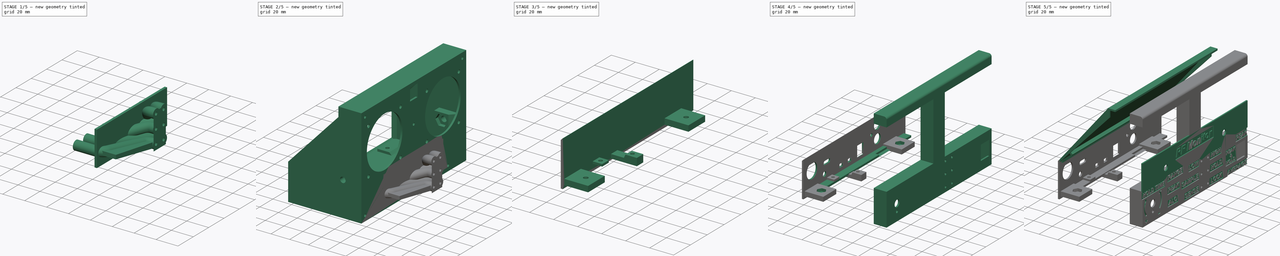
[diagram: build sequence overview — one tinted view per stage of 5, left to right]
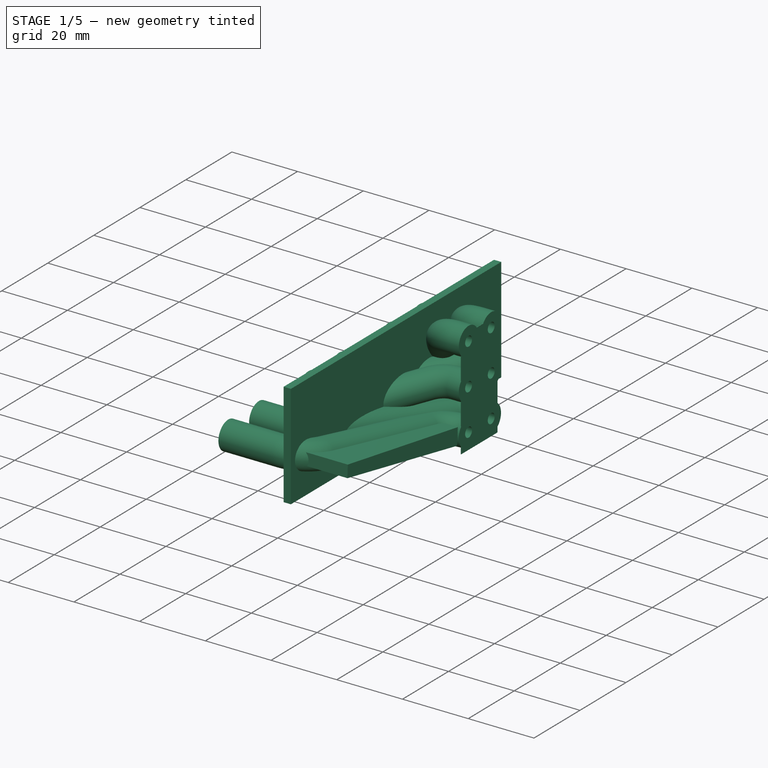
[diagram: stage 1 of 5 — iso view after this stage's code; geometry added in this stage tinted green]
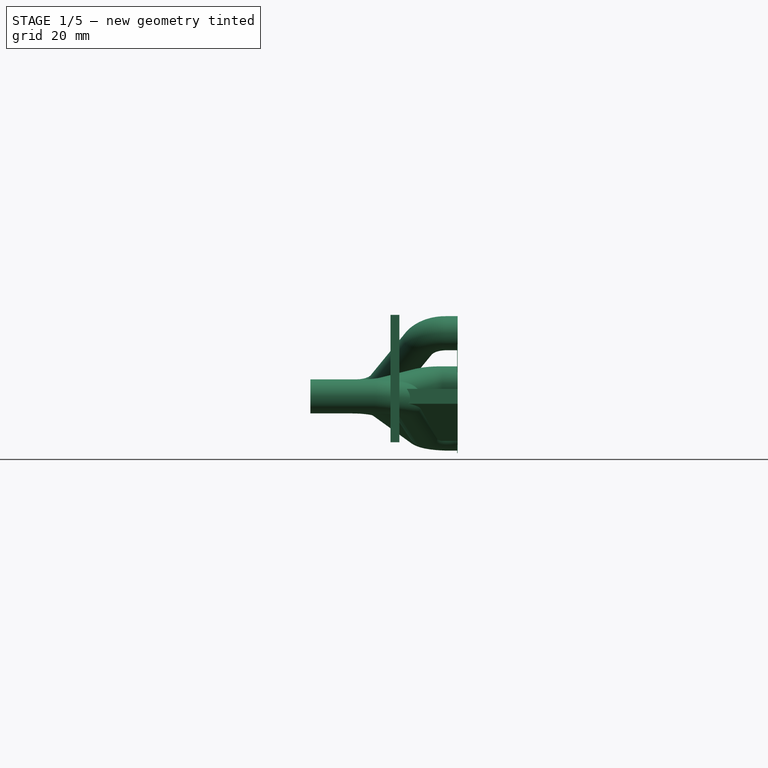
[diagram: stage 1 of 5 — front view after this stage's code; geometry added in this stage tinted green]
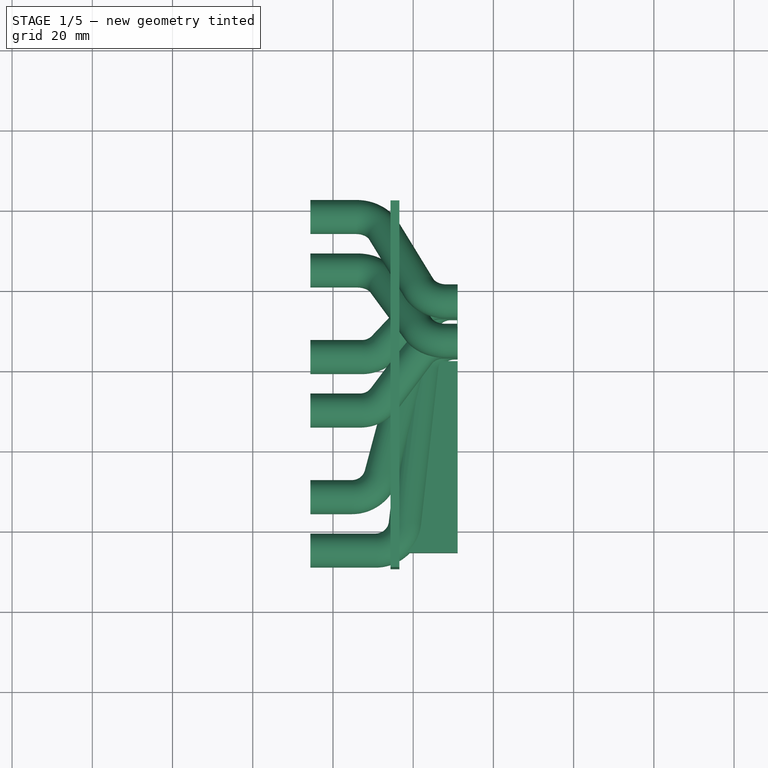
[diagram: stage 1 of 5 — top view after this stage's code; geometry added in this stage tinted green]
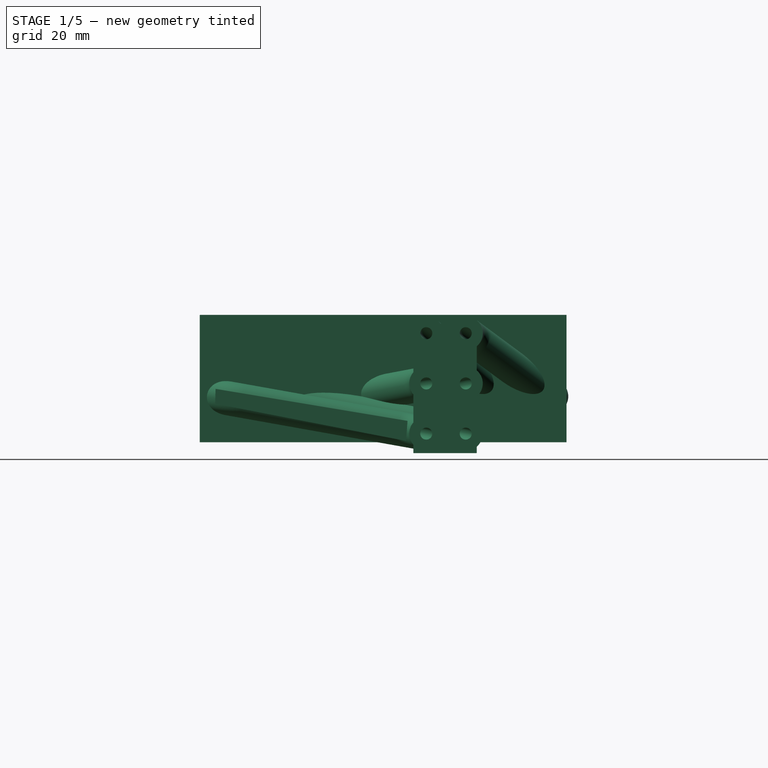
[diagram: stage 1 of 5 — right view after this stage's code; geometry added in this stage tinted green]
FCSTD DOCUMENT  (FreeCAD 1.0R39109 (Git))
Label: console
License: All rights reserved
LicenseURL: https://en.wikipedia.org/wiki/All_rights_reserved
objects: Sketcher::SketchObject×93, PartDesign::Plane×51, PartDesign::Pad×36, PartDesign::Pocket×32, Part::Part2DObjectPython×25, PartDesign::SubShapeBinder×21, PartDesign::Body×9, App::Part×6, PartDesign::AdditivePipe×6, PartDesign::SubtractivePipe×6, App::Link×3, Spreadsheet::Sheet×2, PartDesign::FeatureBase×2, Part::MultiFuse×2, PartDesign::Fillet×1, Part::Feature×1, PartDesign::ShapeBinder×1, Part::Cut×1, Part::MultiCommon×1, Measure::MeasureAngle×1, +1 more types
note: 545 computed .brp shape members not serialized (recipe doc carries the construction recipe); baked Part::Feature solids carry a one-line shape summary decoded from their .brp
EXTERNAL_REF file=console-placement.FCStd obj=Assembly
EXTERNAL_REF file=console-placement.FCStd obj=Part

FEATURE [PartDesign::Body] Body003
  AllowCompound = false
  Group = -> [Binder010,Binder011,DatumPlane018,DatumPlane019,Sketch048,Pad018,DatumPlane020,Sketch049,Sketch106,Pad032,Sketch107,Pad033,Sketch110,Pad019,Binder015,Sketch101,Pocket038,Pad036]
  Origin = -> Origin007
  Tip = -> Pad036
FEATURE [App::Part] Part003  label="lid"
  Group = -> [Body003]
  Origin = -> Origin006
FEATURE [App::Link] Link003  label="Assembly001"
  LinkedObject = -> <external console-placement.FCStd>#Assembly
FEATURE [PartDesign::SubShapeBinder] Binder016
  BindCopyOnChange = 0
  BindMode = 0
  ClaimChildren = false
  Context = -> Part004 [Body004.Binder016.]
  Fuse = false
  MakeFace = true
  OffsetFill = false
  OffsetIntersection = false
  OffsetJoinType = 0
  OffsetOpenResult = false
  PartialLoad = false
  Refine = true
  Relative = true
  Support = -> [Link003[PCB_Assembly.WP154A4SUREQBFZGC.,PCB_Assembly.WP154A4SUREQBFZGC001.,PCB_Assembly.WP154A4SUREQBFZGC002.,PCB_Assembly.WP154A4SUREQBFZGC003.,PCB_Assembly.WP154A4SUREQBFZGC004.,PCB_Assembly.WP154A4SUREQBFZGC005.]]
  _Version = 2
FEATURE [PartDesign::Plane] DatumPlane044  label="LED tips"
  AttachmentSupport = -> [Binder016]
  Length = 143.545
  MapMode = 5
  Placement = pos=(62.956,0,0) rot=(0.57735,0.57735,0.57735;2.0944rad)
  ResizeMode = 0
  Width = 66.0169
FEATURE [Sketcher::SketchObject] Sketch111  label="LED tip sketch"
  ArcFitTolerance = 1e-06
  AttachmentSupport = -> [DatumPlane044]
  ExternalGeometry = -> [Binder016]
  FullyConstrained = true
  MakeInternals = false
  MapMode = 5
  Placement = pos=(62.956,0,0) rot=(0.57735,0.57735,0.57735;2.0944rad)
  sketch-geometry (12):
    g0: Circle CenterX=15.113 CenterY=4.572 CenterZ=0 NormalX=0 NormalY=0 NormalZ=1 AngleXU=0 Radius=0.8
    g1: Circle CenterX=28.448 CenterY=4.572 CenterZ=0 NormalX=0 NormalY=0 NormalZ=1 AngleXU=0 Radius=0.8
    g2: Circle CenterX=50.038 CenterY=4.572 CenterZ=0 NormalX=0 NormalY=0 NormalZ=1 AngleXU=0 Radius=0.8
    g3: Circle CenterX=63.373 CenterY=4.572 CenterZ=0 NormalX=0 NormalY=0 NormalZ=1 AngleXU=0 Radius=0.8
    g4: Circle CenterX=84.963 CenterY=4.572 CenterZ=0 NormalX=0 NormalY=0 NormalZ=1 AngleXU=0 Radius=0.8
    g5: LineSegment StartX=84.963 StartY=4.572 StartZ=0 EndX=84.963 EndY=5.372 EndZ=0
    g6: LineSegment StartX=63.373 StartY=4.572 StartZ=0 EndX=63.373 EndY=5.372 EndZ=0
    g7: LineSegment StartX=50.038 StartY=4.572 StartZ=0 EndX=50.038 EndY=5.372 EndZ=0
    g8: LineSegment StartX=28.448 StartY=4.572 StartZ=0 EndX=28.448 EndY=5.372 EndZ=0
    g9: LineSegment StartX=15.113 StartY=4.572 StartZ=0 EndX=15.113 EndY=5.372 EndZ=0
    g10: Circle CenterX=98.298 CenterY=4.572 CenterZ=0 NormalX=0 NormalY=0 NormalZ=1 AngleXU=0 Radius=0.8
    g11: LineSegment StartX=98.298 StartY=4.572 StartZ=0 EndX=98.298 EndY=5.372 EndZ=0
  constraints (24):
    c: Coincident(g0,g-7)
    c: PointOnObject(g-7,g0)
    c: Coincident(g1,g-6)
    c: PointOnObject(g-6,g1)
    c: Coincident(g2,g-5)
    c: PointOnObject(g-5,g2)
    c: Coincident(g3,g-4)
    c: PointOnObject(g-4,g3)
    c: Coincident(g4,g-3)
    c: PointOnObject(g-3,g4)
    c: Coincident(g5,g4)
    c: Coincident(g5,g-3)
    c: Coincident(g6,g3)
    c: Coincident(g6,g-4)
    c: Coincident(g7,g2)
    c: Coincident(g7,g-5)
    c: Coincident(g8,g1)
    c: Coincident(g8,g-6)
    c: Coincident(g9,g0)
    c: Coincident(g9,g-7)
    c: Coincident(g10,g-8)
    c: PointOnObject(g-8,g10)
    c: Coincident(g11,g10)
    c: Coincident(g11,g-8)
FEATURE [PartDesign::Plane] DatumPlane045  label="inside sub break plane"
  AttachmentOffset = pos=(0,0,7.62) rot=(0,0,1;0rad)
  AttachmentSupport = -> [DatumPlane044]
  Length = 143.545
  MapMode = 2
  Placement = pos=(70.576,0,0) rot=(0.57735,0.57735,0.57735;2.0944rad)
  ResizeMode = 0
  Width = 66.0169
FEATURE [Sketcher::SketchObject] Sketch112
  ArcFitTolerance = 1e-06
  AttachmentSupport = -> [DatumPlane045]
  ExternalGeometry = -> [Sketch111]
  FullyConstrained = true
  MakeInternals = false
  MapMode = 5
  Placement = pos=(70.576,0,0) rot=(0.57735,0.57735,0.57735;2.0944rad)
  sketch-geometry (6):
    g0: LineSegment StartX=15.113 StartY=4.572 StartZ=0 EndX=15.113 EndY=5.372 EndZ=0
    g1: LineSegment StartX=28.448 StartY=4.572 StartZ=0 EndX=28.448 EndY=5.372 EndZ=0
    g2: LineSegment StartX=50.038 StartY=4.572 StartZ=0 EndX=50.038 EndY=5.372 EndZ=0
    g3: LineSegment StartX=63.373 StartY=4.572 StartZ=0 EndX=63.373 EndY=5.372 EndZ=0
    g4: LineSegment StartX=84.963 StartY=4.572 StartZ=0 EndX=84.963 EndY=5.372 EndZ=0
    g5: LineSegment StartX=98.298 StartY=4.572 StartZ=0 EndX=98.298 EndY=5.372 EndZ=0
  constraints (12):
    c: Coincident(g0,g-7)
    c: Coincident(g0,g-7)
    c: Coincident(g1,g-6)
    c: Coincident(g1,g-6)
    c: Coincident(g2,g-5)
    c: Coincident(g2,g-5)
    c: Coincident(g3,g-4)
    c: Coincident(g3,g-4)
    c: Coincident(g4,g-3)
    c: Coincident(g4,g-3)
    c: Coincident(g-8,g5)
    c: Coincident(g-8,g5)
FEATURE [PartDesign::Plane] DatumPlane046  label="LED initial pipe path"
  AttachmentSupport = -> [Sketch112,Sketch111]
  Length = 140.449
  MapMode = 13
  Placement = pos=(68.036,93.853,4.572) rot=(0,0,1;0rad)
  ResizeMode = 0
  Width = 151.907
FEATURE [Sketcher::SketchObject] Sketch003
  ArcFitTolerance = 1e-06
  AttachmentSupport = -> [DatumPlane046]
  ExternalGeometry = -> [Binder016,Sketch112]
  FullyConstrained = true
  MakeInternals = false
  MapMode = 5
  Placement = pos=(68.036,93.853,4.572) rot=(0,0,1;0rad)
  sketch-geometry (6):
    g0: LineSegment StartX=-5.08 StartY=4.445 StartZ=0 EndX=2.54 EndY=4.445 EndZ=0
    g1: LineSegment StartX=2.54 StartY=-8.89 StartZ=0 EndX=-5.08 EndY=-8.89 EndZ=0
    g2: LineSegment StartX=-5.08 StartY=-78.74 StartZ=0 EndX=2.54 EndY=-78.74 EndZ=0
    g3: LineSegment StartX=2.54 StartY=-65.405 StartZ=0 EndX=-5.08 EndY=-65.405 EndZ=0
    g4: LineSegment StartX=-5.08 StartY=-43.815 StartZ=0 EndX=2.54 EndY=-43.815 EndZ=0
    g5: LineSegment StartX=2.54 StartY=-30.48 StartZ=0 EndX=-5.08 EndY=-30.48 EndZ=0
  constraints (12):
    c: Coincident(g0,g-3)
    c: Coincident(g1,g-5)
    c: Coincident(g1,g-6)
    c: Coincident(g2,g-13)
    c: Coincident(g2,g-14)
    c: Coincident(g3,g-12)
    c: Coincident(g3,g-11)
    c: Coincident(g4,g-9)
    c: Coincident(g4,g-10)
    c: Coincident(g5,g-7)
    c: Coincident(g5,g-8)
    c: Coincident(g0,g-15)
FEATURE [PartDesign::SubShapeBinder] Binder002
  BindCopyOnChange = 0
  BindMode = 0
  ClaimChildren = false
  Context = -> Part004 [Body004.Binder002.]
  Fuse = false
  MakeFace = true
  OffsetFill = false
  OffsetIntersection = false
  OffsetJoinType = 0
  OffsetOpenResult = false
  PartialLoad = false
  Refine = true
  Relative = true
  Support = -> [Link003[PCB_Assembly.pcb_imported.]]
  _Version = 2
FEATURE [PartDesign::SubShapeBinder] Binder017
  BindCopyOnChange = 0
  BindMode = 0
  ClaimChildren = false
  Context = -> Part004 [Body004.Binder017.]
  Fuse = false
  MakeFace = true
  OffsetFill = false
  OffsetIntersection = false
  OffsetJoinType = 0
  OffsetOpenResult = false
  PartialLoad = false
  Refine = true
  Relative = true
  Support = -> [Link003[meter.,meter001.]]
  _Version = 2
FEATURE [PartDesign::SubShapeBinder] Binder018
  BindCopyOnChange = 0
  BindMode = 0
  ClaimChildren = false
  Context = -> Part004 [Body004.Binder018.]
  Fuse = false
  MakeFace = true
  OffsetFill = false
  OffsetIntersection = false
  OffsetJoinType = 0
  OffsetOpenResult = false
  PartialLoad = false
  Refine = true
  Relative = true
  Support = -> [Link003[_M_pot.]]
  _Version = 2
FEATURE [PartDesign::Plane] DatumPlane047  label="forward of front panel"
  AttachmentOffset = pos=(0,0,2.54) rot=(0,0,1;4.71239rad)
  AttachmentSupport = -> [Binder018]
  Length = 143.545
  MapMode = 11
  Placement = pos=(91.0899,-6.858,7.62) rot=(-0.57735,-0.57735,-0.57735;4.18879rad)
  ResizeMode = 0
  Width = 66.0169
FEATURE [Sketcher::SketchObject] Sketch113  label="FP LED positions"
  ArcFitTolerance = 1e-06
  AttachmentSupport = -> [DatumPlane047]
  ExternalGeometry = -> [Binder016,Binder002,Binder017]
  FullyConstrained = true
  MakeInternals = false
  MapMode = 5
  Placement = pos=(91.0899,-6.858,7.62) rot=(0.57735,0.57735,0.57735;2.0944rad)
  sketch-geometry (15):
    g0: Circle CenterX=74.008 CenterY=12.7 CenterZ=0 NormalX=0 NormalY=0 NormalZ=1 AngleXU=0 Radius=1
    g1: Circle CenterX=83.8403 CenterY=12.7 CenterZ=0 NormalX=0 NormalY=0 NormalZ=1 AngleXU=0 Radius=1
    g2: Circle CenterX=74.008 CenterY=0.18542 CenterZ=0 NormalX=0 NormalY=0 NormalZ=1 AngleXU=0 Radius=1
    g3: Circle CenterX=83.8403 CenterY=0.18542 CenterZ=0 NormalX=0 NormalY=0 NormalZ=1 AngleXU=0 Radius=1
    g4: Circle CenterX=74.008 CenterY=-12.3292 CenterZ=0 NormalX=0 NormalY=0 NormalZ=1 AngleXU=0 Radius=1
    g5: Circle CenterX=83.8403 CenterY=-12.3292 CenterZ=0 NormalX=0 NormalY=0 NormalZ=1 AngleXU=0 Radius=1
    g6: LineSegment [constr] StartX=74.008 StartY=12.7 StartZ=0 EndX=74.008 EndY=0.18542 EndZ=0
    g7: LineSegment [constr] StartX=74.008 StartY=0.18542 StartZ=0 EndX=74.008 EndY=-12.3292 EndZ=0
    g8: LineSegment StartX=83.8403 StartY=13.7 StartZ=0 EndX=83.8403 EndY=11.7 EndZ=0
    g9: LineSegment StartX=84.8403 StartY=12.7 StartZ=0 EndX=83.8403 EndY=12.7 EndZ=0
    g10: LineSegment StartX=74.008 StartY=12.7 StartZ=0 EndX=75.008 EndY=12.7 EndZ=0
    g11: LineSegment StartX=74.008 StartY=0.18542 StartZ=0 EndX=75.008 EndY=0.18542 EndZ=0
    g12: LineSegment StartX=83.8403 StartY=0.18542 StartZ=0 EndX=84.8403 EndY=0.18542 EndZ=0
    g13: LineSegment StartX=83.8403 StartY=-12.3292 StartZ=0 EndX=84.8403 EndY=-12.3292 EndZ=0
    g14: LineSegment StartX=74.008 StartY=-12.3292 StartZ=0 EndX=75.008 EndY=-12.3292 EndZ=0
  constraints (44):
    c: Equal(g0,g1)
    c: Equal(g0,g3)
    c: Equal(g0,g2)
    c: Equal(g0,g4)
    c: Equal(g0,g5)
    c: Diameter(g0) = 2
    c: Horizontal(g0,g1)
    c: Horizontal(g2,g3)
    c: Horizontal(g4,g5)
    c: Vertical(g1,g3)
    c: Vertical(g3,g5)
    c: DistanceX(g0,g1) = 9.83234
    c: Coincident(g6,g0)
    c: Coincident(g6,g2)
    c: Coincident(g7,g2)
    c: Coincident(g7,g4)
    c: Vertical(g6)
    c: Vertical(g7)
    c: Equal(g6,g7)
    c: DistanceY(g2,g0) = 12.5146
    c: DistanceX(g0,g-9) = 34.45
    c: DistanceY(g-9,g0) = 20.32
    c: PointOnObject(g8,g1)
    c: PointOnObject(g8,g1)
    c: PointOnObject(g9,g1)
    c: Horizontal(g9)
    c: Perpendicular(g1,g9)
    c: Perpendicular(g1,g8)
    c: Perpendicular(g9,g8) = 1.5708
    c: Coincident(g10,g0)
    c: PointOnObject(g10,g0)
    c: Horizontal(g10)
    c: Coincident(g11,g2)
    c: PointOnObject(g11,g2)
    c: Horizontal(g11)
    c: Coincident(g12,g3)
    c: PointOnObject(g12,g3)
    c: Coincident(g13,g5)
    c: PointOnObject(g13,g5)
    c: Horizontal(g13)
    c: Coincident(g14,g4)
    c: PointOnObject(g14,g4)
    c: Horizontal(g14)
    c: Horizontal(g12)
FEATURE [PartDesign::Plane] DatumPlane048  label="inside FP break plane"
  AttachmentOffset = pos=(0,0,-7.62) rot=(0,0,1;0rad)
  AttachmentSupport = -> [DatumPlane047]
  Length = 143.545
  MapMode = 2
  Placement = pos=(83.4699,-6.858,7.62) rot=(0.57735,0.57735,0.57735;2.0944rad)
  ResizeMode = 0
  Width = 66.0169
FEATURE [Sketcher::SketchObject] Sketch114
  ArcFitTolerance = 1e-06
  AttachmentSupport = -> [DatumPlane048]
  ExternalGeometry = -> [Sketch113]
  FullyConstrained = true
  MakeInternals = false
  MapMode = 5
  Placement = pos=(83.4699,-6.858,7.62) rot=(0.57735,0.57735,0.57735;2.0944rad)
  sketch-geometry (6):
    g0: LineSegment StartX=84.8403 StartY=-12.3292 StartZ=0 EndX=83.8403 EndY=-12.3292 EndZ=0
    g1: LineSegment StartX=75.008 StartY=-12.3292 StartZ=0 EndX=74.008 EndY=-12.3292 EndZ=0
    g2: LineSegment StartX=84.8403 StartY=0.18542 StartZ=0 EndX=83.8403 EndY=0.18542 EndZ=0
    g3: LineSegment StartX=75.008 StartY=0.18542 StartZ=0 EndX=74.008 EndY=0.18542 EndZ=0
    g4: LineSegment StartX=75.008 StartY=12.7 StartZ=0 EndX=74.008 EndY=12.7 EndZ=0
    g5: LineSegment StartX=83.8403 StartY=12.7 StartZ=0 EndX=84.8403 EndY=12.7 EndZ=0
  constraints (12):
    c: Coincident(g0,g-9)
    c: Coincident(g0,g-9)
    c: Coincident(g1,g-8)
    c: Coincident(g1,g-8)
    c: Coincident(g2,g-7)
    c: Coincident(g2,g-7)
    c: Coincident(g3,g-6)
    c: Coincident(g3,g-6)
    c: Coincident(g4,g-5)
    c: Coincident(g4,g-5)
    c: Symmetric(g-4,g-4,g5)
    c: Coincident(g5,g-3)
FEATURE [Spreadsheet::Sheet] Spreadsheet001
  Base_PipID = 3
  Base_PipeOD = 8.49884
  Base_PipeTurnRadius = 7.62
FEATURE [PartDesign::Plane] DatumPlane049  label="pipe 1 plane"
  AttachmentSupport = -> [Sketch003,Sketch113]
  Length = 140.9
  MapMode = 13
  Placement = pos=(74.874,91.1928,9.82133) rot=(1,0,0;2.5053rad)
  ResizeMode = 0
  Width = 157.127
FEATURE [Sketcher::SketchObject] Sketch115
  ArcFitTolerance = 1e-06
  AttachmentSupport = -> [DatumPlane049]
  ExternalGeometry = -> [Sketch113,Sketch003,Sketch114]
  FullyConstrained = true
  MakeInternals = false
  MapMode = 5
  Placement = pos=(74.874,91.1928,9.82133) rot=(1,0,0;2.5053rad)
  expr: Constraints[15] = <<Spreadsheet001>>.Base_PipeTurnRadius
  sketch-geometry (8):
    g0: LineSegment [constr] StartX=8.59592 StartY=17.668 StartZ=0 EndX=16.2159 EndY=17.668 EndZ=0
    g1: LineSegment StartX=-11.918 StartY=-8.83401 StartZ=0 EndX=-9.06464 EndY=-8.83401 EndZ=0
    g2: LineSegment StartX=-2.21257 StartY=-4.54771 StartZ=0 EndX=6.51053 EndY=13.3817 EndZ=0
    g3: LineSegment StartX=13.3626 StartY=17.668 StartZ=0 EndX=16.2159 EndY=17.668 EndZ=0
    g4: ArcOfCircle CenterX=13.3626 CenterY=10.048 CenterZ=0 NormalX=0 NormalY=0 NormalZ=1 AngleXU=0 Radius=7.62 StartAngle=1.5708 EndAngle=2.68878
    g5: GeomPoint [constr] X=8.59592 Y=17.668 Z=0
    g6: ArcOfCircle CenterX=-9.06464 CenterY=-1.21401 CenterZ=0 NormalX=0 NormalY=0 NormalZ=1 AngleXU=0 Radius=7.62 StartAngle=4.71239 EndAngle=5.83038
    g7: GeomPoint [constr] X=-4.29796 Y=-8.83401 Z=0
  constraints (16):
    c: Coincident(g0,g-7)
    c: Coincident(g0,g-5) = -1.5708
    c: Coincident(g1,g-6)
    c: Coincident(g7,g-6)
    c: Coincident(g5,g0)
    c: Coincident(g3,g0)
    c: PointOnObject(g5,g3)
    c: PointOnObject(g5,g2)
    c: Tangent(g3,g4) = 1.5708
    c: Tangent(g2,g4) = 1.5708
    c: PointOnObject(g7,g2)
    c: PointOnObject(g7,g1)
    c: Tangent(g2,g6) = -1.5708
    c: Tangent(g1,g6) = -1.5708
    c: Equal(g6,g4)
    c: Radius(g4) = 7.62
FEATURE [Sketcher::SketchObject] Sketch011
  ArcFitTolerance = 1e-06
  AttachmentSupport = -> [DatumPlane047]
  ExternalGeometry = -> [Sketch113]
  FullyConstrained = true
  MakeInternals = false
  MapMode = 5
  Placement = pos=(91.0899,-6.858,7.62) rot=(0.57735,0.57735,0.57735;2.0944rad)
  expr: Constraints[1] = <<Spreadsheet001>>.Base_PipID
  sketch-geometry (1):
    g0: Circle CenterX=83.8403 CenterY=12.7 CenterZ=0 NormalX=0 NormalY=0 NormalZ=1 AngleXU=0 Radius=1.5
  constraints (2):
    c: Coincident(g0,g-3)
    c: Diameter(g0) = 3
FEATURE [Sketcher::SketchObject] Sketch010
  ArcFitTolerance = 1e-06
  AttachmentSupport = -> [DatumPlane047]
  FullyConstrained = false
  MakeInternals = false
  MapMode = 5
  Placement = pos=(91.0899,-6.858,7.62) rot=(0.57735,0.57735,0.57735;2.0944rad)
  sketch-geometry (4):
    g0: LineSegment StartX=86.577 StartY=15.1029 StartZ=0 EndX=70.7785 EndY=15.1029 EndZ=0
    g1: LineSegment StartX=70.7785 StartY=15.1029 StartZ=0 EndX=70.7785 EndY=-17.1878 EndZ=0
    g2: LineSegment StartX=70.7785 StartY=-17.1878 StartZ=0 EndX=86.577 EndY=-17.1878 EndZ=0
    g3: LineSegment StartX=86.577 StartY=-17.1878 StartZ=0 EndX=86.577 EndY=15.1029 EndZ=0
  constraints (8):
    c: Coincident(g0,g1)
    c: Coincident(g1,g2)
    c: Coincident(g2,g3)
    c: Coincident(g3,g0)
    c: Horizontal(g0)
    c: Horizontal(g2)
    c: Vertical(g1)
    c: Vertical(g3)
FEATURE [Sketcher::SketchObject] Sketch006
  ArcFitTolerance = 1e-06
  AttachmentSupport = -> [DatumPlane047]
  ExternalGeometry = -> [Sketch113]
  FullyConstrained = true
  MakeInternals = false
  MapMode = 5
  Placement = pos=(91.0899,-6.858,7.62) rot=(0.57735,0.57735,0.57735;2.0944rad)
  expr: Constraints[1] = <<Spreadsheet001>>.Base_PipeOD
  sketch-geometry (1):
    g0: Circle CenterX=83.8403 CenterY=12.7 CenterZ=0 NormalX=0 NormalY=0 NormalZ=1 AngleXU=0 Radius=4.24942
  constraints (2):
    c: Coincident(g0,g-3)
    c: Diameter(g0) = 8.49884
FEATURE [PartDesign::Pad] Pad037
  Direction = (1,0,0)
  Length = 0.127
  Length2 = 10
  Placement = pos=(91.0899,-6.858,7.62) rot=(-0.57735,-0.57735,-0.57735;4.18879rad)
  Profile = -> Sketch010
  ReferenceAxis = -> Sketch010 [N_Axis]
  Refine = true
  Reversed = true
  Suppressed = false
  Type = 0
FEATURE [PartDesign::AdditivePipe] AdditivePipe
  AuxilleryCurvelinear = true
  AuxillerySpineTangent = false
  BaseFeature = -> Pad037
  Binormal = (0,0,0)
  Mode = 0
  Placement = pos=(91.0899,-6.858,7.62) rot=(-0.57735,-0.57735,-0.57735;4.18879rad)
  Profile = -> Sketch006
  Refine = true
  Spine = -> Sketch115
  SpineTangent = false
  Suppressed = false
  Transformation = 0
  Transition = 0
FEATURE [PartDesign::Plane] DatumPlane050  label="pipe 2 plane"
  AttachmentSupport = -> [Sketch003,Sketch113]
  Length = 140.559
  MapMode = 13
  Placement = pos=(74.874,79.0253,9.82133) rot=(0,0.35412,0.9352;3.14159rad)
  ResizeMode = 0
  Width = 153.165
FEATURE [Sketcher::SketchObject] Sketch008
  ArcFitTolerance = 1e-06
  AttachmentSupport = -> [DatumPlane050]
  ExternalGeometry = -> [Sketch003,Sketch114,Sketch113]
  FullyConstrained = true
  MakeInternals = false
  MapMode = 5
  Placement = pos=(74.874,79.0253,9.82133) rot=(0,0.35412,0.9352;3.14159rad)
  expr: Constraints[13] = <<Spreadsheet001>>.Base_PipeTurnRadius
  sketch-geometry (7):
    g0: LineSegment StartX=-16.2159 StartY=15.8507 StartZ=0 EndX=-13.1319 EndY=15.8507 EndZ=0
    g1: LineSegment StartX=-6.43352 StartY=11.8633 StartZ=0 EndX=2.13556 EndY=-3.93795 EndZ=0
    g2: LineSegment StartX=8.83398 StartY=-7.92537 StartZ=0 EndX=11.918 EndY=-7.92537 EndZ=0
    g3: ArcOfCircle CenterX=-13.1319 CenterY=8.23074 CenterZ=0 NormalX=0 NormalY=0 NormalZ=1 AngleXU=0 Radius=7.62 StartAngle=0.496915 EndAngle=1.5708
    g4: GeomPoint [constr] X=-8.59592 Y=15.8507 Z=0
    g5: ArcOfCircle CenterX=8.83398 CenterY=-0.305368 CenterZ=0 NormalX=0 NormalY=0 NormalZ=1 AngleXU=0 Radius=7.62 StartAngle=3.63851 EndAngle=4.71239
    g6: GeomPoint [constr] X=4.29796 Y=-7.92537 Z=0
  constraints (14):
    c: Coincident(g0,g-5)
    c: Coincident(g4,g-4)
    c: Coincident(g6,g-3)
    c: Coincident(g2,g-3)
    c: PointOnObject(g4,g0)
    c: PointOnObject(g4,g1)
    c: Tangent(g0,g3) = 1.5708
    c: Tangent(g1,g3) = 1.5708
    c: PointOnObject(g6,g1)
    c: PointOnObject(g6,g2)
    c: Tangent(g1,g5) = -1.5708
    c: Tangent(g2,g5) = -1.5708
    c: Equal(g5,g3)
    c: Radius(g3) = 7.62
FEATURE [Sketcher::SketchObject] Sketch116
  ArcFitTolerance = 1e-06
  AttachmentSupport = -> [DatumPlane047]
  ExternalGeometry = -> [Sketch113,Sketch006]
  FullyConstrained = true
  MakeInternals = false
  MapMode = 5
  Placement = pos=(91.0899,-6.858,7.62) rot=(0.57735,0.57735,0.57735;2.0944rad)
  sketch-geometry (1):
    g0: Circle CenterX=74.008 CenterY=12.7 CenterZ=0 NormalX=0 NormalY=0 NormalZ=1 AngleXU=0 Radius=4.24942
  constraints (2):
    c: Coincident(g0,g-3)
    c: Equal(g0,g-4)
FEATURE [PartDesign::AdditivePipe] AdditivePipe001  label="AdditivePipe2"
  AuxilleryCurvelinear = true
  AuxillerySpineTangent = false
  BaseFeature = -> AdditivePipe
  Binormal = (0,0,0)
  Mode = 0
  Placement = pos=(91.0899,-6.858,7.62) rot=(-0.57735,-0.57735,-0.57735;4.18879rad)
  Profile = -> Sketch116
  Refine = true
  Spine = -> Sketch008
  SpineTangent = false
  Suppressed = false
  Transformation = 0
  Transition = 0
FEATURE [PartDesign::ShapeBinder] ReferencePocket019
  Support = -> [Pocket019]
  TraceSupport = false
FEATURE [PartDesign::Plane] DatumPlane051
  AttachmentSupport = -> [ReferencePocket019]
  Length = 143.545
  MapMode = 5
  Placement = pos=(76.55,0,0) rot=(0.57735,0.57735,0.57735;2.0944rad)
  ResizeMode = 0
  Width = 66.0169
FEATURE [Sketcher::SketchObject] Sketch117
  ArcFitTolerance = 1e-06
  AttachmentSupport = -> [DatumPlane051]
  FullyConstrained = false
  MakeInternals = false
  MapMode = 5
  Placement = pos=(76.55,0,0) rot=(0.57735,0.57735,0.57735;2.0944rad)
  sketch-geometry (4):
    g0: LineSegment StartX=-92.3243 StartY=148.614 StartZ=0 EndX=-92.3243 EndY=-55.6635 EndZ=0
    g1: LineSegment StartX=-92.3243 StartY=-55.6635 StartZ=0 EndX=191.258 EndY=-55.6635 EndZ=0
    g2: LineSegment StartX=191.258 StartY=-55.6635 StartZ=0 EndX=191.258 EndY=148.614 EndZ=0
    g3: LineSegment StartX=191.258 StartY=148.614 StartZ=0 EndX=-92.3243 EndY=148.614 EndZ=0
  constraints (8):
    c: Coincident(g0,g1)
    c: Coincident(g1,g2)
    c: Coincident(g2,g3)
    c: Coincident(g3,g0)
    c: Vertical(g0)
    c: Vertical(g2)
    c: Horizontal(g1)
    c: Horizontal(g3)
FEATURE [Sketcher::SketchObject] Sketch120
  ArcFitTolerance = 1e-06
  AttachmentSupport = -> [DatumPlane047]
  ExternalGeometry = -> [Sketch113,AdditivePipe001]
  FullyConstrained = true
  MakeInternals = false
  MapMode = 5
  Placement = pos=(91.0899,-6.858,7.62) rot=(0.57735,0.57735,0.57735;2.0944rad)
  expr: Constraints[1] = <<Spreadsheet001>>.Base_PipID
  sketch-geometry (1):
    g0: Circle CenterX=74.008 CenterY=12.7 CenterZ=0 NormalX=0 NormalY=0 NormalZ=1 AngleXU=0 Radius=1.5
  constraints (2):
    c: Coincident(g0,g-5)
    c: Diameter(g0) = 3
FEATURE [PartDesign::Plane] DatumPlane054  label="pipe 3 plane"
  AttachmentSupport = -> [Sketch003,Sketch113]
  Length = 141.211
  MapMode = 13
  Placement = pos=(74.874,67.9094,5.64981) rot=(0,0.993206,0.116368;3.14159rad)
  ResizeMode = 0
  Width = 160.781
FEATURE [PartDesign::Plane] DatumPlane055  label="pipe 4 plane"
  AttachmentSupport = -> [Sketch003,Sketch113]
  Length = 141.115
  MapMode = 13
  Placement = pos=(74.874,55.742,5.64981) rot=(1,0,0;0.186755rad)
  ResizeMode = 0
  Width = 159.645
FEATURE [PartDesign::Plane] DatumPlane056  label="pipe 5 plane"
  AttachmentSupport = -> [Sketch003,Sketch113]
  Length = 141.12
  MapMode = 13
  Placement = pos=(74.874,44.6261,1.47828) rot=(1,0,0;2.95264rad)
  ResizeMode = 0
  Width = 159.706
FEATURE [PartDesign::Plane] DatumPlane057  label="pipe 6 plane"
  AttachmentSupport = -> [Sketch003,Sketch113]
  Length = 141.09
  MapMode = 13
  Placement = pos=(74.874,32.4587,1.47828) rot=(0,0.088136,0.996108;3.14159rad)
  ResizeMode = 0
  Width = 159.352
FEATURE [Sketcher::SketchObject] Sketch121  label="pipe 3 path"
  ArcFitTolerance = 1e-06
  AttachmentSupport = -> [DatumPlane054]
  ExternalGeometry = -> [Sketch003,Sketch113,Sketch114]
  FullyConstrained = true
  MakeInternals = false
  MapMode = 5
  Placement = pos=(74.874,67.9094,5.64981) rot=(0,0.993206,0.116368;3.14159rad)
  expr: Constraints[13] = <<Spreadsheet001>>.Base_PipeTurnRadius
  sketch-geometry (7):
    g0: LineSegment StartX=2.03459 StartY=-2.20726 StartZ=0 EndX=-6.33255 EndY=6.86998 EndZ=0
    g1: LineSegment StartX=-16.2159 StartY=9.32544 StartZ=0 EndX=-11.9354 EndY=9.32544 EndZ=0
    g2: LineSegment StartX=11.918 StartY=-4.66272 StartZ=0 EndX=7.63744 EndY=-4.66272 EndZ=0
    g3: ArcOfCircle CenterX=-11.9354 CenterY=1.70544 CenterZ=0 NormalX=0 NormalY=0 NormalZ=1 AngleXU=0 Radius=7.62 StartAngle=0.744714 EndAngle=1.5708
    g4: GeomPoint [constr] X=-8.59592 Y=9.32544 Z=0
    g5: ArcOfCircle CenterX=7.63744 CenterY=2.95728 CenterZ=0 NormalX=0 NormalY=0 NormalZ=1 AngleXU=0 Radius=7.62 StartAngle=3.88631 EndAngle=4.71239
    g6: GeomPoint [constr] X=4.29796 Y=-4.66272 Z=0
  constraints (14):
    c: Coincident(g1,g-4)
    c: Coincident(g4,g-5)
    c: Coincident(g6,g-3)
    c: Coincident(g2,g-3)
    c: PointOnObject(g4,g1)
    c: PointOnObject(g4,g0)
    c: Tangent(g1,g3) = 1.5708
    c: Tangent(g0,g3) = -1.5708
    c: PointOnObject(g6,g2)
    c: PointOnObject(g6,g0)
    c: Tangent(g2,g5) = 1.5708
    c: Tangent(g0,g5) = 1.5708
    c: Equal(g3,g5)
    c: Radius(g5) = 7.62
FEATURE [Sketcher::SketchObject] Sketch122  label="pipe 4 path"
  ArcFitTolerance = 1e-06
  AttachmentSupport = -> [DatumPlane055]
  ExternalGeometry = -> [Sketch003,Sketch113,Sketch114]
  FullyConstrained = true
  MakeInternals = false
  MapMode = 5
  Placement = pos=(74.874,55.742,5.64981) rot=(1,0,0;0.186755rad)
  expr: Constraints[15] = <<Spreadsheet001>>.Base_PipeTurnRadius
  sketch-geometry (9):
    g0: LineSegment StartX=-11.918 StartY=-5.80493 StartZ=0 EndX=-8.13741 EndY=-5.80493 EndZ=0
    g1: LineSegment StartX=16.2159 StartY=11.6099 StartZ=0 EndX=12.4354 EndY=11.6099 EndZ=0
    g2: LineSegment StartX=6.31126 StartY=8.52414 StartZ=0 EndX=-2.0133 EndY=-2.71921 EndZ=0
    g3: GeomPoint [constr] X=8.59592 Y=11.6099 Z=0
    g4: GeomPoint [constr] X=-4.29796 Y=-5.80493 Z=0
    g5: ArcOfCircle CenterX=12.4354 CenterY=3.98986 CenterZ=0 NormalX=0 NormalY=0 NormalZ=1 AngleXU=0 Radius=7.62 StartAngle=1.5708 EndAngle=2.50427
    g6: GeomPoint [constr] X=8.59592 Y=11.6099 Z=0
    g7: ArcOfCircle CenterX=-8.13741 CenterY=1.81507 CenterZ=0 NormalX=0 NormalY=0 NormalZ=1 AngleXU=0 Radius=7.62 StartAngle=4.71239 EndAngle=5.64586
    g8: GeomPoint [constr] X=-4.29796 Y=-5.80493 Z=0
  constraints (16):
    c: Coincident(g6,g3)
    c: Coincident(g6,g-5)
    c: Coincident(g8,g4)
    c: Coincident(g8,g-3)
    c: Coincident(g-3,g0)
    c: Coincident(g-4,g1)
    c: PointOnObject(g6,g1)
    c: PointOnObject(g6,g2)
    c: Tangent(g1,g5) = -1.5708
    c: Tangent(g2,g5) = -1.5708
    c: PointOnObject(g8,g0)
    c: PointOnObject(g8,g2)
    c: Tangent(g0,g7) = -1.5708
    c: Tangent(g2,g7) = 1.5708
    c: Equal(g7,g5)
    c: Radius(g5) = 7.62
FEATURE [Sketcher::SketchObject] Sketch123  label="pipe 5 path"
  ArcFitTolerance = 1e-06
  AttachmentSupport = -> [DatumPlane056]
  ExternalGeometry = -> [Sketch003,Sketch114,Sketch113]
  FullyConstrained = true
  MakeInternals = false
  MapMode = 5
  Placement = pos=(74.874,44.6261,1.47828) rot=(1,0,0;2.95264rad)
  expr: Constraints[13] = <<Spreadsheet001>>.Base_PipeTurnRadius
  sketch-geometry (7):
    g0: LineSegment StartX=-11.918 StartY=16.4713 StartZ=0 EndX=-10.1848 EndY=16.4713 EndZ=0
    g1: LineSegment StartX=-2.81164 StartY=10.7752 StartZ=0 EndX=7.1096 EndY=-27.2464 EndZ=0
    g2: LineSegment StartX=16.2159 StartY=-32.9425 StartZ=0 EndX=14.4827 EndY=-32.9425 EndZ=0
    g3: ArcOfCircle CenterX=-10.1848 CenterY=8.85125 CenterZ=0 NormalX=0 NormalY=0 NormalZ=1 AngleXU=0 Radius=7.62 StartAngle=0.255246 EndAngle=1.5708
    g4: GeomPoint [constr] X=-4.29796 Y=16.4713 Z=0
    g5: ArcOfCircle CenterX=14.4827 CenterY=-25.3225 CenterZ=0 NormalX=0 NormalY=0 NormalZ=1 AngleXU=0 Radius=7.62 StartAngle=3.39684 EndAngle=4.71239
    g6: GeomPoint [constr] X=8.59592 Y=-32.9425 Z=0
  constraints (14):
    c: Coincident(g0,g-3)
    c: Coincident(g4,g-3)
    c: Coincident(g2,g-5)
    c: Coincident(g6,g-4)
    c: PointOnObject(g4,g0)
    c: PointOnObject(g4,g1)
    c: Tangent(g0,g3) = 1.5708
    c: Tangent(g1,g3) = 1.5708
    c: PointOnObject(g6,g2)
    c: PointOnObject(g6,g1)
    c: Tangent(g2,g5) = 1.5708
    c: Tangent(g1,g5) = -1.5708
    c: Equal(g3,g5)
    c: Radius(g3) = 7.62
FEATURE [Sketcher::SketchObject] Sketch124  label="pipe 6 path"
  ArcFitTolerance = 1e-06
  AttachmentSupport = -> [DatumPlane057]
  ExternalGeometry = -> [Sketch003,Sketch113,Sketch114]
  FullyConstrained = true
  MakeInternals = false
  MapMode = 5
  Placement = pos=(74.874,32.4587,1.47828) rot=(0,0.088136,0.996108;3.14159rad)
  expr: Constraints[9] = <<Spreadsheet001>>.Base_PipeTurnRadius
  sketch-geometry (6):
    g0: LineSegment StartX=-15.3867 StartY=-35.2388 StartZ=0 EndX=-16.2159 EndY=-35.2388 EndZ=0
    g1: LineSegment StartX=-7.81702 StartY=-28.4928 StartZ=0 EndX=-3.27175 EndY=10.8734 EndZ=0
    g2: LineSegment StartX=11.918 StartY=17.6194 StartZ=0 EndX=4.29796 EndY=17.6194 EndZ=0
    g3: ArcOfCircle CenterX=4.29796 CenterY=9.99939 CenterZ=0 NormalX=0 NormalY=0 NormalZ=1 AngleXU=0 Radius=7.62 StartAngle=1.5708 EndAngle=3.02664
    g4: ArcOfCircle CenterX=-15.3867 CenterY=-27.6188 CenterZ=0 NormalX=0 NormalY=0 NormalZ=1 AngleXU=0 Radius=7.62 StartAngle=4.71239 EndAngle=6.16823
    g5: GeomPoint [constr] X=-8.59592 Y=-35.2388 Z=0
  constraints (12):
    c: Coincident(g5,g-5)
    c: Coincident(g0,g-4)
    c: Tangent(g2,g3) = -1.5708
    c: Tangent(g1,g3) = 1.5708
    c: PointOnObject(g5,g0)
    c: PointOnObject(g5,g1)
    c: Tangent(g0,g4) = 1.5708
    c: Tangent(g1,g4) = -1.5708
    c: Equal(g3,g4)
    c: Radius(g4) = 7.62
    c: Coincident(g-3,g2)
    c: Coincident(g2,g-3)
FEATURE [Sketcher::SketchObject] Sketch125  label="pipe 5 profile"
  ArcFitTolerance = 1e-06
  AttachmentSupport = -> [DatumPlane047]
  ExternalGeometry = -> [Sketch113]
  FullyConstrained = true
  MakeInternals = false
  MapMode = 5
  Placement = pos=(91.0899,-6.858,7.62) rot=(0.57735,0.57735,0.57735;2.0944rad)
  expr: Constraints[1] = <<Spreadsheet001>>.Base_PipeOD
  sketch-geometry (1):
    g0: Circle CenterX=83.8403 CenterY=-12.3292 CenterZ=0 NormalX=0 NormalY=0 NormalZ=1 AngleXU=0 Radius=4.24942
  constraints (2):
    c: Coincident(g0,g-3)
    c: Diameter(g0) = 8.49884
FEATURE [Sketcher::SketchObject] Sketch126  label="pipe 6 profile"
  ArcFitTolerance = 1e-06
  AttachmentSupport = -> [DatumPlane047]
  ExternalGeometry = -> [Sketch125,Sketch113]
  FullyConstrained = true
  MakeInternals = false
  MapMode = 5
  Placement = pos=(91.0899,-6.858,7.62) rot=(0.57735,0.57735,0.57735;2.0944rad)
  sketch-geometry (1):
    g0: Circle CenterX=74.008 CenterY=-12.3292 CenterZ=0 NormalX=0 NormalY=0 NormalZ=1 AngleXU=0 Radius=4.24942
  constraints (2):
    c: Equal(g0,g-3)
    c: Coincident(g-4,g0)
FEATURE [Sketcher::SketchObject] Sketch127  label="pipe 3 profile"
  ArcFitTolerance = 1e-06
  AttachmentSupport = -> [DatumPlane047]
  ExternalGeometry = -> [Sketch113,AdditivePipe001]
  FullyConstrained = true
  MakeInternals = false
  MapMode = 5
  Placement = pos=(91.0899,-6.858,7.62) rot=(0.57735,0.57735,0.57735;2.0944rad)
  expr: Constraints[1] = <<Spreadsheet001>>.Base_PipeOD
  sketch-geometry (1):
    g0: Circle CenterX=83.8403 CenterY=0.18542 CenterZ=0 NormalX=0 NormalY=0 NormalZ=1 AngleXU=0 Radius=4.24942
  constraints (2):
    c: Coincident(g-3,g0)
    c: Diameter(g0) = 8.49884
FEATURE [Sketcher::SketchObject] Sketch128  label="pipe 4 profile"
  ArcFitTolerance = 1e-06
  AttachmentSupport = -> [DatumPlane047]
  ExternalGeometry = -> [Sketch113,AdditivePipe001]
  FullyConstrained = true
  MakeInternals = false
  MapMode = 5
  Placement = pos=(91.0899,-6.858,7.62) rot=(0.57735,0.57735,0.57735;2.0944rad)
  expr: Constraints[1] = <<Spreadsheet001>>.Base_PipeOD
  sketch-geometry (1):
    g0: Circle CenterX=74.008 CenterY=0.18542 CenterZ=0 NormalX=0 NormalY=0 NormalZ=1 AngleXU=0 Radius=4.24942
  constraints (2):
    c: Coincident(g-3,g0)
    c: Diameter(g0) = 8.49884
FEATURE [Sketcher::SketchObject] Sketch129  label="pipe 5 nprofile"
  ArcFitTolerance = 1e-06
  AttachmentSupport = -> [DatumPlane047]
  ExternalGeometry = -> [Sketch113]
  FullyConstrained = true
  MakeInternals = false
  MapMode = 5
  Placement = pos=(91.0899,-6.858,7.62) rot=(0.57735,0.57735,0.57735;2.0944rad)
  expr: Constraints[1] = <<Spreadsheet001>>.Base_PipID
  sketch-geometry (1):
    g0: Circle CenterX=83.8403 CenterY=-12.3292 CenterZ=0 NormalX=0 NormalY=0 NormalZ=1 AngleXU=0 Radius=1.5
  constraints (2):
    c: Coincident(g0,g-3)
    c: Diameter(g0) = 3
FEATURE [Sketcher::SketchObject] Sketch130  label="pipe 6 nprofile"
  ArcFitTolerance = 1e-06
  AttachmentSupport = -> [DatumPlane047]
  ExternalGeometry = -> [Sketch126]
  FullyConstrained = true
  MakeInternals = false
  MapMode = 5
  Placement = pos=(91.0899,-6.858,7.62) rot=(0.57735,0.57735,0.57735;2.0944rad)
  expr: Constraints[0] = <<Spreadsheet001>>.Base_PipID
  sketch-geometry (1):
    g0: Circle CenterX=74.008 CenterY=-12.3292 CenterZ=0 NormalX=0 NormalY=0 NormalZ=1 AngleXU=0 Radius=1.5
  constraints (2):
    c: Diameter(g0) = 3
    c: Coincident(g-3,g0)
FEATURE [Sketcher::SketchObject] Sketch131  label="pipe 3 nprofile"
  ArcFitTolerance = 1e-06
  AttachmentSupport = -> [DatumPlane047]
  ExternalGeometry = -> [Sketch127]
  FullyConstrained = true
  MakeInternals = false
  MapMode = 5
  Placement = pos=(91.0899,-6.858,7.62) rot=(0.57735,0.57735,0.57735;2.0944rad)
  expr: Constraints[1] = <<Spreadsheet001>>.Base_PipID
  sketch-geometry (1):
    g0: Circle CenterX=83.8403 CenterY=0.18542 CenterZ=0 NormalX=0 NormalY=0 NormalZ=1 AngleXU=0 Radius=1.5
  constraints (2):
    c: Coincident(g-3,g0)
    c: Diameter(g0) = 3
FEATURE [Sketcher::SketchObject] Sketch132  label="pipe 4 nprofile"
  ArcFitTolerance = 1e-06
  AttachmentSupport = -> [DatumPlane047]
  ExternalGeometry = -> [Sketch128]
  FullyConstrained = true
  MakeInternals = false
  MapMode = 5
  Placement = pos=(91.0899,-6.858,7.62) rot=(0.57735,0.57735,0.57735;2.0944rad)
  expr: Constraints[1] = <<Spreadsheet001>>.Base_PipID
  sketch-geometry (1):
    g0: Circle CenterX=74.008 CenterY=0.18542 CenterZ=0 NormalX=0 NormalY=0 NormalZ=1 AngleXU=0 Radius=1.5
  constraints (2):
    c: Coincident(g-3,g0)
    c: Diameter(g0) = 3
FEATURE [PartDesign::AdditivePipe] AdditivePipe002  label="AdditivePipe3"
  AuxilleryCurvelinear = true
  AuxillerySpineTangent = false
  BaseFeature = -> AdditivePipe001
  Binormal = (0,0,0)
  Mode = 0
  Placement = pos=(91.0899,-6.858,7.62) rot=(-0.57735,-0.57735,-0.57735;4.18879rad)
  Profile = -> Sketch127
  Refine = true
  Spine = -> Sketch121
  SpineTangent = false
  Suppressed = false
  Transformation = 0
  Transition = 0
FEATURE [PartDesign::AdditivePipe] AdditivePipe003  label="AdditivePipe4"
  AuxilleryCurvelinear = true
  AuxillerySpineTangent = false
  BaseFeature = -> AdditivePipe002
  Binormal = (0,0,0)
  Mode = 0
  Placement = pos=(91.0899,-6.858,7.62) rot=(-0.57735,-0.57735,-0.57735;4.18879rad)
  Profile = -> Sketch128
  Refine = true
  Spine = -> Sketch122
  SpineTangent = false
  Suppressed = false
  Transformation = 0
  Transition = 0
FEATURE [PartDesign::AdditivePipe] AdditivePipe004  label="AdditivePipe5"
  AuxilleryCurvelinear = true
  AuxillerySpineTangent = false
  BaseFeature = -> AdditivePipe003
  Binormal = (0,0,0)
  Mode = 0
  Placement = pos=(91.0899,-6.858,7.62) rot=(-0.57735,-0.57735,-0.57735;4.18879rad)
  Profile = -> Sketch125
  Refine = true
  Spine = -> Sketch123
  SpineTangent = false
  Suppressed = false
  Transformation = 0
  Transition = 0
FEATURE [PartDesign::AdditivePipe] AdditivePipe005  label="AdditivePipe6"
  AuxilleryCurvelinear = true
  AuxillerySpineTangent = false
  BaseFeature = -> AdditivePipe004
  Binormal = (0,0,0)
  Mode = 0
  Placement = pos=(91.0899,-6.858,7.62) rot=(-0.57735,-0.57735,-0.57735;4.18879rad)
  Profile = -> Sketch126
  Refine = true
  Spine = -> Sketch124
  SpineTangent = false
  Suppressed = false
  Transformation = 0
  Transition = 0
FEATURE [PartDesign::Body] Body007  label="front clipper"
  AllowCompound = false
  Group = -> [Binder019,DatumPlane058,Sketch133,Pad038]
  Origin = -> Origin013
  Tip = -> Pad038
FEATURE [PartDesign::Plane] DatumPlane059  label="sub panel front001"
  AttachmentSupport = -> [Binder017]
  Length = 143.545
  MapMode = 5
  Placement = pos=(76.55,0,0) rot=(0.57735,-0.57735,-0.57735;2.0944rad)
  ResizeMode = 0
  Width = 66.0169
FEATURE [Sketcher::SketchObject] Sketch135
  ArcFitTolerance = 1e-06
  AttachmentSupport = -> [DatumPlane059]
  ExternalGeometry = -> [Sketch111]
  FullyConstrained = true
  MakeInternals = false
  MapMode = 5
  Placement = pos=(76.55,0,0) rot=(0.57735,-0.57735,-0.57735;2.0944rad)
  sketch-geometry (4):
    g0: LineSegment StartX=-10.668 StartY=-6.858 StartZ=0 EndX=-10.668 EndY=24.892 EndZ=0
    g1: LineSegment StartX=-10.668 StartY=24.892 StartZ=0 EndX=-102.108 EndY=24.892 EndZ=0
    g2: LineSegment StartX=-102.108 StartY=24.892 StartZ=0 EndX=-102.108 EndY=-6.858 EndZ=0
    g3: LineSegment StartX=-102.108 StartY=-6.858 StartZ=0 EndX=-10.668 EndY=-6.858 EndZ=0
  constraints (12):
    c: Coincident(g0,g1)
    c: Coincident(g1,g2)
    c: Coincident(g2,g3)
    c: Coincident(g3,g0)
    c: Vertical(g0)
    c: Vertical(g2)
    c: Horizontal(g1)
    c: Horizontal(g3)
    c: DistanceX(g1,g1) = 91.44
    c: DistanceY(g0,g0) = 31.75
    c: DistanceX(g-3,g1) = -3.81
    c: DistanceY(g-3,g1) = 20.32
FEATURE [PartDesign::Pad] Pad039  label="sub panel front hole cover"
  BaseFeature = -> AdditivePipe005
  Direction = (-1,0,0)
  Length = 2.2
  Length2 = 10
  Placement = pos=(91.0899,-6.858,7.62) rot=(-0.57735,-0.57735,-0.57735;4.18879rad)
  Profile = -> Sketch135
  ReferenceAxis = -> Sketch135 [N_Axis]
  Refine = true
  Suppressed = false
  Type = 0
FEATURE [PartDesign::Body] Body001  label="front panel body"
  AllowCompound = false
  Group = -> [Binder021,Binder004,Binder005,DatumPlane002,Binder006,Sketch004,Pad002,Sketch005,DatumPlane040,Pad003,Binder007,Sketch026,DatumPlane043,Pad005,Fillet,Sketch023,Pocket007,Sketch024,Pocket008,Sketch066,Pocket025,Sketch009,Pocket004,DatumPlane003,Sketch064,Sketch136,Pocket023,Pocket043,Sketch065,Pocket024,Sketch022,DatumPlane024,Sketch067,Pocket026,Sketch070,Pad022,Pocket006,Sketch095,Pocket034,+20 more]
  Origin = -> Origin003
  Tip = -> Pad042
FEATURE [Sketcher::SketchObject] Sketch140
  ArcFitTolerance = 1e-06
  AttachmentSupport = -> [DatumPlane047]
  FullyConstrained = false
  MakeInternals = false
  MapMode = 5
  Placement = pos=(91.0899,-6.858,7.62) rot=(0.57735,0.57735,0.57735;2.0944rad)
  sketch-geometry (4):
    g0: LineSegment StartX=21.4807 StartY=-1.17858 StartZ=0 EndX=21.3616 EndY=-4.86818 EndZ=0
    g1: LineSegment StartX=21.3616 StartY=-4.86818 StartZ=0 EndX=68.9694 EndY=-14.1517 EndZ=0
    g2: LineSegment StartX=68.9694 StartY=-14.1517 StartZ=0 EndX=69.3264 EndY=-9.15287 EndZ=0
    g3: LineSegment StartX=69.3264 StartY=-9.15287 StartZ=0 EndX=21.4807 EndY=-1.17858 EndZ=0
  constraints (4):
    c: Coincident(g0,g1)
    c: Coincident(g1,g2)
    c: Coincident(g2,g3)
    c: Coincident(g3,g0)
FEATURE [PartDesign::Pad] Pad043
  BaseFeature = -> Pad039
  Direction = (1,0,0)
  Length = 9.99998
  Length2 = 10
  Placement = pos=(91.0899,-6.858,7.62) rot=(-0.57735,-0.57735,-0.57735;4.18879rad)
  Profile = -> Sketch140
  ReferenceAxis = -> Sketch140 [N_Axis]
  Refine = true
  Reversed = true
  Suppressed = false
  Type = 2
FEATURE [PartDesign::SubtractivePipe] SubtractivePipe
  AuxilleryCurvelinear = true
  AuxillerySpineTangent = false
  BaseFeature = -> Pad043
  Binormal = (0,0,0)
  Mode = 0
  Placement = pos=(91.0899,-6.858,7.62) rot=(-0.57735,-0.57735,-0.57735;4.18879rad)
  Profile = -> Sketch011
  Refine = true
  Spine = -> Sketch115
  SpineTangent = false
  Suppressed = false
  Transformation = 0
  Transition = 0
FEATURE [PartDesign::SubtractivePipe] SubtractivePipe001  label="SubtractivePipe2"
  AuxilleryCurvelinear = true
  AuxillerySpineTangent = false
  BaseFeature = -> SubtractivePipe
  Binormal = (0,0,0)
  Mode = 0
  Placement = pos=(91.0899,-6.858,7.62) rot=(-0.57735,-0.57735,-0.57735;4.18879rad)
  Profile = -> Sketch120
  Refine = true
  Spine = -> Sketch008
  SpineTangent = false
  Suppressed = false
  Transformation = 0
  Transition = 0
FEATURE [PartDesign::SubtractivePipe] SubtractivePipe002  label="SubtractivePipe3"
  AuxilleryCurvelinear = true
  AuxillerySpineTangent = false
  BaseFeature = -> SubtractivePipe001
  Binormal = (0,0,0)
  Mode = 0
  Placement = pos=(91.0899,-6.858,7.62) rot=(-0.57735,-0.57735,-0.57735;4.18879rad)
  Profile = -> Sketch131
  Refine = true
  Spine = -> Sketch121
  SpineTangent = false
  Suppressed = false
  Transformation = 0
  Transition = 0
FEATURE [PartDesign::SubtractivePipe] SubtractivePipe003  label="SubtractivePipe4"
  AuxilleryCurvelinear = true
  AuxillerySpineTangent = false
  BaseFeature = -> SubtractivePipe002
  Binormal = (0,0,0)
  Mode = 0
  Placement = pos=(91.0899,-6.858,7.62) rot=(-0.57735,-0.57735,-0.57735;4.18879rad)
  Profile = -> Sketch132
  Refine = true
  Spine = -> Sketch122
  SpineTangent = false
  Suppressed = false
  Transformation = 0
  Transition = 0
FEATURE [PartDesign::SubtractivePipe] SubtractivePipe004  label="SubtractivePipe5"
  AuxilleryCurvelinear = true
  AuxillerySpineTangent = false
  BaseFeature = -> SubtractivePipe003
  Binormal = (0,0,0)
  Mode = 0
  Placement = pos=(91.0899,-6.858,7.62) rot=(-0.57735,-0.57735,-0.57735;4.18879rad)
  Profile = -> Sketch129
  Refine = true
  Spine = -> Sketch123
  SpineTangent = false
  Suppressed = false
  Transformation = 0
  Transition = 0
FEATURE [PartDesign::SubtractivePipe] SubtractivePipe005  label="SubtractivePipe6"
  AuxilleryCurvelinear = true
  AuxillerySpineTangent = false
  BaseFeature = -> SubtractivePipe004
  Binormal = (0,0,0)
  Mode = 0
  Placement = pos=(91.0899,-6.858,7.62) rot=(-0.57735,-0.57735,-0.57735;4.18879rad)
  Profile = -> Sketch130
  Refine = true
  Spine = -> Sketch124
  SpineTangent = false
  Suppressed = false
  Transformation = 0
  Transition = 0
FEATURE [Sketcher::SketchObject] Sketch141
  ArcFitTolerance = 1e-06
  AttachmentSupport = -> [DatumPlane044]
  ExternalGeometry = -> [SubtractivePipe005]
  FullyConstrained = true
  MakeInternals = false
  MapMode = 5
  Placement = pos=(62.956,0,0) rot=(0.57735,0.57735,0.57735;2.0944rad)
  sketch-geometry (12):
    g0: Circle CenterX=50.038 CenterY=4.572 CenterZ=0 NormalX=0 NormalY=0 NormalZ=1 AngleXU=0 Radius=1.3
    g1: Circle CenterX=50.038 CenterY=4.572 CenterZ=0 NormalX=0 NormalY=0 NormalZ=1 AngleXU=0 Radius=2
    g2: Circle CenterX=84.963 CenterY=4.572 CenterZ=0 NormalX=0 NormalY=0 NormalZ=1 AngleXU=0 Radius=1.3
    g3: Circle CenterX=84.963 CenterY=4.572 CenterZ=0 NormalX=0 NormalY=0 NormalZ=1 AngleXU=0 Radius=2
    g4: Circle CenterX=98.298 CenterY=4.572 CenterZ=0 NormalX=0 NormalY=0 NormalZ=1 AngleXU=0 Radius=1.3
    g5: Circle CenterX=98.298 CenterY=4.572 CenterZ=0 NormalX=0 NormalY=0 NormalZ=1 AngleXU=0 Radius=2
    g6: Circle CenterX=28.448 CenterY=4.572 CenterZ=0 NormalX=0 NormalY=0 NormalZ=1 AngleXU=0 Radius=1.3
    g7: Circle CenterX=28.448 CenterY=4.572 CenterZ=0 NormalX=0 NormalY=0 NormalZ=1 AngleXU=0 Radius=2
    g8: Circle CenterX=63.373 CenterY=4.572 CenterZ=0 NormalX=0 NormalY=0 NormalZ=1 AngleXU=0 Radius=1.3
    g9: Circle CenterX=63.373 CenterY=4.572 CenterZ=0 NormalX=0 NormalY=0 NormalZ=1 AngleXU=0 Radius=2
    g10: Circle CenterX=15.113 CenterY=4.572 CenterZ=0 NormalX=0 NormalY=0 NormalZ=1 AngleXU=0 Radius=1.3
    g11: Circle CenterX=15.113 CenterY=4.572 CenterZ=0 NormalX=0 NormalY=0 NormalZ=1 AngleXU=0 Radius=2
  constraints (24):
    c: Coincident(g1,g0)
    c: Coincident(g3,g2)
    c: Coincident(g5,g4)
    c: Coincident(g7,g6)
    c: Coincident(g9,g8)
    c: Coincident(g11,g10)
    c: Equal(g11,g9)
    c: Equal(g9,g7)
    c: Equal(g7,g5)
    c: Equal(g5,g3)
    c: Equal(g3,g1)
    c: Equal(g0,g2)
    c: Equal(g2,g4)
    c: Equal(g4,g6)
    c: Equal(g6,g8)
    c: Equal(g8,g10)
    c: Diameter(g10) = 2.6
    c: Diameter(g11) = 4
    c: Coincident(g10,g-3)
    c: Coincident(g4,g-8)
    c: Coincident(g2,g-7)
    c: Coincident(g8,g-6)
    c: Coincident(g0,g-5)
    c: Coincident(g6,g-4)
FEATURE [PartDesign::Pad] Pad044
  BaseFeature = -> SubtractivePipe005
  Direction = (1,0,0)
  Length = 4.064
  Length2 = 10
  Placement = pos=(91.0899,-6.858,7.62) rot=(-0.57735,-0.57735,-0.57735;4.18879rad)
  Profile = -> Sketch141
  ReferenceAxis = -> Sketch141 [N_Axis]
  Refine = true
  Suppressed = false
  TaperAngle = 25
  Type = 0
FEATURE [Sketcher::SketchObject] Sketch142
  ArcFitTolerance = 1e-06
  AttachmentSupport = -> [DatumPlane044]
  ExternalGeometry = -> [Pad044]
  FullyConstrained = true
  MakeInternals = false
  MapMode = 5
  Placement = pos=(62.956,0,0) rot=(0.57735,0.57735,0.57735;2.0944rad)
  sketch-geometry (12):
    g0: Circle CenterX=15.113 CenterY=4.572 CenterZ=0 NormalX=0 NormalY=0 NormalZ=1 AngleXU=0 Radius=4.24942
    g1: Circle CenterX=63.373 CenterY=4.572 CenterZ=0 NormalX=0 NormalY=0 NormalZ=1 AngleXU=0 Radius=4.24942
    g2: Circle CenterX=50.038 CenterY=4.572 CenterZ=0 NormalX=0 NormalY=0 NormalZ=1 AngleXU=0 Radius=4.24942
    g3: Circle CenterX=28.448 CenterY=4.572 CenterZ=0 NormalX=0 NormalY=0 NormalZ=1 AngleXU=0 Radius=4.24942
    g4: Circle CenterX=98.298 CenterY=4.572 CenterZ=0 NormalX=0 NormalY=0 NormalZ=1 AngleXU=0 Radius=4.24942
    g5: Circle CenterX=15.113 CenterY=4.572 CenterZ=0 NormalX=0 NormalY=0 NormalZ=1 AngleXU=0 Radius=3.5
    g6: Circle CenterX=63.373 CenterY=4.572 CenterZ=0 NormalX=0 NormalY=0 NormalZ=1 AngleXU=0 Radius=3.5
    g7: Circle CenterX=50.038 CenterY=4.572 CenterZ=0 NormalX=0 NormalY=0 NormalZ=1 AngleXU=0 Radius=3.5
    g8: Circle CenterX=28.448 CenterY=4.572 CenterZ=0 NormalX=0 NormalY=0 NormalZ=1 AngleXU=0 Radius=3.5
    g9: Circle CenterX=98.298 CenterY=4.572 CenterZ=0 NormalX=0 NormalY=0 NormalZ=1 AngleXU=0 Radius=3.5
    g10: Circle CenterX=84.963 CenterY=4.572 CenterZ=0 NormalX=0 NormalY=0 NormalZ=1 AngleXU=0 Radius=3.5
    g11: Circle CenterX=84.963 CenterY=4.572 CenterZ=0 NormalX=0 NormalY=0 NormalZ=1 AngleXU=0 Radius=4.24942
  constraints (24):
    c: Coincident(g5,g0)
    c: Coincident(g6,g1)
    c: Coincident(g7,g2)
    c: Coincident(g8,g3)
    c: Coincident(g9,g4)
    c: Equal(g5,g6)
    c: Equal(g6,g7)
    c: Equal(g7,g8)
    c: Diameter(g9) = 7
    c: Coincident(g0,g-4)
    c: Coincident(g3,g-3)
    c: Coincident(g2,g-8)
    c: Coincident(g1,g-7)
    c: Coincident(g4,g-5)
    c: Coincident(g10,g-6)
    c: Coincident(g11,g10)
    c: Equal(g10,g9)
    c: Equal(g0,g3)
    c: Equal(g3,g2)
    c: Equal(g2,g1)
    c: Equal(g1,g11)
    c: Equal(g11,g4)
    c: Equal(g-5,g4)
    c: Equal(g9,g6)
FEATURE [PartDesign::Pad] Pad045
  BaseFeature = -> Pad044
  Direction = (1,0,0)
  Length = 10
  Length2 = 10
  Placement = pos=(91.0899,-6.858,7.62) rot=(-0.57735,-0.57735,-0.57735;4.18879rad)
  Profile = -> Sketch142
  ReferenceAxis = -> Sketch142 [N_Axis]
  Refine = true
  Suppressed = false
  Type = 3
  UpToFace = -> Binder016 [Face443]
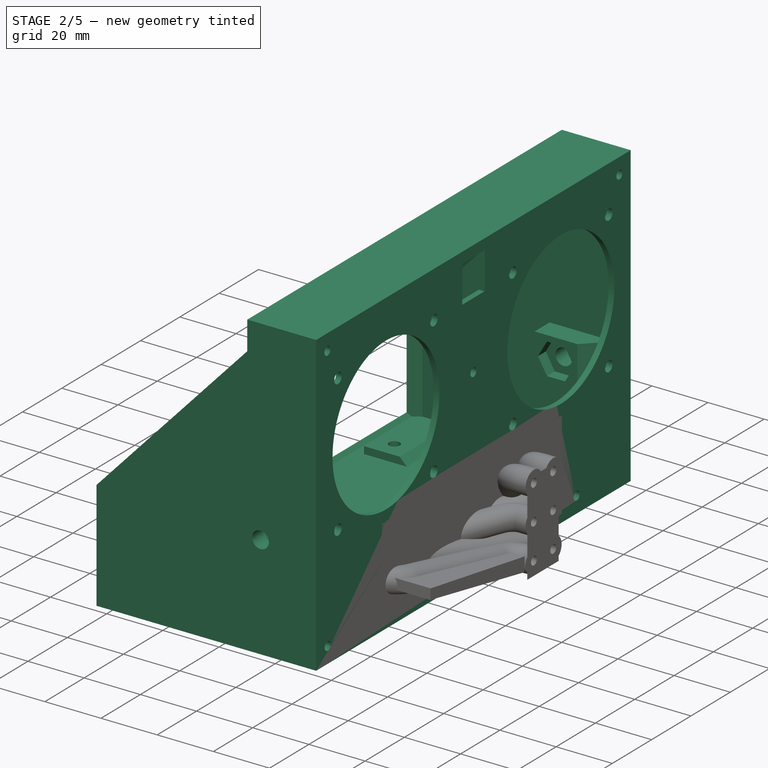
[diagram: stage 2 of 5 — iso view after this stage's code; geometry added in this stage tinted green]
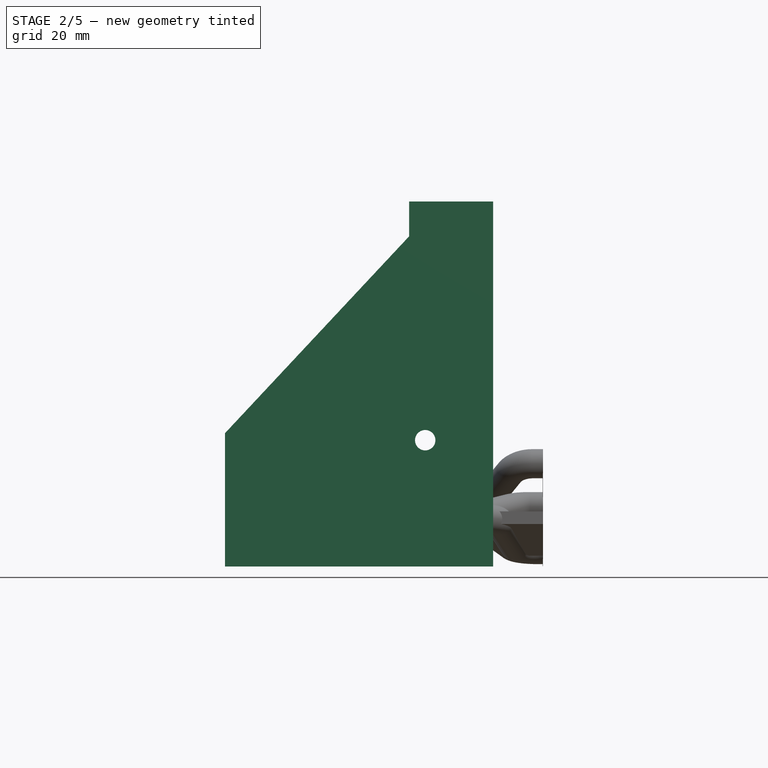
[diagram: stage 2 of 5 — front view after this stage's code; geometry added in this stage tinted green]
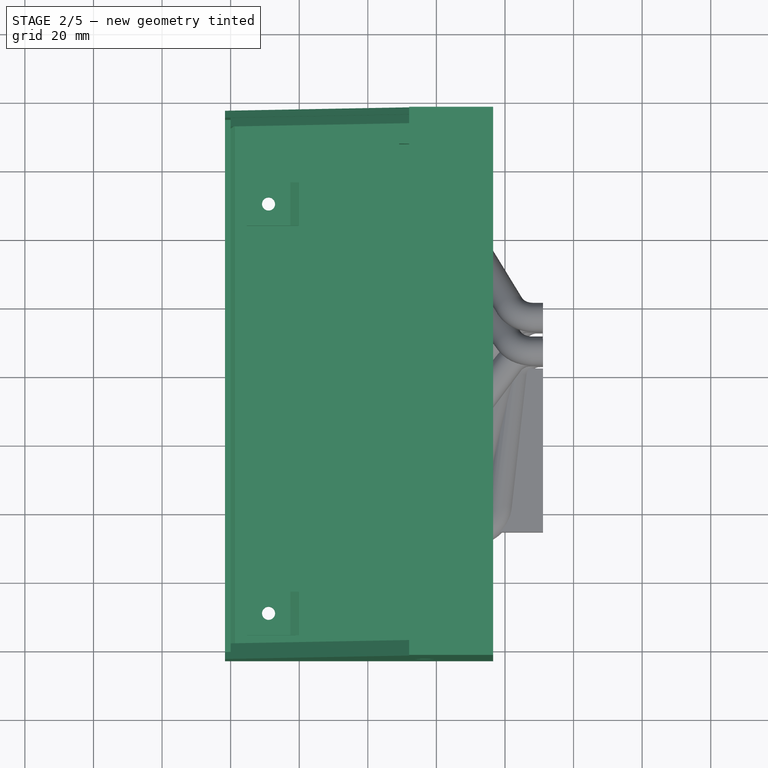
[diagram: stage 2 of 5 — top view after this stage's code; geometry added in this stage tinted green]
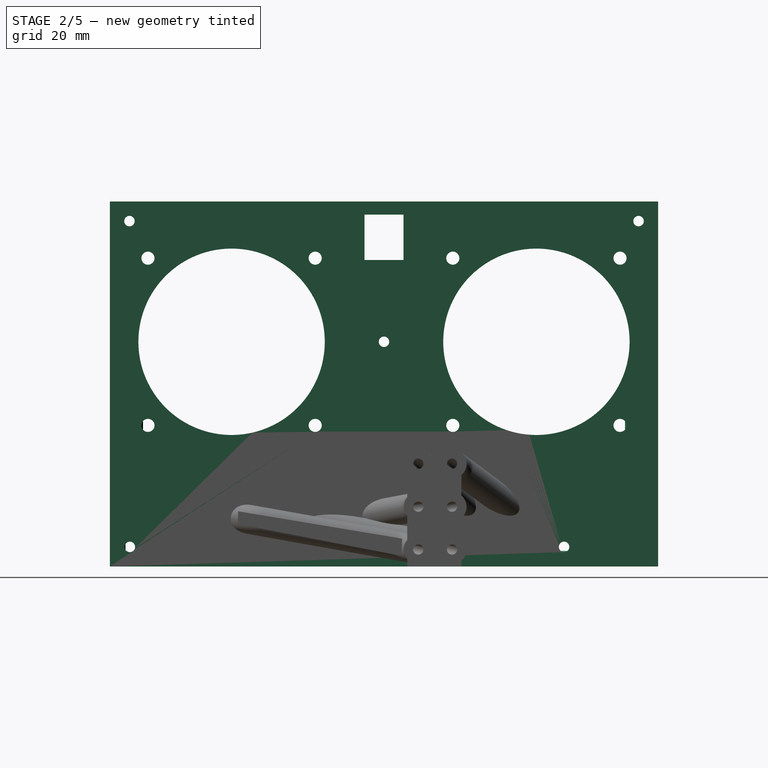
[diagram: stage 2 of 5 — right view after this stage's code; geometry added in this stage tinted green]
FEATURE [App::Link] Link  label="Assembly"
  LinkedObject = -> <external console-placement.FCStd>#Assembly
FEATURE [PartDesign::SubShapeBinder] Binder
  BindCopyOnChange = 0
  BindMode = 0
  ClaimChildren = false
  Context = -> Part [Body.Binder.]
  Fuse = false
  MakeFace = true
  OffsetFill = false
  OffsetIntersection = false
  OffsetJoinType = 0
  OffsetOpenResult = false
  PartialLoad = false
  Refine = true
  Relative = true
  Support = -> [<external console-placement.FCStd>#Assembly[meter.,meter001.,_M_pot.,_00DP6R7BLKM3QEBLK003.]]
  _Version = 2
FEATURE [PartDesign::SubShapeBinder] Binder001
  BindCopyOnChange = 0
  BindMode = 0
  ClaimChildren = false
  Context = -> Part [Body.Binder001.]
  Fuse = false
  MakeFace = true
  OffsetFill = false
  OffsetIntersection = false
  OffsetJoinType = 0
  OffsetOpenResult = false
  PartialLoad = false
  Refine = true
  Relative = true
  Support = -> [<external console-placement.FCStd>#Assembly[PCB_Assembly.pcb_imported.]]
  _Version = 2
FEATURE [PartDesign::Plane] DatumPlane  label="meter back"
  AttachmentSupport = -> [Binder]
  Length = 190.224
  MapMode = 5
  Placement = pos=(76.55,0,0) rot=(0.57735,-0.57735,-0.57735;2.0944rad)
  ResizeMode = 0
  Width = 149.914
FEATURE [Sketcher::SketchObject] Sketch
  ArcFitTolerance = 1e-06
  AttachmentSupport = -> [Binder]
  ExternalGeometry = -> [Binder,Binder001]
  FullyConstrained = true
  MakeInternals = false
  MapMode = 5
  Placement = pos=(76.55,0,0) rot=(0.57735,-0.57735,-0.57735;2.0944rad)
  sketch-geometry (17):
    g0: LineSegment StartX=-137.1 StartY=86.63 StartZ=0 EndX=-137.1 EndY=-7.62 EndZ=0
    g1: LineSegment StartX=-137.1 StartY=-7.62 StartZ=0 EndX=22.8 EndY=-7.62 EndZ=0
    g2: LineSegment StartX=22.8 StartY=-7.62 StartZ=0 EndX=22.8 EndY=86.63 EndZ=0
    g3: LineSegment [constr] StartX=22.8 StartY=86.63 StartZ=0 EndX=-137.1 EndY=86.63 EndZ=0
    g4: Circle CenterX=-125.984 CenterY=80.264 CenterZ=0 NormalX=0 NormalY=0 NormalZ=1 AngleXU=0 Radius=1.905
    g5: Circle CenterX=-77.216 CenterY=80.264 CenterZ=0 NormalX=0 NormalY=0 NormalZ=1 AngleXU=0 Radius=1.905
    g6: Circle CenterX=-125.984 CenterY=31.496 CenterZ=0 NormalX=0 NormalY=0 NormalZ=1 AngleXU=0 Radius=1.905
    g7: Circle CenterX=-77.216 CenterY=31.496 CenterZ=0 NormalX=0 NormalY=0 NormalZ=1 AngleXU=0 Radius=1.905
    g8: Circle CenterX=-101.6 CenterY=55.88 CenterZ=0 NormalX=0 NormalY=0 NormalZ=1 AngleXU=0 Radius=27.178
    g9: Circle CenterX=-12.7 CenterY=55.88 CenterZ=0 NormalX=0 NormalY=0 NormalZ=1 AngleXU=0 Radius=27.178
    g10: Circle CenterX=-37.084 CenterY=31.496 CenterZ=0 NormalX=0 NormalY=0 NormalZ=1 AngleXU=0 Radius=1.905
    g11: Circle CenterX=11.684 CenterY=31.496 CenterZ=0 NormalX=0 NormalY=0 NormalZ=1 AngleXU=0 Radius=1.905
    g12: Circle CenterX=11.684 CenterY=80.264 CenterZ=0 NormalX=0 NormalY=0 NormalZ=1 AngleXU=0 Radius=1.905
    g13: Circle CenterX=-37.084 CenterY=80.264 CenterZ=0 NormalX=0 NormalY=0 NormalZ=1 AngleXU=0 Radius=1.905
    g14: LineSegment StartX=-137.1 StartY=86.63 StartZ=0 EndX=-137.1 EndY=96.79 EndZ=0
    g15: LineSegment StartX=-137.1 StartY=96.79 StartZ=0 EndX=22.8 EndY=96.79 EndZ=0
    g16: LineSegment StartX=22.8 StartY=96.79 StartZ=0 EndX=22.8 EndY=86.63 EndZ=0
  constraints (38):
    c: Coincident(g0,g1)
    c: Coincident(g1,g2)
    c: Coincident(g2,g3)
    c: Coincident(g3,g0)
    c: Vertical(g0)
    c: Vertical(g2)
    c: Horizontal(g1)
    c: Coincident(g0,g-4)
    c: Coincident(g-3,g2)
    c: PointOnObject(g-18,g1)
    c: Coincident(g4,g-11)
    c: Coincident(g5,g-9)
    c: Coincident(g6,g-12)
    c: Coincident(g7,g-10)
    c: Coincident(g8,g-8)
    c: Coincident(g9,g-7)
    c: Coincident(g10,g-13)
    c: Coincident(g11,g-16)
    c: Coincident(g12,g-15)
    c: Coincident(g13,g-14)
    c: Equal(g4,g5)
    c: Equal(g4,g6)
    c: Equal(g4,g7)
    c: Equal(g4,g13)
    c: Equal(g4,g12)
    c: Equal(g4,g10)
    c: Equal(g4,g11)
    c: Equal(g8,g9)
    c: Diameter(g8) = 54.356
    c: Diameter(g4) = 3.81
    c: Coincident(g14,g0)
    c: Vertical(g14)
    c: Coincident(g15,g14)
    c: Horizontal(g15)
    c: Coincident(g16,g15)
    c: Coincident(g16,g2)
    c: Vertical(g16)
    c: DistanceY(g2,g15) = 10.16
FEATURE [PartDesign::Pad] Pad
  Direction = (-1,0,0)
  Length = 2.032
  Length2 = 10
  Profile = -> Sketch
  ReferenceAxis = -> Sketch [N_Axis]
  Refine = true
  Suppressed = false
  Type = 0
FEATURE [Sketcher::SketchObject] Sketch001
  ArcFitTolerance = 1e-06
  AttachmentSupport = -> [DatumPlane]
  ExternalGeometry = -> [Pad]
  FullyConstrained = false
  MakeInternals = false
  MapMode = 5
  Placement = pos=(76.55,0,0) rot=(0.57735,-0.57735,-0.57735;2.0944rad)
  sketch-geometry (11):
    g0: LineSegment StartX=-137.1 StartY=96.79 StartZ=0 EndX=-137.1 EndY=-9.652 EndZ=0
    g1: LineSegment StartX=-137.1 StartY=-9.652 StartZ=0 EndX=22.8 EndY=-9.652 EndZ=0
    g2: LineSegment StartX=22.8 StartY=-9.652 StartZ=0 EndX=22.8 EndY=96.79 EndZ=0
    g3: LineSegment StartX=-135.068 StartY=94.758 StartZ=0 EndX=-135.068 EndY=-7.62 EndZ=0
    g4: LineSegment StartX=-135.068 StartY=-7.62 StartZ=0 EndX=20.768 EndY=-7.62 EndZ=0
    g5: LineSegment StartX=20.768 StartY=-7.62 StartZ=0 EndX=20.768 EndY=94.758 EndZ=0
    g6: LineSegment StartX=-137.1 StartY=96.79 StartZ=0 EndX=22.8 EndY=96.79 EndZ=0
    g7: LineSegment StartX=20.768 StartY=94.758 StartZ=0 EndX=-135.068 EndY=94.758 EndZ=0
    g8: LineSegment [constr] StartX=-57.15 StartY=94.758 StartZ=0 EndX=-57.15 EndY=96.79 EndZ=0
    g9: LineSegment [constr] StartX=-57.15 StartY=-7.62 StartZ=0 EndX=-57.15 EndY=-9.652 EndZ=0
    g10: LineSegment [constr] StartX=-135.068 StartY=46.1442 StartZ=0 EndX=-137.1 EndY=46.1442 EndZ=0
  constraints (29):
    c: Coincident(g0,g1)
    c: Coincident(g1,g2)
    c: Vertical(g0)
    c: Vertical(g2)
    c: Horizontal(g1)
    c: DistanceY(g1,g-3) = 2.032
    c: Coincident(g3,g4)
    c: Coincident(g4,g5)
    c: Vertical(g3)
    c: Vertical(g5)
    c: Horizontal(g4)
    c: PointOnObject(g-3,g4)
    c: Coincident(g2,g-4)
    c: Coincident(g0,g-4)
    c: Coincident(g6,g0)
    c: Coincident(g6,g2)
    c: Coincident(g7,g5)
    c: Coincident(g7,g3)
    c: Horizontal(g7)
    c: Symmetric(g7,g7,g8)
    c: Symmetric(g6,g6,g8)
    c: Vertical(g8)
    c: Symmetric(g4,g4,g9)
    c: Symmetric(g1,g1,g9)
    c: Equal(g9,g8)
    c: PointOnObject(g10,g3)
    c: PointOnObject(g10,g0)
    c: Horizontal(g10)
    c: Equal(g10,g8)
FEATURE [PartDesign::Pad] Pad001
  BaseFeature = -> Pad
  Direction = (-1,0,0)
  Length = 10
  Length2 = 10
  Profile = -> Sketch001
  ReferenceAxis = -> Sketch001 [N_Axis]
  Refine = true
  Suppressed = false
  Type = 3
  UpToFace = -> Binder001 [Face2]
FEATURE [PartDesign::Plane] DatumPlane001  label="console left"
  AttachmentSupport = -> [Binder]
  Length = 123.815
  MapMode = 5
  Placement = pos=(0,137.1,1.51e-14) rot=(0,0.707107,0.707107;3.14159rad)
  ResizeMode = 0
  Width = 144.055
FEATURE [Sketcher::SketchObject] Sketch002  label="angled back sketch"
  ArcFitTolerance = 1e-06
  AttachmentSupport = -> [DatumPlane001]
  ExternalGeometry = -> [Binder,Pad001]
  FullyConstrained = false
  MakeInternals = false
  MapMode = 5
  Placement = pos=(0,137.1,1.51e-14) rot=(0,0.707107,0.707107;3.14159rad)
  sketch-geometry (5):
    g0: LineSegment StartX=-52.039 StartY=86.63 StartZ=0 EndX=0 EndY=30.988 EndZ=0
    g1: LineSegment StartX=-52.039 StartY=86.63 StartZ=0 EndX=-52.039 EndY=104.011 EndZ=0
    g2: LineSegment StartX=-52.039 StartY=104.011 StartZ=0 EndX=12.4998 EndY=104.011 EndZ=0
    g3: LineSegment StartX=12.4998 StartY=104.011 StartZ=0 EndX=12.4998 EndY=30.988 EndZ=0
    g4: LineSegment StartX=12.4998 StartY=30.988 StartZ=0 EndX=0 EndY=30.988 EndZ=0
  constraints (13):
    c: PointOnObject(g0,g-3)
    c: Vertical(g0,g-5)
    c: DistanceY(g-5,g0) = 40.64
    c: PointOnObject(g0,g-4)
    c: Coincident(g1,g0)
    c: Vertical(g1)
    c: Coincident(g2,g1)
    c: Horizontal(g2)
    c: Coincident(g3,g2)
    c: Vertical(g3)
    c: Coincident(g4,g3)
    c: Coincident(g4,g0)
    c: Horizontal(g4)
FEATURE [PartDesign::Pocket] Pocket
  BaseFeature = -> Pad001
  Direction = (0,-1,2e-16)
  Length = 5
  Length2 = 5
  Profile = -> Sketch002
  ReferenceAxis = -> Sketch002 [N_Axis]
  Refine = true
  Suppressed = false
  Type = 1
FEATURE [PartDesign::SubShapeBinder] Binder003
  BindCopyOnChange = 0
  BindMode = 0
  ClaimChildren = false
  Context = -> Part [Body.Binder003.]
  Fuse = false
  MakeFace = true
  OffsetFill = false
  OffsetIntersection = false
  OffsetJoinType = 0
  OffsetOpenResult = false
  PartialLoad = false
  Refine = true
  Relative = true
  Support = -> [Link[PCB_Assembly.WP154A4SUREQBFZGC.,PCB_Assembly.WP154A4SUREQBFZGC001.,PCB_Assembly.WP154A4SUREQBFZGC002.,PCB_Assembly.WP154A4SUREQBFZGC003.,PCB_Assembly.WP154A4SUREQBFZGC004.,PCB_Assembly.WP154A4SUREQBFZGC005.,_M_pot.,_00DP6R7BLKM3QEBLK003.]]
  _Version = 2
FEATURE [PartDesign::SubShapeBinder] Binder004
  BindCopyOnChange = 0
  BindMode = 0
  ClaimChildren = false
  Context = -> Part001 [Body001.Binder004.]
  Fuse = false
  MakeFace = true
  OffsetFill = false
  OffsetIntersection = false
  OffsetJoinType = 0
  OffsetOpenResult = false
  PartialLoad = false
  Refine = true
  Relative = true
  Support = -> [Part]
  _Version = 2
FEATURE [PartDesign::SubShapeBinder] Binder005
  BindCopyOnChange = 0
  BindMode = 0
  ClaimChildren = false
  Context = -> Part001 [Body001.Binder005.]
  Fuse = false
  MakeFace = true
  OffsetFill = false
  OffsetIntersection = false
  OffsetJoinType = 0
  OffsetOpenResult = false
  PartialLoad = false
  Refine = true
  Relative = true
  Support = -> [Link[_M_pot.,_00DP6R7BLKM3QEBLK003.]]
  _Version = 2
FEATURE [PartDesign::Plane] DatumPlane002  label="pot panel inside"
  AttachmentSupport = -> [Binder005]
  Length = 150.095
  MapMode = 11
  Placement = pos=(88.5499,-6.858,7.62) rot=(0.707107,0,0.707107;3.14159rad)
  ResizeMode = 0
  Width = 192.491
FEATURE [PartDesign::SubShapeBinder] Binder006
  BindCopyOnChange = 0
  BindMode = 0
  ClaimChildren = false
  Context = -> Part001 [Body001.Binder006.]
  Fuse = false
  MakeFace = true
  OffsetFill = false
  OffsetIntersection = false
  OffsetJoinType = 0
  OffsetOpenResult = false
  PartialLoad = false
  Refine = true
  Relative = true
  Support = -> [Link[meter.,meter001.]]
  _Version = 2
FEATURE [Sketcher::SketchObject] Sketch004
  ArcFitTolerance = 1e-06
  AttachmentSupport = -> [DatumPlane002]
  ExternalGeometry = -> [Binder005,Binder006]
  FullyConstrained = true
  MakeInternals = false
  MapMode = 5
  Placement = pos=(88.5499,-6.858,7.62) rot=(0.707107,0,0.707107;3.14159rad)
  sketch-geometry (16):
    g0: LineSegment StartX=-17.272 StartY=15.942 StartZ=0 EndX=-17.272 EndY=-143.958 EndZ=0
    g1: LineSegment StartX=-17.272 StartY=-143.958 StartZ=0 EndX=17.256 EndY=-143.958 EndZ=0
    g2: LineSegment StartX=17.256 StartY=-143.958 StartZ=0 EndX=17.256 EndY=-72.704 EndZ=0
    g3: LineSegment StartX=17.256 StartY=-72.704 StartZ=0 EndX=79.01 EndY=-72.704 EndZ=0
    g4: LineSegment [constr] StartX=79.01 StartY=-72.704 StartZ=0 EndX=79.01 EndY=-55.312 EndZ=0
    g5: LineSegment StartX=79.01 StartY=-55.312 StartZ=0 EndX=17.256 EndY=-55.312 EndZ=0
    g6: LineSegment StartX=17.256 StartY=-55.312 StartZ=0 EndX=17.256 EndY=15.942 EndZ=0
    g7: LineSegment StartX=17.256 StartY=15.942 StartZ=0 EndX=-17.272 EndY=15.942 EndZ=0
    g8: LineSegment StartX=89.17 StartY=15.942 StartZ=0 EndX=89.17 EndY=-143.958 EndZ=0
    g9: LineSegment StartX=89.17 StartY=15.942 StartZ=0 EndX=79.264 EndY=15.942 EndZ=0
    g10: LineSegment StartX=79.264 StartY=15.942 StartZ=0 EndX=79.264 EndY=-55.312 EndZ=0
    g11: LineSegment StartX=79.264 StartY=-72.704 StartZ=0 EndX=79.264 EndY=-143.958 EndZ=0
    g12: LineSegment StartX=79.264 StartY=-143.958 StartZ=0 EndX=89.17 EndY=-143.958 EndZ=0
    g13: LineSegment [constr] StartX=79.01 StartY=-72.958 StartZ=0 EndX=79.264 EndY=-72.958 EndZ=0
    g14: LineSegment StartX=79.264 StartY=-55.312 StartZ=0 EndX=79.01 EndY=-55.312 EndZ=0
    g15: LineSegment StartX=79.264 StartY=-72.704 StartZ=0 EndX=79.01 EndY=-72.704 EndZ=0
  constraints (41):
    c: Coincident(g0,g-6)
    c: Coincident(g0,g-6)
    c: Coincident(g1,g0)
    c: Coincident(g2,g1)
    c: Coincident(g3,g2)
    c: Horizontal(g3)
    c: Coincident(g4,g3)
    c: Coincident(g5,g4)
    c: Horizontal(g5)
    c: Coincident(g6,g5)
    c: Vertical(g6)
    c: Coincident(g7,g6)
    c: Coincident(g7,g0)
    c: Horizontal(g7)
    c: PointOnObject(g-8,g1)
    c: Tangent(g2,g6)
    c: DistanceX(g6,g-7) = 0.254
    c: PointOnObject(g-9,g4)
    c: PointOnObject(g-10,g4)
    c: DistanceY(g4,g-9) = 0.254
    c: DistanceY(g-10,g3) = 0.254
    c: Coincident(g8,g-11)
    c: Coincident(g8,g-11)
    c: Coincident(g9,g8)
    c: Horizontal(g9)
    c: Coincident(g10,g9)
    c: Vertical(g10)
    c: Coincident(g12,g11)
    c: Coincident(g12,g8)
    c: Horizontal(g12)
    c: Tangent(g10,g11)
    c: Coincident(g13,g-10)
    c: PointOnObject(g13,g11)
    c: Horizontal(g13)
    c: DistanceX(g13,g13) = 0.254
    c: Coincident(g14,g10)
    c: Coincident(g14,g4)
    c: Horizontal(g14)
    c: Horizontal(g11,g3)
    c: Coincident(g15,g11)
    c: Coincident(g15,g3)
FEATURE [PartDesign::Pad] Pad002
  Direction = (1,0,-2e-16)
  Length = 1.651
  Length2 = 10
  Placement = pos=(88.5499,-6.858,7.62) rot=(0.707107,0,0.707107;3.14159rad)
  Profile = -> Sketch004
  ReferenceAxis = -> Sketch004 [N_Axis]
  Refine = true
  Suppressed = false
  Type = 0
FEATURE [Sketcher::SketchObject] Sketch005
  ArcFitTolerance = 1e-06
  AttachmentSupport = -> [DatumPlane002]
  ExternalGeometry = -> [Pad002]
  FullyConstrained = false
  MakeInternals = false
  MapMode = 5
  Placement = pos=(88.5499,-6.858,7.62) rot=(0.707107,0,0.707107;3.14159rad)
  sketch-geometry (24):
    g0: LineSegment StartX=-17.272 StartY=15.942 StartZ=0 EndX=17.256 EndY=15.942 EndZ=0
    g1: LineSegment StartX=17.256 StartY=15.942 StartZ=0 EndX=17.256 EndY=-55.312 EndZ=0
    g2: LineSegment StartX=17.256 StartY=-55.312 StartZ=0 EndX=79.264 EndY=-55.312 EndZ=0
    g3: LineSegment StartX=79.264 StartY=15.942 StartZ=0 EndX=89.17 EndY=15.942 EndZ=0
    g4: LineSegment StartX=89.17 StartY=15.942 StartZ=0 EndX=89.17 EndY=-143.958 EndZ=0
    g5: LineSegment StartX=89.17 StartY=-143.958 StartZ=0 EndX=79.264 EndY=-143.958 EndZ=0
    g6: LineSegment StartX=17.256 StartY=-72.704 StartZ=0 EndX=17.256 EndY=-143.958 EndZ=0
    g7: LineSegment StartX=17.256 StartY=-143.958 StartZ=0 EndX=-17.272 EndY=-143.958 EndZ=0
    g8: LineSegment StartX=-17.272 StartY=15.942 StartZ=0 EndX=-17.272 EndY=-143.958 EndZ=0
    g9: LineSegment StartX=-15.621 StartY=14.291 StartZ=0 EndX=-15.621 EndY=-142.307 EndZ=0
    g10: LineSegment StartX=-15.621 StartY=-142.307 StartZ=0 EndX=15.605 EndY=-142.307 EndZ=0
    g11: LineSegment StartX=15.605 StartY=-142.307 StartZ=0 EndX=15.605 EndY=-71.053 EndZ=0
    g12: LineSegment StartX=15.605 StartY=-71.053 StartZ=0 EndX=79.264 EndY=-71.053 EndZ=0
    g13: LineSegment StartX=-15.621 StartY=14.291 StartZ=0 EndX=15.605 EndY=14.291 EndZ=0
    g14: LineSegment StartX=15.605 StartY=14.291 StartZ=0 EndX=15.605 EndY=-56.963 EndZ=0
    g15: LineSegment StartX=15.605 StartY=-56.963 StartZ=0 EndX=79.264 EndY=-56.963 EndZ=0
    g16: LineSegment StartX=17.256 StartY=-72.704 StartZ=0 EndX=79.264 EndY=-72.704 EndZ=0
    g17: LineSegment [constr] StartX=79.264 StartY=-55.312 StartZ=0 EndX=79.264 EndY=-56.963 EndZ=0
    g18: LineSegment [constr] StartX=79.264 StartY=-71.053 StartZ=0 EndX=79.264 EndY=-72.704 EndZ=0
    g19: LineSegment [constr] StartX=-17.272 StartY=-64.008 StartZ=0 EndX=-15.621 EndY=-64.008 EndZ=0
    g20: LineSegment [constr] StartX=-0.008 StartY=15.942 StartZ=0 EndX=-0.008 EndY=14.291 EndZ=0
    g21: LineSegment StartX=79.264 StartY=-72.704 StartZ=0 EndX=79.264 EndY=-143.958 EndZ=0
    g22: LineSegment StartX=79.264 StartY=-71.053 StartZ=0 EndX=79.264 EndY=-56.963 EndZ=0
    g23: LineSegment StartX=79.264 StartY=15.942 StartZ=0 EndX=79.264 EndY=-55.312 EndZ=0
  constraints (57):
    c: Coincident(g0,g-9)
    c: Coincident(g0,g-9)
    c: Coincident(g1,g0)
    c: Coincident(g1,g-5)
    c: Coincident(g2,g1)
    c: Coincident(g2,g-5)
    c: Coincident(g3,g-4)
    c: Coincident(g4,g3)
    c: Coincident(g4,g-4)
    c: Coincident(g5,g4)
    c: Coincident(g6,g-10)
    c: Coincident(g7,g6)
    c: Coincident(g7,g-10)
    c: Coincident(g8,g0)
    c: Coincident(g8,g7)
    c: Vertical(g9)
    c: Coincident(g10,g9)
    c: Horizontal(g10)
    c: Coincident(g11,g10)
    c: Vertical(g11)
    c: Coincident(g12,g11)
    c: Coincident(g13,g9)
    c: Horizontal(g13)
    c: Coincident(g14,g13)
    c: Vertical(g14)
    c: Coincident(g15,g14)
    c: Horizontal(g15)
    c: Coincident(g16,g6)
    c: Coincident(g16,g-7)
    c: Coincident(g17,g2)
    c: Coincident(g17,g15)
    c: Coincident(g18,g12)
    c: Coincident(g18,g16)
    c: Coincident(g3,g-8)
    c: Vertical(g17)
    c: Vertical(g18)
    c: Equal(g17,g18)
    c: DistanceY(g15,g2) = 1.651
    c: Symmetric(g8,g8,g19)
    c: Symmetric(g9,g9,g19)
    c: Horizontal(g19)
    c: DistanceX(g19,g19) = 1.651
    c: Symmetric(g0,g0,g20)
    c: PointOnObject(g20,g13)
    c: Vertical(g20)
    c: DistanceY(g20,g20) = 1.651
    c: DistanceX(g13,g0) = 1.651
    c: Coincident(g-6,g6)
    c: DistanceX(g11,g6) = 1.651
    c: Horizontal(g12)
    c: Coincident(g21,g16)
    c: Coincident(g21,g5)
    c: Vertical(g21)
    c: Coincident(g22,g12)
    c: Coincident(g22,g15)
    c: Coincident(g23,g3)
    c: Coincident(g23,g2)
FEATURE [PartDesign::SubShapeBinder] Binder007
  BindCopyOnChange = 0
  BindMode = 0
  ClaimChildren = false
  Context = -> Part001 [Body001.Binder007.]
  Fuse = false
  MakeFace = true
  OffsetFill = false
  OffsetIntersection = false
  OffsetJoinType = 0
  OffsetOpenResult = false
  PartialLoad = false
  Refine = true
  Relative = true
  Support = -> [Link[PCB_Assembly.WP154A4SUREQBFZGC.,PCB_Assembly.WP154A4SUREQBFZGC001.,PCB_Assembly.WP154A4SUREQBFZGC002.,PCB_Assembly.WP154A4SUREQBFZGC003.,PCB_Assembly.WP154A4SUREQBFZGC004.,PCB_Assembly.WP154A4SUREQBFZGC005.]]
  _Version = 2
FEATURE [Sketcher::SketchObject] Sketch009
  ArcFitTolerance = 1e-06
  AttachmentSupport = -> [DatumPlane002]
  ExternalGeometry = -> [Binder005]
  FullyConstrained = true
  MakeInternals = false
  MapMode = 5
  Placement = pos=(88.5499,-6.858,7.62) rot=(0.707107,0,0.707107;3.14159rad)
  sketch-geometry (15):
    g0: LineSegment StartX=7.8613 StartY=-127.508 StartZ=0 EndX=-7.8613 EndY=-127.508 EndZ=0
    g1: LineSegment StartX=-7.8613 StartY=-127.508 StartZ=0 EndX=-7.8613 EndY=-140.208 EndZ=0
    g2: LineSegment StartX=-7.8613 StartY=-140.208 StartZ=0 EndX=7.8613 EndY=-140.208 EndZ=0
    g3: LineSegment StartX=7.8613 StartY=-140.208 StartZ=0 EndX=7.8613 EndY=-127.508 EndZ=0
    g4: LineSegment [constr] StartX=5.74571 StartY=-137.858 StartZ=0 EndX=5.74571 EndY=-129.858 EndZ=0
    g5: LineSegment [constr] StartX=5.74571 StartY=-133.858 StartZ=0 EndX=7.8613 EndY=-133.858 EndZ=0
    g6: LineSegment [constr] StartX=5.74571 StartY=-129.858 StartZ=0 EndX=-5.74571 EndY=-129.858 EndZ=0
    g7: LineSegment [constr] StartX=5.74571 StartY=-129.858 StartZ=0 EndX=-5.74571 EndY=-129.858 EndZ=0
    g8: LineSegment [constr] StartX=-9e-16 StartY=-129.858 StartZ=0 EndX=-2.2e-15 EndY=-127.508 EndZ=0
    g9: LineSegment [constr] StartX=-5.74571 StartY=-137.858 StartZ=0 EndX=-5.74571 EndY=-129.858 EndZ=0
    g10: LineSegment [constr] StartX=-5.74571 StartY=-133.858 StartZ=0 EndX=-7.8613 EndY=-133.858 EndZ=0
    g11: LineSegment [constr] StartX=5.74571 StartY=-137.858 StartZ=0 EndX=-5.74571 EndY=-137.858 EndZ=0
    g12: LineSegment [constr] StartX=-9e-16 StartY=-137.858 StartZ=0 EndX=-2.2e-15 EndY=-140.208 EndZ=0
    g13: Circle CenterX=0 CenterY=0 CenterZ=0 NormalX=0 NormalY=0 NormalZ=1 AngleXU=0 Radius=3.683
    g14: Circle CenterX=-7.7978 CenterY=0 CenterZ=0 NormalX=0 NormalY=0 NormalZ=1 AngleXU=0 Radius=1.4986
  constraints (35):
    c: Coincident(g0,g1)
    c: Coincident(g1,g2)
    c: Coincident(g2,g3)
    c: Coincident(g3,g0)
    c: Horizontal(g2)
    c: Vertical(g1)
    c: Vertical(g3)
    c: DistanceY(g3,g3) = 12.7
    c: DistanceX(g0,g0) = 15.7226
    c: Coincident(g4,g-5)
    c: Coincident(g4,g-4)
    c: Symmetric(g4,g4,g5)
    c: Symmetric(g3,g3,g5)
    c: Coincident(g6,g4)
    c: Coincident(g6,g-4)
    c: Coincident(g7,g4)
    c: Coincident(g7,g6)
    c: Symmetric(g6,g6,g8)
    c: Symmetric(g0,g0,g8)
    c: Parallel(g2,g0)
    c: Coincident(g9,g-5)
    c: Coincident(g9,g6)
    c: Symmetric(g9,g9,g10)
    c: Symmetric(g1,g1,g10)
    c: Equal(g5,g10)
    c: Coincident(g11,g4)
    c: Coincident(g11,g9)
    c: Symmetric(g11,g11,g12)
    c: Symmetric(g2,g2,g12)
    c: Equal(g12,g8)
    c: Coincident(g13,g-1)
    c: Diameter(g13) = 7.366
    c: Diameter(g14) = 2.9972
    c: Horizontal(g13,g14)
    c: DistanceX(g14,g13) = 7.7978
FEATURE [Sketcher::SketchObject] Sketch025
  ArcFitTolerance = 1e-06
  AttachmentSupport = -> [DatumPlane]
  ExternalGeometry = -> [Binder]
  FullyConstrained = true
  MakeInternals = false
  MapMode = 5
  Placement = pos=(76.55,0,0) rot=(0.57735,-0.57735,-0.57735;2.0944rad)
  sketch-geometry (15):
    g0: Circle [constr] CenterX=-131.385 CenterY=91.075 CenterZ=0 NormalX=0 NormalY=0 NormalZ=1 AngleXU=0 Radius=3.683
    g1: Circle CenterX=-131.385 CenterY=91.075 CenterZ=0 NormalX=0 NormalY=0 NormalZ=1 AngleXU=0 Radius=1.524
    g2: Circle [constr] CenterX=17.085 CenterY=91.075 CenterZ=0 NormalX=0 NormalY=0 NormalZ=1 AngleXU=0 Radius=3.683
    g3: Circle CenterX=17.085 CenterY=91.075 CenterZ=0 NormalX=0 NormalY=0 NormalZ=1 AngleXU=0 Radius=1.524
    g4: Circle [constr] CenterX=-109.668 CenterY=-3.937 CenterZ=0 NormalX=0 NormalY=0 NormalZ=1 AngleXU=0 Radius=3.683
    g5: Circle [constr] CenterX=16.958 CenterY=-3.937 CenterZ=0 NormalX=0 NormalY=0 NormalZ=1 AngleXU=0 Radius=3.683
    g6: Circle CenterX=-109.668 CenterY=-3.937 CenterZ=0 NormalX=0 NormalY=0 NormalZ=1 AngleXU=0 Radius=1.524
    g7: Circle CenterX=16.958 CenterY=-3.937 CenterZ=0 NormalX=0 NormalY=0 NormalZ=1 AngleXU=0 Radius=1.524
    g8: LineSegment [constr] StartX=-66.1 StartY=86.63 StartZ=0 EndX=-48.2 EndY=25.13 EndZ=0
    g9: Circle CenterX=-57.15 CenterY=55.88 CenterZ=0 NormalX=0 NormalY=0 NormalZ=1 AngleXU=0 Radius=1.524
    g10: LineSegment StartX=-62.8269 StartY=92.98 StartZ=0 EndX=-62.8269 EndY=79.7415 EndZ=0
    g11: LineSegment StartX=-62.8269 StartY=79.7415 StartZ=0 EndX=-51.4731 EndY=79.7415 EndZ=0
    g12: LineSegment StartX=-51.4731 StartY=79.7415 StartZ=0 EndX=-51.4731 EndY=92.98 EndZ=0
    g13: LineSegment StartX=-51.4731 StartY=92.98 StartZ=0 EndX=-62.8269 EndY=92.98 EndZ=0
    g14: GeomPoint X=-57.15 Y=79.7415 Z=0
  constraints (37):
    c: Diameter(g0) = 7.366
    c: Tangent(g0,g-4)
    c: Tangent(g0,g-3)
    c: Coincident(g1,g0)
    c: Diameter(g1) = 3.048
    c: Equal(g2,g0)
    c: Tangent(g2,g-5)
    c: Tangent(g2,g-3)
    c: Coincident(g3,g2)
    c: Equal(g3,g1)
    c: Equal(g4,g5)
    c: Equal(g4,g0)
    c: Tangent(g4,g-6)
    c: Tangent(g5,g-6)
    c: DistanceX(g-6,g4) = 25.4
    c: DistanceX(g5,g-6) = 3.81
    c: Coincident(g6,g4)
    c: Coincident(g7,g5)
    c: Equal(g7,g6)
    c: Equal(g6,g1)
    c: Coincident(g8,g-7)
    c: Coincident(g8,g-8)
    c: Symmetric(g8,g8,g9)
    c: Equal(g9,g7)
    c: Coincident(g10,g11)
    c: Coincident(g11,g12)
    c: Coincident(g12,g13)
    c: Coincident(g13,g10)
    c: Vertical(g10)
    c: Vertical(g12)
    c: Horizontal(g11)
    c: Horizontal(g13)
    c: Symmetric(g11,g10,g14)
    c: Vertical(g9,g14)
    c: DistanceX(g10,g12) = 11.3538
    c: DistanceY(g11,g12) = 13.2385
    c: DistanceY(g12,g-5) = 1.778
FEATURE [PartDesign::Pocket] Pocket009  label="screw holes to front panel"
  BaseFeature = -> Pocket
  Direction = (1,0,0)
  Length = 5.00126
  Length2 = 5
  Profile = -> Sketch025
  ReferenceAxis = -> Sketch025 [N_Axis]
  Refine = true
  Reversed = true
  Suppressed = false
  Type = 1
FEATURE [Sketcher::SketchObject] Sketch026
  ArcFitTolerance = 1e-06
  AttachmentSupport = -> [DatumPlane002]
  FullyConstrained = false
  MakeInternals = false
  MapMode = 5
  Placement = pos=(88.5499,-6.858,7.62) rot=(0.707107,0,0.707107;3.14159rad)
  sketch-geometry (23):
    g0: LineSegment [constr] StartX=-5.969 StartY=4.512 StartZ=0 EndX=-5.969 EndY=15.688 EndZ=0
    g1: LineSegment StartX=-5.969 StartY=15.688 StartZ=0 EndX=-17.145 EndY=15.688 EndZ=0
    g2: LineSegment StartX=-17.145 StartY=15.688 StartZ=0 EndX=-17.145 EndY=4.512 EndZ=0
    g3: LineSegment [constr] StartX=-17.145 StartY=4.512 StartZ=0 EndX=-5.969 EndY=4.512 EndZ=0
    g4: GeomPoint [constr] X=-11.557 Y=10.1 Z=0
    g5: LineSegment StartX=-5.969 StartY=15.688 StartZ=0 EndX=-5.969 EndY=6.93092 EndZ=0
    g6: LineSegment StartX=-5.969 StartY=6.93092 StartZ=0 EndX=-7.95666 EndY=4.512 EndZ=0
    g7: LineSegment StartX=-7.95666 StartY=4.512 StartZ=0 EndX=-17.145 EndY=4.512 EndZ=0
    g8: LineSegment [constr] StartX=0 StartY=0 StartZ=0 EndX=-6.96283 EndY=5.72146 EndZ=0
    g9: GeomPoint [constr] X=-6.76659 Y=5.5602 Z=0
    g10: LineSegment StartX=-5.969 StartY=-110.938 StartZ=0 EndX=-17.145 EndY=-110.938 EndZ=0
    g11: LineSegment StartX=-17.145 StartY=-110.938 StartZ=0 EndX=-17.145 EndY=-122.114 EndZ=0
    g12: LineSegment StartX=-17.145 StartY=-122.114 StartZ=0 EndX=-5.969 EndY=-122.114 EndZ=0
    g13: LineSegment StartX=-5.969 StartY=-122.114 StartZ=0 EndX=-5.969 EndY=-110.938 EndZ=0
    g14: GeomPoint [constr] X=-11.557 Y=-116.526 Z=0
    g15: Circle CenterX=-11.557 CenterY=10.1 CenterZ=0 NormalX=0 NormalY=0 NormalZ=1 AngleXU=0 Radius=1.524
    g16: Circle CenterX=-11.557 CenterY=-116.526 CenterZ=0 NormalX=0 NormalY=0 NormalZ=1 AngleXU=0 Radius=1.524
    g17: LineSegment StartX=53.848 StartY=-69.596 StartZ=0 EndX=53.848 EndY=-58.42 EndZ=0
    g18: LineSegment StartX=53.848 StartY=-58.42 StartZ=0 EndX=42.672 EndY=-58.42 EndZ=0
    g19: LineSegment StartX=42.672 StartY=-58.42 StartZ=0 EndX=42.672 EndY=-69.596 EndZ=0
    g20: LineSegment StartX=42.672 StartY=-69.596 StartZ=0 EndX=53.848 EndY=-69.596 EndZ=0
    g21: GeomPoint [constr] X=48.26 Y=-64.008 Z=0
    g22: Circle CenterX=48.26 CenterY=-64.008 CenterZ=0 NormalX=0 NormalY=0 NormalZ=1 AngleXU=0 Radius=1.524
  constraints (52):
    c: Coincident(g0,g1)
    c: Coincident(g1,g2)
    c: Coincident(g2,g3)
    c: Coincident(g3,g0)
    c: Vertical(g0)
    c: Vertical(g2)
    c: Horizontal(g1)
    c: Horizontal(g3)
    c: Symmetric(g2,g0,g4)
    c: Coincident(g4,g-3)
    c: Equal(g1,g0)
    c: DistanceX(g1,g1) = 11.176
    c: Coincident(g5,g0)
    c: PointOnObject(g5,g0)
    c: Coincident(g6,g5)
    c: PointOnObject(g6,g3)
    c: Coincident(g7,g6)
    c: Coincident(g7,g2)
    c: Coincident(g8,g-1)
    c: Symmetric(g6,g6,g8)
    c: Perpendicular(g6,g8)
    c: PointOnObject(g9,g8)
    c: PointOnObject(g9,g-5)
    c: Distance(g9,g8) = 0.254
    c: Coincident(g10,g11)
    c: Coincident(g11,g12)
    c: Coincident(g12,g13)
    c: Coincident(g13,g10)
    c: Horizontal(g10)
    c: Horizontal(g12)
    c: Vertical(g11)
    c: Vertical(g13)
    c: Symmetric(g12,g10,g14)
    c: Coincident(g14,g-4)
    c: Equal(g13,g10)
    c: Equal(g10,g2)
    c: Coincident(g15,g4)
    c: Coincident(g16,g14)
    c: Coincident(g17,g18)
    c: Coincident(g18,g19)
    c: Coincident(g19,g20)
    c: Coincident(g20,g17)
    c: Vertical(g17)
    c: Vertical(g19)
    c: Horizontal(g18)
    c: Horizontal(g20)
    c: Symmetric(g19,g17,g21)
    c: Coincident(g21,g-6)
    c: Equal(g18,g19)
    c: Equal(g19,g1)
    c: Coincident(g22,g21)
    c: Equal(g-6,g22)
FEATURE [PartDesign::Plane] DatumPlane004  label="normal to sloped lid"
  AttachmentSupport = -> [Pocket009]
  Length = 194.066
  MapMode = 7
  Placement = pos=(52.039,-20.768,86.63) rot=(0.344679,0.344679,0.873151;1.70603rad)
  ResizeMode = 0
  Width = 189.332
FEATURE [Sketcher::SketchObject] Sketch027
  ArcFitTolerance = 1e-06
  AttachmentSupport = -> [DatumPlane004]
  ExternalGeometry = -> [Pocket009]
  FullyConstrained = true
  MakeInternals = false
  MapMode = 5
  Placement = pos=(52.039,-20.768,86.63) rot=(0.344679,0.344679,0.873151;1.70603rad)
  sketch-geometry (6):
    g0: LineSegment StartX=0 StartY=-4.318 StartZ=0 EndX=2.54 EndY=-1.778 EndZ=0
    g1: LineSegment StartX=2.54 StartY=-1.778 StartZ=0 EndX=0 EndY=-1.778 EndZ=0
    g2: LineSegment StartX=0 StartY=-1.778 StartZ=0 EndX=0 EndY=-4.318 EndZ=0
    g3: LineSegment StartX=153.296 StartY=-1.778 StartZ=0 EndX=155.836 EndY=-1.778 EndZ=0
    g4: LineSegment StartX=155.836 StartY=-1.778 StartZ=0 EndX=155.836 EndY=-4.318 EndZ=0
    g5: LineSegment StartX=155.836 StartY=-4.318 StartZ=0 EndX=153.296 EndY=-1.778 EndZ=0
  constraints (18):
    c: Coincident(g1,g0)
    c: PointOnObject(g1,g-2)
    c: Horizontal(g1)
    c: Coincident(g2,g1)
    c: Vertical(g2)
    c: Coincident(g0,g2)
    c: DistanceY(g1,g-1) = 1.778
    c: Distance(g1,g1) = 2.54
    c: Angle(g0,g2) = 0.785398
    c: Horizontal(g3)
    c: Coincident(g4,g3)
    c: Vertical(g4)
    c: Coincident(g5,g4)
    c: Coincident(g5,g3)
    c: Vertical(g3,g-3)
    c: Horizontal(g3,g0)
    c: Equal(g1,g3)
    c: Equal(g5,g0)
FEATURE [PartDesign::Pad] Pad006  label="lid shelf"
  BaseFeature = -> Pocket009
  Direction = (0.683065,0,0.730358)
  Length = 10
  Length2 = 10
  Profile = -> Sketch027
  ReferenceAxis = -> Sketch027 [N_Axis]
  Refine = true
  Reversed = true
  Suppressed = false
  Type = 3
  UpToFace = -> Pocket009 [Face32]
FEATURE [PartDesign::Plane] DatumPlane005  label="PCB back"
  AttachmentSupport = -> [Binder001]
  Length = 190.224
  MapMode = 5
  Placement = pos=(0,0,0) rot=(0.57735,-0.57735,-0.57735;2.0944rad)
  ResizeMode = 0
  Width = 149.914
FEATURE [Sketcher::SketchObject] Sketch028
  ArcFitTolerance = 1e-06
  AttachmentSupport = -> [DatumPlane005]
  ExternalGeometry = -> [Pad006,DatumPlane001]
  FullyConstrained = false
  MakeInternals = false
  MapMode = 5
  Placement = pos=(0,0,0) rot=(0.57735,-0.57735,-0.57735;2.0944rad)
  sketch-geometry (8):
    g0: LineSegment StartX=-137.1 StartY=-9.652 StartZ=0 EndX=22.8 EndY=-9.652 EndZ=0
    g1: LineSegment StartX=22.8 StartY=-9.652 StartZ=0 EndX=22.8 EndY=30.988 EndZ=0
    g2: LineSegment StartX=22.8 StartY=30.988 StartZ=0 EndX=20.768 EndY=30.988 EndZ=0
    g3: LineSegment StartX=20.768 StartY=30.988 StartZ=0 EndX=20.768 EndY=-7.62 EndZ=0
    g4: LineSegment StartX=20.768 StartY=-7.62 StartZ=0 EndX=-135.068 EndY=-7.62 EndZ=0
    g5: LineSegment StartX=-135.068 StartY=-7.62 StartZ=0 EndX=-135.068 EndY=30.988 EndZ=0
    g6: LineSegment StartX=-137.1 StartY=30.988 StartZ=0 EndX=-137.1 EndY=-9.652 EndZ=0
    g7: LineSegment StartX=-135.068 StartY=30.988 StartZ=0 EndX=-137.1 EndY=30.988 EndZ=0
  constraints (14):
    c: Coincident(g0,g-4)
    c: Coincident(g1,g0)
    c: Coincident(g1,g-3)
    c: Coincident(g2,g1)
    c: Coincident(g2,g-6)
    c: Coincident(g3,g2)
    c: Coincident(g3,g-5)
    c: Coincident(g4,g3)
    c: Coincident(g4,g-5)
    c: Coincident(g5,g4)
    c: Coincident(g5,g-8)
    c: Coincident(g7,g5)
    c: Coincident(g7,g6)
    c: Horizontal(g7)
FEATURE [PartDesign::Pad] Pad007  label="extend back"
  BaseFeature = -> Pad006
  Direction = (-1,0,0)
  Length = 1.651
  Length2 = 10
  Profile = -> Sketch028
  ReferenceAxis = -> Sketch028 [N_Axis]
  Refine = true
  Suppressed = false
  Type = 0
FEATURE [PartDesign::Plane] DatumPlane006  label="sub panel bottom"
  AttachmentSupport = -> [Pad006]
  Length = 127.233
  MapMode = 5
  Placement = pos=(0,0,-9.652) rot=(1,0,0;3.14159rad)
  ResizeMode = 0
  Width = 187.783
FEATURE [Sketcher::SketchObject] Sketch029
  ArcFitTolerance = 1e-06
  AttachmentSupport = -> [DatumPlane006]
  ExternalGeometry = -> [Pad006]
  FullyConstrained = true
  MakeInternals = false
  MapMode = 5
  Placement = pos=(0,0,-9.652) rot=(1,0,0;3.14159rad)
  sketch-geometry (6):
    g0: LineSegment StartX=0 StartY=20.768 StartZ=0 EndX=0 EndY=18.228 EndZ=0
    g1: LineSegment StartX=0 StartY=18.228 StartZ=0 EndX=3.81 EndY=20.768 EndZ=0
    g2: LineSegment StartX=3.81 StartY=20.768 StartZ=0 EndX=0 EndY=20.768 EndZ=0
    g3: LineSegment StartX=0 StartY=-135.068 StartZ=0 EndX=0 EndY=-132.528 EndZ=0
    g4: LineSegment StartX=0 StartY=-135.068 StartZ=0 EndX=3.81 EndY=-135.068 EndZ=0
    g5: LineSegment StartX=3.81 StartY=-135.068 StartZ=0 EndX=0 EndY=-132.528 EndZ=0
  constraints (15):
    c: Coincident(g0,g-4)
    c: Coincident(g0,g-7)
    c: Coincident(g1,g0)
    c: Coincident(g2,g1)
    c: Coincident(g2,g0)
    c: Coincident(g3,g-5)
    c: Vertical(g3)
    c: Equal(g3,g0)
    c: Horizontal(g2)
    c: DistanceX(g0,g1) = 3.81
    c: Coincident(g4,g3)
    c: Coincident(g5,g4)
    c: Coincident(g5,g3)
    c: Horizontal(g4)
    c: Equal(g5,g1)
FEATURE [PartDesign::Pad] Pad008
  BaseFeature = -> Pad007
  Direction = (0,0,-1)
  Length = 27.94
  Length2 = 10
  Profile = -> Sketch029
  ReferenceAxis = -> Sketch029 [N_Axis]
  Refine = true
  Reversed = true
  Suppressed = false
  Type = 3
  UpToFace = -> Pad007 [Face37]
FEATURE [Sketcher::SketchObject] Sketch030
  ArcFitTolerance = 1e-06
  AttachmentSupport = -> [DatumPlane001]
  ExternalGeometry = -> [Pad008]
  FullyConstrained = true
  MakeInternals = false
  MapMode = 5
  Placement = pos=(0,137.1,1.51e-14) rot=(0,0.707107,0.707107;3.14159rad)
  sketch-geometry (3):
    g0: LineSegment StartX=-3.04e-14 StartY=-7.62 StartZ=0 EndX=-3.04e-14 EndY=-6.35 EndZ=0
    g1: LineSegment StartX=-3.04e-14 StartY=-6.35 StartZ=0 EndX=-1.27 EndY=-7.62 EndZ=0
    g2: LineSegment StartX=-1.27 StartY=-7.62 StartZ=0 EndX=-3.04e-14 EndY=-7.62 EndZ=0
  constraints (8):
    c: Coincident(g0,g-3)
    c: Coincident(g1,g0)
    c: Coincident(g2,g1)
    c: Coincident(g2,g0)
    c: Horizontal(g2)
    c: Vertical(g0)
    c: Angle(g2,g1) = 0.785398
    c: DistanceY(g0,g0) = 1.27
FEATURE [PartDesign::Pad] Pad009  label="back panel block"
  BaseFeature = -> Pad008
  Direction = (0,1,-2e-16)
  Length = 10
  Length2 = 10
  Profile = -> Sketch030
  ReferenceAxis = -> Sketch030 [N_Axis]
  Refine = true
  Suppressed = false
  Type = 3
  UpToFace = -> Pad008 [Face27]
FEATURE [PartDesign::Plane] DatumPlane011  label="PCB left (gapped)"
  AttachmentOffset = pos=(0,0,2.54) rot=(0,0,1;0rad)
  AttachmentSupport = -> [Binder001]
  Length = 123.815
  MapMode = 5
  Placement = pos=(0,104.14,-6e-16) rot=(0,0.707107,0.707107;3.14159rad)
  ResizeMode = 0
  Width = 144.055
FEATURE [PartDesign::Plane] DatumPlane012  label="PCB right (gapped)"
  AttachmentOffset = pos=(0,0,2.54) rot=(0,0,1;0rad)
  AttachmentSupport = -> [Binder001]
  Length = 123.815
  MapMode = 5
  Placement = pos=(0,-2.54,6e-16) rot=(1,0,0;1.5708rad)
  ResizeMode = 0
  Width = 144.055
FEATURE [Sketcher::SketchObject] Sketch038
  ArcFitTolerance = 1e-06
  AttachmentSupport = -> [DatumPlane011]
  ExternalGeometry = -> [Pad009]
  FullyConstrained = true
  MakeInternals = false
  MapMode = 5
  Placement = pos=(0,104.14,-6e-16) rot=(0,0.707107,0.707107;3.14159rad)
  sketch-geometry (4):
    g0: LineSegment StartX=-21.971 StartY=-9.652 StartZ=0 EndX=-17.399 EndY=-5.08 EndZ=0
    g1: LineSegment StartX=-17.399 StartY=-5.08 StartZ=0 EndX=-4.699 EndY=-5.08 EndZ=0
    g2: LineSegment StartX=-4.699 StartY=-5.08 StartZ=0 EndX=-4.699 EndY=-9.652 EndZ=0
    g3: LineSegment StartX=-4.699 StartY=-9.652 StartZ=0 EndX=-21.971 EndY=-9.652 EndZ=0
  constraints (12):
    c: PointOnObject(g0,g-3)
    c: Coincident(g1,g0)
    c: Horizontal(g1)
    c: Coincident(g2,g1)
    c: PointOnObject(g2,g-3)
    c: Vertical(g2)
    c: Coincident(g3,g2)
    c: Coincident(g3,g0)
    c: Angle(g3,g0) = 0.785398
    c: Distance(g2,g1) = 4.572
    c: DistanceX(g2,g-3) = 6.35
    c: DistanceX(g0,g1) = 12.7
FEATURE [PartDesign::Pad] Pad014  label="bottom boss"
  BaseFeature = -> Pad009
  Direction = (0,1,-2e-16)
  Length = 12.7
  Length2 = 10
  Profile = -> Sketch038
  ReferenceAxis = -> Sketch038 [N_Axis]
  Refine = true
  Suppressed = false
  Type = 0
FEATURE [Sketcher::SketchObject] Sketch039
  ArcFitTolerance = 1e-06
  AttachmentSupport = -> [DatumPlane012]
  ExternalGeometry = -> [Pad014]
  FullyConstrained = true
  MakeInternals = false
  MapMode = 5
  Placement = pos=(0,-2.54,6e-16) rot=(1,0,0;1.5708rad)
  sketch-geometry (4):
    g0: LineSegment StartX=4.699 StartY=-5.08 StartZ=0 EndX=17.399 EndY=-5.08 EndZ=0
    g1: LineSegment StartX=17.399 StartY=-5.08 StartZ=0 EndX=21.971 EndY=-9.652 EndZ=0
    g2: LineSegment StartX=21.971 StartY=-9.652 StartZ=0 EndX=4.699 EndY=-9.652 EndZ=0
    g3: LineSegment StartX=4.699 StartY=-9.652 StartZ=0 EndX=4.699 EndY=-5.08 EndZ=0
  constraints (10):
    c: Coincident(g0,g-4)
    c: Coincident(g0,g-5)
    c: Coincident(g1,g0)
    c: PointOnObject(g1,g-3)
    c: Coincident(g2,g1)
    c: PointOnObject(g2,g-3)
    c: Coincident(g3,g2)
    c: Coincident(g3,g0)
    c: Vertical(g3)
    c: PointOnObject(g-5,g1)
FEATURE [PartDesign::Pad] Pad015  label="bottom boss 2"
  BaseFeature = -> Pad014
  Direction = (0,-1,2e-16)
  Length = 12.7
  Length2 = 10
  Profile = -> Sketch039
  ReferenceAxis = -> Sketch039 [N_Axis]
  Refine = true
  Suppressed = false
  Type = 0
FEATURE [PartDesign::Plane] DatumPlane013  label="interface to back panel"
  AttachmentSupport = -> [Pad015]
  Length = 127.233
  MapMode = 5
  Placement = pos=(0,-1.1e-15,-5.08) rot=(0,0,1;0rad)
  ResizeMode = 0
  Width = 187.783
FEATURE [Sketcher::SketchObject] Sketch040
  ArcFitTolerance = 1e-06
  AttachmentSupport = -> [DatumPlane013]
  ExternalGeometry = -> [Pad015]
  FullyConstrained = true
  MakeInternals = false
  MapMode = 5
  Placement = pos=(0,-1.1e-15,-5.08) rot=(0,0,1;0rad)
  sketch-geometry (4):
    g0: LineSegment [constr] StartX=17.399 StartY=-15.24 StartZ=0 EndX=4.699 EndY=-2.54 EndZ=0
    g1: LineSegment [constr] StartX=17.399 StartY=104.14 StartZ=0 EndX=4.699 EndY=116.84 EndZ=0
    g2: Circle CenterX=11.049 CenterY=110.49 CenterZ=0 NormalX=0 NormalY=0 NormalZ=1 AngleXU=0 Radius=1.905
    g3: Circle CenterX=11.049 CenterY=-8.89 CenterZ=0 NormalX=0 NormalY=0 NormalZ=1 AngleXU=0 Radius=1.905
  constraints (8):
    c: Coincident(g0,g-5)
    c: Coincident(g0,g-6)
    c: Coincident(g1,g-3)
    c: Coincident(g1,g-4)
    c: Symmetric(g1,g1,g2)
    c: Symmetric(g0,g0,g3)
    c: Equal(g3,g2)
    c: Diameter(g2) = 3.81
FEATURE [PartDesign::Pocket] Pocket012  label="screw holes in bosses"
  BaseFeature = -> Pad015
  Direction = (0,0,-1)
  Length = 5
  Length2 = 5
  Profile = -> Sketch040
  ReferenceAxis = -> Sketch040 [N_Axis]
  Refine = true
  Suppressed = false
  Type = 1
FEATURE [Sketcher::SketchObject] Sketch041
  ArcFitTolerance = 1e-06
  AttachmentSupport = -> [Pocket012]
  ExternalGeometry = -> [Pocket012]
  FullyConstrained = true
  MakeInternals = false
  MapMode = 5
  Placement = pos=(0,0,-9.652) rot=(1,0,0;3.14159rad)
  sketch-geometry (2):
    g0: Circle CenterX=11.049 CenterY=-110.49 CenterZ=0 NormalX=0 NormalY=0 NormalZ=1 AngleXU=0 Radius=3.556
    g1: Circle CenterX=11.049 CenterY=8.89 CenterZ=0 NormalX=0 NormalY=0 NormalZ=1 AngleXU=0 Radius=3.556
  constraints (4):
    c: Coincident(g0,g-4)
    c: Diameter(g0) = 7.112
    c: Coincident(g1,g-3)
    c: Equal(g1,g0)
FEATURE [PartDesign::Pocket] Pocket013  label="countersink at bottom"
  BaseFeature = -> Pocket012
  Direction = (0,0,1)
  Length = 2.54
  Length2 = 5
  Profile = -> Sketch041
  ReferenceAxis = -> Sketch041 [N_Axis]
  Refine = true
  Suppressed = false
  Type = 0
FEATURE [PartDesign::Plane] DatumPlane015  label="Boss to subpanel top"
  AttachmentSupport = -> [Pad016]
  Length = 177.719
  MapMode = 5
  Placement = pos=(8e-16,0,-0.254) rot=(0,0,1;1.5708rad)
  ResizeMode = 0
  Width = 67.924
FEATURE [Sketcher::SketchObject] Sketch043
  ArcFitTolerance = 1e-06
  AttachmentSupport = -> [DatumPlane015]
  ExternalGeometry = -> [Pad016]
  FullyConstrained = true
  MakeInternals = false
  MapMode = 5
  Placement = pos=(8e-16,0,-0.254) rot=(0,0,1;1.5708rad)
  sketch-geometry (14):
    g0: LineSegment StartX=-4.9149 StartY=-8.75397 StartZ=0 EndX=-8.89 EndY=-6.45895 EndZ=0
    g1: LineSegment StartX=-8.89 StartY=-6.45895 StartZ=0 EndX=-12.8651 EndY=-8.75397 EndZ=0
    g2: LineSegment StartX=-12.8651 StartY=-8.75397 StartZ=0 EndX=-12.8651 EndY=-13.344 EndZ=0
    g3: LineSegment StartX=-12.8651 StartY=-13.344 StartZ=0 EndX=-8.89 EndY=-15.6391 EndZ=0
    g4: LineSegment StartX=-8.89 StartY=-15.6391 StartZ=0 EndX=-4.9149 EndY=-13.344 EndZ=0
    g5: LineSegment StartX=-4.9149 StartY=-13.344 StartZ=0 EndX=-4.9149 EndY=-8.75397 EndZ=0
    g6: Circle [constr] CenterX=-8.89 CenterY=-11.049 CenterZ=0 NormalX=0 NormalY=0 NormalZ=1 AngleXU=0 Radius=4.59005
    g7: LineSegment StartX=110.49 StartY=-6.45895 StartZ=0 EndX=106.515 EndY=-8.75397 EndZ=0
    g8: LineSegment StartX=106.515 StartY=-8.75397 StartZ=0 EndX=106.515 EndY=-13.344 EndZ=0
    g9: LineSegment StartX=106.515 StartY=-13.344 StartZ=0 EndX=110.49 EndY=-15.6391 EndZ=0
    g10: LineSegment StartX=110.49 StartY=-15.6391 StartZ=0 EndX=114.465 EndY=-13.344 EndZ=0
    g11: LineSegment StartX=114.465 StartY=-13.344 StartZ=0 EndX=114.465 EndY=-8.75397 EndZ=0
    g12: LineSegment StartX=114.465 StartY=-8.75397 StartZ=0 EndX=110.49 EndY=-6.45895 EndZ=0
    g13: Circle [constr] CenterX=110.49 CenterY=-11.049 CenterZ=0 NormalX=0 NormalY=0 NormalZ=1 AngleXU=0 Radius=4.59005
  constraints (32):
    c: Coincident(g0,g1)
    c: Coincident(g1,g2)
    c: Coincident(g2,g3)
    c: Coincident(g3,g4)
    c: Coincident(g4,g5)
    c: Coincident(g5,g0)
    c: Equal(g0, g1-g5) x5
    c: PointOnObject(g0,g6)
    c: PointOnObject(g1,g6)
    c: PointOnObject(g2,g6)
    c: PointOnObject(g3,g6)
    c: PointOnObject(g4,g6)
    c: PointOnObject(g5,g6)
    c: Coincident(g6,g-4)
    c: Distance(g0,g2) = 7.9502
    c: Coincident(g7,g8)
    c: Coincident(g8,g9)
    c: Coincident(g9,g10)
    c: Coincident(g10,g11)
    c: Coincident(g11,g12)
    c: Coincident(g12,g7)
    c: Equal(g7, g8-g12) x5
    c: PointOnObject(g7,g13)
    c: PointOnObject(g8,g13)
    c: PointOnObject(g9,g13)
    c: PointOnObject(g10,g13)
    c: PointOnObject(g11,g13)
    c: PointOnObject(g12,g13)
    c: Coincident(g13,g-3)
    c: Equal(g12,g1)
    c: Vertical(g5)
    c: Vertical(g11)
FEATURE [PartDesign::Plane] DatumPlane016  label="console pivot boss"
  AttachmentOffset = pos=(0,0,-36.83) rot=(0,0,1;0rad)
  AttachmentSupport = -> [DatumPlane006]
  Length = 127.233
  MapMode = 5
  Placement = pos=(0,0,27.178) rot=(1,0,0;3.14159rad)
  ResizeMode = 0
  Width = 187.783
FEATURE [Sketcher::SketchObject] Sketch045
  ArcFitTolerance = 1e-06
  AttachmentSupport = -> [DatumPlane016]
  ExternalGeometry = -> [Pocket013]
  FullyConstrained = true
  MakeInternals = false
  MapMode = 5
  Placement = pos=(0,0,27.178) rot=(1,0,0;3.14159rad)
  sketch-geometry (8):
    g0: LineSegment StartX=49.118 StartY=20.768 StartZ=0 EndX=71.978 EndY=20.768 EndZ=0
    g1: LineSegment StartX=71.978 StartY=20.768 StartZ=0 EndX=64.358 EndY=13.148 EndZ=0
    g2: LineSegment StartX=64.358 StartY=13.148 StartZ=0 EndX=49.118 EndY=13.148 EndZ=0
    g3: LineSegment StartX=49.118 StartY=13.148 StartZ=0 EndX=49.118 EndY=20.768 EndZ=0
    g4: LineSegment StartX=49.118 StartY=-127.448 StartZ=0 EndX=64.358 EndY=-127.448 EndZ=0
    g5: LineSegment StartX=64.358 StartY=-127.448 StartZ=0 EndX=71.978 EndY=-135.068 EndZ=0
    g6: LineSegment StartX=71.978 StartY=-135.068 StartZ=0 EndX=49.118 EndY=-135.068 EndZ=0
    g7: LineSegment StartX=49.118 StartY=-135.068 StartZ=0 EndX=49.118 EndY=-127.448 EndZ=0
  constraints (22):
    c: Coincident(g3,g0)
    c: Coincident(g3,g2)
    c: Coincident(g2,g1)
    c: Coincident(g1,g0)
    c: Tangent(g0,g-3)
    c: Angle(g0,g1) = 0.785398
    c: Perpendicular(g2,g3)
    c: Parallel(g0,g2)
    c: DistanceY(g2,g0) = 7.62
    c: DistanceX(g2,g1) = 15.24
    c: DistanceX(g0,g-3) = 2.54
    c: Coincident(g4,g5)
    c: Coincident(g7,g4)
    c: Coincident(g6,g7)
    c: Coincident(g6,g5)
    c: Tangent(g-4,g6)
    c: Perpendicular(g7,g4)
    c: Perpendicular(g6,g7)
    c: Vertical(g0,g5)
    c: Equal(g4,g2)
    c: Equal(g3,g7)
    c: Equal(g5,g1)
FEATURE [PartDesign::Pad] Pad017  label="pivot mounting bosses"
  BaseFeature = -> Pocket013
  Direction = (0,0,-1)
  Length = 15.24
  Length2 = 10
  Midplane = true
  Profile = -> Sketch045
  ReferenceAxis = -> Sketch045 [N_Axis]
  Refine = true
  Suppressed = false
  Type = 0
FEATURE [PartDesign::Plane] DatumPlane017  label="boss face"
  AttachmentSupport = -> [Pad017]
  Length = 123.815
  MapMode = 5
  Placement = pos=(0,127.448,0) rot=(1,0,0;1.5708rad)
  ResizeMode = 0
  Width = 144.055
FEATURE [Sketcher::SketchObject] Sketch046
  ArcFitTolerance = 1e-06
  AttachmentSupport = -> [DatumPlane017]
  ExternalGeometry = -> [Pad017]
  FullyConstrained = true
  MakeInternals = false
  MapMode = 5
  Placement = pos=(0,127.448,0) rot=(1,0,0;1.5708rad)
  sketch-geometry (2):
    g0: LineSegment [constr] StartX=64.358 StartY=19.558 StartZ=0 EndX=49.118 EndY=34.798 EndZ=0
    g1: Circle CenterX=56.738 CenterY=27.178 CenterZ=0 NormalX=0 NormalY=0 NormalZ=1 AngleXU=0 Radius=2.9718
  constraints (4):
    c: Coincident(g0,g-4)
    c: Coincident(g-3,g0)
    c: Symmetric(g0,g0,g1)
    c: Diameter(g1) = 5.9436
FEATURE [PartDesign::Pocket] Pocket016  label="pivot bosses"
  BaseFeature = -> Pad017
  Direction = (0,1,-2e-16)
  Length = 5
  Length2 = 5
  Midplane = true
  Profile = -> Sketch046
  ReferenceAxis = -> Sketch046 [N_Axis]
  Refine = true
  Suppressed = false
  Type = 1
FEATURE [Sketcher::SketchObject] Sketch047
  ArcFitTolerance = 1e-06
  AttachmentSupport = -> [DatumPlane017]
  ExternalGeometry = -> [Pocket016]
  FullyConstrained = true
  MakeInternals = false
  MapMode = 5
  Placement = pos=(0,127.448,0) rot=(1,0,0;1.5708rad)
  sketch-geometry (7):
    g0: LineSegment StartX=53.5264 StartY=32.7406 StartZ=0 EndX=50.3149 EndY=27.178 EndZ=0
    g1: LineSegment StartX=50.3149 StartY=27.178 StartZ=0 EndX=53.5264 EndY=21.6154 EndZ=0
    g2: LineSegment StartX=53.5264 StartY=21.6154 StartZ=0 EndX=59.9496 EndY=21.6154 EndZ=0
    g3: LineSegment StartX=59.9496 StartY=21.6154 StartZ=0 EndX=63.1611 EndY=27.178 EndZ=0
    g4: LineSegment StartX=63.1611 StartY=27.178 StartZ=0 EndX=59.9496 EndY=32.7406 EndZ=0
    g5: LineSegment StartX=59.9496 StartY=32.7406 StartZ=0 EndX=53.5264 EndY=32.7406 EndZ=0
    g6: Circle [constr] CenterX=56.738 CenterY=27.178 CenterZ=0 NormalX=0 NormalY=0 NormalZ=1 AngleXU=0 Radius=6.42314
  constraints (16):
    c: Coincident(g0,g1)
    c: Coincident(g1,g2)
    c: Coincident(g2,g3)
    c: Coincident(g3,g4)
    c: Coincident(g4,g5)
    c: Coincident(g5,g0)
    c: Equal(g0, g1-g5) x5
    c: PointOnObject(g0,g6)
    c: PointOnObject(g1,g6)
    c: PointOnObject(g2,g6)
    c: PointOnObject(g3,g6)
    c: PointOnObject(g4,g6)
    c: PointOnObject(g5,g6)
    c: Coincident(g6,g-3)
    c: Horizontal(g5)
    c: Distance(g4,g2) = 11.1252
FEATURE [PartDesign::Pocket] Pocket017  label="pivot nut 1"
  BaseFeature = -> Pocket016
  Direction = (0,1,-2e-16)
  Length = 3.9624
  Length2 = 5
  Profile = -> Sketch047
  ReferenceAxis = -> Sketch047 [N_Axis]
  Refine = true
  Suppressed = false
  Type = 0
FEATURE [PartDesign::Pocket] Pocket018  label="pivot nut 2"
  BaseFeature = -> Pocket017
  Direction = (0,1,-2e-16)
  Length = 0
  Length2 = 5
  Offset = 3.9624
  Profile = -> Sketch047
  ReferenceAxis = -> Sketch047 [N_Axis]
  Refine = true
  Suppressed = false
  Type = 3
  UpToFace = -> Pocket017 [Face68]
FEATURE [PartDesign::Plane] DatumPlane020  label="back panel interfce"
  AttachmentSupport = -> [Pad018]
  Length = 147.179
  MapMode = 5
  Placement = pos=(0.254,-20.6664,0) rot=(0,-1,0;1.5708rad)
  ResizeMode = 0
  Width = 187.642
FEATURE [Sketcher::SketchObject] Sketch049
  ArcFitTolerance = 1e-06
  AttachmentSupport = -> [DatumPlane020]
  ExternalGeometry = -> [Pad018]
  FullyConstrained = true
  MakeInternals = false
  MapMode = 5
  Placement = pos=(0.254,-20.6664,0) rot=(0,-1,0;1.5708rad)
  sketch-geometry (4):
    g0: LineSegment StartX=31.2596 StartY=2.54 StartZ=0 EndX=31.2596 EndY=152.788 EndZ=0
    g1: LineSegment StartX=31.2596 StartY=152.788 StartZ=0 EndX=27.4496 EndY=152.788 EndZ=0
    g2: LineSegment StartX=27.4496 StartY=152.788 StartZ=0 EndX=27.4496 EndY=2.54 EndZ=0
    g3: LineSegment StartX=27.4496 StartY=2.54 StartZ=0 EndX=31.2596 EndY=2.54 EndZ=0
  constraints (11):
    c: Coincident(g0,g1)
    c: Coincident(g1,g2)
    c: Coincident(g2,g3)
    c: Coincident(g3,g0)
    c: Vertical(g2)
    c: Horizontal(g1)
    c: Horizontal(g3)
    c: DistanceY(g0,g-3) = 0.254
    c: Tangent(g-6,g0)
    c: DistanceY(g-4,g0) = 0.254
    c: DistanceX(g2,g0) = 3.81
FEATURE [PartDesign::Plane] DatumPlane021  label="lid top"
  AttachmentSupport = -> [Pocket018]
  Length = 194.163
  MapMode = 5
  Placement = pos=(-15.4593,3.2e-15,14.4583) rot=(0.369852,-0.369852,-0.852302;1.72994rad)
  ResizeMode = 0
  Width = 190.386
FEATURE [Sketcher::SketchObject] Sketch050
  ArcFitTolerance = 1e-06
  AttachmentSupport = -> [DatumPlane021]
  FullyConstrained = false
  MakeInternals = false
  MapMode = 5
  Placement = pos=(-15.4593,3.2e-15,14.4583) rot=(0.369852,-0.369852,-0.852302;1.72994rad)
  sketch-geometry (4):
    g0: LineSegment StartX=-145.529 StartY=29.9123 StartZ=0 EndX=-145.529 EndY=14.696 EndZ=0
    g1: LineSegment StartX=-145.529 StartY=14.696 StartZ=0 EndX=37.0659 EndY=14.696 EndZ=0
    g2: LineSegment StartX=37.0659 StartY=14.696 StartZ=0 EndX=37.0659 EndY=29.9123 EndZ=0
    g3: LineSegment StartX=37.0659 StartY=29.9123 StartZ=0 EndX=-145.529 EndY=29.9123 EndZ=0
  constraints (8):
    c: Coincident(g0,g1)
    c: Coincident(g1,g2)
    c: Coincident(g2,g3)
    c: Coincident(g3,g0)
    c: Vertical(g0)
    c: Vertical(g2)
    c: Horizontal(g1)
    c: Horizontal(g3)
FEATURE [PartDesign::Pocket] Pocket019  label="trim"
  BaseFeature = -> Pocket018
  Direction = (0.730358,0,-0.683065)
  Length = 5
  Length2 = 5
  Profile = -> Sketch050
  ReferenceAxis = -> Sketch050 [N_Axis]
  Refine = true
  Reversed = true
  Suppressed = false
  Type = 1
FEATURE [PartDesign::Plane] DatumPlane023  label="text extrude plane"
  AttachmentOffset = pos=(0,0,-1) rot=(0,0,1;0rad)
  AttachmentSupport = -> [Pocket021]
  Length = 178.713
  MapMode = 5
  Placement = pos=(-0.651,0,1e-16) rot=(0.57735,-0.57735,-0.57735;2.0944rad)
  ResizeMode = 0
  Width = 74.6328
FEATURE [Sketcher::SketchObject] Sketch063
  ArcFitTolerance = 1e-06
  AttachmentSupport = -> [DatumPlane023]
  FullyConstrained = true
  MakeInternals = false
  MapMode = 5
  Placement = pos=(-0.651,0,1e-16) rot=(0.57735,-0.57735,-0.57735;2.0944rad)
FEATURE [PartDesign::Plane] DatumPlane024  label="bottom nut slot"
  Length = 191.716
  MapMode = 5
  Placement = pos=(88.5499,-6.858,1.651) rot=(0,0,-1;1.5708rad)
  ResizeMode = 0
  Width = 142.73
FEATURE [Sketcher::SketchObject] Sketch067
  ArcFitTolerance = 1e-06
  AttachmentSupport = -> [DatumPlane024]
  FullyConstrained = true
  MakeInternals = false
  MapMode = 5
  Placement = pos=(88.5499,-6.858,1.651) rot=(0,0,-1;1.5708rad)
  sketch-geometry (15):
    g0: LineSegment StartX=-119.701 StartY=-4.66644 StartZ=0 EndX=-119.701 EndY=-7.33344 EndZ=0
    g1: LineSegment StartX=-119.701 StartY=-7.33344 StartZ=0 EndX=-113.351 EndY=-7.33344 EndZ=0
    g2: LineSegment StartX=-113.351 StartY=-7.33344 StartZ=0 EndX=-113.351 EndY=-4.66644 EndZ=0
    g3: LineSegment StartX=-113.351 StartY=-4.66644 StartZ=0 EndX=-119.701 EndY=-4.66644 EndZ=0
    g4: LineSegment StartX=6.925 StartY=-4.66644 StartZ=0 EndX=6.925 EndY=-7.33344 EndZ=0
    g5: LineSegment StartX=6.925 StartY=-7.33344 StartZ=0 EndX=13.275 EndY=-7.33344 EndZ=0
    g6: LineSegment StartX=13.275 StartY=-7.33344 StartZ=0 EndX=13.275 EndY=-4.66644 EndZ=0
    g7: LineSegment StartX=13.275 StartY=-4.66644 StartZ=0 EndX=6.925 EndY=-4.66644 EndZ=0
    g8: GeomPoint X=10.1 Y=-11.9999 Z=0
    g9: GeomPoint X=10.1 Y=-7.33344 Z=0
    g10: GeomPoint X=-116.526 Y=-11.9999 Z=0
    g11: GeomPoint X=-116.526 Y=-7.33344 Z=0
    g12: LineSegment [constr] StartX=-122.114 StartY=1.563e-13 StartZ=0 EndX=-118.05 EndY=-11.9999 EndZ=0
    g13: GeomPoint [constr] X=-120.082 Y=-5.99994 Z=0
    g14: GeomPoint [constr] X=-119.701 Y=-5.99994 Z=0
  constraints (31):
    c: Coincident(g0,g1)
    c: Coincident(g1,g2)
    c: Coincident(g2,g3)
    c: Coincident(g3,g0)
    c: Vertical(g0)
    c: Vertical(g2)
    c: Horizontal(g1)
    c: Horizontal(g3)
    c: Coincident(g4,g5)
    c: Coincident(g5,g6)
    c: Coincident(g6,g7)
    c: Coincident(g7,g4)
    c: Vertical(g4)
    c: Vertical(g6)
    c: PointOnObject(g2,g7)
    c: Tangent(g3,g7,g2) = -1.5708
    c: Tangent(g5,g1)
    c: Equal(g1,g5)
    c: Symmetric(g5,g5,g9)
    c: Symmetric(g-4,g-4,g8)
    c: Vertical(g9,g8)
    c: Symmetric(g0,g1,g11)
    c: Symmetric(g-3,g-3,g10)
    c: Vertical(g11,g10)
    c: Coincident(g12,g-5)
    c: Coincident(g12,g-3)
    c: Symmetric(g0,g0,g14)
    c: Symmetric(g12,g12,g13)
    c: Horizontal(g14,g13)
    c: DistanceX(g0,g1) = 6.35
    c: DistanceY(g1,g2) = 2.667
FEATURE [PartDesign::Plane] DatumPlane025  label="sub panel LED side"
  AttachmentSupport = -> [Pocket019]
  Length = 190.224
  MapMode = 5
  Placement = pos=(74.518,0,0) rot=(0.57735,-0.57735,-0.57735;2.0944rad)
  ResizeMode = 0
  Width = 149.914
FEATURE [PartDesign::Plane] DatumPlane032  label="LED back"
  AttachmentSupport = -> [Binder003]
  Length = 190.224
  MapMode = 5
  Placement = pos=(54.356,0,0) rot=(0.57735,-0.57735,-0.57735;2.0944rad)
  ResizeMode = 0
  Width = 149.914
FEATURE [Spreadsheet::Sheet] Spreadsheet
  Base_LED_Clearance_OD = 6.5
  Base_LightPipeDiameter = 8.5
  Base_LightPipeID = 2.4892
  Base_TextX = 89.1997
FEATURE [Sketcher::SketchObject] Sketch078
  ArcFitTolerance = 1e-06
  FullyConstrained = false
  MakeInternals = false
  MapMode = 5
  Placement = pos=(76.55,0,0) rot=(0.57735,0.57735,0.57735;2.0944rad)
  sketch-geometry (4):
    g0: LineSegment StartX=-38.6055 StartY=109.003 StartZ=0 EndX=-38.6055 EndY=-23.9083 EndZ=0
    g1: LineSegment StartX=-38.6055 StartY=-23.9083 StartZ=0 EndX=162.168 EndY=-23.9083 EndZ=0
    g2: LineSegment StartX=162.168 StartY=-23.9083 StartZ=0 EndX=162.168 EndY=109.003 EndZ=0
    g3: LineSegment StartX=162.168 StartY=109.003 StartZ=0 EndX=-38.6055 EndY=109.003 EndZ=0
  constraints (8):
    c: Coincident(g0,g1)
    c: Coincident(g1,g2)
    c: Coincident(g2,g3)
    c: Coincident(g3,g0)
    c: Vertical(g0)
    c: Vertical(g2)
    c: Horizontal(g1)
    c: Horizontal(g3)
FEATURE [PartDesign::Pocket] Pocket027  label="trim front"
  BaseFeature = -> Pocket019
  Direction = (-1,-1e-16,1e-16)
  Length = 5
  Length2 = 5
  Profile = -> Sketch078
  ReferenceAxis = -> Sketch078 [N_Axis]
  Refine = true
  Reversed = true
  Suppressed = false
  Type = 1
FEATURE [PartDesign::Body] Body002
  AllowCompound = false
  Group = -> [Binder008,Binder009,DatumPlane007,Sketch031,Pad010,DatumPlane008,Sketch032,Pad011,Sketch033,Pad012,Sketch035,Pocket010,DatumPlane009,DatumPlane010,Sketch036,Pad013,Sketch037,Pocket011,DatumPlane014,Sketch042,Pad016,DatumPlane015,Sketch043,DatumPlane022,Sketch051,Pocket020,Sketch052,Binder012,Pocket021,DatumPlane023,Sketch063,ShapeString016,ShapeString017,ShapeString018,ShapeString019,+19 more]
  Origin = -> Origin005
  Tip = -> Pad035
FEATURE [App::Part] Part002  label="back panel"
  Group = -> [Body002]
  Origin = -> Origin004
note: 25 file-system paths scrubbed to <path> (originals preserved in the JSON sidecar)

RESOLVED EXTERNAL PARTS (link-assembly join: the EXTERNAL_REF files above that resolve inside this repo's crawl, each included once):
---- part console-placement.FCStd = doc fcstd_145206170000 ----
FCSTD DOCUMENT  (FreeCAD 1.0R39109 (Git))
Label: console-placement
License: All rights reserved
LicenseURL: https://en.wikipedia.org/wiki/All_rights_reserved
objects: App::Link×22, Part::Feature×7, App::FeaturePython×6, App::Part×3, Sketcher::SketchObject×3, PartDesign::Pad×3, Assembly::AssemblyLink×1, PartDesign::Plane×1, PartDesign::Body×1, Assembly::JointGroup×1, Assembly::AssemblyObject×1
note: 24 computed .brp shape members not serialized (recipe doc carries the construction recipe); baked Part::Feature solids carry a one-line shape summary decoded from their .brp
EXTERNAL_REF file=PCB.FCStd obj=Assembly
EXTERNAL_REF file=PCB.FCStd obj=pcb_imported
EXTERNAL_REF file=PCB.FCStd obj=WP154A4SUREQBFZGC
EXTERNAL_REF file=PCB.FCStd obj=WP154A4SUREQBFZGC001
EXTERNAL_REF file=PCB.FCStd obj=WP154A4SUREQBFZGC002
EXTERNAL_REF file=PCB.FCStd obj=WP154A4SUREQBFZGC003
EXTERNAL_REF file=PCB.FCStd obj=WP154A4SUREQBFZGC004
EXTERNAL_REF file=PCB.FCStd obj=WP154A4SUREQBFZGC005
EXTERNAL_REF file=PCB.FCStd obj=Dual_RCA
EXTERNAL_REF file=PCB.FCStd obj=Pro_Mini
EXTERNAL_REF file=PCB.FCStd obj=SPST_momentary001
EXTERNAL_REF file=PCB.FCStd obj=_pinconnector_640441_3
EXTERNAL_REF file=PCB.FCStd obj=_pinconnector_640441_004
EXTERNAL_REF file=PCB.FCStd obj=_pinconnector_640441_005
EXTERNAL_REF file=PCB.FCStd obj=CUI_PJ_202A
EXTERNAL_REF file=PCB.FCStd obj=SLW_864547_5A_RA_D
EXTERNAL_REF file=PCB.FCStd obj=SLW_864547_5A_RA_D001
EXTERNAL_REF file=PCB.FCStd obj=Ft232H_2_assembly001

FEATURE [App::Link] pcb_imported  label="pcb imported001"
  LinkedObject = -> <external PCB.FCStd>#pcb_imported
FEATURE [App::Link] WP154A4SUREQBFZGC  label="WP154A4SUREQBFZGC001"
  LinkPlacement = pos=(54.356,15.113,4.572) rot=(0,1,0;1.5708rad)
  LinkedObject = -> <external PCB.FCStd>#WP154A4SUREQBFZGC
  Placement = pos=(54.356,15.113,4.572) rot=(0,1,0;1.5708rad)
FEATURE [App::Link] WP154A4SUREQBFZGC001  label="WP154A4SUREQBFZGC002"
  LinkPlacement = pos=(54.356,28.448,4.572) rot=(0,1,0;1.5708rad)
  LinkedObject = -> <external PCB.FCStd>#WP154A4SUREQBFZGC001
  Placement = pos=(54.356,28.448,4.572) rot=(0,1,0;1.5708rad)
FEATURE [App::Link] WP154A4SUREQBFZGC002  label="WP154A4SUREQBFZGC003"
  LinkPlacement = pos=(54.356,50.038,4.572) rot=(0,1,0;1.5708rad)
  LinkedObject = -> <external PCB.FCStd>#WP154A4SUREQBFZGC002
  Placement = pos=(54.356,50.038,4.572) rot=(0,1,0;1.5708rad)
FEATURE [App::Link] WP154A4SUREQBFZGC003  label="WP154A4SUREQBFZGC004"
  LinkPlacement = pos=(54.356,63.373,4.572) rot=(0,1,0;1.5708rad)
  LinkedObject = -> <external PCB.FCStd>#WP154A4SUREQBFZGC003
  Placement = pos=(54.356,63.373,4.572) rot=(0,1,0;1.5708rad)
FEATURE [App::Link] WP154A4SUREQBFZGC004  label="WP154A4SUREQBFZGC005"
  LinkPlacement = pos=(54.356,84.963,4.572) rot=(0,1,0;1.5708rad)
  LinkedObject = -> <external PCB.FCStd>#WP154A4SUREQBFZGC004
  Placement = pos=(54.356,84.963,4.572) rot=(0,1,0;1.5708rad)
FEATURE [App::Link] WP154A4SUREQBFZGC005  label="WP154A4SUREQBFZGC006"
  LinkPlacement = pos=(54.356,98.298,4.572) rot=(0,1,0;1.5708rad)
  LinkedObject = -> <external PCB.FCStd>#WP154A4SUREQBFZGC005
  Placement = pos=(54.356,98.298,4.572) rot=(0,1,0;1.5708rad)
FEATURE [App::Link] Dual_RCA  label="Dual RCA001"
  LinkPlacement = pos=(0.032625,91.9586,15.028) rot=(0,0,-1;1.5708rad)
  LinkedObject = -> <external PCB.FCStd>#Dual_RCA
  Placement = pos=(0.032625,91.9586,15.028) rot=(0,0,-1;1.5708rad)
FEATURE [App::Link] Pro_Mini  label="Pro Mini001"
  LinkPlacement = pos=(28.575,39.37,11.938) rot=(0,0,1;4.71239rad)
  LinkedObject = -> <external PCB.FCStd>#Pro_Mini
  Placement = pos=(28.575,39.37,11.938) rot=(0,0,1;4.71239rad)
FEATURE [App::Link] SPST_momentary001  label="SPST-momentary001"
  LinkPlacement = pos=(9.02102,11.6417,1.678) rot=(-0.57735,0.57735,0.57735;4.18879rad)
  LinkedObject = -> <external PCB.FCStd>#SPST_momentary001
  Placement = pos=(9.02102,11.6417,1.678) rot=(-0.57735,0.57735,0.57735;4.18879rad)
FEATURE [App::Link] _pinconnector_640441_3  label="3pinconnector-640441-004"
  LinkPlacement = pos=(45.7412,2.54,1.778) rot=(0,1,0;3.14159rad)
  LinkedObject = -> <external PCB.FCStd>#_pinconnector_640441_3
  Placement = pos=(45.7412,2.54,1.778) rot=(0,1,0;3.14159rad)
FEATURE [App::Link] _pinconnector_640441_004  label="3pinconnector-640441-005"
  LinkPlacement = pos=(4.445,29.845,1.778) rot=(0,1,0;3.14159rad)
  LinkedObject = -> <external PCB.FCStd>#_pinconnector_640441_004
  Placement = pos=(4.445,29.845,1.778) rot=(0,1,0;3.14159rad)
FEATURE [App::Link] _pinconnector_640441_005  label="3pinconnector-640441-006"
  LinkPlacement = pos=(33.0962,92.7862,1.778) rot=(0,1,0;3.14159rad)
  LinkedObject = -> <external PCB.FCStd>#_pinconnector_640441_005
  Placement = pos=(33.0962,92.7862,1.778) rot=(0,1,0;3.14159rad)
FEATURE [App::Link] CUI_PJ_202A  label="CUI_PJ-202A001"
  LinkPlacement = pos=(-2.69501,66.04,8.278) rot=(0,0.707107,0.707107;3.14159rad)
  LinkedObject = -> <external PCB.FCStd>#CUI_PJ_202A
  Placement = pos=(-2.69501,66.04,8.278) rot=(0,0.707107,0.707107;3.14159rad)
FEATURE [App::Link] SLW_864547_5A_RA_D  label="SLW-864547-5A-RA-D001"
  LinkPlacement = pos=(2.563,37.056,1.72323) rot=(0,0,1;4.71239rad)
  LinkedObject = -> <external PCB.FCStd>#SLW_864547_5A_RA_D
  Placement = pos=(2.563,37.056,1.72323) rot=(0,0,1;4.71239rad)
FEATURE [App::Link] SLW_864547_5A_RA_D001  label="SLW-864547-5A-RA-D002"
  LinkPlacement = pos=(2.563,49.756,1.72323) rot=(0,0,1;4.71239rad)
  LinkedObject = -> <external PCB.FCStd>#SLW_864547_5A_RA_D001
  Placement = pos=(2.563,49.756,1.72323) rot=(0,0,1;4.71239rad)
FEATURE [App::Link] Ft232H_2_assembly001  label="Ft232H-2-assembly001"
  LinkPlacement = pos=(37.8726,15.185,11.684) rot=(1,0,0;1.5708rad)
  LinkedObject = -> <external PCB.FCStd>#Ft232H_2_assembly001
  Placement = pos=(37.8726,15.185,11.684) rot=(1,0,0;1.5708rad)
FEATURE [Assembly::AssemblyLink] PCB_Assembly  label="PCB Assembly"
  Group = -> [pcb_imported,WP154A4SUREQBFZGC,WP154A4SUREQBFZGC001,WP154A4SUREQBFZGC002,WP154A4SUREQBFZGC003,WP154A4SUREQBFZGC004,WP154A4SUREQBFZGC005,Dual_RCA,Pro_Mini,SPST_momentary001,_pinconnector_640441_3,_pinconnector_640441_004,_pinconnector_640441_005,CUI_PJ_202A,SLW_864547_5A_RA_D,SLW_864547_5A_RA_D001,Ft232H_2_assembly001]
  LinkedObject = -> <external PCB.FCStd>#Assembly
  Origin = -> Origin001
  Rigid = true
FEATURE [App::FeaturePython] GroundedJoint  # Assembly grounded joint (typed FeaturePython)
  ObjectToGround = -> PCB_Assembly
FEATURE [Part::Feature] Part__Feature  label="meter"
  shape: bbox 71 x 47.12 x 61.5 mm, 22 faces (baked)
FEATURE [App::Link] meter  label="meter001"
  LinkPlacement = pos=(82.55,12.7,55.88) rot=(0,0,1;1.5708rad)
  LinkedObject = -> Part__Feature
  Placement = pos=(82.55,12.7,55.88) rot=(0,0,1;1.5708rad)
FEATURE [App::FeaturePython] Joint  label="meter 1"  # Assembly joint (typed FeaturePython)
  Activated = true
  AngleMax = 0
  AngleMin = 0
  Detach1 = false
  Detach2 = false
  Distance = 0
  Distance2 = 0
  EnableAngleMax = false
  EnableAngleMin = false
  EnableLengthMax = false
  EnableLengthMin = false
  JointType = 0 (Fixed)
  LengthMax = 0
  LengthMin = 0
  Offset1 = pos=(-12.7,82.55,-55.88) rot=(0,0,-1;1.5708rad)
  Placement1 = pos=(-12.7,82.55,-55.88) rot=(0,0,-1;1.5708rad)
  Reference1 = -> Assembly [meter.,meter.]
  Reference2 = -> Assembly [PCB_Assembly.,PCB_Assembly.]
FEATURE [App::Link] meter001  label="meter002"
  LinkPlacement = pos=(82.55,101.6,55.88) rot=(0,0,1;1.5708rad)
  LinkedObject = -> Part__Feature
  Placement = pos=(82.55,101.6,55.88) rot=(0,0,1;1.5708rad)
FEATURE [App::FeaturePython] Joint001  label="meter 2 wrt 1"  # Assembly joint (typed FeaturePython)
  Activated = true
  AngleMax = 0
  AngleMin = 0
  Detach1 = false
  Detach2 = false
  Distance = 0
  Distance2 = 0
  EnableAngleMax = false
  EnableAngleMin = false
  EnableLengthMax = false
  EnableLengthMin = false
  JointType = 0 (Fixed)
  LengthMax = 0
  LengthMin = 0
  Offset1 = pos=(-88.9,0,0) rot=(0,0,1;0rad)
  Placement1 = pos=(-88.9,0,0) rot=(0,0,1;0rad)
  Reference1 = -> Assembly [meter001.,meter001.]
  Reference2 = -> Assembly [meter.,meter.]
FEATURE [Part::Feature] Part__Feature001  label="1M-pot"
  shape: bbox 24.75 x 24.5 x 16.5 mm, 34 faces (baked)
FEATURE [App::Link] _M_pot  label="1M-pot001"
  LinkPlacement = pos=(79.0499,-6.858,7.62) rot=(0.707107,0.707107,0;3.14159rad)
  LinkedObject = -> Part__Feature001
  Placement = pos=(79.0499,-6.858,7.62) rot=(0.707107,0.707107,0;3.14159rad)
FEATURE [App::FeaturePython] Joint002  label="pot joint"  # Assembly joint (typed FeaturePython)
  Activated = true
  AngleMax = 0
  AngleMin = 0
  Detach1 = false
  Detach2 = false
  Distance = 0
  Distance2 = 0
  EnableAngleMax = false
  EnableAngleMin = false
  EnableLengthMax = false
  EnableLengthMin = false
  JointType = 0 (Fixed)
  LengthMax = 0
  LengthMin = 0
  Offset1 = pos=(6.858,-79.0499,7.62) rot=(0,0,1;1.5708rad)
  Placement1 = pos=(6.858,-79.0499,7.62) rot=(0,0,1;1.5708rad)
  Reference1 = -> Assembly [_M_pot.,_M_pot.]
  Reference2 = -> Assembly [PCB_Assembly.,PCB_Assembly.]
FEATURE [Part::Feature] Part__Feature002  label="300DP6R7BLKM3QEBLK"
  shape: bbox 17.98 x 22.36 x 12.23 mm, 297 faces (baked)
FEATURE [Part::Feature] Part__Feature003  label="300DP6R7BLKM3QEBLK001"
  shape: bbox 19.85 x 2.3 x 15.8 mm, 12 faces (baked)
FEATURE [Part::Feature] Part__Feature004  label="300DP6R7BLKM3QEBLK002"
  shape: bbox 15.43 x 20.8 x 13 mm, 50 faces (baked)
FEATURE [App::Part] _00DP6R7BLKM3QEBLK  label="300DP6R7BLKM3QEBLK003"
  Group = -> [Part__Feature002,Part__Feature003,Part__Feature004]
  Origin = -> Origin002
FEATURE [App::Link] _00DP6R7BLKM3QEBLK003  label="300DP6R7BLKM3QEBLK004"
  LinkPlacement = pos=(77.7748,127,7.62) rot=(0.57735,0.57735,-0.57735;2.0944rad)
  LinkedObject = -> _00DP6R7BLKM3QEBLK
  Placement = pos=(77.7748,127,7.62) rot=(0.57735,0.57735,-0.57735;2.0944rad)
FEATURE [App::FeaturePython] Joint003  label="SP3T joint"  # Assembly joint (typed FeaturePython)
  Activated = true
  AngleMax = 0
  AngleMin = 0
  Detach1 = false
  Detach2 = false
  Distance = 0
  Distance2 = 0
  EnableAngleMax = false
  EnableAngleMin = false
  EnableLengthMax = false
  EnableLengthMin = false
  JointType = 0 (Fixed)
  LengthMax = 0
  LengthMin = 0
  Offset1 = pos=(7.62,-77.7748,127) rot=(0.57735,0.57735,0.57735;2.0944rad)
  Placement1 = pos=(7.62,-77.7748,127) rot=(0.57735,0.57735,0.57735;2.0944rad)
  Reference1 = -> Assembly [_00DP6R7BLKM3QEBLK003.,_00DP6R7BLKM3QEBLK003.]
  Reference2 = -> Assembly [PCB_Assembly.,PCB_Assembly.]
FEATURE [Sketcher::SketchObject] Sketch
  ArcFitTolerance = 1e-06
  AttachmentSupport = -> [XY_Plane004]
  FullyConstrained = true
  MakeInternals = false
  MapMode = 5
  sketch-geometry (1):
    g0: Circle CenterX=0 CenterY=0 CenterZ=0 NormalX=0 NormalY=0 NormalZ=1 AngleXU=0 Radius=9.15
  constraints (2):
    c: Coincident(g0,g-1)
    c: Diameter(g0) = 18.3
FEATURE [PartDesign::Pad] Pad
  Direction = (0,0,1)
  Length = 2
  Length2 = 10
  Profile = -> Sketch
  ReferenceAxis = -> Sketch [N_Axis]
  Refine = true
  Suppressed = false
  Type = 0
FEATURE [Sketcher::SketchObject] Sketch001
  ArcFitTolerance = 1e-06
  AttachmentSupport = -> [XY_Plane004]
  FullyConstrained = true
  MakeInternals = false
  MapMode = 5
  sketch-geometry (1):
    g0: Circle CenterX=0 CenterY=0 CenterZ=0 NormalX=0 NormalY=0 NormalZ=1 AngleXU=0 Radius=7.75
  constraints (2):
    c: Diameter(g0) = 15.5
    c: Coincident(g0,g-1)
FEATURE [PartDesign::Pad] Pad001
  BaseFeature = -> Pad
  Direction = (0,0,1)
  Length = 17
  Length2 = 10
  Midplane = true
  Profile = -> Sketch001
  ReferenceAxis = -> Sketch001 [N_Axis]
  Refine = true
  Suppressed = false
  Type = 0
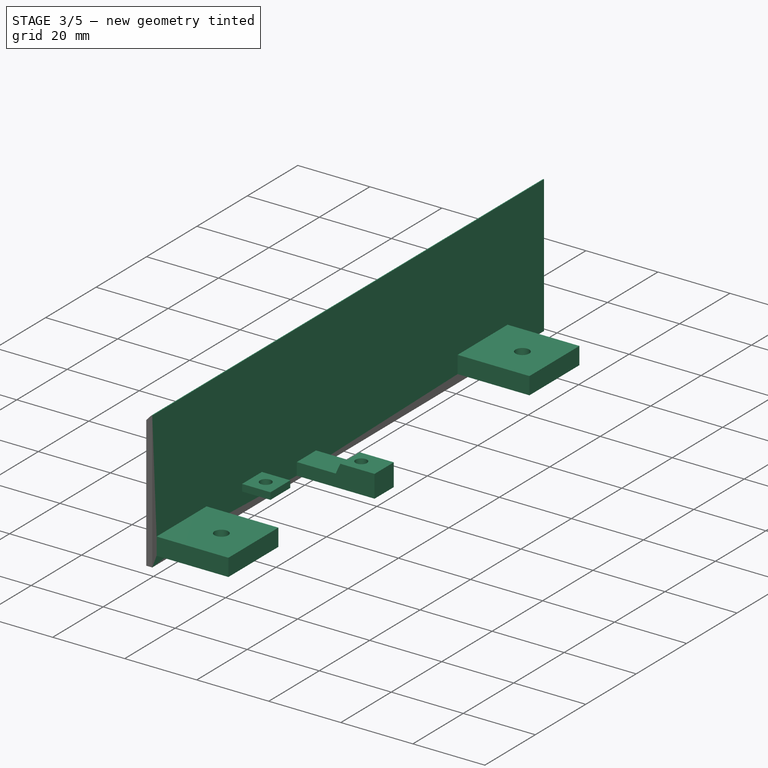
[diagram: stage 3 of 5 — iso view after this stage's code; geometry added in this stage tinted green]
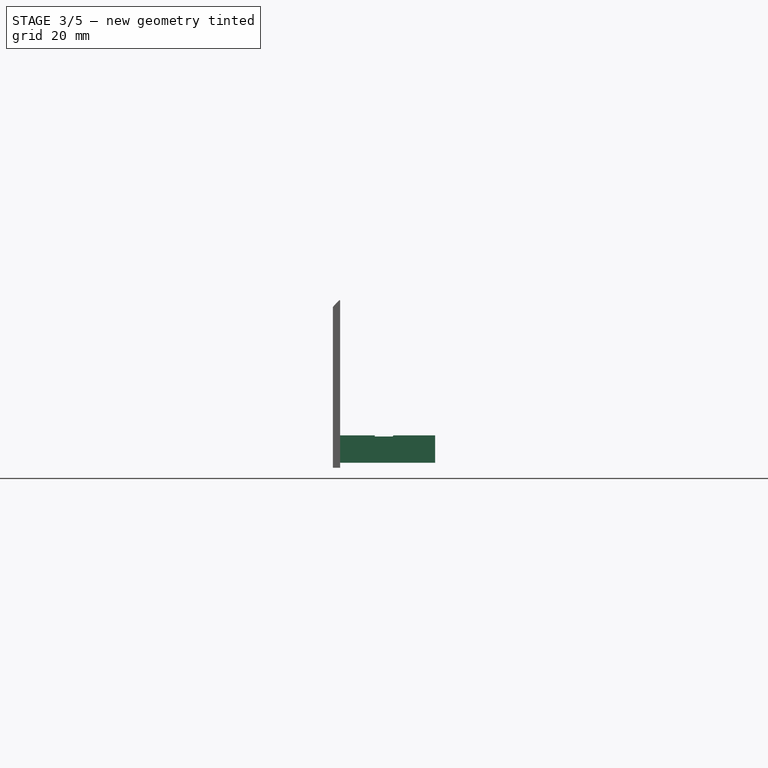
[diagram: stage 3 of 5 — front view after this stage's code; geometry added in this stage tinted green]
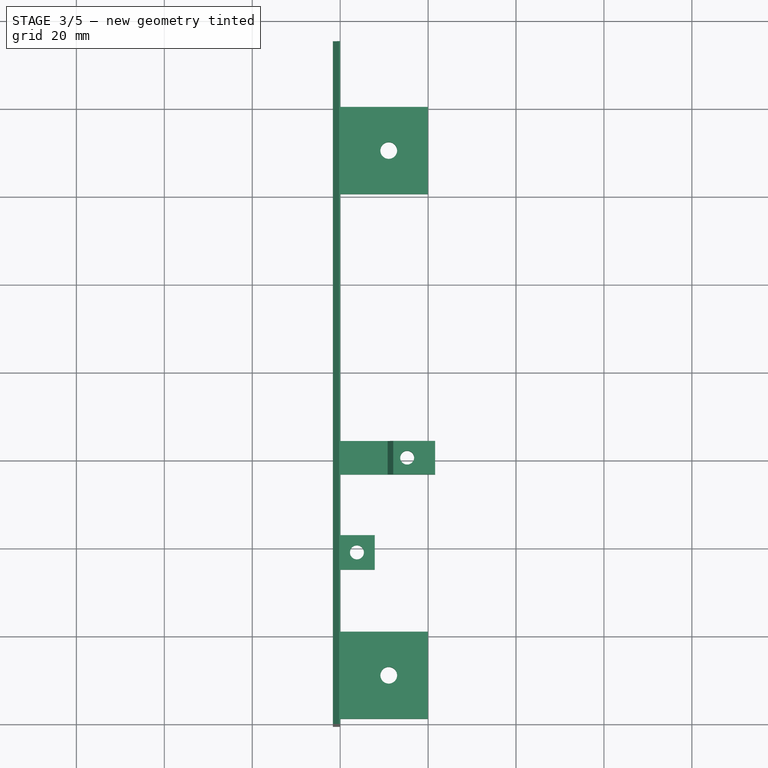
[diagram: stage 3 of 5 — top view after this stage's code; geometry added in this stage tinted green]
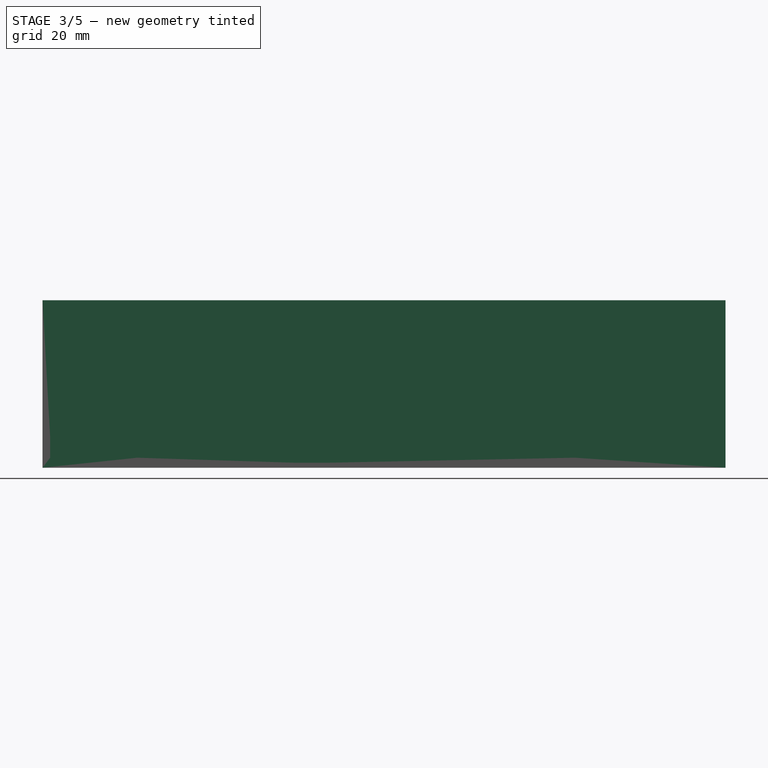
[diagram: stage 3 of 5 — right view after this stage's code; geometry added in this stage tinted green]
FEATURE [PartDesign::SubShapeBinder] Binder008
  BindCopyOnChange = 0
  BindMode = 0
  ClaimChildren = false
  Context = -> Part002 [Body002.Binder008.]
  Fuse = false
  MakeFace = true
  OffsetFill = false
  OffsetIntersection = false
  OffsetJoinType = 0
  OffsetOpenResult = false
  PartialLoad = false
  Refine = true
  Relative = true
  Support = -> [Part[Body.]]
  _Version = 2
FEATURE [PartDesign::SubShapeBinder] Binder009
  BindCopyOnChange = 0
  BindMode = 0
  ClaimChildren = false
  Context = -> Part002 [Body002.Binder009.]
  Fuse = false
  MakeFace = true
  OffsetFill = false
  OffsetIntersection = false
  OffsetJoinType = 0
  OffsetOpenResult = false
  PartialLoad = false
  Refine = true
  Relative = true
  Support = -> [Link[PCB_Assembly.]]
  _Version = 2
FEATURE [PartDesign::Plane] DatumPlane007  label="PCB back plane"
  AttachmentSupport = -> [Binder009]
  Length = 178.713
  MapMode = 5
  Placement = pos=(0,0,0) rot=(0.57735,-0.57735,-0.57735;2.0944rad)
  ResizeMode = 0
  Width = 74.6328
FEATURE [Sketcher::SketchObject] Sketch031
  ArcFitTolerance = 1e-06
  AttachmentSupport = -> [DatumPlane007]
  FullyConstrained = true
  MakeInternals = false
  MapMode = 5
  Placement = pos=(0,0,0) rot=(0.57735,-0.57735,-0.57735;2.0944rad)
  sketch-geometry (4):
    g0: LineSegment StartX=-134.814 StartY=30.734 StartZ=0 EndX=-134.814 EndY=-7.366 EndZ=0
    g1: LineSegment StartX=-134.814 StartY=-7.366 StartZ=0 EndX=20.514 EndY=-7.366 EndZ=0
    g2: LineSegment StartX=20.514 StartY=-7.366 StartZ=0 EndX=20.514 EndY=30.734 EndZ=0
    g3: LineSegment StartX=20.514 StartY=30.734 StartZ=0 EndX=-134.814 EndY=30.734 EndZ=0
  constraints (12):
    c: Coincident(g0,g1)
    c: Coincident(g1,g2)
    c: Coincident(g2,g3)
    c: Coincident(g3,g0)
    c: Vertical(g0)
    c: Vertical(g2)
    c: Horizontal(g1)
    c: Horizontal(g3)
    c: DistanceX(g2,g-3) = 0.254
    c: DistanceX(g-4,g0) = 0.254
    c: DistanceY(g0,g-4) = 0.254
    c: DistanceY(g-4,g0) = 0.254
FEATURE [PartDesign::Pad] Pad010
  Direction = (-1,0,0)
  Length = 10
  Length2 = 10
  Placement = pos=(0,0,0) rot=(0.57735,-0.57735,-0.57735;2.0944rad)
  Profile = -> Sketch031
  ReferenceAxis = -> Sketch031 [N_Axis]
  Refine = true
  Suppressed = false
  Type = 3
  UpToFace = -> Binder008 [Face6]
FEATURE [PartDesign::Plane] DatumPlane008  label="PCB bottom"
  AttachmentSupport = -> [Binder009]
  Length = 67.924
  MapMode = 5
  Placement = pos=(0,0,0) rot=(1,0,0;3.14159rad)
  ResizeMode = 0
  Width = 177.719
FEATURE [Sketcher::SketchObject] Sketch032
  ArcFitTolerance = 1e-06
  AttachmentSupport = -> [DatumPlane008]
  ExternalGeometry = -> [Binder009]
  FullyConstrained = true
  MakeInternals = false
  MapMode = 5
  Placement = pos=(0,0,0) rot=(1,0,0;3.14159rad)
  sketch-geometry (6):
    g0: LineSegment StartX=0 StartY=-15.113 StartZ=0 EndX=0 EndY=-22.987 EndZ=0
    g1: LineSegment StartX=0 StartY=-22.987 StartZ=0 EndX=7.874 EndY=-22.987 EndZ=0
    g2: LineSegment StartX=7.874 StartY=-22.987 StartZ=0 EndX=7.874 EndY=-15.113 EndZ=0
    g3: Circle CenterX=3.81 CenterY=-19.05 CenterZ=0 NormalX=0 NormalY=0 NormalZ=1 AngleXU=0 Radius=1.5875
    g4: GeomPoint X=7.874 Y=-19.05 Z=0
    g5: LineSegment StartX=7.874 StartY=-15.113 StartZ=0 EndX=0 EndY=-15.113 EndZ=0
  constraints (15):
    c: Coincident(g0,g1)
    c: Coincident(g1,g2)
    c: Vertical(g0)
    c: Vertical(g2)
    c: Horizontal(g1)
    c: Diameter(g3) = 3.175
    c: DistanceY(g2,g2) = 7.874
    c: Equal(g2,g1)
    c: Symmetric(g2,g2,g4)
    c: Horizontal(g3,g4)
    c: Coincident(g5,g2)
    c: Horizontal(g5)
    c: Coincident(g5,g0)
    c: PointOnObject(g0,g-2)
    c: Coincident(g-3,g3)
FEATURE [PartDesign::Pad] Pad011
  BaseFeature = -> Pad010
  Direction = (0,0,-1)
  Length = 1.905
  Length2 = 10
  Placement = pos=(0,0,0) rot=(0.57735,-0.57735,-0.57735;2.0944rad)
  Profile = -> Sketch032
  ReferenceAxis = -> Sketch032 [N_Axis]
  Refine = true
  Suppressed = false
  Type = 0
FEATURE [Sketcher::SketchObject] Sketch033
  ArcFitTolerance = 1e-06
  AttachmentSupport = -> [DatumPlane007]
  ExternalGeometry = -> [Binder009]
  FullyConstrained = true
  MakeInternals = false
  MapMode = 5
  Placement = pos=(0,0,0) rot=(0.57735,-0.57735,-0.57735;2.0944rad)
  sketch-geometry (6):
    g0: LineSegment StartX=-44.4288 StartY=-2.794 StartZ=0 EndX=-44.4288 EndY=-6.223 EndZ=0
    g1: LineSegment StartX=-44.4288 StartY=-6.223 StartZ=0 EndX=-36.8088 EndY=-6.223 EndZ=0
    g2: LineSegment StartX=-36.8088 StartY=-6.223 StartZ=0 EndX=-36.8088 EndY=-2.794 EndZ=0
    g3: LineSegment StartX=-36.8088 StartY=-2.794 StartZ=0 EndX=-44.4288 EndY=-2.794 EndZ=0
    g4: LineSegment [constr] StartX=-44.4288 StartY=-2.794 StartZ=0 EndX=-42.2063 EndY=1.778 EndZ=0
    g5: LineSegment [constr] StartX=-39.0313 StartY=1.778 StartZ=0 EndX=-36.8088 EndY=-2.794 EndZ=0
  constraints (16):
    c: Coincident(g0,g1)
    c: Coincident(g1,g2)
    c: Coincident(g2,g3)
    c: Coincident(g3,g0)
    c: Vertical(g0)
    c: Vertical(g2)
    c: Horizontal(g1)
    c: Horizontal(g3)
    c: DistanceX(g1,g1) = 7.62
    c: DistanceY(g2,g-1) = 2.794
    c: DistanceY(g1,g2) = 3.429
    c: Coincident(g4,g0)
    c: Coincident(g4,g-4)
    c: Coincident(g5,g-4)
    c: Coincident(g5,g2)
    c: Equal(g4,g5)
FEATURE [PartDesign::Pad] Pad012
  BaseFeature = -> Pad011
  Direction = (-1,0,0)
  Length = 21.59
  Length2 = 10
  Placement = pos=(0,0,0) rot=(0.57735,-0.57735,-0.57735;2.0944rad)
  Profile = -> Sketch033
  ReferenceAxis = -> Sketch033 [N_Axis]
  Refine = true
  Reversed = true
  Suppressed = false
  Type = 0
FEATURE [Sketcher::SketchObject] Sketch035
  ArcFitTolerance = 1e-06
  AttachmentSupport = -> [Pad012]
  ExternalGeometry = -> [Binder009]
  FullyConstrained = true
  MakeInternals = false
  MapMode = 5
  Placement = pos=(-2e-16,0,-2.794) rot=(0,0,1;1.5708rad)
  sketch-geometry (1):
    g0: Circle CenterX=40.6188 CenterY=-15.24 CenterZ=0 NormalX=0 NormalY=0 NormalZ=1 AngleXU=0 Radius=1.5875
  constraints (2):
    c: Coincident(g0,g-3)
    c: Equal(g0,g-3)
FEATURE [PartDesign::Pocket] Pocket010
  BaseFeature = -> Pad012
  Direction = (0,0,-1)
  Length = 5
  Length2 = 5
  Placement = pos=(0,0,0) rot=(0.57735,-0.57735,-0.57735;2.0944rad)
  Profile = -> Sketch035
  ReferenceAxis = -> Sketch035 [N_Axis]
  Refine = true
  Suppressed = false
  Type = 1
FEATURE [PartDesign::Plane] DatumPlane009  label="clear PCB bottom connections"
  AttachmentSupport = -> [Pocket010]
  Length = 177.719
  MapMode = 5
  Placement = pos=(-2e-16,0,-2.794) rot=(0,0,1;1.5708rad)
  ResizeMode = 0
  Width = 67.924
FEATURE [PartDesign::Plane] DatumPlane010  label="boss to PCB bottom mount"
  AttachmentSupport = -> [Pocket010]
  Length = 66.3167
  MapMode = 5
  Placement = pos=(0,44.4288,-2.7e-15) rot=(0.57735,-0.57735,-0.57735;4.18879rad)
  ResizeMode = 0
  Width = 60.6016
FEATURE [Sketcher::SketchObject] Sketch036
  ArcFitTolerance = 1e-06
  AttachmentSupport = -> [DatumPlane010]
  ExternalGeometry = -> [Binder009,Pocket010]
  FullyConstrained = false
  MakeInternals = false
  MapMode = 5
  Placement = pos=(0,44.4288,-2.7e-15) rot=(0.57735,-0.57735,-0.57735;4.18879rad)
  sketch-geometry (4):
    g0: LineSegment StartX=2.794 StartY=-21.59 StartZ=0 EndX=-2.7e-15 EndY=-21.59 EndZ=0
    g1: LineSegment StartX=-2.7e-15 StartY=-21.59 StartZ=0 EndX=0 EndY=-12.0856 EndZ=0
    g2: LineSegment StartX=0 StartY=-12.0856 StartZ=0 EndX=2.794 EndY=-10.795 EndZ=0
    g3: LineSegment StartX=2.794 StartY=-10.795 StartZ=0 EndX=2.794 EndY=-21.59 EndZ=0
  constraints (9):
    c: Coincident(g0,g-4)
    c: PointOnObject(g0,g-3)
    c: Horizontal(g0)
    c: Coincident(g1,g0)
    c: PointOnObject(g1,g-3)
    c: Coincident(g2,g1)
    c: Symmetric(g-4,g-4,g2)
    c: Coincident(g3,g2)
    c: Coincident(g3,g0)
FEATURE [PartDesign::Pad] Pad013
  BaseFeature = -> Pocket010
  Direction = (0,1,0)
  Length = 10
  Length2 = 10
  Placement = pos=(0,0,0) rot=(0.57735,-0.57735,-0.57735;2.0944rad)
  Profile = -> Sketch036
  ReferenceAxis = -> Sketch036 [N_Axis]
  Refine = true
  Suppressed = false
  Type = 3
  UpToFace = -> Pocket010 [Face8]
FEATURE [Sketcher::SketchObject] Sketch037
  ArcFitTolerance = 1e-06
  AttachmentSupport = -> [DatumPlane009]
  ExternalGeometry = -> [Pad013]
  FullyConstrained = true
  MakeInternals = false
  MapMode = 5
  Placement = pos=(-2e-16,0,-2.794) rot=(0,0,1;1.5708rad)
  sketch-geometry (1):
    g0: Circle CenterX=40.6188 CenterY=-15.24 CenterZ=0 NormalX=0 NormalY=0 NormalZ=1 AngleXU=0 Radius=1.5875
  constraints (2):
    c: Coincident(g0,g-3)
    c: Equal(g0,g-3)
FEATURE [PartDesign::Pocket] Pocket011
  BaseFeature = -> Pad013
  Direction = (0,0,-1)
  Length = 5
  Length2 = 5
  Midplane = true
  Placement = pos=(0,0,0) rot=(0.57735,-0.57735,-0.57735;2.0944rad)
  Profile = -> Sketch037
  ReferenceAxis = -> Sketch037 [N_Axis]
  Refine = true
  Suppressed = false
  Type = 1
FEATURE [PartDesign::Plane] DatumPlane014  label="sub panel boss interface"
  AttachmentSupport = -> [Binder008]
  Length = 67.924
  MapMode = 5
  Placement = pos=(1.71e-14,-1.1e-15,-5.08) rot=(0,0,1;0rad)
  ResizeMode = 0
  Width = 177.719
FEATURE [Sketcher::SketchObject] Sketch042
  ArcFitTolerance = 1e-06
  AttachmentSupport = -> [DatumPlane014]
  ExternalGeometry = -> [Pocket011]
  FullyConstrained = true
  MakeInternals = false
  MapMode = 5
  Placement = pos=(1.71e-14,-1.1e-15,-5.08) rot=(0,0,1;0rad)
  sketch-geometry (12):
    g0: Circle CenterX=11.049 CenterY=110.49 CenterZ=0 NormalX=0 NormalY=0 NormalZ=1 AngleXU=0 Radius=1.905
    g1: Circle CenterX=11.049 CenterY=-8.89 CenterZ=0 NormalX=0 NormalY=0 NormalZ=1 AngleXU=0 Radius=1.905
    g2: LineSegment StartX=-1.651 StartY=120.396 StartZ=0 EndX=-1.651 EndY=100.584 EndZ=0
    g3: LineSegment StartX=-1.651 StartY=100.584 StartZ=0 EndX=19.939 EndY=100.584 EndZ=0
    g4: LineSegment StartX=19.939 StartY=100.584 StartZ=0 EndX=19.939 EndY=120.396 EndZ=0
    g5: LineSegment StartX=19.939 StartY=120.396 StartZ=0 EndX=-1.651 EndY=120.396 EndZ=0
    g6: LineSegment StartX=19.939 StartY=-18.796 StartZ=0 EndX=19.939 EndY=1.016 EndZ=0
    g7: LineSegment StartX=19.939 StartY=1.016 StartZ=0 EndX=-1.651 EndY=1.016 EndZ=0
    g8: LineSegment StartX=-1.651 StartY=1.016 StartZ=0 EndX=-1.651 EndY=-18.796 EndZ=0
    g9: LineSegment StartX=-1.651 StartY=-18.796 StartZ=0 EndX=19.939 EndY=-18.796 EndZ=0
    g10: GeomPoint X=19.939 Y=110.49 Z=0
    g11: GeomPoint X=19.939 Y=-8.89 Z=0
  constraints (30):
    c: Coincident(g0,g-3)
    c: Equal(g0,g-3)
    c: Coincident(g1,g-8)
    c: Equal(g1,g-8)
    c: Coincident(g2,g3)
    c: Coincident(g3,g4)
    c: Coincident(g4,g5)
    c: Coincident(g5,g2)
    c: Vertical(g2)
    c: Vertical(g4)
    c: Horizontal(g3)
    c: Horizontal(g5)
    c: Coincident(g6,g7)
    c: Coincident(g7,g8)
    c: Coincident(g8,g9)
    c: Coincident(g9,g6)
    c: Vertical(g6)
    c: Vertical(g8)
    c: Horizontal(g7)
    c: Horizontal(g9)
    c: Symmetric(g4,g4,g10)
    c: Symmetric(g6,g6,g11)
    c: Horizontal(g1,g11)
    c: Horizontal(g10,g0)
    c: Equal(g4,g6)
    c: Vertical(g-9,g2)
    c: Vertical(g-9,g7)
    c: DistanceX(g-5,g4) = 2.54
    c: Equal(g3,g7)
    c: DistanceY(g6,g-6) = 3.556
FEATURE [PartDesign::Pad] Pad016
  BaseFeature = -> Pocket011
  Direction = (-3.4e-15,0,1)
  Length = 4.826
  Length2 = 10
  Placement = pos=(0,0,0) rot=(0.57735,-0.57735,-0.57735;2.0944rad)
  Profile = -> Sketch042
  ReferenceAxis = -> Sketch042 [N_Axis]
  Refine = true
  Suppressed = false
  Type = 0
FEATURE [PartDesign::Plane] DatumPlane022  label="lid top001"
  AttachmentSupport = -> [Binder008]
  Length = 181.716
  MapMode = 5
  Placement = pos=(-15.4593,8.3e-15,14.4583) rot=(0.369852,-0.369852,-0.852302;1.72994rad)
  ResizeMode = 0
  Width = 96.7815
FEATURE [Sketcher::SketchObject] Sketch051
  ArcFitTolerance = 1e-06
  AttachmentSupport = -> [DatumPlane022]
  FullyConstrained = false
  MakeInternals = false
  MapMode = 5
  Placement = pos=(-15.4593,8.3e-15,14.4583) rot=(0.369852,-0.369852,-0.852302;1.72994rad)
  sketch-geometry (4):
    g0: LineSegment StartX=-148.189 StartY=30.2491 StartZ=0 EndX=-148.189 EndY=11.5316 EndZ=0
    g1: LineSegment StartX=-148.189 StartY=11.5316 StartZ=0 EndX=46.1544 EndY=11.5316 EndZ=0
    g2: LineSegment StartX=46.1544 StartY=11.5316 StartZ=0 EndX=46.1544 EndY=30.2491 EndZ=0
    g3: LineSegment StartX=46.1544 StartY=30.2491 StartZ=0 EndX=-148.189 EndY=30.2491 EndZ=0
  constraints (8):
    c: Coincident(g0,g1)
    c: Coincident(g1,g2)
    c: Coincident(g2,g3)
    c: Coincident(g3,g0)
    c: Vertical(g0)
    c: Vertical(g2)
    c: Horizontal(g1)
    c: Horizontal(g3)
FEATURE [PartDesign::Pocket] Pocket020
  BaseFeature = -> Pad016
  Direction = (0.730358,0,-0.683065)
  Length = 5
  Length2 = 5
  Placement = pos=(0,0,0) rot=(0.57735,-0.57735,-0.57735;2.0944rad)
  Profile = -> Sketch051
  ReferenceAxis = -> Sketch051 [N_Axis]
  Refine = true
  Reversed = true
  Suppressed = false
  Type = 1
FEATURE [PartDesign::Plane] DatumPlane035  label="Front of sub panel"
  AttachmentSupport = -> [Pad001]
  Length = 190.224
  MapMode = 5
  Placement = pos=(76.55,0,0) rot=(0.57735,0.57735,0.57735;2.0944rad)
  ResizeMode = 0
  Width = 149.914
FEATURE [PartDesign::Plane] DatumPlane036  label="PCB Left"
  AttachmentSupport = -> [Binder001]
  Length = 123.815
  MapMode = 5
  Placement = pos=(0,101.6,0) rot=(0,0.707107,0.707107;3.14159rad)
  ResizeMode = 0
  Width = 144.055
FEATURE [PartDesign::Plane] DatumPlane037  label="PCB Top"
  AttachmentSupport = -> [Binder001]
  Length = 127.233
  MapMode = 5
  Placement = pos=(0,0,1.778) rot=(0,0,1;0rad)
  ResizeMode = 0
  Width = 187.783
FEATURE [Sketcher::SketchObject] Sketch082  label="PCB support sketch"
  ArcFitTolerance = 1e-06
  AttachmentSupport = -> [DatumPlane037]
  FullyConstrained = true
  MakeInternals = false
  MapMode = 5
  Placement = pos=(0,0,1.778) rot=(0,0,1;0rad)
  sketch-geometry (4):
    g0: LineSegment [constr] StartX=54.356 StartY=45.788 StartZ=0 EndX=54.356 EndY=32.698 EndZ=0
    g1: LineSegment [constr] StartX=54.356 StartY=67.623 StartZ=0 EndX=54.356 EndY=80.713 EndZ=0
    g2: LineSegment StartX=54.356 StartY=74.168 StartZ=0 EndX=60.706 EndY=74.168 EndZ=0
    g3: LineSegment StartX=54.356 StartY=39.243 StartZ=0 EndX=60.706 EndY=39.243 EndZ=0
  constraints (10):
    c: Coincident(g0,g-5)
    c: Coincident(g0,g-6)
    c: Coincident(g1,g-4)
    c: Coincident(g1,g-3)
    c: Symmetric(g1,g1,g2)
    c: Horizontal(g2)
    c: Symmetric(g0,g0,g3)
    c: Horizontal(g3)
    c: Equal(g2,g3)
    c: DistanceX(g3,g3) = 6.35
FEATURE [PartDesign::Plane] DatumPlane038  label="PCB support 1"
  AttachmentSupport = -> [Sketch082]
  Length = 123.815
  MapMode = 1
  Placement = pos=(54.356,74.168,1.778) rot=(0,0.707107,0.707107;3.14159rad)
  ResizeMode = 0
  Width = 144.055
FEATURE [PartDesign::Plane] DatumPlane039  label="PCB support 2"
  AttachmentSupport = -> [DatumPlane036,Sketch082]
  Length = 123.815
  MapMode = 53
  Placement = pos=(0,39.243,1.38e-14) rot=(0,0.707107,0.707107;3.14159rad)
  ResizeMode = 0
  Width = 144.055
FEATURE [Sketcher::SketchObject] Sketch083
  ArcFitTolerance = 1e-06
  AttachmentSupport = -> [DatumPlane038]
  ExternalGeometry = -> [Binder001]
  FullyConstrained = true
  MakeInternals = false
  MapMode = 5
  Placement = pos=(54.356,74.168,1.778) rot=(0,0.707107,0.707107;3.14159rad)
  sketch-geometry (11):
    g0: LineSegment StartX=4.826 StartY=0.508 StartZ=0 EndX=4.826 EndY=2.1082 EndZ=0
    g1: LineSegment StartX=4.826 StartY=2.1082 StartZ=0 EndX=-1.27 EndY=2.1082 EndZ=0
    g2: LineSegment StartX=-1.27 StartY=2.1082 StartZ=0 EndX=-14.8082 EndY=-11.43 EndZ=0
    g3: LineSegment StartX=-14.8082 StartY=-11.43 StartZ=0 EndX=4.826 EndY=-11.43 EndZ=0
    g4: LineSegment StartX=4.826 StartY=-11.43 StartZ=0 EndX=4.826 EndY=-3.556 EndZ=0
    g5: LineSegment StartX=3.556 StartY=-2.286 StartZ=0 EndX=2.032 EndY=-2.286 EndZ=0
    g6: LineSegment StartX=2.032 StartY=-2.286 StartZ=0 EndX=2.032 EndY=0.508 EndZ=0
    g7: LineSegment StartX=2.032 StartY=0.508 StartZ=0 EndX=4.826 EndY=0.508 EndZ=0
    g8: ArcOfCircle [constr] CenterX=3.556 CenterY=-3.556 CenterZ=0 NormalX=0 NormalY=0 NormalZ=1 AngleXU=0 Radius=1.27 StartAngle=9.9e-15 EndAngle=1.5708
    g9: GeomPoint [constr] X=4.826 Y=-2.286 Z=0
    g10: LineSegment StartX=4.826 StartY=-3.556 StartZ=0 EndX=3.556 EndY=-2.286 EndZ=0
  constraints (30):
    c: Vertical(g0)
    c: Coincident(g1,g0)
    c: Coincident(g2,g1)
    c: PointOnObject(g2,g-5)
    c: Coincident(g3,g2)
    c: Coincident(g4,g3)
    c: Vertical(g4)
    c: Horizontal(g5)
    c: Coincident(g6,g5)
    c: Vertical(g6)
    c: Coincident(g7,g6)
    c: Coincident(g7,g0)
    c: Horizontal(g7)
    c: Horizontal(g1)
    c: DistanceY(g9,g-3) = 0.508
    c: DistanceY(g-3,g0) = 0.508
    c: DistanceX(g5,g-3) = 1.524
    c: Vertical(g9,g0)
    c: DistanceY(g0,g0) = 1.6002
    c: Angle(g3,g2) = 0.785398
    c: PointOnObject(g3,g-5)
    c: DistanceX(g1,g6) = 3.302
    c: PointOnObject(g9,g4)
    c: PointOnObject(g9,g5)
    c: Tangent(g4,g8) = -1.5708
    c: Tangent(g5,g8) = -1.5708
    c: Coincident(g10,g4)
    c: Coincident(g10,g5)
    c: Radius(g8) = 1.27
    c: DistanceX(g-3,g0) = 1.27
FEATURE [PartDesign::Pad] Pad024  label="PCB slide bracket 1"
  BaseFeature = -> Pocket027
  Direction = (0,1,-2e-16)
  Length = 2.54
  Length2 = 10
  Midplane = true
  Profile = -> Sketch083
  ReferenceAxis = -> Sketch083 [N_Axis]
  Refine = true
  Suppressed = false
  Type = 0
FEATURE [Sketcher::SketchObject] Sketch084
  ArcFitTolerance = 1e-06
  AttachmentSupport = -> [DatumPlane039]
  ExternalGeometry = -> [Sketch083]
  FullyConstrained = true
  MakeInternals = false
  MapMode = 5
  Placement = pos=(0,39.243,1.38e-14) rot=(0,0.707107,0.707107;3.14159rad)
  sketch-geometry (9):
    g0: LineSegment StartX=-69.1642 StartY=-9.652 StartZ=0 EndX=-49.53 EndY=-9.652 EndZ=0
    g1: LineSegment StartX=-49.53 StartY=-9.652 StartZ=0 EndX=-49.53 EndY=-1.778 EndZ=0
    g2: LineSegment StartX=-49.53 StartY=-1.778 StartZ=0 EndX=-50.8 EndY=-0.508 EndZ=0
    g3: LineSegment StartX=-50.8 StartY=-0.508 StartZ=0 EndX=-52.324 EndY=-0.508 EndZ=0
    g4: LineSegment StartX=-52.324 StartY=-0.508 StartZ=0 EndX=-52.324 EndY=2.286 EndZ=0
    g5: LineSegment StartX=-52.324 StartY=2.286 StartZ=0 EndX=-49.53 EndY=2.286 EndZ=0
    g6: LineSegment StartX=-49.53 StartY=2.286 StartZ=0 EndX=-49.53 EndY=3.8862 EndZ=0
    g7: LineSegment StartX=-49.53 StartY=3.8862 StartZ=0 EndX=-55.626 EndY=3.8862 EndZ=0
    g8: LineSegment StartX=-55.626 StartY=3.8862 StartZ=0 EndX=-69.1642 EndY=-9.652 EndZ=0
  constraints (18):
    c: Coincident(g0,g-11)
    c: Coincident(g0,g-3)
    c: Coincident(g1,g0)
    c: Coincident(g1,g-4)
    c: Coincident(g2,g1)
    c: Coincident(g2,g-5)
    c: Coincident(g3,g2)
    c: Coincident(g3,g-6)
    c: Coincident(g4,g3)
    c: Coincident(g4,g-7)
    c: Coincident(g5,g4)
    c: Coincident(g5,g-8)
    c: Coincident(g6,g5)
    c: Coincident(g6,g-9)
    c: Coincident(g7,g6)
    c: Coincident(g7,g-10)
    c: Coincident(g8,g7)
    c: Coincident(g8,g0)
FEATURE [PartDesign::Pad] Pad025  label="PCB slide bracket 2"
  BaseFeature = -> Pad024
  Direction = (0,1,-2e-16)
  Length = 2.54
  Length2 = 10
  Midplane = true
  Profile = -> Sketch084
  ReferenceAxis = -> Sketch084 [N_Axis]
  Refine = true
  Suppressed = false
  Type = 0
FEATURE [PartDesign::SubShapeBinder] Binder015
  BindCopyOnChange = 0
  BindMode = 0
  ClaimChildren = false
  Context = -> Part003 [Body003.Binder015.]
  Fuse = false
  MakeFace = true
  OffsetFill = false
  OffsetIntersection = false
  OffsetJoinType = 0
  OffsetOpenResult = false
  PartialLoad = false
  Refine = true
  Relative = true
  Support = -> [Link[PCB_Assembly.]]
  _Version = 2
FEATURE [Sketcher::SketchObject] Sketch102
  ArcFitTolerance = 1e-06
  AttachmentSupport = -> [DatumPlane035]
  ExternalGeometry = -> [Binder003]
  FullyConstrained = true
  MakeInternals = false
  MapMode = 5
  Placement = pos=(76.55,0,0) rot=(0.57735,0.57735,0.57735;2.0944rad)
  sketch-geometry (6):
    g0: LineSegment StartX=134.9 StartY=17.545 StartZ=0 EndX=119.1 EndY=17.545 EndZ=0
    g1: LineSegment StartX=119.1 StartY=17.545 StartZ=0 EndX=119.1 EndY=-2.305 EndZ=0
    g2: LineSegment StartX=119.1 StartY=-2.305 StartZ=0 EndX=134.9 EndY=-2.305 EndZ=0
    g3: LineSegment StartX=134.9 StartY=-2.305 StartZ=0 EndX=134.9 EndY=17.545 EndZ=0
    g4: Circle CenterX=-6.858 CenterY=7.62 CenterZ=0 NormalX=0 NormalY=0 NormalZ=1 AngleXU=0 Radius=8.885
    g5: LineSegment [constr] StartX=-6.858 StartY=15.87 StartZ=0 EndX=-6.858 EndY=16.505 EndZ=0
  constraints (16):
    c: Coincident(g0,g1)
    c: Coincident(g1,g2)
    c: Coincident(g2,g3)
    c: Coincident(g3,g0)
    c: Horizontal(g0)
    c: Horizontal(g2)
    c: Vertical(g1)
    c: Vertical(g3)
    c: Coincident(g0,g-3)
    c: Coincident(g1,g-4)
    c: Coincident(g4,g-5)
    c: PointOnObject(g5,g-5)
    c: PointOnObject(g5,g4)
    c: Vertical(g5)
    c: Perpendicular(g4,g5)
    c: DistanceY(g5,g5) = 0.635
FEATURE [PartDesign::Pocket] Pocket039  label="SP3T and Pot hole"
  BaseFeature = -> Pad025
  Direction = (-1,0,0)
  Length = 5
  Length2 = 5
  Profile = -> Sketch102
  ReferenceAxis = -> Sketch102 [N_Axis]
  Refine = true
  Suppressed = false
  Type = 2
FEATURE [Sketcher::SketchObject] Sketch098
  ArcFitTolerance = 1e-06
  AttachmentOffset = pos=(0,0,0) rot=(0,0,1;-1.5708rad)
  AttachmentSupport = -> [DatumPlane003]
  FullyConstrained = false
  MakeInternals = false
  MapMode = 5
  Placement = pos=(89.2009,-6.858,7.62) rot=(-0.57735,-0.57735,-0.57735;4.18879rad)
  sketch-geometry (56):
    g0: LineSegment StartX=34.337 StartY=39.6769 StartZ=0 EndX=34.337 EndY=28.5312 EndZ=0
    g1: LineSegment StartX=34.337 StartY=28.5312 StartZ=0 EndX=92.6179 EndY=28.5312 EndZ=0
    g2: LineSegment StartX=92.6179 StartY=28.5312 StartZ=0 EndX=92.6179 EndY=39.6769 EndZ=0
    g3: LineSegment StartX=92.6179 StartY=39.6769 StartZ=0 EndX=34.337 EndY=39.6769 EndZ=0
    g4: LineSegment StartX=-16.5117 StartY=16.2989 StartZ=0 EndX=-16.5117 EndY=9.46719 EndZ=0
    g5: LineSegment StartX=-16.5117 StartY=9.46719 StartZ=0 EndX=18.6442 EndY=9.46719 EndZ=0
    g6: LineSegment StartX=18.6442 StartY=9.46719 StartZ=0 EndX=18.6442 EndY=16.2989 EndZ=0
    g7: LineSegment StartX=18.6442 StartY=16.2989 StartZ=0 EndX=-16.5117 EndY=16.2989 EndZ=0
    g8: LineSegment StartX=70.3945 StartY=9.10899 StartZ=0 EndX=70.3945 EndY=15.7636 EndZ=0
    g9: LineSegment StartX=70.3945 StartY=15.7636 StartZ=0 EndX=54.3315 EndY=15.7636 EndZ=0
    g10: LineSegment StartX=54.3315 StartY=15.7636 StartZ=0 EndX=54.3315 EndY=9.10899 EndZ=0
    g11: LineSegment StartX=54.3315 StartY=9.10899 StartZ=0 EndX=70.3945 EndY=9.10899 EndZ=0
    g12: LineSegment StartX=70.5306 StartY=-3.48206 StartZ=0 EndX=70.5306 EndY=3.24324 EndZ=0
    g13: LineSegment StartX=70.5306 StartY=3.24324 StartZ=0 EndX=43.588 EndY=3.24324 EndZ=0
    g14: LineSegment StartX=43.588 StartY=3.24324 StartZ=0 EndX=43.588 EndY=-3.41135 EndZ=0
    g15: LineSegment StartX=43.588 StartY=-3.41135 StartZ=0 EndX=70.5306 EndY=-3.48206 EndZ=0
    g16: LineSegment StartX=70.6158 StartY=-15.578 StartZ=0 EndX=70.6158 EndY=-8.92341 EndZ=0
    g17: LineSegment StartX=70.6158 StartY=-8.92341 StartZ=0 EndX=48.0731 EndY=-8.92341 EndZ=0
    g18: LineSegment StartX=48.0731 StartY=-8.92341 StartZ=0 EndX=48.0731 EndY=-15.578 EndZ=0
    g19: LineSegment StartX=48.0731 StartY=-15.578 StartZ=0 EndX=70.6158 EndY=-15.578 EndZ=0
    g20: LineSegment StartX=106.917 StartY=-16.0839 StartZ=0 EndX=106.917 EndY=-8.92341 EndZ=0
    g21: LineSegment StartX=106.917 StartY=-8.92341 StartZ=0 EndX=86.04 EndY=-8.92341 EndZ=0
    g22: LineSegment StartX=86.04 StartY=-8.92341 StartZ=0 EndX=86.04 EndY=-15.8972 EndZ=0
    g23: LineSegment StartX=86.04 StartY=-15.8972 StartZ=0 EndX=106.917 EndY=-16.0839 EndZ=0
    g24: LineSegment StartX=106.662 StartY=-3.57688 StartZ=0 EndX=106.662 EndY=3.8295 EndZ=0
    g25: LineSegment StartX=106.662 StartY=3.8295 StartZ=0 EndX=86.7704 EndY=3.8295 EndZ=0
    g26: LineSegment StartX=86.7704 StartY=3.8295 StartZ=0 EndX=86.7704 EndY=-3.52468 EndZ=0
    g27: LineSegment StartX=86.7704 StartY=-3.52468 StartZ=0 EndX=106.662 EndY=-3.57688 EndZ=0
    g28: LineSegment StartX=104.62 StartY=8.67487 StartZ=0 EndX=104.62 EndY=15.7636 EndZ=0
    g29: LineSegment StartX=104.62 StartY=15.7636 StartZ=0 EndX=86.5616 EndY=15.7636 EndZ=0
    g30: LineSegment StartX=86.5616 StartY=15.7636 StartZ=0 EndX=86.5616 EndY=8.61173 EndZ=0
    g31: LineSegment StartX=86.5616 StartY=8.61173 StartZ=0 EndX=104.62 EndY=8.67487 EndZ=0
    g32: LineSegment StartX=126.749 StartY=-6.95695 StartZ=0 EndX=126.749 EndY=8.37577 EndZ=0
    g33: LineSegment StartX=126.749 StartY=8.37577 StartZ=0 EndX=110.79 EndY=8.37577 EndZ=0
    g34: LineSegment StartX=110.79 StartY=8.37577 StartZ=0 EndX=110.79 EndY=-6.95695 EndZ=0
    g35: LineSegment StartX=110.79 StartY=-6.95695 StartZ=0 EndX=126.749 EndY=-6.95695 EndZ=0
    g36: LineSegment StartX=146.045 StartY=10.7748 StartZ=0 EndX=146.045 EndY=18.389 EndZ=0
    g37: LineSegment StartX=146.045 StartY=18.389 StartZ=0 EndX=126.018 EndY=18.389 EndZ=0
    g38: LineSegment StartX=126.018 StartY=18.389 StartZ=0 EndX=126.018 EndY=10.7748 EndZ=0
    g39: LineSegment StartX=126.018 StartY=10.7748 StartZ=0 EndX=146.045 EndY=10.7748 EndZ=0
    g40: LineSegment StartX=145.002 StartY=-18.3261 StartZ=0 EndX=145.002 EndY=-10.9205 EndZ=0
    g41: LineSegment StartX=145.002 StartY=-10.9205 StartZ=0 EndX=113.398 EndY=-10.9205 EndZ=0
    g42: LineSegment StartX=113.398 StartY=-10.9205 StartZ=0 EndX=113.398 EndY=-18.3261 EndZ=0
    g43: LineSegment StartX=113.398 StartY=-18.3261 StartZ=0 EndX=145.002 EndY=-18.3261 EndZ=0
    g44: LineSegment StartX=38.3957 StartY=-12.5921 StartZ=0 EndX=38.3957 EndY=-5.93753 EndZ=0
    g45: LineSegment StartX=38.3957 StartY=-5.93753 StartZ=0 EndX=22.5613 EndY=-5.93753 EndZ=0
    g46: LineSegment StartX=22.5613 StartY=-5.93753 StartZ=0 EndX=22.5613 EndY=-12.5921 EndZ=0
    g47: LineSegment StartX=22.5613 StartY=-12.5921 StartZ=0 EndX=38.3957 EndY=-12.5921 EndZ=0
    g48: LineSegment StartX=41.1884 StartY=-0.462203 StartZ=0 EndX=41.1884 EndY=6.19239 EndZ=0
    g49: LineSegment StartX=41.1884 StartY=6.19239 StartZ=0 EndX=22.1418 EndY=6.19239 EndZ=0
    g50: LineSegment StartX=22.1418 StartY=6.19239 StartZ=0 EndX=22.1418 EndY=-0.462203 EndZ=0
    g51: LineSegment StartX=22.1418 StartY=-0.462203 StartZ=0 EndX=41.1884 EndY=-0.462203 EndZ=0
    g52: LineSegment StartX=45.9864 StartY=11.7554 StartZ=0 EndX=45.9864 EndY=18.41 EndZ=0
    g53: LineSegment StartX=45.9864 StartY=18.41 StartZ=0 EndX=22.0718 EndY=18.41 EndZ=0
    g54: LineSegment StartX=22.0718 StartY=18.41 StartZ=0 EndX=22.0718 EndY=11.7554 EndZ=0
    g55: LineSegment StartX=22.0718 StartY=11.7554 StartZ=0 EndX=45.9864 EndY=11.7554 EndZ=0
  constraints (113):
    c: Coincident(g0,g1)
    c: Coincident(g1,g2)
    c: Coincident(g2,g3)
    c: Coincident(g3,g0)
    c: Vertical(g0)
    c: Vertical(g2)
    c: Horizontal(g1)
    c: Horizontal(g3)
    c: Coincident(g4,g5)
    c: Coincident(g5,g6)
    c: Coincident(g6,g7)
    c: Coincident(g7,g4)
    c: Vertical(g4)
    c: Vertical(g6)
    c: Horizontal(g5)
    c: Horizontal(g7)
    c: Coincident(g8,g9)
    c: Coincident(g9,g10)
    c: Coincident(g10,g11)
    c: Coincident(g11,g8)
    c: Vertical(g8)
    c: Vertical(g10)
    c: Coincident(g12,g13)
    c: Coincident(g13,g14)
    c: Coincident(g14,g15)
    c: Coincident(g15,g12)
    c: Vertical(g12)
    c: Vertical(g14)
    c: Coincident(g16,g17)
    c: Coincident(g17,g18)
    c: Coincident(g18,g19)
    c: Coincident(g19,g16)
    c: Vertical(g16)
    c: Vertical(g18)
    c: Coincident(g20,g21)
    c: Coincident(g21,g22)
    c: Coincident(g22,g23)
    c: Coincident(g23,g20)
    c: Vertical(g20)
    c: Vertical(g22)
    c: Coincident(g24,g25)
    c: Coincident(g25,g26)
    c: Coincident(g26,g27)
    c: Coincident(g27,g24)
    c: Vertical(g24)
    c: Vertical(g26)
    c: Coincident(g28,g29)
    c: Coincident(g29,g30)
    c: Coincident(g30,g31)
    c: Coincident(g31,g28)
    c: Vertical(g28)
    c: Vertical(g30)
    c: Coincident(g32,g33)
    c: Coincident(g33,g34)
    c: Coincident(g34,g35)
    c: Coincident(g35,g32)
    c: Vertical(g32)
    c: Vertical(g34)
    c: Horizontal(g33)
    c: Horizontal(g35)
    c: Coincident(g36,g37)
    c: Coincident(g37,g38)
    c: Coincident(g38,g39)
    c: Coincident(g39,g36)
    c: Vertical(g36)
    c: Vertical(g38)
    c: Horizontal(g37)
    c: Horizontal(g39)
    c: Coincident(g40,g41)
    c: Coincident(g41,g42)
    c: Coincident(g42,g43)
    c: Coincident(g43,g40)
    c: Vertical(g40)
    c: Vertical(g42)
    c: Horizontal(g41)
    c: Horizontal(g43)
    c: Tangent(g29,g9)
    c: Tangent(g27,g15)
    c: Tangent(g21,g17)
    c: Equal(g18,g14)
    c: Equal(g14,g10)
    c: Coincident(g44,g45)
    c: Coincident(g45,g46)
    c: Coincident(g46,g47)
    c: Coincident(g47,g44)
    c: Vertical(g44)
    c: Vertical(g46)
    c: Horizontal(g45)
    c: Horizontal(g47)
    c: Coincident(g48,g49)
    c: Coincident(g49,g50)
    c: Coincident(g50,g51)
    c: Coincident(g51,g48)
    c: Vertical(g48)
    c: Vertical(g50)
    c: Horizontal(g49)
    c: Horizontal(g51)
    c: Coincident(g52,g53)
    c: Coincident(g53,g54)
    c: Coincident(g54,g55)
    c: Coincident(g55,g52)
    c: Vertical(g52)
    c: Vertical(g54)
    c: Horizontal(g53)
    c: Horizontal(g55)
    c: Equal(g54,g50)
    c: Equal(g54,g46)
    c: Equal(g50,g14)
    c: Horizontal(g13)
    c: Horizontal(g17)
    c: Horizontal(g11)
    c: Horizontal(g9)
    c: Horizontal(g19)
FEATURE [Sketcher::SketchObject] Sketch104
  ArcFitTolerance = 1e-06
  AttachmentSupport = -> [DatumPlane025]
  ExternalGeometry = -> [Pocket039]
  FullyConstrained = true
  MakeInternals = false
  MapMode = 5
  Placement = pos=(74.518,0,0) rot=(0.57735,-0.57735,-0.57735;2.0944rad)
  sketch-geometry (6):
    g0: Circle CenterX=-57.15 CenterY=55.88 CenterZ=0 NormalX=0 NormalY=0 NormalZ=1 AngleXU=0 Radius=3.302
    g1: LineSegment StartX=-66.04 StartY=75.9315 StartZ=0 EndX=-66.04 EndY=18.7815 EndZ=0
    g2: LineSegment StartX=-66.04 StartY=18.7815 StartZ=0 EndX=-48.26 EndY=18.7815 EndZ=0
    g3: LineSegment StartX=-48.26 StartY=18.7815 StartZ=0 EndX=-48.26 EndY=75.9315 EndZ=0
    g4: LineSegment StartX=-48.26 StartY=75.9315 StartZ=0 EndX=-66.04 EndY=75.9315 EndZ=0
    g5: GeomPoint X=-57.15 Y=75.9315 Z=0
  constraints (15):
    c: Coincident(g0,g-3)
    c: Diameter(g0) = 6.604
    c: Coincident(g1,g2)
    c: Coincident(g2,g3)
    c: Coincident(g3,g4)
    c: Coincident(g4,g1)
    c: Vertical(g1)
    c: Vertical(g3)
    c: Horizontal(g2)
    c: Horizontal(g4)
    c: Symmetric(g4,g4,g5)
    c: Vertical(g0,g5)
    c: DistanceY(g3,g3) = 57.15
    c: DistanceX(g2,g2) = 17.78
    c: DistanceY(g3,g-4) = 3.81
FEATURE [PartDesign::Pad] Pad030  label="AA front cell boss"
  BaseFeature = -> Pocket039
  Direction = (-1,0,0)
  Length = 3.048
  Length2 = 10
  Profile = -> Sketch104
  ReferenceAxis = -> Sketch104 [N_Axis]
  Refine = true
  Suppressed = false
  Type = 0
FEATURE [PartDesign::SubShapeBinder] Binder019
  BindCopyOnChange = 0
  BindMode = 0
  ClaimChildren = false
  Context = -> Part [Body007.Binder019.]
  Fuse = false
  MakeFace = true
  OffsetFill = false
  OffsetIntersection = false
  OffsetJoinType = 0
  OffsetOpenResult = false
  PartialLoad = false
  Refine = true
  Relative = true
  Support = -> [Body]
  _Version = 2
FEATURE [PartDesign::Plane] DatumPlane058
  AttachmentSupport = -> [Pocket019]
  Length = 256.637
  MapMode = 5
  Placement = pos=(76.55,0,0) rot=(0.57735,0.57735,0.57735;2.0944rad)
  ResizeMode = 0
  Width = 207.153
FEATURE [Sketcher::SketchObject] Sketch133
  ArcFitTolerance = 1e-06
  AttachmentSupport = -> [DatumPlane058]
  FullyConstrained = false
  MakeInternals = false
  MapMode = 5
  Placement = pos=(76.55,0,0) rot=(0.57735,0.57735,0.57735;2.0944rad)
  sketch-geometry (4):
    g0: LineSegment StartX=-44.3306 StartY=119.029 StartZ=0 EndX=-44.3306 EndY=-49.7398 EndZ=0
    g1: LineSegment StartX=-44.3306 StartY=-49.7398 StartZ=0 EndX=173.922 EndY=-49.7398 EndZ=0
    g2: LineSegment StartX=173.922 StartY=-49.7398 StartZ=0 EndX=173.922 EndY=119.029 EndZ=0
    g3: LineSegment StartX=173.922 StartY=119.029 StartZ=0 EndX=-44.3306 EndY=119.029 EndZ=0
  constraints (8):
    c: Coincident(g0,g1)
    c: Coincident(g1,g2)
    c: Coincident(g2,g3)
    c: Coincident(g3,g0)
    c: Vertical(g0)
    c: Vertical(g2)
    c: Horizontal(g1)
    c: Horizontal(g3)
FEATURE [PartDesign::Pad] Pad038
  Direction = (1,0,0)
  Length = 50.8
  Length2 = 10
  Placement = pos=(76.55,0,0) rot=(0.57735,0.57735,0.57735;2.0944rad)
  Profile = -> Sketch133
  ReferenceAxis = -> Sketch133 [N_Axis]
  Refine = true
  Suppressed = false
  Type = 0
FEATURE [PartDesign::SubShapeBinder] Binder020
  BindCopyOnChange = 0
  BindMode = 0
  ClaimChildren = false
  Context = -> Part [Body.Binder020.]
  Fuse = false
  MakeFace = true
  OffsetFill = false
  OffsetIntersection = false
  OffsetJoinType = 0
  OffsetOpenResult = false
  PartialLoad = false
  Refine = true
  Relative = true
  Support = -> [Part004[Body004.Pad039.]]
  _Version = 2
FEATURE [Sketcher::SketchObject] Sketch134
  ArcFitTolerance = 1e-06
  AttachmentSupport = -> [DatumPlane025]
  ExternalGeometry = -> [Binder020]
  FullyConstrained = true
  MakeInternals = false
  MapMode = 5
  Placement = pos=(74.518,0,0) rot=(0.57735,-0.57735,-0.57735;2.0944rad)
  sketch-geometry (4):
    g0: LineSegment StartX=-101.854 StartY=24.638 StartZ=0 EndX=-101.854 EndY=-6.604 EndZ=0
    g1: LineSegment StartX=-101.854 StartY=-6.604 StartZ=0 EndX=-10.922 EndY=-6.604 EndZ=0
    g2: LineSegment StartX=-10.922 StartY=-6.604 StartZ=0 EndX=-10.922 EndY=24.638 EndZ=0
    g3: LineSegment StartX=-10.922 StartY=24.638 StartZ=0 EndX=-101.854 EndY=24.638 EndZ=0
  constraints (12):
    c: Coincident(g0,g1)
    c: Coincident(g1,g2)
    c: Coincident(g2,g3)
    c: Coincident(g3,g0)
    c: Vertical(g0)
    c: Vertical(g2)
    c: Horizontal(g1)
    c: Horizontal(g3)
    c: DistanceX(g-3,g0) = 0.254
    c: DistanceX(g2,g-3) = 0.254
    c: DistanceY(g-4,g0) = 0.254
    c: DistanceY(g0,g-3) = 0.254
FEATURE [PartDesign::Pocket] Pocket042  label="window for light pipes"
  BaseFeature = -> Pad030
  Direction = (1,0,0)
  Length = 5
  Length2 = 5
  Profile = -> Sketch134
  ReferenceAxis = -> Sketch134 [N_Axis]
  Refine = true
  Suppressed = false
  Type = 1
FEATURE [PartDesign::Body] Body004
  AllowCompound = false
  Group = -> [Binder018,Binder016,Binder002,Binder017,Sketch010,Pad037,DatumPlane047,DatumPlane059,Sketch113,DatumPlane044,Sketch111,DatumPlane048,DatumPlane045,Sketch112,DatumPlane046,Sketch003,Sketch114,DatumPlane049,Sketch115,Sketch006,AdditivePipe,DatumPlane050,Sketch008,Sketch116,Sketch011,AdditivePipe001,Sketch120,DatumPlane054,DatumPlane055,DatumPlane056,DatumPlane057,Sketch121,Sketch122,Sketch123,+27 more]
  Origin = -> Origin010
  Tip = -> Pad045
FEATURE [App::Part] Part004  label="light pipe design"
  Group = -> [Body004,Spreadsheet001,Link003]
  Origin = -> Origin009
FEATURE [PartDesign::FeatureBase] Clone
  BaseFeature = -> Body004
  Suppressed = false
FEATURE [PartDesign::Body] Body006  label="light pipes front panel"
  AllowCompound = false
  Group = -> [Clone001]
  Origin = -> Origin012
  Tip = -> Clone001
FEATURE [Part::Cut] Cut
  Base = -> Body005
  Refine = true
  Tool = -> Body007
FEATURE [Part::MultiFuse] Fusion
  Refine = true
  Shapes = -> [Body,Cut]
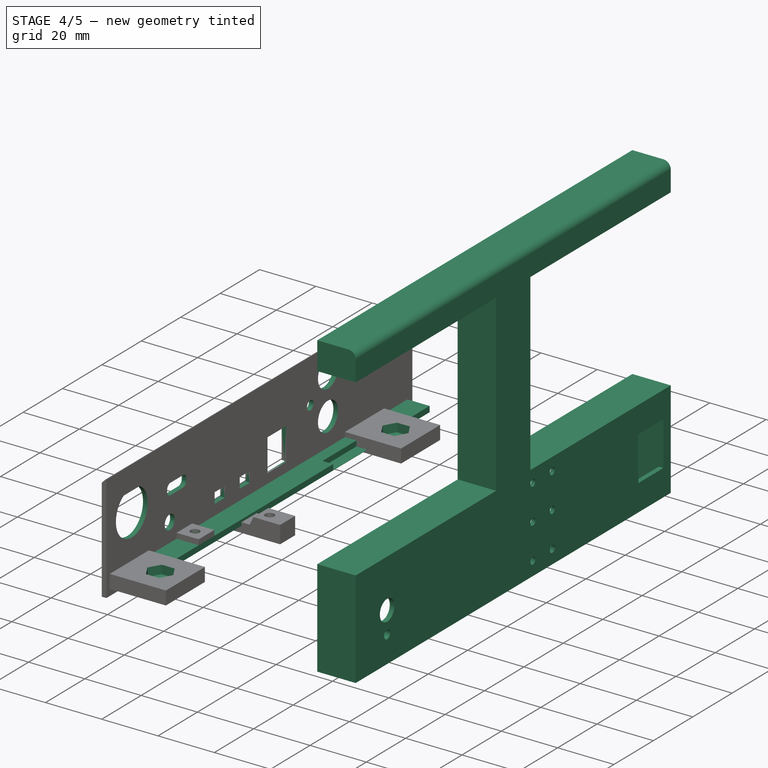
[diagram: stage 4 of 5 — iso view after this stage's code; geometry added in this stage tinted green]
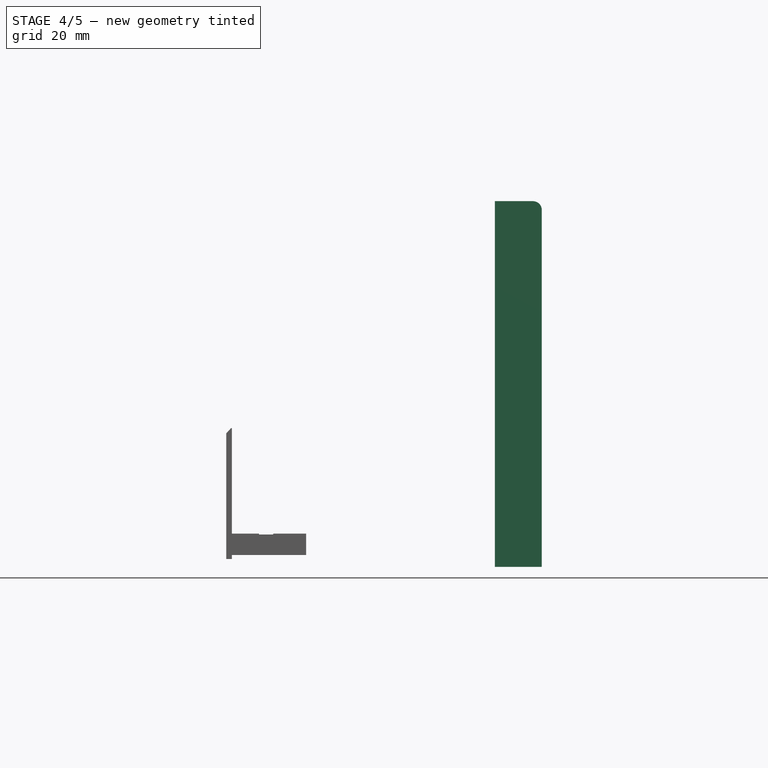
[diagram: stage 4 of 5 — front view after this stage's code; geometry added in this stage tinted green]
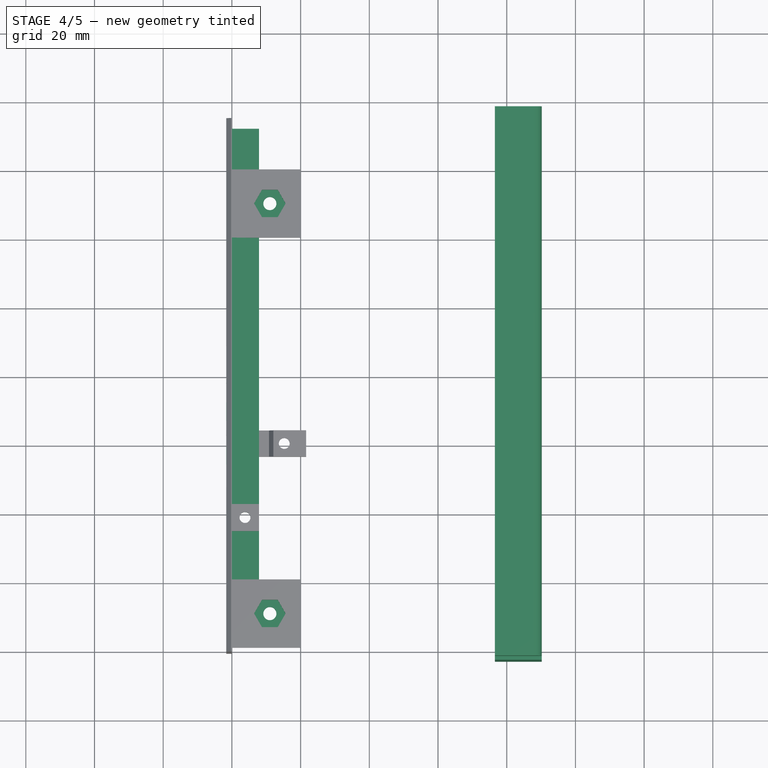
[diagram: stage 4 of 5 — top view after this stage's code; geometry added in this stage tinted green]
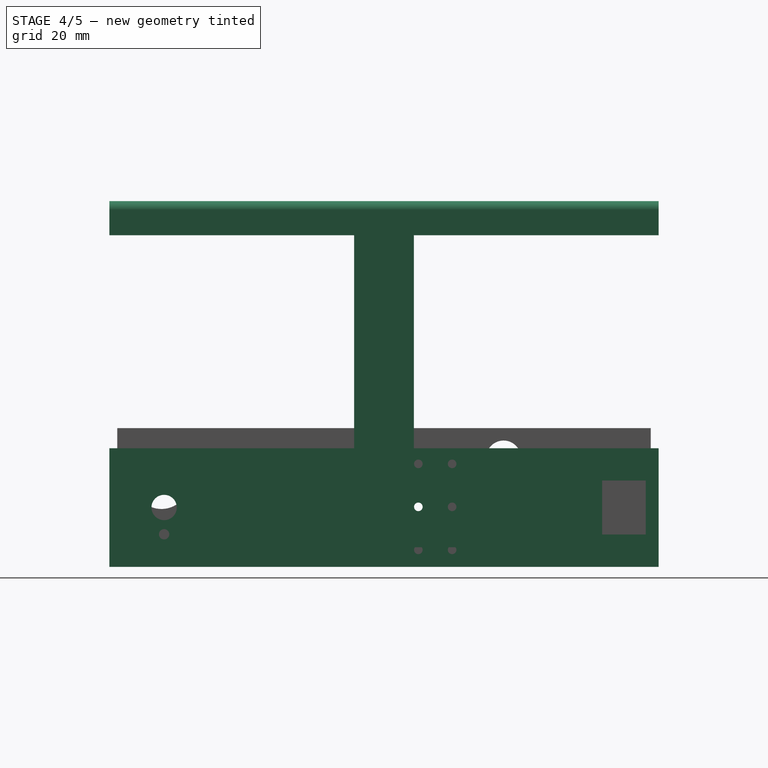
[diagram: stage 4 of 5 — right view after this stage's code; geometry added in this stage tinted green]
FEATURE [PartDesign::SubShapeBinder] Binder012  label="coupler"
  BindCopyOnChange = 0
  BindMode = 0
  ClaimChildren = false
  Context = -> Part002 [Body002.Binder012.]
  Fuse = false
  MakeFace = true
  OffsetFill = false
  OffsetIntersection = false
  OffsetJoinType = 0
  OffsetOpenResult = false
  PartialLoad = false
  Refine = true
  Relative = true
  Support = -> [Link002]
  _Version = 2
FEATURE [Sketcher::SketchObject] Sketch052
  ArcFitTolerance = 1e-06
  AttachmentSupport = -> [Pocket020]
  ExternalGeometry = -> [Binder009,Binder012]
  FullyConstrained = false
  MakeInternals = false
  MapMode = 5
  Placement = pos=(-1.651,0,1e-16) rot=(0.57735,-0.57735,-0.57735;2.0944rad)
  sketch-geometry (36):
    g0: LineSegment StartX=-39.664 StartY=5.65043 StartZ=0 EndX=-39.664 EndY=1.89949 EndZ=0
    g1: LineSegment StartX=-39.664 StartY=1.89949 StartZ=0 EndX=-34.448 EndY=1.89949 EndZ=0
    g2: LineSegment StartX=-34.448 StartY=1.89949 StartZ=0 EndX=-34.448 EndY=5.65043 EndZ=0
    g3: LineSegment StartX=-34.448 StartY=5.65043 StartZ=0 EndX=-39.664 EndY=5.65043 EndZ=0
    g4: LineSegment StartX=-47.148 StartY=5.65043 StartZ=0 EndX=-52.364 EndY=5.65043 EndZ=0
    g5: LineSegment StartX=-52.364 StartY=5.65043 StartZ=0 EndX=-52.364 EndY=1.89949 EndZ=0
    g6: LineSegment StartX=-52.364 StartY=1.89949 StartZ=0 EndX=-47.148 EndY=1.89949 EndZ=0
    g7: LineSegment StartX=-47.148 StartY=1.89949 StartZ=0 EndX=-47.148 EndY=5.65043 EndZ=0
    g8: LineSegment [constr] StartX=-47.656 StartY=3.77496 StartZ=0 EndX=-47.148 EndY=3.77496 EndZ=0
    g9: LineSegment [constr] StartX=-51.856 StartY=2.40749 StartZ=0 EndX=-47.656 EndY=2.40749 EndZ=0
    g10: LineSegment [constr] StartX=-49.756 StartY=2.40749 StartZ=0 EndX=-49.756 EndY=1.89949 EndZ=0
    g11: LineSegment [constr] StartX=-34.956 StartY=3.77496 StartZ=0 EndX=-34.448 EndY=3.77496 EndZ=0
    g12: LineSegment [constr] StartX=-39.156 StartY=2.40749 StartZ=0 EndX=-34.956 EndY=2.40749 EndZ=0
    g13: LineSegment [constr] StartX=-37.056 StartY=2.40749 StartZ=0 EndX=-37.056 EndY=1.89949 EndZ=0
    g14: Circle CenterX=-91.9586 CenterY=22.028 CenterZ=0 NormalX=0 NormalY=0 NormalZ=1 AngleXU=0 Radius=5.08
    g15: Circle CenterX=-91.9586 CenterY=8.028 CenterZ=0 NormalX=0 NormalY=0 NormalZ=1 AngleXU=0 Radius=5.08
    g16: Circle CenterX=-82.9586 CenterY=15.028 CenterZ=0 NormalX=0 NormalY=0 NormalZ=1 AngleXU=0 Radius=1.651
    g17: LineSegment StartX=-70.794 StartY=13.032 StartZ=0 EndX=-70.794 EndY=1.524 EndZ=0
    g18: LineSegment StartX=-70.794 StartY=1.524 StartZ=0 EndX=-61.286 EndY=1.524 EndZ=0
    g19: LineSegment StartX=-61.286 StartY=1.524 StartZ=0 EndX=-61.286 EndY=13.032 EndZ=0
    g20: LineSegment StartX=-61.286 StartY=13.032 StartZ=0 EndX=-70.794 EndY=13.032 EndZ=0
    g21: LineSegment [constr] StartX=-70.54 StartY=12.778 StartZ=0 EndX=-61.54 EndY=12.778 EndZ=0
    g22: LineSegment [constr] StartX=-66.04 StartY=13.032 StartZ=0 EndX=-66.04 EndY=12.778 EndZ=0
    g23: LineSegment [constr] StartX=-70.54 StartY=7.278 StartZ=0 EndX=-70.794 EndY=7.278 EndZ=0
    g24: ArcOfCircle CenterX=-18.355 CenterY=15.544 CenterZ=0 NormalX=0 NormalY=0 NormalZ=1 AngleXU=0 Radius=1.7145 StartAngle=1.5708 EndAngle=3.14159
    g25: ArcOfCircle CenterX=-18.355 CenterY=14.984 CenterZ=0 NormalX=0 NormalY=0 NormalZ=1 AngleXU=0 Radius=1.7145 StartAngle=3.14159 EndAngle=4.71239
    g26: ArcOfCircle CenterX=-12.015 CenterY=15.544 CenterZ=0 NormalX=0 NormalY=0 NormalZ=1 AngleXU=0 Radius=1.7145 StartAngle=6e-16 EndAngle=1.5708
    g27: ArcOfCircle CenterX=-12.015 CenterY=14.984 CenterZ=0 NormalX=0 NormalY=0 NormalZ=1 AngleXU=0 Radius=1.7145 StartAngle=4.71239 EndAngle=6.28319
    g28: LineSegment StartX=-18.355 StartY=17.2585 StartZ=0 EndX=-12.015 EndY=17.2585 EndZ=0
    g29: LineSegment StartX=-20.0695 StartY=15.544 StartZ=0 EndX=-20.0695 EndY=14.984 EndZ=0
    g30: LineSegment StartX=-18.355 StartY=13.2695 StartZ=0 EndX=-12.015 EndY=13.2695 EndZ=0
    g31: LineSegment StartX=-10.3005 StartY=15.544 StartZ=0 EndX=-10.3005 EndY=14.984 EndZ=0
    g32: ArcOfCircle CenterX=7.62 CenterY=15.24 CenterZ=0 NormalX=0 NormalY=0 NormalZ=1 AngleXU=0 Radius=8.05 StartAngle=2.10315 EndAngle=7.32163
    g33: ArcOfCircle CenterX=-11.6417 CenterY=4.728 CenterZ=0 NormalX=0 NormalY=0 NormalZ=1 AngleXU=0 Radius=2.54 StartAngle=0.872857 EndAngle=7.15604
    g34: LineSegment StartX=3.53412 StartY=22.176 StartZ=0 EndX=11.7059 EndY=22.176 EndZ=0
    g35: LineSegment [constr] StartX=7.62 StartY=22.176 StartZ=0 EndX=7.62 EndY=7.19 EndZ=0
  constraints (88):
    c: Coincident(g32,g-13)
    c: Coincident(g33,g-10)
    c: Coincident(g0,g1)
    c: Coincident(g1,g2)
    c: Coincident(g2,g3)
    c: Coincident(g3,g0)
    c: Vertical(g0)
    c: Vertical(g2)
    c: Horizontal(g1)
    c: Horizontal(g3)
    c: Coincident(g4,g5)
    c: Coincident(g5,g6)
    c: Coincident(g6,g7)
    c: Coincident(g7,g4)
    c: Horizontal(g4)
    c: Horizontal(g6)
    c: Vertical(g5)
    c: Vertical(g7)
    c: Symmetric(g-11,g-11,g8)
    c: Symmetric(g7,g7,g8)
    c: Coincident(g9,g-12)
    c: Coincident(g9,g-11)
    c: Symmetric(g9,g9,g10)
    c: Symmetric(g6,g6,g10)
    c: Symmetric(g-8,g-8,g11)
    c: Symmetric(g2,g2,g11)
    c: Coincident(g12,g-9)
    c: Coincident(g12,g-8)
    c: Symmetric(g12,g12,g13)
    c: Symmetric(g1,g1,g13)
    c: Horizontal(g8)
    c: Horizontal(g11)
    c: Vertical(g10)
    c: Vertical(g13)
    c: Equal(g10,g8)
    c: Equal(g8,g13)
    c: Equal(g13,g11)
    c: DistanceX(g11,g11) = 0.508
    c: Coincident(g14,g-5)
    c: Coincident(g15,g-6)
    c: Equal(g15,g14)
    c: Diameter(g15) = 10.16
    c: Coincident(g16,g-7)
    c: Diameter(g16) = 3.302
    c: Coincident(g17,g18)
    c: Coincident(g18,g19)
    c: Coincident(g19,g20)
    c: Coincident(g20,g17)
    c: Vertical(g17)
    c: Vertical(g19)
    c: Horizontal(g18)
    c: Horizontal(g20)
    c: Coincident(g21,g-3)
    c: Coincident(g21,g-4)
    c: Symmetric(g20,g20,g22)
    c: Symmetric(g21,g21,g22)
    c: Symmetric(g-3,g-3,g23)
    c: Symmetric(g17,g17,g23)
    c: Horizontal(g23)
    c: Vertical(g22)
    c: Equal(g23,g22)
    c: DistanceY(g22,g22) = 0.254
    c: Coincident(g24,g-15)
    c: Coincident(g25,g-16)
    c: Coincident(g26,g-14)
    c: Coincident(g27,g-17)
    c: Equal(g26,g27)
    c: Equal(g26,g24)
    c: Equal(g24,g25)
    c: Diameter(g24) = 3.429
    c: Tangent(g24,g28) = 1.5708
    c: Tangent(g25,g30) = -1.5708
    c: Tangent(g24,g29) = -1.5708
    c: Tangent(g25,g29) = -1.5708
    c: Tangent(g27,g30) = -1.5708
    c: Tangent(g26,g28) = 1.5708
    c: Tangent(g26,g31) = 1.5708
    c: Tangent(g27,g31) = 1.5708
    c: Diameter(g32) = 16.1
    c: Diameter(g33) = 5.08
    c: Horizontal(g34)
    c: Coincident(g32,g34)
    c: Coincident(g32,g34)
    c: PointOnObject(g35,g34)
    c: PointOnObject(g35,g32)
    c: Vertical(g35)
    c: PointOnObject(g32,g35)
    c: DistanceY(g35,g35) = 14.986
FEATURE [PartDesign::Pocket] Pocket021  label="back panel holes"
  BaseFeature = -> Pocket020
  Direction = (1,-2.2e-15,0)
  Length = 5
  Length2 = 5
  Placement = pos=(0,0,0) rot=(0.57735,-0.57735,-0.57735;2.0944rad)
  Profile = -> Sketch052
  ReferenceAxis = -> Sketch052 [N_Axis]
  Refine = true
  Suppressed = false
  Type = 2
FEATURE [PartDesign::Plane] DatumPlane040  label="sub panel front"
  AttachmentSupport = -> [Binder004]
  Length = 192.491
  MapMode = 5
  Placement = pos=(76.55,0,0) rot=(0.57735,0.57735,0.57735;2.0944rad)
  ResizeMode = 0
  Width = 150.095
FEATURE [PartDesign::Pad] Pad003
  BaseFeature = -> Pad002
  Direction = (1,0,-2e-16)
  Length = 9.99998
  Length2 = 9.99998
  Placement = pos=(88.5499,-6.858,7.62) rot=(0.707107,0,0.707107;3.14159rad)
  Profile = -> Sketch005
  ReferenceAxis = -> Sketch005 [N_Axis]
  Refine = true
  Suppressed = false
  Type = 3
  UpToFace = -> DatumPlane040
FEATURE [PartDesign::Pad] Pad005  label="nut posts"
  BaseFeature = -> Pad003
  Direction = (1,0,-2e-16)
  Length = 6.35
  Length2 = 10
  Placement = pos=(88.5499,-6.858,7.62) rot=(0.707107,0,0.707107;3.14159rad)
  Profile = -> Sketch026
  ReferenceAxis = -> Sketch026 [N_Axis]
  Refine = true
  Reversed = true
  Suppressed = false
  Type = 3
  UpToFace = -> Pad003 [Face1]
FEATURE [PartDesign::Fillet] Fillet
  Base = -> Pad005 [Edge33]
  BaseFeature = -> Pad005
  Placement = pos=(88.5499,-6.858,7.62) rot=(0.707107,0,0.707107;3.14159rad)
  Radius = 2.54
  Refine = true
  SupportTransform = false
  Suppressed = false
  UseAllEdges = false
FEATURE [Sketcher::SketchObject] Sketch023
  ArcFitTolerance = 1e-06
  AttachmentSupport = -> [DatumPlane002]
  ExternalGeometry = -> [Fillet]
  FullyConstrained = true
  MakeInternals = false
  MapMode = 5
  Placement = pos=(88.5499,-6.858,7.62) rot=(0.707107,0,0.707107;3.14159rad)
  sketch-geometry (14):
    g0: LineSegment StartX=85.995 StartY=3.242 StartZ=0 EndX=79.264 EndY=3.242 EndZ=0
    g1: LineSegment StartX=79.264 StartY=3.242 StartZ=0 EndX=79.264 EndY=-52.772 EndZ=0
    g2: LineSegment StartX=79.264 StartY=-52.772 StartZ=0 EndX=85.995 EndY=-52.772 EndZ=0
    g3: LineSegment StartX=85.995 StartY=-52.772 StartZ=0 EndX=85.995 EndY=3.242 EndZ=0
    g4: LineSegment StartX=79.264 StartY=-75.244 StartZ=0 EndX=79.264 EndY=-131.258 EndZ=0
    g5: LineSegment StartX=79.264 StartY=-131.258 StartZ=0 EndX=85.995 EndY=-131.258 EndZ=0
    g6: LineSegment StartX=85.995 StartY=-131.258 StartZ=0 EndX=85.995 EndY=-75.244 EndZ=0
    g7: LineSegment StartX=85.995 StartY=-75.244 StartZ=0 EndX=79.264 EndY=-75.244 EndZ=0
    g8: LineSegment [constr] StartX=85.995 StartY=-131.258 StartZ=0 EndX=85.995 EndY=-143.958 EndZ=0
    g9: LineSegment [constr] StartX=85.995 StartY=-143.958 StartZ=0 EndX=79.264 EndY=-143.958 EndZ=0
    g10: LineSegment [constr] StartX=85.995 StartY=3.242 StartZ=0 EndX=89.17 EndY=3.242 EndZ=0
    g11: LineSegment [constr] StartX=89.17 StartY=3.242 StartZ=0 EndX=89.17 EndY=15.942 EndZ=0
    g12: LineSegment [constr] StartX=79.264 StartY=-52.772 StartZ=0 EndX=79.264 EndY=-55.312 EndZ=0
    g13: LineSegment [constr] StartX=79.264 StartY=-72.704 StartZ=0 EndX=79.264 EndY=-75.244 EndZ=0
  constraints (36):
    c: Coincident(g0,g1)
    c: Coincident(g1,g2)
    c: Coincident(g2,g3)
    c: Coincident(g3,g0)
    c: Horizontal(g0)
    c: Horizontal(g2)
    c: Vertical(g1)
    c: Vertical(g3)
    c: DistanceY(g0,g-4) = 12.7
    c: Vertical(g0,g-4)
    c: DistanceY(g-5,g1) = 2.54
    c: Coincident(g4,g5)
    c: Coincident(g5,g6)
    c: Coincident(g6,g7)
    c: Coincident(g7,g4)
    c: Horizontal(g5)
    c: Horizontal(g7)
    c: Coincident(g8,g5)
    c: Vertical(g8)
    c: Coincident(g9,g8)
    c: Coincident(g9,g-3)
    c: Horizontal(g9)
    c: Coincident(g10,g0)
    c: Coincident(g11,g10)
    c: Coincident(g11,g-4)
    c: Horizontal(g10)
    c: Tangent(g6,g3)
    c: Equal(g11,g8)
    c: Vertical(g11)
    c: Tangent(g1,g4)
    c: Coincident(g12,g1)
    c: Coincident(g12,g-5)
    c: Coincident(g13,g-7)
    c: Coincident(g13,g4)
    c: Equal(g13,g12)
    c: DistanceX(g0,g10) = 3.175
FEATURE [PartDesign::Pocket] Pocket007  label="hollow backlight area"
  BaseFeature = -> Fillet
  Direction = (-1,0,2e-16)
  Length = 12.7
  Length2 = 5
  Placement = pos=(88.5499,-6.858,7.62) rot=(0.707107,0,0.707107;3.14159rad)
  Profile = -> Sketch023
  ReferenceAxis = -> Sketch023 [N_Axis]
  Refine = true
  Suppressed = false
  Type = 1
FEATURE [Sketcher::SketchObject] Sketch024
  ArcFitTolerance = 1e-06
  AttachmentSupport = -> [DatumPlane002]
  ExternalGeometry = -> [Pocket007]
  FullyConstrained = true
  MakeInternals = false
  MapMode = 5
  Placement = pos=(88.5499,-6.858,7.62) rot=(0.707107,0,0.707107;3.14159rad)
  sketch-geometry (9):
    g0: LineSegment StartX=85.995 StartY=-52.772 StartZ=0 EndX=82.947 EndY=-52.772 EndZ=0
    g1: LineSegment [constr] StartX=82.947 StartY=-52.772 StartZ=0 EndX=82.947 EndY=-75.244 EndZ=0
    g2: LineSegment StartX=82.947 StartY=-75.244 StartZ=0 EndX=85.995 EndY=-75.244 EndZ=0
    g3: LineSegment StartX=85.995 StartY=-75.244 StartZ=0 EndX=85.995 EndY=-52.772 EndZ=0
    g4: LineSegment StartX=82.947 StartY=-52.772 StartZ=0 EndX=82.947 EndY=-59.122 EndZ=0
    g5: LineSegment StartX=82.947 StartY=-59.122 StartZ=0 EndX=79.264 EndY=-59.122 EndZ=0
    g6: LineSegment StartX=79.264 StartY=-59.122 StartZ=0 EndX=79.264 EndY=-68.894 EndZ=0
    g7: LineSegment StartX=79.264 StartY=-68.894 StartZ=0 EndX=82.947 EndY=-68.894 EndZ=0
    g8: LineSegment StartX=82.947 StartY=-68.894 StartZ=0 EndX=82.947 EndY=-75.244 EndZ=0
  constraints (24):
    c: Coincident(g0,g1)
    c: Coincident(g1,g2)
    c: Coincident(g2,g3)
    c: Coincident(g3,g0)
    c: Horizontal(g0)
    c: Horizontal(g2)
    c: Coincident(g0,g-3)
    c: Coincident(g2,g-4)
    c: DistanceX(g1,g2) = 3.048
    c: Coincident(g4,g0)
    c: PointOnObject(g4,g1)
    c: Vertical(g4)
    c: Coincident(g5,g4)
    c: Horizontal(g5)
    c: Coincident(g6,g5)
    c: Vertical(g6)
    c: Coincident(g7,g6)
    c: PointOnObject(g7,g1)
    c: Coincident(g8,g7)
    c: Coincident(g8,g1)
    c: Equal(g4,g8)
    c: PointOnObject(g-3,g6)
    c: Horizontal(g7)
    c: DistanceY(g4,g0) = 6.35
FEATURE [PartDesign::Pocket] Pocket008  label="more hollow"
  BaseFeature = -> Pocket007
  Direction = (-1,0,2e-16)
  Length = 5
  Length2 = 5
  Placement = pos=(88.5499,-6.858,7.62) rot=(0.707107,0,0.707107;3.14159rad)
  Profile = -> Sketch024
  ReferenceAxis = -> Sketch024 [N_Axis]
  Refine = true
  Suppressed = false
  Type = 1
FEATURE [Sketcher::SketchObject] Sketch066
  ArcFitTolerance = 1e-06
  AttachmentSupport = -> [Pocket008]
  ExternalGeometry = -> [Pocket008]
  FullyConstrained = true
  MakeInternals = false
  MapMode = 5
  Placement = pos=(88.5499,-6.858,61.468) rot=(0,0,-1;1.5708rad)
  sketch-geometry (8):
    g0: LineSegment StartX=-67.183 StartY=-4.66644 StartZ=0 EndX=-67.183 EndY=-7.33344 EndZ=0
    g1: LineSegment StartX=-67.183 StartY=-7.33344 StartZ=0 EndX=-60.833 EndY=-7.33344 EndZ=0
    g2: LineSegment StartX=-60.833 StartY=-7.33344 StartZ=0 EndX=-60.833 EndY=-4.66644 EndZ=0
    g3: LineSegment StartX=-60.833 StartY=-4.66644 StartZ=0 EndX=-67.183 EndY=-4.66644 EndZ=0
    g4: GeomPoint X=-64.008 Y=-11.9999 Z=0
    g5: GeomPoint X=-64.008 Y=-7.33344 Z=0
    g6: GeomPoint [constr] X=-60.833 Y=-5.99994 Z=0
    g7: GeomPoint [constr] X=-58.42 Y=-5.99994 Z=0
  constraints (16):
    c: Coincident(g0,g1)
    c: Coincident(g1,g2)
    c: Coincident(g2,g3)
    c: Coincident(g3,g0)
    c: Vertical(g0)
    c: Vertical(g2)
    c: Horizontal(g1)
    c: Horizontal(g3)
    c: DistanceX(g0,g2) = 6.35
    c: DistanceY(g1,g2) = 2.667
    c: Symmetric(g1,g0,g5)
    c: Symmetric(g-7,g-7,g4)
    c: Symmetric(g1,g2,g6)
    c: Symmetric(g-5,g-5,g7)
    c: Horizontal(g6,g7)
    c: Vertical(g4,g5)
FEATURE [PartDesign::Pocket] Pocket025  label="center nut slot"
  BaseFeature = -> Pocket008
  Direction = (0,0,-1)
  Length = 10.16
  Length2 = 5
  Placement = pos=(88.5499,-6.858,7.62) rot=(0.707107,0,0.707107;3.14159rad)
  Profile = -> Sketch066
  ReferenceAxis = -> Sketch066 [N_Axis]
  Refine = true
  Suppressed = false
  Type = 0
FEATURE [PartDesign::Pocket] Pocket004  label="front panel controls"
  BaseFeature = -> Pocket025
  Direction = (-1,0,2e-16)
  Length = 5
  Length2 = 5
  Placement = pos=(88.5499,-6.858,7.62) rot=(0.707107,0,0.707107;3.14159rad)
  Profile = -> Sketch009
  ReferenceAxis = -> Sketch009 [N_Axis]
  Refine = true
  Reversed = true
  Suppressed = false
  Type = 1
FEATURE [PartDesign::Plane] DatumPlane003  label="text plane"
  AttachmentOffset = pos=(0,0,-1) rot=(0,0,1;0rad)
  AttachmentSupport = -> [Pocket004]
  Length = 150.095
  MapMode = 5
  Placement = pos=(89.2009,-6.858,7.62) rot=(0.707107,0,0.707107;3.14159rad)
  ResizeMode = 0
  Width = 192.491
FEATURE [Sketcher::SketchObject] Sketch022
  ArcFitTolerance = 1e-06
  AttachmentSupport = -> [DatumPlane003]
  FullyConstrained = true
  MakeInternals = false
  MapMode = 5
  Placement = pos=(89.2009,-6.858,7.62) rot=(0.707107,0,0.707107;3.14159rad)
  sketch-geometry (47):
    g0: LineSegment StartX=-12.319 StartY=-7.814 StartZ=0 EndX=-13.716 EndY=-7.814 EndZ=0
    g1: LineSegment StartX=-13.716 StartY=-7.814 StartZ=0 EndX=-13.716 EndY=-11.37 EndZ=0
    g2: LineSegment StartX=-13.716 StartY=-11.37 StartZ=0 EndX=-12.319 EndY=-11.37 EndZ=0
    g3: LineSegment StartX=-12.319 StartY=-11.37 StartZ=0 EndX=-12.319 EndY=-7.814 EndZ=0
    g4: ArcOfCircle CenterX=0 CenterY=0 CenterZ=0 NormalX=0 NormalY=0 NormalZ=1 AngleXU=0 Radius=11.938 StartAngle=1.0472 EndAngle=2.26893
    g5: ArcOfCircle CenterX=0 CenterY=0 CenterZ=0 NormalX=0 NormalY=0 NormalZ=1 AngleXU=0 Radius=13.716 StartAngle=1.0472 EndAngle=2.26893
    g6: LineSegment StartX=-7.6736 StartY=9.14504 StartZ=0 EndX=-8.81647 EndY=10.5071 EndZ=0
    g7: LineSegment [constr] StartX=6.858 StartY=11.8784 StartZ=0 EndX=5.969 EndY=10.3386 EndZ=0
    g8: LineSegment StartX=5.207 StartY=9.01879 StartZ=0 EndX=5.969 EndY=10.3386 EndZ=0
    g9: LineSegment StartX=6.858 StartY=11.8784 StartZ=0 EndX=7.62 EndY=13.1982 EndZ=0
    g10: LineSegment StartX=5.207 StartY=9.01879 StartZ=0 EndX=8.2374 EndY=10.0555 EndZ=0
    g11: LineSegment StartX=8.2374 StartY=10.0555 StartZ=0 EndX=7.62 EndY=13.1982 EndZ=0
    g12: ArcOfCircle CenterX=0 CenterY=0 CenterZ=0 NormalX=0 NormalY=0 NormalZ=1 AngleXU=0 Radius=11.938 StartAngle=4.01426 EndAngle=5.23599
    g13: ArcOfCircle CenterX=0 CenterY=0 CenterZ=0 NormalX=0 NormalY=0 NormalZ=1 AngleXU=0 Radius=13.716 StartAngle=4.01426 EndAngle=5.23599
    g14: LineSegment StartX=-7.6736 StartY=-9.14504 StartZ=0 EndX=-8.81647 EndY=-10.5071 EndZ=0
    g15: LineSegment [constr] StartX=5.969 StartY=-10.3386 StartZ=0 EndX=6.858 EndY=-11.8784 EndZ=0
    g16: LineSegment StartX=5.969 StartY=-10.3386 StartZ=0 EndX=5.207 EndY=-9.01879 EndZ=0
    g17: LineSegment StartX=5.207 StartY=-9.01879 StartZ=0 EndX=8.2374 EndY=-10.0555 EndZ=0
    g18: LineSegment StartX=8.2374 StartY=-10.0555 StartZ=0 EndX=7.62 EndY=-13.1982 EndZ=0
    g19: LineSegment StartX=7.62 StartY=-13.1982 StartZ=0 EndX=6.858 EndY=-11.8784 EndZ=0
    g20: LineSegment [constr] StartX=0 StartY=0 StartZ=0 EndX=-12.7 EndY=0 EndZ=0
    g21: LineSegment [constr] StartX=-12.319 StartY=12.005 StartZ=0 EndX=-13.716 EndY=12.005 EndZ=0
    g22: LineSegment [constr] StartX=-13.716 StartY=12.005 StartZ=0 EndX=-13.716 EndY=7.814 EndZ=0
    g23: LineSegment [constr] StartX=-13.716 StartY=7.814 StartZ=0 EndX=-12.319 EndY=7.814 EndZ=0
    g24: LineSegment [constr] StartX=-12.319 StartY=7.814 StartZ=0 EndX=-12.319 EndY=12.005 EndZ=0
    g25: LineSegment [constr] StartX=-10.922 StartY=10.608 StartZ=0 EndX=-15.113 EndY=10.608 EndZ=0
    g26: LineSegment [constr] StartX=-15.113 StartY=10.608 StartZ=0 EndX=-15.113 EndY=9.211 EndZ=0
    g27: LineSegment [constr] StartX=-15.113 StartY=9.211 StartZ=0 EndX=-10.922 EndY=9.211 EndZ=0
    g28: LineSegment [constr] StartX=-10.922 StartY=9.211 StartZ=0 EndX=-10.922 EndY=10.608 EndZ=0
    g29: LineSegment [constr] StartX=-10.922 StartY=9.211 StartZ=0 EndX=-15.113 EndY=10.608 EndZ=0
    g30: LineSegment [constr] StartX=-13.716 StartY=7.814 StartZ=0 EndX=-12.319 EndY=12.005 EndZ=0
    g31: GeomPoint [constr] X=-13.0175 Y=9.9095 Z=0
    g32: GeomPoint [constr] X=-13.0175 Y=9.9095 Z=0
    g33: LineSegment [constr] StartX=-12.319 StartY=7.814 StartZ=0 EndX=-12.319 EndY=-7.814 EndZ=0
    g34: LineSegment [constr] StartX=0 StartY=0 StartZ=0 EndX=-12.319 EndY=0 EndZ=0
    g35: LineSegment StartX=-15.113 StartY=10.608 StartZ=0 EndX=-15.113 EndY=9.211 EndZ=0
    g36: LineSegment StartX=-15.113 StartY=9.211 StartZ=0 EndX=-13.716 EndY=9.211 EndZ=0
    g37: LineSegment StartX=-13.716 StartY=9.211 StartZ=0 EndX=-13.716 EndY=7.814 EndZ=0
    g38: LineSegment StartX=-13.716 StartY=7.814 StartZ=0 EndX=-12.319 EndY=7.814 EndZ=0
    g39: LineSegment StartX=-12.319 StartY=7.814 StartZ=0 EndX=-12.319 EndY=9.211 EndZ=0
    g40: LineSegment StartX=-12.319 StartY=9.211 StartZ=0 EndX=-10.922 EndY=9.211 EndZ=0
    g41: LineSegment StartX=-10.922 StartY=9.211 StartZ=0 EndX=-10.922 EndY=10.608 EndZ=0
    g42: LineSegment StartX=-10.922 StartY=10.608 StartZ=0 EndX=-12.319 EndY=10.608 EndZ=0
    g43: LineSegment StartX=-12.319 StartY=10.608 StartZ=0 EndX=-12.319 EndY=12.005 EndZ=0
    g44: LineSegment StartX=-12.319 StartY=12.005 StartZ=0 EndX=-13.716 EndY=12.005 EndZ=0
    g45: LineSegment StartX=-13.716 StartY=12.005 StartZ=0 EndX=-13.716 EndY=10.608 EndZ=0
    g46: LineSegment StartX=-15.113 StartY=10.608 StartZ=0 EndX=-13.716 EndY=10.608 EndZ=0
  constraints (123):
    c: Coincident(g0,g1)
    c: Coincident(g1,g2)
    c: Coincident(g2,g3)
    c: Coincident(g3,g0)
    c: Horizontal(g0)
    c: Horizontal(g2)
    c: Vertical(g1)
    c: Vertical(g3)
    c: DistanceY(g3,g3) = 3.556
    c: Radius(g4) = 11.938
    c: Coincident(g6,g4)
    c: Coincident(g5,g7)
    c: Coincident(g5,g6)
    c: Equal(g8,g9)
    c: Coincident(g4,g8)
    c: Coincident(g9,g5)
    c: Coincident(g7,g4)
    c: Coincident(g4,g-1)
    c: Coincident(g4,g5)
    c: PointOnObject(g4,g6)
    c: PointOnObject(g4,g7)
    c: PointOnObject(g4,g8)
    c: PointOnObject(g4,g9)
    c: Coincident(g11,g9)
    c: Coincident(g11,g10)
    c: Coincident(g10,g8)
    c: Equal(g11,g10)
    c: Distance(g6,g6) = 1.778
    c: Distance(g5,g10) = 2.286
    c: Angle(g8,g6) = 1.22173
    c: Equal(g12,g4)
    c: Coincident(g12,g4)
    c: Equal(g5,g13)
    c: Coincident(g13,g14)
    c: Coincident(g12,g14)
    c: Perpendicular(g12,g14)
    c: PointOnObject(g4,g15)
    c: Coincident(g12,g15)
    c: Coincident(g15,g13)
    c: Coincident(g13,g4)
    c: Vertical(g4,g12)
    c: Vertical(g4,g12)
    c: Coincident(g12,g16)
    c: Coincident(g16,g17)
    c: Coincident(g18,g19)
    c: Coincident(g19,g13)
    c: Coincident(g18,g17)
    c: Equal(g17,g18)
    c: Equal(g17,g10)
    c: PointOnObject(g4,g16)
    c: PointOnObject(g4,g19)
    c: Equal(g16,g19)
    c: Equal(g16,g8)
    c: Distance(g5,g9) = 1.524
    c: Angle(g6,g20) = 0.872665
    c: Coincident(g20,g4)
    c: DistanceX(g20,g4) = 12.7
    c: Coincident(g21,g22)
    c: Coincident(g22,g23)
    c: Coincident(g23,g24)
    c: Coincident(g24,g21)
    c: Horizontal(g21)
    c: Horizontal(g23)
    c: Vertical(g22)
    c: Vertical(g24)
    c: Coincident(g25,g26)
    c: Coincident(g26,g27)
    c: Coincident(g27,g28)
    c: Coincident(g28,g25)
    c: Horizontal(g25)
    c: Horizontal(g27)
    c: Vertical(g26)
    c: Vertical(g28)
    c: DistanceY(g28,g28) = 1.397
    c: Equal(g28,g23)
    c: Equal(g24,g27)
    c: DistanceX(g26,g27) = 4.191
    c: Symmetric(g30,g30,g32)
    c: Symmetric(g29,g29,g31)
    c: Coincident(g31,g32)
    c: Coincident(g30,g22)
    c: Coincident(g21,g30)
    c: Coincident(g29,g27)
    c: Coincident(g29,g25)
    c: Vertical(g33)
    c: Coincident(g0,g33)
    c: Symmetric(g33,g0,g34)
    c: Coincident(g23,g33)
    c: Horizontal(g34)
    c: Coincident(g4,g34)
    c: DistanceX(g2,g2) = 1.397
    c: DistanceX(g-4,g26) = 0.508
    c: DistanceY(g26,g-4) = 5.08
    c: Horizontal(g20)
    c: Coincident(g35,g25)
    c: Coincident(g35,g26)
    c: Coincident(g36,g26)
    c: PointOnObject(g36,g22)
    c: Horizontal(g36)
    c: PointOnObject(g37,g22)
    c: Coincident(g37,g22)
    c: Coincident(g38,g22)
    c: Coincident(g38,g23)
    c: Coincident(g39,g23)
    c: PointOnObject(g39,g24)
    c: Coincident(g40,g39)
    c: Coincident(g40,g27)
    c: Horizontal(g40)
    c: Coincident(g41,g27)
    c: Coincident(g41,g25)
    c: Coincident(g42,g25)
    c: PointOnObject(g42,g25)
    c: Coincident(g43,g42)
    c: Coincident(g43,g21)
    c: Vertical(g43)
    c: Coincident(g44,g21)
    c: Coincident(g44,g21)
    c: Coincident(g45,g21)
    c: PointOnObject(g45,g22)
    c: PointOnObject(g37,g36)
    c: Coincident(g46,g25)
    c: Coincident(g46,g45)
    c: Horizontal(g46)
FEATURE [Sketcher::SketchObject] Sketch064
  ArcFitTolerance = 1e-06
  AttachmentSupport = -> [Pocket004]
  ExternalGeometry = -> [Pocket004]
  FullyConstrained = true
  MakeInternals = false
  MapMode = 5
  Placement = pos=(88.5499,-6.858,86.884) rot=(0.707107,0.707107,0;3.14159rad)
  sketch-geometry (15):
    g0: LineSegment StartX=-13.402 StartY=-5.11094 StartZ=0 EndX=-13.402 EndY=-7.77794 EndZ=0
    g1: LineSegment StartX=-13.402 StartY=-7.77794 StartZ=0 EndX=-7.052 EndY=-7.77794 EndZ=0
    g2: LineSegment StartX=-7.052 StartY=-7.77794 StartZ=0 EndX=-7.052 EndY=-5.11094 EndZ=0
    g3: LineSegment StartX=-7.052 StartY=-5.11094 StartZ=0 EndX=-13.402 EndY=-5.11094 EndZ=0
    g4: GeomPoint [constr] X=-10.227 Y=-7.77794 Z=0
    g5: LineSegment [constr] StartX=-10.227 StartY=-11.9999 StartZ=0 EndX=-10.227 EndY=-7.77794 EndZ=0
    g6: LineSegment [constr] StartX=-11.751 StartY=-11.9999 StartZ=0 EndX=-15.942 EndY=-0.889 EndZ=0
    g7: GeomPoint [constr] X=-13.402 Y=-6.44444 Z=0
    g8: GeomPoint [constr] X=-13.8465 Y=-6.44444 Z=0
    g9: LineSegment StartX=135.068 StartY=-5.11094 StartZ=0 EndX=135.068 EndY=-7.77794 EndZ=0
    g10: LineSegment StartX=135.068 StartY=-7.77794 StartZ=0 EndX=141.418 EndY=-7.77794 EndZ=0
    g11: LineSegment StartX=141.418 StartY=-7.77794 StartZ=0 EndX=141.418 EndY=-5.11094 EndZ=0
    g12: LineSegment StartX=141.418 StartY=-5.11094 StartZ=0 EndX=135.068 EndY=-5.11094 EndZ=0
    g13: GeomPoint X=138.243 Y=-11.9999 Z=0
    g14: GeomPoint X=138.243 Y=-7.77794 Z=0
  constraints (31):
    c: Coincident(g0,g1)
    c: Coincident(g1,g2)
    c: Coincident(g2,g3)
    c: Coincident(g3,g0)
    c: Vertical(g0)
    c: Vertical(g2)
    c: Horizontal(g1)
    c: Horizontal(g3)
    c: DistanceX(g0,g2) = 6.35
    c: DistanceY(g1,g2) = 2.667
    c: Symmetric(g1,g0,g4)
    c: Symmetric(g-4,g-4,g5)
    c: Coincident(g5,g4)
    c: Vertical(g5)
    c: Coincident(g6,g-4)
    c: Coincident(g6,g-5)
    c: Symmetric(g0,g0,g7)
    c: Symmetric(g6,g6,g8)
    c: Horizontal(g7,g8)
    c: Coincident(g9,g10)
    c: Coincident(g10,g11)
    c: Coincident(g11,g12)
    c: Coincident(g12,g9)
    c: Vertical(g9)
    c: Vertical(g11)
    c: Tangent(g12,g3)
    c: Tangent(g10,g1)
    c: Equal(g1,g10)
    c: Symmetric(g10,g10,g14)
    c: Symmetric(g-6,g-6,g13)
    c: Vertical(g13,g14)
FEATURE [PartDesign::Pocket] Pocket023  label="nut slots001"
  BaseFeature = -> Pocket004
  Direction = (0,0,1)
  Length = 8.382
  Length2 = 5
  Placement = pos=(88.5499,-6.858,7.62) rot=(0.707107,0,0.707107;3.14159rad)
  Profile = -> Sketch064
  ReferenceAxis = -> Sketch064 [N_Axis]
  Refine = true
  Suppressed = false
  Type = 0
FEATURE [Sketcher::SketchObject] Sketch065
  ArcFitTolerance = 1e-06
  AttachmentSupport = -> [Pocket023]
  FullyConstrained = true
  MakeInternals = false
  MapMode = 5
  Placement = pos=(76.55,-6.858,7.62) rot=(0,-1,0;1.5708rad)
  sketch-geometry (2):
    g0: Circle CenterX=83.455 CenterY=-10.227 CenterZ=0 NormalX=0 NormalY=0 NormalZ=1 AngleXU=0 Radius=1.524
    g1: Circle CenterX=83.455 CenterY=138.243 CenterZ=0 NormalX=0 NormalY=0 NormalZ=1 AngleXU=0 Radius=1.524
  constraints (4):
    c: Coincident(g0,g-4)
    c: Equal(g0,g-4)
    c: Coincident(g1,g-3)
    c: Equal(g1,g-3)
FEATURE [PartDesign::Plane] DatumPlane043  label="front panel pane"
  AttachmentSupport = -> [Pad003]
  Length = 150.095
  MapMode = 5
  Placement = pos=(90.2009,-6.858,7.62) rot=(0.707107,0,0.707107;3.14159rad)
  ResizeMode = 0
  Width = 192.491
FEATURE [Sketcher::SketchObject] Sketch095
  ArcFitTolerance = 1e-06
  AttachmentSupport = -> [DatumPlane043]
  FullyConstrained = false
  MakeInternals = false
  MapMode = 5
  Placement = pos=(90.2009,-6.858,7.62) rot=(0.707107,0,0.707107;3.14159rad)
  sketch-geometry (4):
    g0: LineSegment StartX=-42.1465 StartY=40.6349 StartZ=0 EndX=-42.1465 EndY=-192.207 EndZ=0
    g1: LineSegment StartX=-42.1465 StartY=-192.207 StartZ=0 EndX=106.518 EndY=-192.207 EndZ=0
    g2: LineSegment StartX=106.518 StartY=-192.207 StartZ=0 EndX=106.518 EndY=40.6349 EndZ=0
    g3: LineSegment StartX=106.518 StartY=40.6349 StartZ=0 EndX=-42.1465 EndY=40.6349 EndZ=0
  constraints (8):
    c: Coincident(g0,g1)
    c: Coincident(g1,g2)
    c: Coincident(g2,g3)
    c: Coincident(g3,g0)
    c: Vertical(g0)
    c: Vertical(g2)
    c: Horizontal(g1)
    c: Horizontal(g3)
FEATURE [Part::Part2DObjectPython] ShapeString  # Draft 2D object (typed FeaturePython)
  FontFile = <path>
  Fuse = false
  Justification = 6
  JustificationReference = 0
  KeepLeftMargin = false
  MakeFace = true
  ObliqueAngle = 0
  Placement = pos=(89.1997,17.5896,-3.79364) rot=(-0.57735,-0.57735,-0.57735;4.18879rad)
  ScaleToSize = true
  Size = 4.318
  String = ALO
  Tracking = 0
  expr: .Placement.Base.x = <<Spreadsheet>>.Base_TextX
FEATURE [Part::Part2DObjectPython] ShapeString001  # Draft 2D object (typed FeaturePython)
  FontFile = <path>
  Fuse = false
  Justification = 6
  JustificationReference = 0
  KeepLeftMargin = false
  MakeFace = true
  ObliqueAngle = 0
  Placement = pos=(89.1997,42.6436,-6.96796) rot=(-0.57735,-0.57735,-0.57735;4.18879rad)
  ScaleToSize = true
  Size = 4.318
  String = SENSE
  Tracking = 0
  expr: .Placement.Base.x = <<Spreadsheet>>.Base_TextX
FEATURE [Part::Part2DObjectPython] ShapeString002  # Draft 2D object (typed FeaturePython)
  FontFile = <path>
  Fuse = false
  Justification = 6
  JustificationReference = 0
  KeepLeftMargin = false
  MakeFace = true
  ObliqueAngle = 0
  Placement = pos=(89.1997,82.1362,-7.05651) rot=(-0.57735,-0.57735,-0.57735;4.18879rad)
  ScaleToSize = true
  Size = 4.318
  String = LOCK
  Tracking = 0
  expr: .Placement.Base.x = <<Spreadsheet>>.Base_TextX
FEATURE [Part::Part2DObjectPython] ShapeString003  # Draft 2D object (typed FeaturePython)
  FontFile = <path>
  Fuse = false
  Justification = 6
  JustificationReference = 0
  KeepLeftMargin = false
  MakeFace = true
  ObliqueAngle = 0
  Placement = pos=(89.1997,17.1279,8.53983) rot=(-0.57735,-0.57735,-0.57735;4.18879rad)
  ScaleToSize = true
  Size = 4.318
  String = PEAK
  Tracking = 0
  expr: .Placement.Base.x = <<Spreadsheet>>.Base_TextX
FEATURE [Part::Part2DObjectPython] ShapeString004  # Draft 2D object (typed FeaturePython)
  FontFile = <path>
  Fuse = false
  Justification = 6
  JustificationReference = 0
  KeepLeftMargin = false
  MakeFace = true
  ObliqueAngle = 0
  Placement = pos=(89.1997,37.8969,5.60156) rot=(-0.576526,-0.578994,-0.576526;4.19125rad)
  ScaleToSize = true
  Size = 4.318
  String = SAMPLE
  Tracking = 0
  expr: .Placement.Base.x = <<Spreadsheet>>.Base_TextX
FEATURE [Part::Part2DObjectPython] ShapeString005  # Draft 2D object (typed FeaturePython)
  FontFile = <path>
  Fuse = false
  Justification = 6
  JustificationReference = 0
  KeepLeftMargin = false
  MakeFace = true
  ObliqueAngle = 0
  Placement = pos=(89.1997,82.3699,5.56057) rot=(-0.577647,-0.576756,-0.577647;4.1879rad)
  ScaleToSize = true
  Size = 4.318
  String = HOLD
  Tracking = 0
  expr: .Placement.Base.x = <<Spreadsheet>>.Base_TextX
FEATURE [Part::Part2DObjectPython] ShapeString006  # Draft 2D object (typed FeaturePython)
  FontFile = <path>
  Fuse = false
  Justification = 6
  JustificationReference = 0
  KeepLeftMargin = false
  MakeFace = true
  ObliqueAngle = 0
  Placement = pos=(89.1997,-21.5966,18.2768) rot=(-0.576451,-0.579144,-0.576451;4.19148rad)
  ScaleToSize = true
  Size = 4.318
  String = HOLD TIME
  Tracking = 0
  expr: .Placement.Base.x = <<Spreadsheet>>.Base_TextX
FEATURE [Part::Part2DObjectPython] ShapeString007  # Draft 2D object (typed FeaturePython)
  FontFile = <path>
  Fuse = false
  Justification = 6
  JustificationReference = 0
  KeepLeftMargin = false
  MakeFace = true
  ObliqueAngle = 0
  Placement = pos=(89.1997,16.9006,20.5451) rot=(0.577642,0.576767,0.577642;2.09527rad)
  ScaleToSize = true
  Size = 4.318
  String = RANGE
  Tracking = 0
  expr: .Placement.Base.x = <<Spreadsheet>>.Base_TextX
FEATURE [Part::Part2DObjectPython] ShapeString008  # Draft 2D object (typed FeaturePython)
  FontFile = <path>
  Fuse = false
  Justification = 6
  JustificationReference = 0
  KeepLeftMargin = false
  MakeFace = true
  ObliqueAngle = 0
  Placement = pos=(89.1997,48.8215,18.0319) rot=(-0.575125,-0.581774,-0.575125;4.19541rad)
  ScaleToSize = true
  Size = 4.318
  String = LOW
  Tracking = 0
  expr: .Placement.Base.x = <<Spreadsheet>>.Base_TextX
FEATURE [Part::Part2DObjectPython] ShapeString009  # Draft 2D object (typed FeaturePython)
  FontFile = <path>
  Fuse = false
  Justification = 6
  JustificationReference = 0
  KeepLeftMargin = false
  MakeFace = true
  ObliqueAngle = 0
  Placement = pos=(89.1997,82.1454,17.8453) rot=(-0.574328,-0.583348,-0.574328;4.19776rad)
  ScaleToSize = true
  Size = 4.318
  String = HIGH
  Tracking = 0
  expr: .Placement.Base.x = <<Spreadsheet>>.Base_TextX
FEATURE [Part::Part2DObjectPython] ShapeString010  # Draft 2D object (typed FeaturePython)
  FontFile = <path>
  Fuse = false
  Justification = 6
  JustificationReference = 0
  KeepLeftMargin = false
  MakeFace = true
  ObliqueAngle = 0
  Placement = pos=(89.1997,120.531,19.3853) rot=(-0.577255,-0.577541,-0.577255;4.18908rad)
  ScaleToSize = true
  Size = 4.318
  String = PEAK
  Tracking = 0
  expr: .Placement.Base.x = <<Spreadsheet>>.Base_TextX
FEATURE [Part::Part2DObjectPython] ShapeString011  # Draft 2D object (typed FeaturePython)
  FontFile = <path>
  Fuse = false
  Justification = 6
  JustificationReference = 0
  KeepLeftMargin = false
  MakeFace = true
  ObliqueAngle = 0
  Placement = pos=(89.1997,107.379,-8.94259) rot=(-0.576215,-0.579614,-0.576215;4.19218rad)
  ScaleToSize = true
  Size = 4.318
  String = AVERAGE
  Tracking = 0
  expr: .Placement.Base.x = <<Spreadsheet>>.Base_TextX
FEATURE [Part::Part2DObjectPython] ShapeString012  # Draft 2D object (typed FeaturePython)
  FontFile = <path>
  Fuse = false
  Justification = 6
  JustificationReference = 0
  KeepLeftMargin = false
  MakeFace = true
  ObliqueAngle = 0
  Placement = pos=(89.1997,105.261,11.0755) rot=(-0.57735,-0.57735,-0.57735;4.18879rad)
  ScaleToSize = true
  Size = 3.556
  String = PEAK
  Tracking = 0
  expr: .Placement.Base.x = <<Spreadsheet>>.Base_TextX
FEATURE [Part::Part2DObjectPython] ShapeString013  # Draft 2D object (typed FeaturePython)
  FontFile = <path>
  Fuse = false
  Justification = 6
  JustificationReference = 0
  KeepLeftMargin = false
  MakeFace = true
  ObliqueAngle = 0
  Placement = pos=(89.1997,105.122,1.43647) rot=(-0.577575,-0.576901,-0.577575;4.18812rad)
  ScaleToSize = true
  Size = 3.556
  String = HOLD
  Tracking = 0
  expr: .Placement.Base.x = <<Spreadsheet>>.Base_TextX
FEATURE [Part::Part2DObjectPython] ShapeString014  # Draft 2D object (typed FeaturePython)
  FontFile = <path>
  Fuse = false
  Justification = 6
  JustificationReference = 0
  KeepLeftMargin = false
  MakeFace = true
  ObliqueAngle = 0
  Placement = pos=(89.1997,111.031,6.20078) rot=(-0.579655,-0.572713,-0.579655;4.18182rad)
  ScaleToSize = true
  Size = 3.556
  String = &
  Tracking = 0
  expr: .Placement.Base.x = <<Spreadsheet>>.Base_TextX
FEATURE [Part::Part2DObjectPython] ShapeString015  # Draft 2D object (typed FeaturePython)
  FontFile = <path>
  Fuse = false
  Justification = 6
  JustificationReference = 0
  KeepLeftMargin = false
  MakeFace = true
  ObliqueAngle = 0
  Placement = pos=(89.1997,29.1897,37.9527) rot=(-0.577752,-0.576545,-0.577752;4.18758rad)
  ScaleToSize = true
  Size = 7.366
  String = RF Monitor
  Tracking = 0
  expr: .Placement.Base.x = <<Spreadsheet>>.Base_TextX
FEATURE [Part::Part2DObjectPython] ShapeString016  # Draft 2D object (typed FeaturePython)
  FontFile = <path>
  Fuse = false
  Justification = 6
  JustificationReference = 0
  KeepLeftMargin = false
  MakeFace = true
  ObliqueAngle = 0
  Placement = pos=(0,99.9896,9.63168) rot=(0.003016,-0.999991,-0.003016;1.57081rad)
  ScaleToSize = true
  Size = 4.318
  String = ALO
  Tracking = 0
FEATURE [Part::Part2DObjectPython] ShapeString017  # Draft 2D object (typed FeaturePython)
  FontFile = <path>
  Fuse = false
  Justification = 6
  JustificationReference = 0
  KeepLeftMargin = false
  MakeFace = true
  ObliqueAngle = 0
  Placement = pos=(-1.5e-15,71.6377,-5.45875) rot=(0.57735,-0.57735,-0.57735;2.0944rad)
  ScaleToSize = true
  Size = 4.318
  String = 12V
  Tracking = 0
FEATURE [Part::Part2DObjectPython] ShapeString018  # Draft 2D object (typed FeaturePython)
  FontFile = <path>
  Fuse = false
  Justification = 6
  JustificationReference = 0
  KeepLeftMargin = false
  MakeFace = true
  ObliqueAngle = 0
  Placement = pos=(2e-16,67.2184,23.1313) rot=(-0.575711,0.580615,0.575711;4.19368rad)
  ScaleToSize = true
  Size = 4.318
  String = POWER
  Tracking = 0
FEATURE [Part::Part2DObjectPython] ShapeString019  # Draft 2D object (typed FeaturePython)
  FontFile = <path>
  Fuse = false
  Justification = 6
  JustificationReference = 0
  KeepLeftMargin = false
  MakeFace = true
  ObliqueAngle = 0
  Placement = pos=(2e-16,41.0471,23.434) rot=(0.57735,-0.57735,-0.57735;2.0944rad)
  ScaleToSize = true
  Size = 4.318
  String = ALO
  Tracking = 0
FEATURE [Part::Part2DObjectPython] ShapeString020  # Draft 2D object (typed FeaturePython)
  FontFile = <path>
  Fuse = false
  Justification = 6
  JustificationReference = 0
  KeepLeftMargin = false
  MakeFace = true
  ObliqueAngle = 0
  Placement = pos=(0,51.9633,7.47014) rot=(-0.004,-0.999984,0.004;1.57081rad)
  ScaleToSize = true
  Size = 4.318
  String = FOR
  Tracking = 0
FEATURE [Part::Part2DObjectPython] ShapeString021  # Draft 2D object (typed FeaturePython)
  FontFile = <path>
  Fuse = false
  Justification = 6
  JustificationReference = 0
  KeepLeftMargin = false
  MakeFace = true
  ObliqueAngle = 0
  Placement = pos=(0,45.8064,6.96468) rot=(0,-1,0;1.5708rad)
  ScaleToSize = true
  Size = 4.318
  String = REFL
  Tracking = 0
FEATURE [Part::Part2DObjectPython] ShapeString022  # Draft 2D object (typed FeaturePython)
  FontFile = <path>
  Fuse = false
  Justification = 6
  JustificationReference = 0
  KeepLeftMargin = false
  MakeFace = true
  ObliqueAngle = 0
  Placement = pos=(0,37.5824,6.55931) rot=(0.004717,-0.999978,-0.004717;1.57082rad)
  ScaleToSize = true
  Size = 4.318
  String = SWR
  Tracking = 0
FEATURE [Part::Part2DObjectPython] ShapeString023  # Draft 2D object (typed FeaturePython)
  FontFile = <path>
  Fuse = false
  Justification = 6
  JustificationReference = 0
  KeepLeftMargin = false
  MakeFace = true
  ObliqueAngle = 0
  Placement = pos=(0,30.1897,6.95706) rot=(0.002163,-0.999995,-0.002163;1.5708rad)
  ScaleToSize = true
  Size = 4.318
  String = REV
  Tracking = 0
FEATURE [Part::Part2DObjectPython] ShapeString024  # Draft 2D object (typed FeaturePython)
  FontFile = <path>
  Fuse = false
  Justification = 6
  JustificationReference = 0
  KeepLeftMargin = false
  MakeFace = true
  ObliqueAngle = 0
  Placement = pos=(-1.4e-15,10.2757,-4.43687) rot=(0.57735,-0.57735,-0.57735;2.0944rad)
  ScaleToSize = true
  Size = 4.318
  String = COUPLER
  Tracking = 0
FEATURE [Sketcher::SketchObject] Sketch099
  ArcFitTolerance = 1e-06
  AttachmentSupport = -> [DatumPlane023]
  FullyConstrained = false
  MakeInternals = false
  MapMode = 5
  Placement = pos=(-0.651,0,1e-16) rot=(0.57735,-0.57735,-0.57735;2.0944rad)
  sketch-geometry (23):
    g0: LineSegment StartX=-98.2075 StartY=7.54912 StartZ=0 EndX=-98.2075 EndY=23.7994 EndZ=0
    g1: LineSegment StartX=-98.2075 StartY=23.7994 StartZ=0 EndX=-105.527 EndY=23.7994 EndZ=0
    g2: LineSegment StartX=-105.527 StartY=23.7994 StartZ=0 EndX=-105.527 EndY=7.54912 EndZ=0
    g3: LineSegment StartX=-105.527 StartY=7.54912 StartZ=0 EndX=-98.2075 EndY=7.54912 EndZ=0
    g4: LineSegment StartX=-73.4058 StartY=1.67039 StartZ=0 EndX=-73.4058 EndY=-7.832 EndZ=0
    g5: LineSegment StartX=-73.4058 StartY=-7.832 StartZ=0 EndX=-59.8964 EndY=-7.832 EndZ=0
    g6: LineSegment StartX=-59.8964 StartY=-7.832 StartZ=0 EndX=-59.8964 EndY=1.67039 EndZ=0
    g7: LineSegment StartX=-59.8964 StartY=1.67039 StartZ=0 EndX=-73.4058 EndY=1.67039 EndZ=0
    g8: LineSegment StartX=-68.6867 StartY=29.2663 StartZ=0 EndX=-68.6867 EndY=21.8955 EndZ=0
    g9: LineSegment StartX=-57.8606 StartY=5.34738 StartZ=0 EndX=-44.095 EndY=5.34738 EndZ=0
    g10: LineSegment StartX=-44.095 StartY=18.239 StartZ=0 EndX=-44.095 EndY=29.2663 EndZ=0
    g11: LineSegment StartX=-44.095 StartY=29.2663 StartZ=0 EndX=-68.6867 EndY=29.2663 EndZ=0
    g12: LineSegment StartX=-42.7812 StartY=29.2663 StartZ=0 EndX=-42.7812 EndY=5.34738 EndZ=0
    g13: LineSegment StartX=-42.7812 StartY=5.34738 StartZ=0 EndX=-27.3855 EndY=5.34738 EndZ=0
    g14: LineSegment StartX=-27.3855 StartY=5.34738 StartZ=0 EndX=-27.3855 EndY=29.2663 EndZ=0
    g15: LineSegment StartX=-27.3855 StartY=29.2663 StartZ=0 EndX=-42.7812 EndY=29.2663 EndZ=0
    g16: LineSegment StartX=-11.4508 StartY=1.58915 StartZ=0 EndX=-11.4508 EndY=-5.72975 EndZ=0
    g17: LineSegment StartX=-11.4508 StartY=-5.72975 StartZ=0 EndX=20.4742 EndY=-5.72975 EndZ=0
    g18: LineSegment StartX=20.4742 StartY=-5.72975 StartZ=0 EndX=20.4742 EndY=1.58915 EndZ=0
    g19: LineSegment StartX=20.4742 StartY=1.58915 StartZ=0 EndX=-11.4508 EndY=1.58915 EndZ=0
    g20: LineSegment StartX=-44.095 StartY=5.34738 StartZ=0 EndX=-44.095 EndY=18.239 EndZ=0
    g21: LineSegment StartX=-57.8606 StartY=5.34738 StartZ=0 EndX=-57.8606 EndY=18.8638 EndZ=0
    g22: LineSegment StartX=-57.8606 StartY=18.8638 StartZ=0 EndX=-68.6867 EndY=21.8955 EndZ=0
  constraints (45):
    c: Coincident(g0,g1)
    c: Coincident(g1,g2)
    c: Coincident(g2,g3)
    c: Coincident(g3,g0)
    c: Vertical(g0)
    c: Vertical(g2)
    c: Horizontal(g1)
    c: Horizontal(g3)
    c: Coincident(g4,g5)
    c: Coincident(g5,g6)
    c: Coincident(g6,g7)
    c: Coincident(g7,g4)
    c: Vertical(g4)
    c: Vertical(g6)
    c: Horizontal(g5)
    c: Horizontal(g7)
    c: Coincident(g10,g11)
    c: Coincident(g11,g8)
    c: Vertical(g10)
    c: Horizontal(g9)
    c: Horizontal(g11)
    c: Coincident(g12,g13)
    c: Coincident(g13,g14)
    c: Coincident(g14,g15)
    c: Coincident(g15,g12)
    c: Vertical(g12)
    c: Vertical(g14)
    c: Coincident(g16,g17)
    c: Coincident(g17,g18)
    c: Coincident(g18,g19)
    c: Coincident(g19,g16)
    c: Vertical(g16)
    c: Vertical(g18)
    c: Horizontal(g17)
    c: Horizontal(g19)
    c: Coincident(g9,g20)
    c: Coincident(g10,g20)
    c: Vertical(g20)
    c: Vertical(g8)
    c: Coincident(g21,g9)
    c: Vertical(g21)
    c: Coincident(g22,g21)
    c: Coincident(g22,g8)
    c: Tangent(g11,g15)
    c: Tangent(g9,g13)
FEATURE [PartDesign::Pocket] Pocket037  label="text background001"
  BaseFeature = -> Pocket021
  Direction = (1,-2.7e-15,0)
  Length = 5
  Length2 = 5
  Placement = pos=(0,0,0) rot=(0.57735,-0.57735,-0.57735;2.0944rad)
  Profile = -> Sketch099
  ReferenceAxis = -> Sketch099 [N_Axis]
  Refine = true
  Reversed = true
  Suppressed = false
  Type = 1
FEATURE [Part::Feature] Part__Feature  label="AA single"
  shape: bbox 122.8 x 13.91 x 16.91 mm, 627 faces (baked)
FEATURE [App::Part] AA_single  label="AA single002"
  Group = -> [Part__Feature]
  Origin = -> Origin008
FEATURE [Sketcher::SketchObject] Sketch105
  ArcFitTolerance = 1e-06
  AttachmentSupport = -> [DatumPlane007]
  FullyConstrained = true
  MakeInternals = false
  MapMode = 5
  Placement = pos=(0,0,0) rot=(0.57735,-0.57735,-0.57735;2.0944rad)
  sketch-geometry (4):
    g0: LineSegment StartX=-132.274 StartY=-1.905 StartZ=0 EndX=-132.274 EndY=-3.937 EndZ=0
    g1: LineSegment StartX=-132.274 StartY=-3.937 StartZ=0 EndX=17.974 EndY=-3.937 EndZ=0
    g2: LineSegment StartX=17.974 StartY=-3.937 StartZ=0 EndX=17.974 EndY=-1.905 EndZ=0
    g3: LineSegment StartX=17.974 StartY=-1.905 StartZ=0 EndX=-132.274 EndY=-1.905 EndZ=0
  constraints (11):
    c: Coincident(g0,g1)
    c: Coincident(g1,g2)
    c: Coincident(g2,g3)
    c: Coincident(g3,g0)
    c: Vertical(g0)
    c: Vertical(g2)
    c: Horizontal(g1)
    c: Tangent(g-5,g3)
    c: DistanceX(g2,g-3) = 2.54
    c: DistanceX(g-4,g0) = 2.54
    c: DistanceY(g0,g0) = 2.032
FEATURE [PartDesign::Pad] Pad031  label="stiffener"
  BaseFeature = -> Pocket037
  Direction = (-1,0,0)
  Length = 10
  Length2 = 10
  Placement = pos=(0,0,0) rot=(0.57735,-0.57735,-0.57735;2.0944rad)
  Profile = -> Sketch105
  ReferenceAxis = -> Sketch105 [N_Axis]
  Refine = true
  Suppressed = false
  Type = 3
  UpToFace = -> Pocket037 [Face81]
FEATURE [PartDesign::Body] Body  label="sub panel body"
  AllowCompound = false
  Group = -> [Binder,Binder001,DatumPlane,Sketch,Pad,Sketch001,Pad001,DatumPlane001,Sketch002,DatumPlane035,Pocket,Binder003,Sketch025,Pocket009,DatumPlane004,DatumPlane005,DatumPlane006,Sketch027,DatumPlane016,Pad006,Sketch028,Pad007,Sketch029,Pad008,Sketch030,Pad009,DatumPlane011,DatumPlane012,Sketch038,Pad014,Sketch039,Pad015,DatumPlane013,Sketch040,Pocket012,Sketch041,Pocket013,Sketch045,Pad017,Sketch046,+28 more]
  Origin = -> Origin001
  Tip = -> Pocket042
FEATURE [PartDesign::SubShapeBinder] Binder021
  BindCopyOnChange = 0
  BindMode = 0
  ClaimChildren = false
  Context = -> Part001 [Body001.Binder021.]
  Fuse = false
  MakeFace = true
  OffsetFill = false
  OffsetIntersection = false
  OffsetJoinType = 0
  OffsetOpenResult = false
  PartialLoad = false
  Refine = true
  Relative = true
  Support = -> [Part004[Body004.SubtractivePipe005.]]
  _Version = 2
FEATURE [Sketcher::SketchObject] Sketch136
  ArcFitTolerance = 1e-06
  AttachmentSupport = -> [DatumPlane043]
  ExternalGeometry = -> [Binder021]
  FullyConstrained = true
  MakeInternals = false
  MapMode = 5
  Placement = pos=(90.2009,-6.858,7.62) rot=(0.707107,0,0.707107;3.14159rad)
  sketch-geometry (6):
    g0: Circle CenterX=-12.3292 CenterY=-74.008 CenterZ=0 NormalX=0 NormalY=0 NormalZ=1 AngleXU=0 Radius=1.25
    g1: Circle CenterX=0.18542 CenterY=-74.008 CenterZ=0 NormalX=0 NormalY=0 NormalZ=1 AngleXU=0 Radius=1.25
    g2: Circle CenterX=-12.3292 CenterY=-83.8403 CenterZ=0 NormalX=0 NormalY=0 NormalZ=1 AngleXU=0 Radius=1.25
    g3: Circle CenterX=12.7 CenterY=-74.008 CenterZ=0 NormalX=0 NormalY=0 NormalZ=1 AngleXU=0 Radius=1.25
    g4: Circle CenterX=12.7 CenterY=-83.8403 CenterZ=0 NormalX=0 NormalY=0 NormalZ=1 AngleXU=0 Radius=1.25
    g5: Circle CenterX=0.18542 CenterY=-83.8403 CenterZ=0 NormalX=0 NormalY=0 NormalZ=1 AngleXU=0 Radius=1.25
  constraints (12):
    c: Coincident(g0,g-3)
    c: Coincident(g1,g-6)
    c: Coincident(g2,g-4)
    c: Coincident(g3,g-5)
    c: Coincident(g4,g-8)
    c: Coincident(g5,g-7)
    c: Equal(g5,g4)
    c: Equal(g5,g1)
    c: Equal(g5,g3)
    c: Equal(g5,g0)
    c: Equal(g2,g5)
    c: Diameter(g0) = 2.5
FEATURE [PartDesign::Pocket] Pocket043  label="LED holes"
  BaseFeature = -> Pocket023
  Direction = (-1,0,2e-16)
  Length = 2.54
  Length2 = 5
  Placement = pos=(88.5499,-6.858,7.62) rot=(0.707107,0,0.707107;3.14159rad)
  Profile = -> Sketch136
  ReferenceAxis = -> Sketch136 [N_Axis]
  Refine = true
  Suppressed = false
  TaperAngle = 15
  Type = 0
FEATURE [PartDesign::Pocket] Pocket024  label="screw holes"
  BaseFeature = -> Pocket043
  Direction = (1,0,-2e-16)
  Length = 7.874
  Length2 = 5
  Placement = pos=(88.5499,-6.858,7.62) rot=(0.707107,0,0.707107;3.14159rad)
  Profile = -> Sketch065
  ReferenceAxis = -> Sketch065 [N_Axis]
  Refine = true
  Suppressed = false
  Type = 0
FEATURE [App::Part] Part001  label="front panel"
  Group = -> [Common,Body006,Body008,Body001,Fusion001]
  Origin = -> Origin002
FEATURE [Measure::MeasureAngle] Angle  label="Lid 3D print angle: 50.6891 °"
  Angle = 50.6891
  Element1 = -> Part003 [Body003.Pad033.Edge30]
  Element2 = -> Part003 [Body003.Pad033.Edge3]
FEATURE [App::DocumentObjectGroup] Measurements
  Group = -> [Angle]
FEATURE [PartDesign::Plane] DatumPlane062  label="stiffener cut plane"
  AttachmentSupport = -> [Pad031]
  Length = 178.713
  MapMode = 5
  Placement = pos=(7.874,-2.04e-14,0) rot=(-0.57735,0.57735,-0.57735;2.0944rad)
  ResizeMode = 0
  Width = 74.6328
FEATURE [Sketcher::SketchObject] Sketch143
  ArcFitTolerance = 1e-06
  AttachmentSupport = -> [DatumPlane062]
  ExternalGeometry = -> [Binder009]
  FullyConstrained = false
  MakeInternals = false
  MapMode = 5
  Placement = pos=(7.874,-2.04e-14,0) rot=(-0.57735,0.57735,-0.57735;2.0944rad)
  sketch-geometry (4):
    g0: LineSegment StartX=-100.567 StartY=3.83 StartZ=0 EndX=-100.567 EndY=1.05289 EndZ=0
    g1: LineSegment StartX=-100.567 StartY=1.05289 StartZ=0 EndX=-83.3506 EndY=1.05289 EndZ=0
    g2: LineSegment StartX=-83.3506 StartY=1.05289 StartZ=0 EndX=-83.3506 EndY=3.83 EndZ=0
    g3: LineSegment StartX=-83.3506 StartY=3.83 StartZ=0 EndX=-100.567 EndY=3.83 EndZ=0
  constraints (11):
    c: Coincident(g0,g1)
    c: Coincident(g1,g2)
    c: Coincident(g2,g3)
    c: Coincident(g3,g0)
    c: Vertical(g0)
    c: Vertical(g2)
    c: Horizontal(g1)
    c: Horizontal(g3)
    c: DistanceY(g-3,g0) = 0.508
    c: DistanceX(g0,g-3) = 0.508
    c: DistanceX(g-4,g2) = 0.508
FEATURE [PartDesign::Pocket] Pocket044  label="trim stiffener"
  BaseFeature = -> Pad031
  Direction = (-1,3.1e-15,0)
  Length = 3.81
  Length2 = 5
  Placement = pos=(0,0,0) rot=(0.57735,-0.57735,-0.57735;2.0944rad)
  Profile = -> Sketch143
  ReferenceAxis = -> Sketch143 [N_Axis]
  Refine = true
  Suppressed = false
  Type = 0
FEATURE [PartDesign::Pocket] Pocket040  label="mount to base #6 nut recess"
  BaseFeature = -> Pocket044
  Direction = (3.6e-15,0,-1)
  Length = 3.048
  Length2 = 5
  Placement = pos=(0,0,0) rot=(0.57735,-0.57735,-0.57735;2.0944rad)
  Profile = -> Sketch043
  ReferenceAxis = -> Sketch043 [N_Axis]
  Refine = true
  Suppressed = false
  Type = 0
FEATURE [Sketcher::SketchObject] Sketch044
  ArcFitTolerance = 1e-06
  ExternalGeometry = -> [Pocket040]
  FullyConstrained = true
  MakeInternals = false
  MapMode = 5
  Placement = pos=(1e-15,1e-15,-6.223) rot=(0.707107,-0.707107,0;3.14159rad)
  sketch-geometry (14):
    g0: LineSegment StartX=-43.8573 StartY=-13.3703 StartZ=0 EndX=-43.8573 EndY=-17.1097 EndZ=0
    g1: LineSegment StartX=-43.8573 StartY=-17.1097 StartZ=0 EndX=-40.6188 EndY=-18.9795 EndZ=0
    g2: LineSegment StartX=-40.6188 StartY=-18.9795 StartZ=0 EndX=-37.3803 EndY=-17.1097 EndZ=0
    g3: LineSegment StartX=-37.3803 StartY=-17.1097 StartZ=0 EndX=-37.3803 EndY=-13.3703 EndZ=0
    g4: LineSegment StartX=-37.3803 StartY=-13.3703 StartZ=0 EndX=-40.6188 EndY=-11.5005 EndZ=0
    g5: LineSegment StartX=-40.6188 StartY=-11.5005 StartZ=0 EndX=-43.8573 EndY=-13.3703 EndZ=0
    g6: Circle [constr] CenterX=-40.6188 CenterY=-15.24 CenterZ=0 NormalX=0 NormalY=0 NormalZ=1 AngleXU=0 Radius=3.7395
    g7: LineSegment StartX=-22.2885 StartY=-5.67975 StartZ=0 EndX=-19.05 EndY=-7.5495 EndZ=0
    g8: LineSegment StartX=-19.05 StartY=-7.5495 StartZ=0 EndX=-15.8115 EndY=-5.67975 EndZ=0
    g9: LineSegment StartX=-15.8115 StartY=-5.67975 StartZ=0 EndX=-15.8115 EndY=-1.94025 EndZ=0
    g10: LineSegment StartX=-15.8115 StartY=-1.94025 StartZ=0 EndX=-19.05 EndY=-0.0705023 EndZ=0
    g11: LineSegment StartX=-19.05 StartY=-0.0705023 StartZ=0 EndX=-22.2885 EndY=-1.94025 EndZ=0
    g12: LineSegment StartX=-22.2885 StartY=-1.94025 StartZ=0 EndX=-22.2885 EndY=-5.67975 EndZ=0
    g13: Circle [constr] CenterX=-19.05 CenterY=-3.81 CenterZ=0 NormalX=0 NormalY=0 NormalZ=1 AngleXU=0 Radius=3.7395
  constraints (32):
    c: Coincident(g0,g1)
    c: Coincident(g1,g2)
    c: Coincident(g2,g3)
    c: Coincident(g3,g4)
    c: Coincident(g4,g5)
    c: Coincident(g5,g0)
    c: Equal(g0, g1-g5) x5
    c: PointOnObject(g0,g6)
    c: PointOnObject(g1,g6)
    c: PointOnObject(g2,g6)
    c: PointOnObject(g3,g6)
    c: PointOnObject(g4,g6)
    c: PointOnObject(g5,g6)
    c: Coincident(g6,g-3)
    c: Vertical(g0)
    c: Distance(g0,g3) = 6.477
    c: Coincident(g7,g8)
    c: Coincident(g8,g9)
    c: Coincident(g9,g10)
    c: Coincident(g10,g11)
    c: Coincident(g11,g12)
    c: Coincident(g12,g7)
    c: Equal(g7, g8-g12) x5
    c: PointOnObject(g7,g13)
    c: PointOnObject(g8,g13)
    c: PointOnObject(g9,g13)
    c: PointOnObject(g10,g13)
    c: PointOnObject(g11,g13)
    c: PointOnObject(g12,g13)
    c: Coincident(g13,g-4)
    c: Equal(g3,g8)
    c: Vertical(g12)
FEATURE [PartDesign::Pocket] Pocket041  label="number 4 nuts"
  BaseFeature = -> Pocket040
  Direction = (1e-16,1e-16,1)
  Length = 2.54
  Length2 = 5
  Offset = 1.778
  Placement = pos=(0,0,0) rot=(0.57735,-0.57735,-0.57735;2.0944rad)
  Profile = -> Sketch044
  ReferenceAxis = -> Sketch044 [N_Axis]
  Refine = true
  Suppressed = false
  Type = 0
FEATURE [Sketcher::SketchObject] Sketch144
  ArcFitTolerance = 1e-06
  AttachmentSupport = -> [DatumPlane015]
  ExternalGeometry = -> [Pocket041]
  FullyConstrained = true
  MakeInternals = false
  MapMode = 5
  Placement = pos=(8e-16,0,-0.254) rot=(0,0,1;1.5708rad)
  sketch-geometry (1):
    g0: Circle CenterX=19.05 CenterY=-3.81 CenterZ=0 NormalX=0 NormalY=0 NormalZ=1 AngleXU=0 Radius=1.5875
  constraints (2):
    c: Coincident(g0,g-3)
    c: Equal(g0,g-3)
FEATURE [PartDesign::Pocket] Pocket045
  BaseFeature = -> Pocket041
  Direction = (3.3e-15,0,-1)
  Length = 5
  Length2 = 5
  Placement = pos=(0,0,0) rot=(0.57735,-0.57735,-0.57735;2.0944rad)
  Profile = -> Sketch144
  ReferenceAxis = -> Sketch144 [N_Axis]
  Refine = true
  Suppressed = false
  Type = 1
FEATURE [PartDesign::Plane] DatumPlane
  AttachmentOffset = pos=(0,0,-2) rot=(0,0,1;0rad)
  AttachmentSupport = -> [XY_Plane004]
  Length = 60.0456
  MapMode = 5
  Placement = pos=(0,0,-2) rot=(0,0,1;0rad)
  ResizeMode = 0
  Width = 60.0456
FEATURE [Sketcher::SketchObject] Sketch002
  ArcFitTolerance = 1e-06
  AttachmentSupport = -> [DatumPlane]
  FullyConstrained = true
  MakeInternals = false
  MapMode = 5
  Placement = pos=(0,0,-2) rot=(0,0,1;0rad)
  sketch-geometry (7):
    g0: LineSegment StartX=-5.48483 StartY=9.5 StartZ=0 EndX=-10.9697 EndY=0 EndZ=0
    g1: LineSegment StartX=-10.9697 StartY=0 StartZ=0 EndX=-5.48483 EndY=-9.5 EndZ=0
    g2: LineSegment StartX=-5.48483 StartY=-9.5 StartZ=0 EndX=5.48483 EndY=-9.5 EndZ=0
    g3: LineSegment StartX=5.48483 StartY=-9.5 StartZ=0 EndX=10.9697 EndY=1.8e-15 EndZ=0
    g4: LineSegment StartX=10.9697 StartY=1.8e-15 StartZ=0 EndX=5.48483 EndY=9.5 EndZ=0
    g5: LineSegment StartX=5.48483 StartY=9.5 StartZ=0 EndX=-5.48483 EndY=9.5 EndZ=0
    g6: Circle [constr] CenterX=0 CenterY=0 CenterZ=0 NormalX=0 NormalY=0 NormalZ=1 AngleXU=0 Radius=10.9697
  constraints (16):
    c: Coincident(g0,g1)
    c: Coincident(g1,g2)
    c: Coincident(g2,g3)
    c: Coincident(g3,g4)
    c: Coincident(g4,g5)
    c: Coincident(g5,g0)
    c: Equal(g0, g1-g5) x5
    c: PointOnObject(g0,g6)
    c: PointOnObject(g1,g6)
    c: PointOnObject(g2,g6)
    c: PointOnObject(g3,g6)
    c: PointOnObject(g4,g6)
    c: PointOnObject(g5,g6)
    c: Coincident(g6,g-1)
    c: Horizontal(g5)
    c: DistanceY(g2,g4) = 19
FEATURE [PartDesign::Pad] Pad002
  BaseFeature = -> Pad001
  Direction = (0,0,1)
  Length = 2
  Length2 = 10
  Profile = -> Sketch002
  ReferenceAxis = -> Sketch002 [N_Axis]
  Refine = true
  Reversed = true
  Suppressed = false
  Type = 0
FEATURE [PartDesign::Body] Body
  AllowCompound = false
  Group = -> [Sketch,Pad,Sketch001,Pad001,DatumPlane,Sketch002,Pad002]
  Origin = -> Origin004
  Placement = pos=(-1.524,-7.62,15.24) rot=(0,1,0;4.71239rad)
  Tip = -> Pad002
FEATURE [App::Part] Part  label="Cliff FC684204"
  Group = -> [Body]
  Origin = -> Origin003
FEATURE [Part::Feature] Part__Feature005  label="AA single"
  shape: bbox 122.8 x 13.91 x 16.91 mm, 627 faces (baked)
FEATURE [App::Part] AA_single  label="AA single002"
  Group = -> [Part__Feature005]
  Origin = -> Origin005
FEATURE [Part::Feature] Part__Feature006  label="knob"
  shape: bbox 18.73 x 19.3 x 14.61 mm, 41 faces (baked)
FEATURE [App::Link] knob  label="knob001"
  LinkPlacement = pos=(-525.356,-6.858,7.62) rot=(0,1,0;1.5708rad)
  LinkedObject = -> Part__Feature006
  Placement = pos=(-525.356,-6.858,7.62) rot=(0,1,0;1.5708rad)
FEATURE [App::FeaturePython] Joint006  label="Revolute"  # Assembly joint (typed FeaturePython)
  Activated = true
  AngleMax = 0
  AngleMin = 0
  Detach1 = false
  Detach2 = false
  Distance = 0
  Distance2 = 0
  EnableAngleMax = false
  EnableAngleMin = false
  EnableLengthMax = false
  EnableLengthMin = false
  JointType = 1 (Revolute)
  LengthMax = 0
  LengthMin = 0
  Offset1 = pos=(0,0,203.2) rot=(0,0,1;0rad)
  Placement1 = pos=(-1.31779e-06,0,628.906) rot=(0,-1,0;3.14159rad)
  Placement2 = pos=(0,24.5,9e-16) rot=(-0.57735,-0.57735,0.57735;4.18879rad)
  Reference1 = -> Assembly [knob.Face2,knob.Face2]
  Reference2 = -> Assembly [_M_pot.Face6,_M_pot.Edge1]
FEATURE [Assembly::JointGroup] Joints
  Group = -> [GroundedJoint,Joint,Joint001,Joint002,Joint003,Joint006]
FEATURE [Assembly::AssemblyObject] Assembly
  Group = -> [Joints,PCB_Assembly,GroundedJoint,meter,Joint,meter001,Joint001,_M_pot,Joint002,_00DP6R7BLKM3QEBLK003,Joint003,knob,Joint006]
  Origin = -> Origin
  Type = Assembly
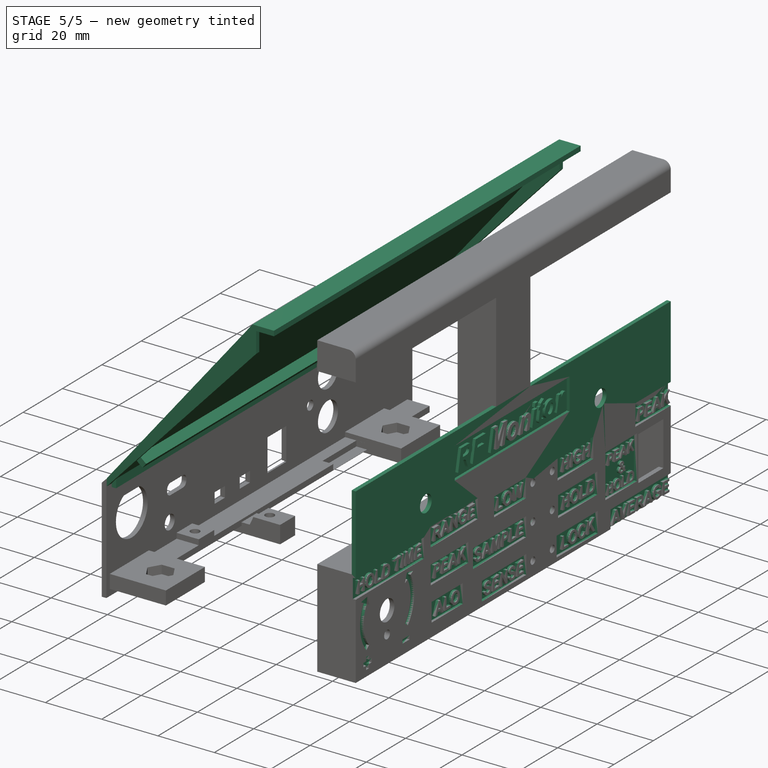
[diagram: stage 5 of 5 — iso view after this stage's code; geometry added in this stage tinted green]
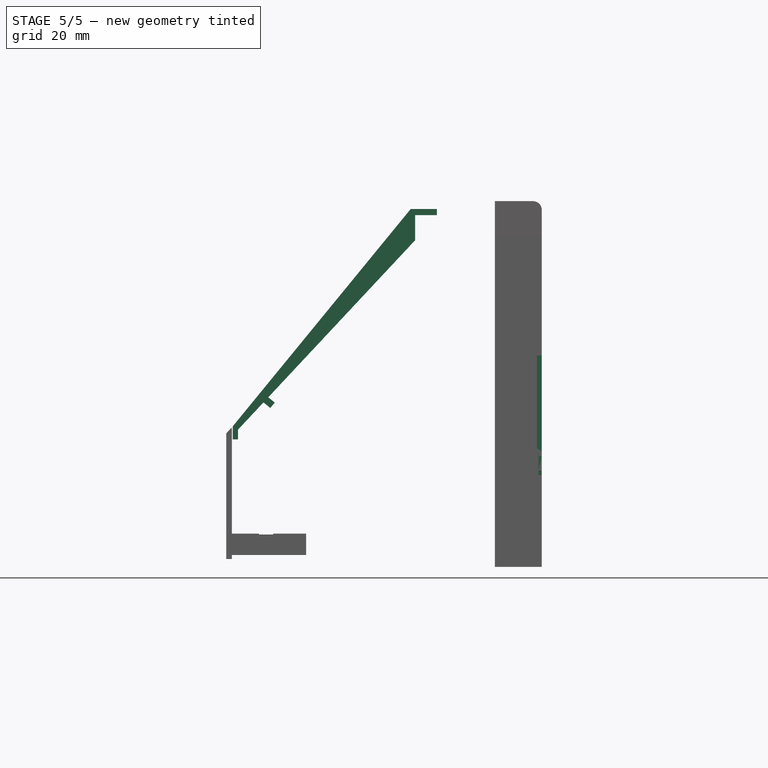
[diagram: stage 5 of 5 — front view after this stage's code; geometry added in this stage tinted green]
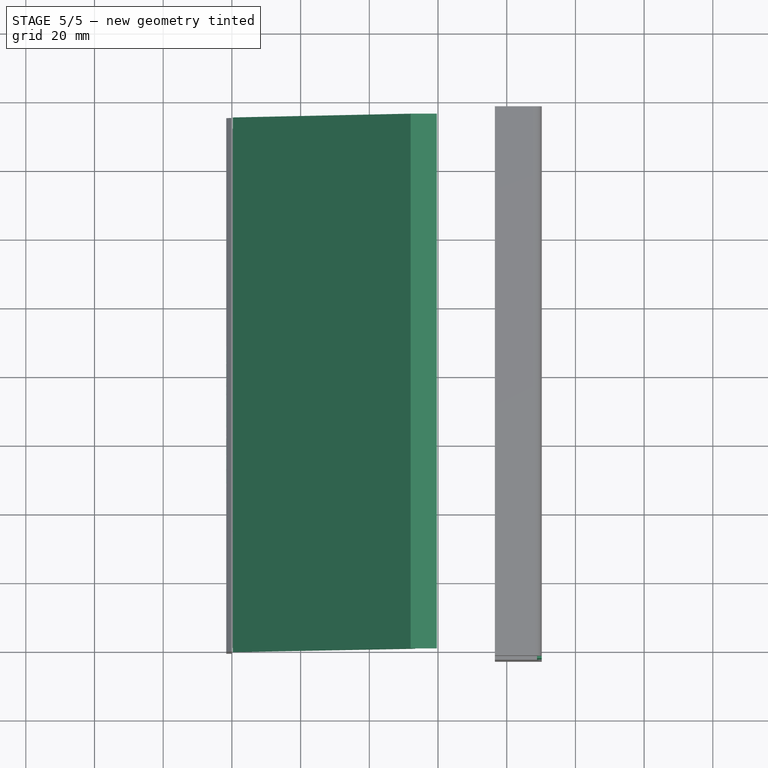
[diagram: stage 5 of 5 — top view after this stage's code; geometry added in this stage tinted green]
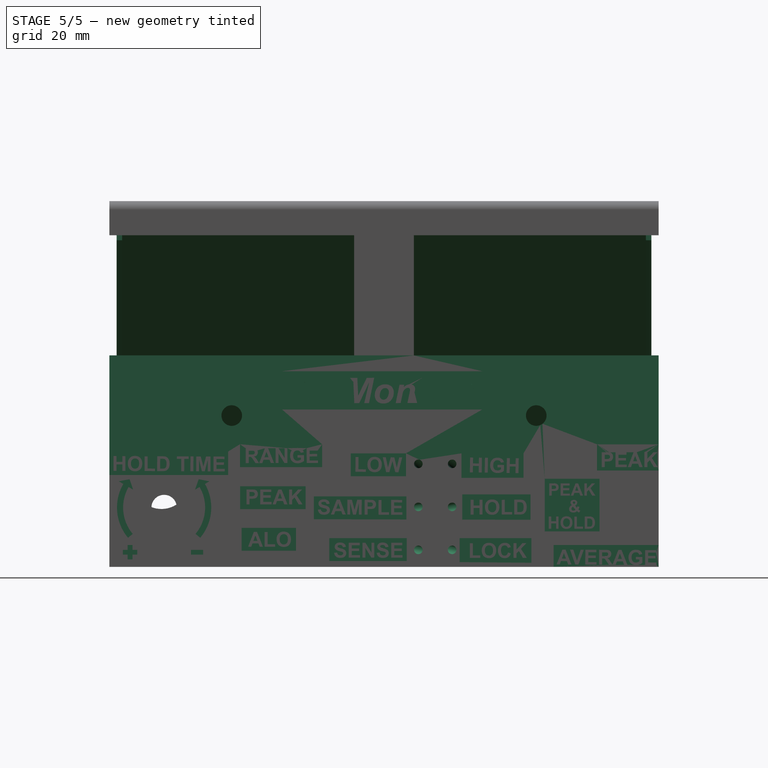
[diagram: stage 5 of 5 — right view after this stage's code; geometry added in this stage tinted green]
FEATURE [App::Link] Link002  label="Cliff FC684204"
  LinkedObject = -> <external console-placement.FCStd>#Part
FEATURE [PartDesign::SubShapeBinder] Binder010
  BindCopyOnChange = 0
  BindMode = 0
  ClaimChildren = false
  Context = -> Part003 [Body003.Binder010.]
  Fuse = false
  MakeFace = true
  OffsetFill = false
  OffsetIntersection = false
  OffsetJoinType = 0
  OffsetOpenResult = false
  PartialLoad = false
  Refine = true
  Relative = true
  Support = -> [Part]
  _Version = 2
FEATURE [PartDesign::SubShapeBinder] Binder011
  BindCopyOnChange = 0
  BindMode = 0
  ClaimChildren = false
  Context = -> Part003 [Body003.Binder011.]
  Fuse = false
  MakeFace = true
  OffsetFill = false
  OffsetIntersection = false
  OffsetJoinType = 0
  OffsetOpenResult = false
  PartialLoad = false
  Refine = true
  Relative = true
  Support = -> [Part002]
  _Version = 2
FEATURE [PartDesign::Plane] DatumPlane018  label="console inner right"
  AttachmentOffset = pos=(0,0,0.1016) rot=(0,0,1;0rad)
  AttachmentSupport = -> [Binder010]
  Length = 104.799
  MapMode = 5
  Placement = pos=(0,-20.6664,0) rot=(0,0.707107,0.707107;3.14159rad)
  ResizeMode = 0
  Width = 139.644
FEATURE [PartDesign::Plane] DatumPlane019  label="console inner left"
  AttachmentOffset = pos=(0,0,0.1016) rot=(0,0,1;0rad)
  AttachmentSupport = -> [Binder010]
  Length = 104.799
  MapMode = 5
  Placement = pos=(0,134.966,0) rot=(1,0,0;1.5708rad)
  ResizeMode = 0
  Width = 139.644
FEATURE [Sketcher::SketchObject] Sketch048
  ArcFitTolerance = 1e-06
  AttachmentSupport = -> [DatumPlane018]
  FullyConstrained = true
  MakeInternals = false
  MapMode = 5
  Placement = pos=(0,-20.6664,0) rot=(0,0.707107,0.707107;3.14159rad)
  sketch-geometry (10):
    g0: LineSegment StartX=-59.659 StartY=94.504 StartZ=0 EndX=-52.039 EndY=94.504 EndZ=0
    g1: LineSegment [constr] StartX=-52.039 StartY=94.504 StartZ=0 EndX=-52.039 EndY=86.63 EndZ=0
    g2: LineSegment [constr] StartX=-52.039 StartY=86.63 StartZ=0 EndX=-0.254 EndY=31.2596 EndZ=0
    g3: LineSegment StartX=-0.254 StartY=31.2596 StartZ=0 EndX=-0.254 EndY=28.6566 EndZ=0
    g4: LineSegment [constr] StartX=-0.254 StartY=28.6566 StartZ=0 EndX=-53.3376 EndY=85.4155 EndZ=0
    g5: LineSegment [constr] StartX=-53.3376 StartY=85.4155 StartZ=0 EndX=-53.3376 EndY=92.726 EndZ=0
    g6: LineSegment StartX=-53.3376 StartY=92.726 StartZ=0 EndX=-59.659 EndY=92.726 EndZ=0
    g7: LineSegment StartX=-59.659 StartY=92.726 StartZ=0 EndX=-59.659 EndY=94.504 EndZ=0
    g8: LineSegment StartX=-52.039 StartY=94.504 StartZ=0 EndX=-0.254 EndY=31.2596 EndZ=0
    g9: LineSegment StartX=-0.254 StartY=28.6566 StartZ=0 EndX=-53.3376 EndY=92.726 EndZ=0
  constraints (25):
    c: Horizontal(g0)
    c: Coincident(g1,g0)
    c: Coincident(g3,g2)
    c: Coincident(g4,g3)
    c: Coincident(g5,g4)
    c: Coincident(g6,g5)
    c: Horizontal(g6)
    c: Coincident(g7,g6)
    c: Coincident(g7,g0)
    c: Vertical(g7)
    c: Coincident(g2,g1)
    c: DistanceY(g0,g-5) = 0.254
    c: Vertical(g1)
    c: Coincident(g-3,g1)
    c: DistanceY(g6,g0) = 1.778
    c: Tangent(g4,g-4) = 1.5708
    c: Vertical(g5)
    c: DistanceX(g3,g-4) = 0.254
    c: Vertical(g3)
    c: Tangent(g2,g-3)
    c: DistanceX(g0,g0) = 7.62
    c: Coincident(g8,g0)
    c: Coincident(g8,g2)
    c: Coincident(g9,g3)
    c: Coincident(g9,g5)
FEATURE [PartDesign::Pad] Pad018
  Direction = (0,1,-2e-16)
  Length = 10
  Length2 = 10
  Placement = pos=(0,-20.6664,0) rot=(0,0.707107,0.707107;3.14159rad)
  Profile = -> Sketch048
  ReferenceAxis = -> Sketch048 [N_Axis]
  Refine = true
  Suppressed = false
  Type = 3
  UpToFace = -> DatumPlane019
FEATURE [Sketcher::SketchObject] Sketch106
  ArcFitTolerance = 1e-06
  AttachmentSupport = -> [DatumPlane018]
  ExternalGeometry = -> [Pad018]
  FullyConstrained = true
  MakeInternals = false
  MapMode = 5
  Placement = pos=(0,-20.6664,0) rot=(0,0.707107,0.707107;3.14159rad)
  sketch-geometry (5):
    g0: LineSegment StartX=-52.039 StartY=94.504 StartZ=0 EndX=-53.3376 EndY=92.726 EndZ=0
    g1: LineSegment StartX=-53.3376 StartY=92.726 StartZ=0 EndX=-53.3376 EndY=85.4155 EndZ=0
    g2: LineSegment StartX=-53.3376 StartY=85.4155 StartZ=0 EndX=-0.254 EndY=28.6566 EndZ=0
    g3: LineSegment StartX=-0.254 StartY=28.6566 StartZ=0 EndX=-0.254 EndY=31.2596 EndZ=0
    g4: LineSegment StartX=-0.254 StartY=31.2596 StartZ=0 EndX=-52.039 EndY=94.504 EndZ=0
  constraints (11):
    c: Coincident(g0,g-4)
    c: Coincident(g0,g-6)
    c: Coincident(g1,g0)
    c: PointOnObject(g1,g-3)
    c: Vertical(g1)
    c: Coincident(g2,g1)
    c: Coincident(g2,g-5)
    c: Coincident(g3,g2)
    c: Coincident(g3,g-5)
    c: Coincident(g4,g3)
    c: Coincident(g4,g0)
FEATURE [PartDesign::Pad] Pad032
  BaseFeature = -> Pad018
  Direction = (0,1,-2e-16)
  Length = 1.5748
  Length2 = 10
  Placement = pos=(0,-20.6664,0) rot=(0,0.707107,0.707107;3.14159rad)
  Profile = -> Sketch106
  ReferenceAxis = -> Sketch106 [N_Axis]
  Refine = true
  Suppressed = false
  Type = 0
FEATURE [Sketcher::SketchObject] Sketch107
  ArcFitTolerance = 1e-06
  AttachmentSupport = -> [DatumPlane019]
  ExternalGeometry = -> [Pad032]
  FullyConstrained = true
  MakeInternals = false
  MapMode = 5
  Placement = pos=(0,134.966,0) rot=(1,0,0;1.5708rad)
  sketch-geometry (5):
    g0: LineSegment StartX=52.039 StartY=94.504 StartZ=0 EndX=53.3376 EndY=92.726 EndZ=0
    g1: LineSegment StartX=53.3376 StartY=92.726 StartZ=0 EndX=53.3376 EndY=85.4155 EndZ=0
    g2: LineSegment StartX=53.3376 StartY=85.4155 StartZ=0 EndX=0.254 EndY=28.6566 EndZ=0
    g3: LineSegment StartX=0.254 StartY=28.6566 StartZ=0 EndX=0.254 EndY=31.2596 EndZ=0
    g4: LineSegment StartX=52.039 StartY=94.504 StartZ=0 EndX=0.254 EndY=31.2596 EndZ=0
  constraints (11):
    c: Coincident(g0,g-4)
    c: Coincident(g0,g-3)
    c: Coincident(g1,g0)
    c: Coincident(g1,g-5)
    c: Coincident(g2,g1)
    c: PointOnObject(g2,g-5)
    c: Coincident(g3,g2)
    c: Coincident(g3,g-4)
    c: Vertical(g3)
    c: Coincident(g4,g0)
    c: Coincident(g4,g3)
FEATURE [PartDesign::Pad] Pad033
  BaseFeature = -> Pad032
  Direction = (0,-1,2e-16)
  Length = 1.5748
  Length2 = 10
  Placement = pos=(0,-20.6664,0) rot=(0,0.707107,0.707107;3.14159rad)
  Profile = -> Sketch107
  ReferenceAxis = -> Sketch107 [N_Axis]
  Refine = true
  Suppressed = false
  Type = 0
FEATURE [PartDesign::Pad] Pad019
  BaseFeature = -> Pad033
  Direction = (-1,0,2e-16)
  Length = 1.524
  Length2 = 10
  Placement = pos=(0,-20.6664,0) rot=(0,0.707107,0.707107;3.14159rad)
  Profile = -> Sketch049
  ReferenceAxis = -> Sketch049 [N_Axis]
  Refine = true
  Reversed = true
  Suppressed = false
  Type = 0
FEATURE [Sketcher::SketchObject] Sketch101
  ArcFitTolerance = 1e-06
  AttachmentSupport = -> [Pad019]
  ExternalGeometry = -> [Binder015]
  FullyConstrained = true
  MakeInternals = false
  MapMode = 5
  Placement = pos=(0.254,-20.6664,1.2e-15) rot=(0,-1,0;1.5708rad)
  sketch-geometry (4):
    g0: LineSegment StartX=24.6712 StartY=120.828 StartZ=0 EndX=24.6712 EndY=104.371 EndZ=0
    g1: LineSegment StartX=24.6712 StartY=104.371 StartZ=0 EndX=28.4812 EndY=104.371 EndZ=0
    g2: LineSegment StartX=28.4812 StartY=104.371 StartZ=0 EndX=28.4812 EndY=120.828 EndZ=0
    g3: LineSegment StartX=28.4812 StartY=120.828 StartZ=0 EndX=24.6712 EndY=120.828 EndZ=0
  constraints (12):
    c: Coincident(g0,g1)
    c: Coincident(g1,g2)
    c: Coincident(g2,g3)
    c: Coincident(g3,g0)
    c: Vertical(g0)
    c: Vertical(g2)
    c: Horizontal(g1)
    c: Horizontal(g3)
    c: DistanceX(g-3,g2) = 0.2032
    c: DistanceY(g-3,g2) = 0.2032
    c: DistanceY(g1,g-4) = 0.254
    c: DistanceX(g0,g1) = 3.81
FEATURE [Sketcher::SketchObject] Sketch109
  ArcFitTolerance = 1e-06
  FullyConstrained = false
  MakeInternals = false
  Placement = pos=(-1e-15,0,0) rot=(0,-1,0;1.5708rad)
  sketch-geometry (545):
    g0: LineSegment StartX=13.9592 StartY=99.9635 StartZ=0 EndX=13.0119 EndY=99.9692 EndZ=0
    g1: LineSegment StartX=12.2584 StartY=104.292 StartZ=0 EndX=13.9592 EndY=99.9635 EndZ=0
    g2: LineSegment StartX=11.3376 StartY=104.297 StartZ=0 EndX=12.2584 EndY=104.292 EndZ=0
    g3: LineSegment StartX=9.63168 StartY=99.9896 StartZ=0 EndX=11.3376 EndY=104.297 EndZ=0
    g4: LineSegment StartX=10.5554 StartY=99.9841 StartZ=0 EndX=9.63168 EndY=99.9896 EndZ=0
    g5: LineSegment StartX=10.9173 StartY=100.961 StartZ=0 EndX=10.5554 EndY=99.9841 EndZ=0
    g6: LineSegment StartX=12.6413 StartY=100.951 StartZ=0 EndX=10.9173 EndY=100.961 EndZ=0
    g7: LineSegment StartX=13.0119 StartY=99.9692 StartZ=0 EndX=12.6413 EndY=100.951 EndZ=0
    g8: LineSegment StartX=12.3662 StartY=101.68 StartZ=0 EndX=11.7816 EndY=103.291 EndZ=0
    g9: LineSegment StartX=11.1894 StartY=101.687 StartZ=0 EndX=12.3662 EndY=101.68 EndZ=0
    g10: LineSegment StartX=11.7816 StartY=103.291 StartZ=0 EndX=11.1894 EndY=101.687 EndZ=0
    g11: LineSegment StartX=14.4491 StartY=99.9606 StartZ=0 EndX=14.475 EndY=104.241 EndZ=0
    g12: LineSegment StartX=17.4852 StartY=99.9423 StartZ=0 EndX=14.4491 EndY=99.9606 EndZ=0
    g13: LineSegment StartX=17.4896 StartY=100.67 StartZ=0 EndX=17.4852 EndY=99.9423 EndZ=0
    g14: LineSegment StartX=15.3243 StartY=100.683 StartZ=0 EndX=17.4896 EndY=100.67 EndZ=0
    g15: LineSegment StartX=15.3458 StartY=104.236 StartZ=0 EndX=15.3243 EndY=100.683 EndZ=0
    g16: LineSegment StartX=14.475 StartY=104.241 StartZ=0 EndX=15.3458 EndY=104.236 EndZ=0
    g17: BSplineCurve PolesCount=3 KnotsCount=2 Degree=2 IsPeriodic=0
    g18: BSplineCurve PolesCount=3 KnotsCount=2 Degree=2 IsPeriodic=0
    g19: BSplineCurve PolesCount=3 KnotsCount=2 Degree=2 IsPeriodic=0
    g20: BSplineCurve PolesCount=3 KnotsCount=2 Degree=2 IsPeriodic=0
    g21: BSplineCurve PolesCount=3 KnotsCount=2 Degree=2 IsPeriodic=0
    g22: BSplineCurve PolesCount=3 KnotsCount=2 Degree=2 IsPeriodic=0
    g23: BSplineCurve PolesCount=3 KnotsCount=2 Degree=2 IsPeriodic=0
    g24: BSplineCurve PolesCount=3 KnotsCount=2 Degree=2 IsPeriodic=0
    g25: BSplineCurve PolesCount=3 KnotsCount=2 Degree=2 IsPeriodic=0
    g26: BSplineCurve PolesCount=3 KnotsCount=2 Degree=2 IsPeriodic=0
    g27: BSplineCurve PolesCount=3 KnotsCount=2 Degree=2 IsPeriodic=0
    g28: BSplineCurve PolesCount=3 KnotsCount=2 Degree=2 IsPeriodic=0
    g29: BSplineCurve PolesCount=3 KnotsCount=2 Degree=2 IsPeriodic=0
    g30: BSplineCurve PolesCount=3 KnotsCount=2 Degree=2 IsPeriodic=0
    g31: BSplineCurve PolesCount=3 KnotsCount=2 Degree=2 IsPeriodic=0
    g32: BSplineCurve PolesCount=3 KnotsCount=2 Degree=2 IsPeriodic=0
    g33: BSplineCurve PolesCount=3 KnotsCount=2 Degree=2 IsPeriodic=0
    g34: BSplineCurve PolesCount=3 KnotsCount=2 Degree=2 IsPeriodic=0
    g35: LineSegment StartX=-5.45875 StartY=69.7431 StartZ=0 EndX=-5.45875 EndY=70.5698 EndZ=0
    g36: LineSegment StartX=-1.11565 StartY=69.7431 StartZ=0 EndX=-5.45875 EndY=69.7431 EndZ=0
    g37: LineSegment StartX=-1.11565 StartY=70.4139 StartZ=0 EndX=-1.11565 EndY=69.7431 EndZ=0
    g38: BSplineCurve PolesCount=3 KnotsCount=2 Degree=2 IsPeriodic=0
    g39: BSplineCurve PolesCount=3 KnotsCount=2 Degree=2 IsPeriodic=0
    g40: LineSegment StartX=-2.96084 StartY=71.6377 StartZ=0 EndX=-2.2077 EndY=71.6377 EndZ=0
    g41: BSplineCurve PolesCount=3 KnotsCount=2 Degree=2 IsPeriodic=0
    g42: LineSegment StartX=-5.45875 StartY=70.5698 StartZ=0 EndX=-2.33166 EndY=70.5698 EndZ=0
    g43: LineSegment StartX=-4.69306 StartY=65.715 StartZ=0 EndX=-5.45875 EndY=65.715 EndZ=0
    g44: LineSegment StartX=-4.69306 StartY=67.3566 StartZ=0 EndX=-4.69306 EndY=65.715 EndZ=0
    g45: BSplineCurve PolesCount=3 KnotsCount=2 Degree=2 IsPeriodic=0
    g46: BSplineCurve PolesCount=3 KnotsCount=2 Degree=2 IsPeriodic=0
    g47: BSplineCurve PolesCount=3 KnotsCount=2 Degree=2 IsPeriodic=0
    g48: BSplineCurve PolesCount=3 KnotsCount=2 Degree=2 IsPeriodic=0
    g49: BSplineCurve PolesCount=3 KnotsCount=2 Degree=2 IsPeriodic=0
    g50: BSplineCurve PolesCount=3 KnotsCount=2 Degree=2 IsPeriodic=0
    g51: BSplineCurve PolesCount=3 KnotsCount=2 Degree=2 IsPeriodic=0
    g52: BSplineCurve PolesCount=3 KnotsCount=2 Degree=2 IsPeriodic=0
    g53: BSplineCurve PolesCount=3 KnotsCount=2 Degree=2 IsPeriodic=0
    g54: LineSegment StartX=-2.48385 StartY=67.692 StartZ=0 EndX=-2.40089 EndY=68.5157 EndZ=0
    g55: BSplineCurve PolesCount=3 KnotsCount=2 Degree=2 IsPeriodic=0
    g56: BSplineCurve PolesCount=3 KnotsCount=2 Degree=2 IsPeriodic=0
    g57: BSplineCurve PolesCount=3 KnotsCount=2 Degree=2 IsPeriodic=0
    g58: BSplineCurve PolesCount=3 KnotsCount=2 Degree=2 IsPeriodic=0
    g59: BSplineCurve PolesCount=3 KnotsCount=2 Degree=2 IsPeriodic=0
    g60: BSplineCurve PolesCount=3 KnotsCount=2 Degree=2 IsPeriodic=0
    g61: BSplineCurve PolesCount=3 KnotsCount=2 Degree=2 IsPeriodic=0
    g62: BSplineCurve PolesCount=3 KnotsCount=2 Degree=2 IsPeriodic=0
    g63: LineSegment StartX=-5.45875 StartY=65.715 StartZ=0 EndX=-5.45875 EndY=68.6128 EndZ=0
    g64: LineSegment StartX=-5.45875 StartY=63.8727 StartZ=0 EndX=-1.14075 EndY=65.4143 EndZ=0
    g65: LineSegment StartX=-5.45875 StartY=62.9431 StartZ=0 EndX=-5.45875 EndY=63.8727 EndZ=0
    g66: LineSegment StartX=-1.14075 StartY=61.3985 StartZ=0 EndX=-5.45875 EndY=62.9431 EndZ=0
    g67: LineSegment StartX=-1.14075 StartY=62.3223 StartZ=0 EndX=-1.14075 EndY=61.3985 EndZ=0
    g68: LineSegment StartX=-4.3416 StartY=63.3785 StartZ=0 EndX=-1.14075 EndY=62.3223 EndZ=0
    g69: LineSegment StartX=-1.14075 StartY=64.4699 StartZ=0 EndX=-4.3416 EndY=63.3785 EndZ=0
    g70: LineSegment StartX=-1.14075 StartY=65.4143 StartZ=0 EndX=-1.14075 EndY=64.4699 EndZ=0
    g71: LineSegment StartX=23.1313 StartY=67.2184 StartZ=0 EndX=27.4491 EndY=67.255 EndZ=0
    g72: LineSegment StartX=23.1387 StartY=66.3476 StartZ=0 EndX=23.1313 EndY=67.2184 EndZ=0
    g73: LineSegment StartX=24.7704 StartY=66.3614 StartZ=0 EndX=23.1387 EndY=66.3476 EndZ=0
    g74: LineSegment StartX=24.7752 StartY=65.7937 StartZ=0 EndX=24.7704 EndY=66.3614 EndZ=0
    g75: BSplineCurve PolesCount=3 KnotsCount=2 Degree=2 IsPeriodic=0
    g76: BSplineCurve PolesCount=3 KnotsCount=2 Degree=2 IsPeriodic=0
    g77: BSplineCurve PolesCount=3 KnotsCount=2 Degree=2 IsPeriodic=0
    g78: BSplineCurve PolesCount=3 KnotsCount=2 Degree=2 IsPeriodic=0
    g79: BSplineCurve PolesCount=3 KnotsCount=2 Degree=2 IsPeriodic=0
    g80: BSplineCurve PolesCount=3 KnotsCount=2 Degree=2 IsPeriodic=0
    g81: BSplineCurve PolesCount=3 KnotsCount=2 Degree=2 IsPeriodic=0
    g82: LineSegment StartX=27.4491 StartY=67.255 StartZ=0 EndX=27.461 EndY=65.8576 EndZ=0
    g83: LineSegment StartX=26.7285 StartY=66.378 StartZ=0 EndX=25.4984 EndY=66.3676 EndZ=0
    g84: LineSegment StartX=26.7321 StartY=65.9574 StartZ=0 EndX=26.7285 EndY=66.378 EndZ=0
    g85: BSplineCurve PolesCount=3 KnotsCount=2 Degree=2 IsPeriodic=0
    g86: BSplineCurve PolesCount=3 KnotsCount=2 Degree=2 IsPeriodic=0
    g87: BSplineCurve PolesCount=3 KnotsCount=2 Degree=2 IsPeriodic=0
    g88: BSplineCurve PolesCount=3 KnotsCount=2 Degree=2 IsPeriodic=0
    g89: BSplineCurve PolesCount=3 KnotsCount=2 Degree=2 IsPeriodic=0
    g90: BSplineCurve PolesCount=3 KnotsCount=2 Degree=2 IsPeriodic=0
    g91: LineSegment StartX=25.4984 StartY=66.3676 StartZ=0 EndX=25.5025 EndY=65.891 EndZ=0
    g92: BSplineCurve PolesCount=3 KnotsCount=2 Degree=2 IsPeriodic=0
    g93: BSplineCurve PolesCount=3 KnotsCount=2 Degree=2 IsPeriodic=0
    g94: BSplineCurve PolesCount=3 KnotsCount=2 Degree=2 IsPeriodic=0
    g95: BSplineCurve PolesCount=3 KnotsCount=2 Degree=2 IsPeriodic=0
    g96: BSplineCurve PolesCount=3 KnotsCount=2 Degree=2 IsPeriodic=0
    g97: BSplineCurve PolesCount=3 KnotsCount=2 Degree=2 IsPeriodic=0
    g98: BSplineCurve PolesCount=3 KnotsCount=2 Degree=2 IsPeriodic=0
    g99: BSplineCurve PolesCount=3 KnotsCount=2 Degree=2 IsPeriodic=0
    g100: BSplineCurve PolesCount=3 KnotsCount=2 Degree=2 IsPeriodic=0
    g101: BSplineCurve PolesCount=3 KnotsCount=2 Degree=2 IsPeriodic=0
    g102: BSplineCurve PolesCount=3 KnotsCount=2 Degree=2 IsPeriodic=0
    g103: BSplineCurve PolesCount=3 KnotsCount=2 Degree=2 IsPeriodic=0
    g104: BSplineCurve PolesCount=3 KnotsCount=2 Degree=2 IsPeriodic=0
    g105: BSplineCurve PolesCount=3 KnotsCount=2 Degree=2 IsPeriodic=0
    g106: BSplineCurve PolesCount=3 KnotsCount=2 Degree=2 IsPeriodic=0
    g107: BSplineCurve PolesCount=3 KnotsCount=2 Degree=2 IsPeriodic=0
    g108: BSplineCurve PolesCount=3 KnotsCount=2 Degree=2 IsPeriodic=0
    g109: BSplineCurve PolesCount=3 KnotsCount=2 Degree=2 IsPeriodic=0
    g110: LineSegment StartX=23.2102 StartY=57.908 StartZ=0 EndX=27.5194 EndY=58.9743 EndZ=0
    g111: LineSegment StartX=23.2183 StartY=56.9637 StartZ=0 EndX=23.2102 EndY=57.908 EndZ=0
    g112: LineSegment StartX=26.4535 StartY=56.135 StartZ=0 EndX=23.2183 EndY=56.9637 EndZ=0
    g113: LineSegment StartX=23.2328 StartY=55.2486 StartZ=0 EndX=26.4535 EndY=56.135 EndZ=0
    g114: LineSegment StartX=23.2406 StartY=54.3249 StartZ=0 EndX=23.2328 EndY=55.2486 EndZ=0
    g115: LineSegment StartX=27.5674 StartY=53.3142 StartZ=0 EndX=23.2406 EndY=54.3249 EndZ=0
    g116: LineSegment StartX=27.5599 StartY=54.1909 StartZ=0 EndX=27.5674 EndY=53.3142 EndZ=0
    g117: LineSegment StartX=24.5383 StartY=54.8272 StartZ=0 EndX=27.5599 EndY=54.1909 EndZ=0
    g118: LineSegment StartX=27.5479 StartY=55.6088 StartZ=0 EndX=24.5383 EndY=54.8272 EndZ=0
    g119: LineSegment StartX=27.5391 StartY=56.6444 StartZ=0 EndX=27.5479 EndY=55.6088 EndZ=0
    g120: LineSegment StartX=24.5665 StartY=57.4076 StartZ=0 EndX=27.5391 EndY=56.6444 EndZ=0
    g121: LineSegment StartX=27.5269 StartY=58.0829 StartZ=0 EndX=24.5665 EndY=57.4076 EndZ=0
    g122: LineSegment StartX=27.5194 StartY=58.9743 StartZ=0 EndX=27.5269 EndY=58.0829 EndZ=0
    g123: LineSegment StartX=23.2533 StartY=52.8339 StartZ=0 EndX=27.5711 EndY=52.8706 EndZ=0
    g124: LineSegment StartX=23.2811 StartY=49.5538 StartZ=0 EndX=23.2533 EndY=52.8339 EndZ=0
    g125: LineSegment StartX=24.0091 StartY=49.5599 StartZ=0 EndX=23.2811 EndY=49.5538 EndZ=0
    g126: LineSegment StartX=23.9887 StartY=51.9693 StartZ=0 EndX=24.0091 EndY=49.5599 EndZ=0
    g127: LineSegment StartX=25.1686 StartY=51.9793 StartZ=0 EndX=23.9887 EndY=51.9693 EndZ=0
    g128: LineSegment StartX=25.1869 StartY=49.8141 StartZ=0 EndX=25.1686 EndY=51.9793 EndZ=0
    g129: LineSegment StartX=25.9149 StartY=49.8203 StartZ=0 EndX=25.1869 EndY=49.8141 EndZ=0
    g130: LineSegment StartX=25.8966 StartY=51.9855 StartZ=0 EndX=25.9149 EndY=49.8203 EndZ=0
    g131: LineSegment StartX=26.8505 StartY=51.9936 StartZ=0 EndX=25.8966 EndY=51.9855 EndZ=0
    g132: LineSegment StartX=26.8703 StartY=49.6666 StartZ=0 EndX=26.8505 EndY=51.9936 EndZ=0
    g133: LineSegment StartX=27.5983 StartY=49.6728 StartZ=0 EndX=26.8703 EndY=49.6666 EndZ=0
    g134: LineSegment StartX=27.5711 StartY=52.8706 StartZ=0 EndX=27.5983 EndY=49.6728 EndZ=0
    g135: LineSegment StartX=23.2874 StartY=48.8144 StartZ=0 EndX=27.6052 EndY=48.851 EndZ=0
    g136: LineSegment StartX=23.2948 StartY=47.9436 StartZ=0 EndX=23.2874 EndY=48.8144 EndZ=0
    g137: LineSegment StartX=25.1022 StartY=47.9589 StartZ=0 EndX=23.2948 EndY=47.9436 EndZ=0
    g138: LineSegment StartX=25.1037 StartY=47.7824 StartZ=0 EndX=25.1022 EndY=47.9589 EndZ=0
    g139: BSplineCurve PolesCount=3 KnotsCount=2 Degree=2 IsPeriodic=0
    g140: BSplineCurve PolesCount=3 KnotsCount=2 Degree=2 IsPeriodic=0
    g141: BSplineCurve PolesCount=3 KnotsCount=2 Degree=2 IsPeriodic=0
    g142: LineSegment StartX=23.3114 StartY=45.9785 StartZ=0 EndX=24.2502 EndY=46.616 EndZ=0
    g143: LineSegment StartX=23.3203 StartY=44.937 StartZ=0 EndX=23.3114 EndY=45.9785 EndZ=0
    g144: LineSegment StartX=24.1603 StartY=45.4708 StartZ=0 EndX=23.3203 EndY=44.937 EndZ=0
    g145: BSplineCurve PolesCount=3 KnotsCount=2 Degree=2 IsPeriodic=0
    g146: BSplineCurve PolesCount=3 KnotsCount=2 Degree=2 IsPeriodic=0
    g147: BSplineCurve PolesCount=3 KnotsCount=2 Degree=2 IsPeriodic=0
    g148: BSplineCurve PolesCount=3 KnotsCount=2 Degree=2 IsPeriodic=0
    g149: BSplineCurve PolesCount=3 KnotsCount=2 Degree=2 IsPeriodic=0
    g150: BSplineCurve PolesCount=3 KnotsCount=2 Degree=2 IsPeriodic=0
    g151: BSplineCurve PolesCount=3 KnotsCount=2 Degree=2 IsPeriodic=0
    g152: LineSegment StartX=27.6052 StartY=48.851 StartZ=0 EndX=27.6208 EndY=47.0182 EndZ=0
    g153: LineSegment StartX=25.7926 StartY=47.9648 StartZ=0 EndX=25.7981 EndY=47.3205 EndZ=0
    g154: LineSegment StartX=26.8846 StartY=47.9741 StartZ=0 EndX=25.7926 EndY=47.9648 EndZ=0
    g155: LineSegment StartX=26.8904 StartY=47.2945 StartZ=0 EndX=26.8846 EndY=47.9741 EndZ=0
    g156: BSplineCurve PolesCount=3 KnotsCount=2 Degree=2 IsPeriodic=0
    g157: BSplineCurve PolesCount=3 KnotsCount=2 Degree=2 IsPeriodic=0
    g158: BSplineCurve PolesCount=3 KnotsCount=2 Degree=2 IsPeriodic=0
    g159: BSplineCurve PolesCount=3 KnotsCount=2 Degree=2 IsPeriodic=0
    g160: BSplineCurve PolesCount=3 KnotsCount=2 Degree=2 IsPeriodic=0
    g161: BSplineCurve PolesCount=3 KnotsCount=2 Degree=2 IsPeriodic=0
    g162: LineSegment StartX=23.434 StartY=36.7195 StartZ=0 EndX=23.434 EndY=37.6668 EndZ=0
    g163: LineSegment StartX=27.752 StartY=38.4465 StartZ=0 EndX=23.434 EndY=36.7195 EndZ=0
    g164: LineSegment StartX=27.752 StartY=39.3673 StartZ=0 EndX=27.752 EndY=38.4465 EndZ=0
    g165: LineSegment StartX=23.434 StartY=41.0471 StartZ=0 EndX=27.752 EndY=39.3673 EndZ=0
    g166: LineSegment StartX=23.434 StartY=40.1234 StartZ=0 EndX=23.434 EndY=41.0471 EndZ=0
    g167: LineSegment StartX=24.4131 StartY=39.7674 StartZ=0 EndX=23.434 EndY=40.1234 EndZ=0
    g168: LineSegment StartX=24.4131 StartY=38.0434 StartZ=0 EndX=24.4131 EndY=39.7674 EndZ=0
    g169: LineSegment StartX=23.434 StartY=37.6668 StartZ=0 EndX=24.4131 EndY=38.0434 EndZ=0
    g170: LineSegment StartX=25.1411 StartY=38.3229 StartZ=0 EndX=26.7478 EndY=38.9172 EndZ=0
    g171: LineSegment StartX=25.1411 StartY=39.4997 StartZ=0 EndX=25.1411 EndY=38.3229 EndZ=0
    g172: LineSegment StartX=26.7478 StartY=38.9172 StartZ=0 EndX=25.1411 EndY=39.4997 EndZ=0
    g173: LineSegment StartX=23.434 StartY=36.2296 StartZ=0 EndX=27.7143 EndY=36.2296 EndZ=0
    g174: LineSegment StartX=23.434 StartY=33.1935 StartZ=0 EndX=23.434 EndY=36.2296 EndZ=0
    g175: LineSegment StartX=24.162 StartY=33.1935 StartZ=0 EndX=23.434 EndY=33.1935 EndZ=0
    g176: LineSegment StartX=24.162 StartY=35.3588 StartZ=0 EndX=24.162 EndY=33.1935 EndZ=0
    g177: LineSegment StartX=27.7143 StartY=35.3588 StartZ=0 EndX=24.162 EndY=35.3588 EndZ=0
    g178: LineSegment StartX=27.7143 StartY=36.2296 StartZ=0 EndX=27.7143 EndY=35.3588 EndZ=0
    g179: BSplineCurve PolesCount=3 KnotsCount=2 Degree=2 IsPeriodic=0
    g180: BSplineCurve PolesCount=3 KnotsCount=2 Degree=2 IsPeriodic=0
    g181: BSplineCurve PolesCount=3 KnotsCount=2 Degree=2 IsPeriodic=0
    g182: BSplineCurve PolesCount=3 KnotsCount=2 Degree=2 IsPeriodic=0
    g183: BSplineCurve PolesCount=3 KnotsCount=2 Degree=2 IsPeriodic=0
    g184: BSplineCurve PolesCount=3 KnotsCount=2 Degree=2 IsPeriodic=0
    g185: BSplineCurve PolesCount=3 KnotsCount=2 Degree=2 IsPeriodic=0
    g186: BSplineCurve PolesCount=3 KnotsCount=2 Degree=2 IsPeriodic=0
    g187: BSplineCurve PolesCount=3 KnotsCount=2 Degree=2 IsPeriodic=0
    g188: BSplineCurve PolesCount=3 KnotsCount=2 Degree=2 IsPeriodic=0
    g189: BSplineCurve PolesCount=3 KnotsCount=2 Degree=2 IsPeriodic=0
    g190: BSplineCurve PolesCount=3 KnotsCount=2 Degree=2 IsPeriodic=0
    g191: BSplineCurve PolesCount=3 KnotsCount=2 Degree=2 IsPeriodic=0
    g192: BSplineCurve PolesCount=3 KnotsCount=2 Degree=2 IsPeriodic=0
    g193: BSplineCurve PolesCount=3 KnotsCount=2 Degree=2 IsPeriodic=0
    g194: BSplineCurve PolesCount=3 KnotsCount=2 Degree=2 IsPeriodic=0
    g195: BSplineCurve PolesCount=3 KnotsCount=2 Degree=2 IsPeriodic=0
    g196: BSplineCurve PolesCount=3 KnotsCount=2 Degree=2 IsPeriodic=0
    g197: LineSegment StartX=7.47014 StartY=51.9633 StartZ=0 EndX=7.4356 EndY=56.2812 EndZ=0
    g198: LineSegment StartX=8.34093 StartY=51.9703 StartZ=0 EndX=7.47014 EndY=51.9633 EndZ=0
    g199: LineSegment StartX=8.32627 StartY=53.8029 StartZ=0 EndX=8.34093 EndY=51.9703 EndZ=0
    g200: LineSegment StartX=10.1267 StartY=53.8173 StartZ=0 EndX=8.32627 EndY=53.8029 EndZ=0
    g201: LineSegment StartX=10.1209 StartY=54.5453 StartZ=0 EndX=10.1267 EndY=53.8173 EndZ=0
    g202: LineSegment StartX=8.32044 StartY=54.5309 StartZ=0 EndX=10.1209 EndY=54.5453 EndZ=0
    g203: LineSegment StartX=8.31221 StartY=55.5601 StartZ=0 EndX=8.32044 EndY=54.5309 EndZ=0
    g204: LineSegment StartX=10.398 StartY=55.5768 StartZ=0 EndX=8.31221 EndY=55.5601 EndZ=0
    g205: LineSegment StartX=10.3922 StartY=56.3048 StartZ=0 EndX=10.398 EndY=55.5768 EndZ=0
    g206: LineSegment StartX=7.4356 StartY=56.2812 StartZ=0 EndX=10.3922 EndY=56.3048 EndZ=0
    g207: BSplineCurve PolesCount=3 KnotsCount=2 Degree=2 IsPeriodic=0
    g208: BSplineCurve PolesCount=3 KnotsCount=2 Degree=2 IsPeriodic=0
    g209: BSplineCurve PolesCount=3 KnotsCount=2 Degree=2 IsPeriodic=0
    g210: BSplineCurve PolesCount=3 KnotsCount=2 Degree=2 IsPeriodic=0
    g211: BSplineCurve PolesCount=3 KnotsCount=2 Degree=2 IsPeriodic=0
    g212: BSplineCurve PolesCount=3 KnotsCount=2 Degree=2 IsPeriodic=0
    g213: BSplineCurve PolesCount=3 KnotsCount=2 Degree=2 IsPeriodic=0
    g214: BSplineCurve PolesCount=3 KnotsCount=2 Degree=2 IsPeriodic=0
    g215: BSplineCurve PolesCount=3 KnotsCount=2 Degree=2 IsPeriodic=0
    g216: BSplineCurve PolesCount=3 KnotsCount=2 Degree=2 IsPeriodic=0
    g217: BSplineCurve PolesCount=3 KnotsCount=2 Degree=2 IsPeriodic=0
    g218: BSplineCurve PolesCount=3 KnotsCount=2 Degree=2 IsPeriodic=0
    g219: BSplineCurve PolesCount=3 KnotsCount=2 Degree=2 IsPeriodic=0
    g220: BSplineCurve PolesCount=3 KnotsCount=2 Degree=2 IsPeriodic=0
    g221: BSplineCurve PolesCount=3 KnotsCount=2 Degree=2 IsPeriodic=0
    g222: BSplineCurve PolesCount=3 KnotsCount=2 Degree=2 IsPeriodic=0
    g223: BSplineCurve PolesCount=3 KnotsCount=2 Degree=2 IsPeriodic=0
    g224: BSplineCurve PolesCount=3 KnotsCount=2 Degree=2 IsPeriodic=0
    g225: LineSegment StartX=15.8268 StartY=52.0302 StartZ=0 EndX=15.7922 EndY=56.348 EndZ=0
    g226: LineSegment StartX=16.6976 StartY=52.0371 StartZ=0 EndX=15.8268 EndY=52.0302 EndZ=0
    g227: LineSegment StartX=16.6831 StartY=53.8446 StartZ=0 EndX=16.6976 EndY=52.0371 EndZ=0
    g228: LineSegment StartX=16.8596 StartY=53.846 StartZ=0 EndX=16.6831 EndY=53.8446 EndZ=0
    g229: BSplineCurve PolesCount=3 KnotsCount=2 Degree=2 IsPeriodic=0
    g230: BSplineCurve PolesCount=3 KnotsCount=2 Degree=2 IsPeriodic=0
    g231: BSplineCurve PolesCount=3 KnotsCount=2 Degree=2 IsPeriodic=0
    g232: LineSegment StartX=18.6627 StartY=52.0529 StartZ=0 EndX=18.0256 EndY=52.992 EndZ=0
    g233: LineSegment StartX=19.7041 StartY=52.0612 StartZ=0 EndX=18.6627 EndY=52.0529 EndZ=0
    g234: LineSegment StartX=19.1708 StartY=52.9015 StartZ=0 EndX=19.7041 EndY=52.0612 EndZ=0
    g235: BSplineCurve PolesCount=3 KnotsCount=2 Degree=2 IsPeriodic=0
    g236: BSplineCurve PolesCount=3 KnotsCount=2 Degree=2 IsPeriodic=0
    g237: BSplineCurve PolesCount=3 KnotsCount=2 Degree=2 IsPeriodic=0
    g238: BSplineCurve PolesCount=3 KnotsCount=2 Degree=2 IsPeriodic=0
    g239: BSplineCurve PolesCount=3 KnotsCount=2 Degree=2 IsPeriodic=0
    g240: BSplineCurve PolesCount=3 KnotsCount=2 Degree=2 IsPeriodic=0
    g241: BSplineCurve PolesCount=3 KnotsCount=2 Degree=2 IsPeriodic=0
    g242: LineSegment StartX=15.7922 StartY=56.348 StartZ=0 EndX=17.625 EndY=56.3627 EndZ=0
    g243: LineSegment StartX=16.6776 StartY=54.535 StartZ=0 EndX=17.3219 EndY=54.5401 EndZ=0
    g244: LineSegment StartX=16.6688 StartY=55.627 StartZ=0 EndX=16.6776 EndY=54.535 EndZ=0
    g245: LineSegment StartX=17.3484 StartY=55.6324 StartZ=0 EndX=16.6688 EndY=55.627 EndZ=0
    g246: BSplineCurve PolesCount=3 KnotsCount=2 Degree=2 IsPeriodic=0
    g247: BSplineCurve PolesCount=3 KnotsCount=2 Degree=2 IsPeriodic=0
    g248: BSplineCurve PolesCount=3 KnotsCount=2 Degree=2 IsPeriodic=0
    g249: BSplineCurve PolesCount=3 KnotsCount=2 Degree=2 IsPeriodic=0
    g250: BSplineCurve PolesCount=3 KnotsCount=2 Degree=2 IsPeriodic=0
    g251: BSplineCurve PolesCount=3 KnotsCount=2 Degree=2 IsPeriodic=0
    g252: LineSegment StartX=6.96468 StartY=45.8064 StartZ=0 EndX=6.96468 EndY=50.1244 EndZ=0
    g253: LineSegment StartX=7.8355 StartY=45.8064 StartZ=0 EndX=6.96468 EndY=45.8064 EndZ=0
    g254: LineSegment StartX=7.8355 StartY=47.6139 StartZ=0 EndX=7.8355 EndY=45.8064 EndZ=0
    g255: LineSegment StartX=8.01201 StartY=47.6139 StartZ=0 EndX=7.8355 EndY=47.6139 EndZ=0
    g256: BSplineCurve PolesCount=3 KnotsCount=2 Degree=2 IsPeriodic=0
    g257: BSplineCurve PolesCount=3 KnotsCount=2 Degree=2 IsPeriodic=0
    g258: BSplineCurve PolesCount=3 KnotsCount=2 Degree=2 IsPeriodic=0
    g259: LineSegment StartX=9.80072 StartY=45.8064 StartZ=0 EndX=9.17114 EndY=46.7505 EndZ=0
    g260: LineSegment StartX=10.8422 StartY=45.8064 StartZ=0 EndX=9.80072 EndY=45.8064 EndZ=0
    g261: LineSegment StartX=10.3156 StartY=46.6509 StartZ=0 EndX=10.8422 EndY=45.8064 EndZ=0
    g262: BSplineCurve PolesCount=3 KnotsCount=2 Degree=2 IsPeriodic=0
    g263: BSplineCurve PolesCount=3 KnotsCount=2 Degree=2 IsPeriodic=0
    g264: BSplineCurve PolesCount=3 KnotsCount=2 Degree=2 IsPeriodic=0
    g265: BSplineCurve PolesCount=3 KnotsCount=2 Degree=2 IsPeriodic=0
    g266: BSplineCurve PolesCount=3 KnotsCount=2 Degree=2 IsPeriodic=0
    g267: BSplineCurve PolesCount=3 KnotsCount=2 Degree=2 IsPeriodic=0
    g268: BSplineCurve PolesCount=3 KnotsCount=2 Degree=2 IsPeriodic=0
    g269: LineSegment StartX=6.96468 StartY=50.1244 StartZ=0 EndX=8.79752 EndY=50.1244 EndZ=0
    g270: LineSegment StartX=7.8355 StartY=48.3043 StartZ=0 EndX=8.47979 EndY=48.3043 EndZ=0
    g271: LineSegment StartX=7.8355 StartY=49.3963 StartZ=0 EndX=7.8355 EndY=48.3043 EndZ=0
    g272: LineSegment StartX=8.51509 StartY=49.3963 StartZ=0 EndX=7.8355 EndY=49.3963 EndZ=0
    g273: BSplineCurve PolesCount=3 KnotsCount=2 Degree=2 IsPeriodic=0
    g274: BSplineCurve PolesCount=3 KnotsCount=2 Degree=2 IsPeriodic=0
    g275: BSplineCurve PolesCount=3 KnotsCount=2 Degree=2 IsPeriodic=0
    g276: BSplineCurve PolesCount=3 KnotsCount=2 Degree=2 IsPeriodic=0
    g277: BSplineCurve PolesCount=3 KnotsCount=2 Degree=2 IsPeriodic=0
    g278: BSplineCurve PolesCount=3 KnotsCount=2 Degree=2 IsPeriodic=0
    g279: LineSegment StartX=11.3174 StartY=45.8064 StartZ=0 EndX=11.3174 EndY=50.1244 EndZ=0
    g280: LineSegment StartX=14.5977 StartY=45.8064 StartZ=0 EndX=11.3174 EndY=45.8064 EndZ=0
    g281: LineSegment StartX=14.5977 StartY=46.5344 StartZ=0 EndX=14.5977 EndY=45.8064 EndZ=0
    g282: LineSegment StartX=12.1882 StartY=46.5344 StartZ=0 EndX=14.5977 EndY=46.5344 EndZ=0
    g283: LineSegment StartX=12.1882 StartY=47.7143 StartZ=0 EndX=12.1882 EndY=46.5344 EndZ=0
    g284: LineSegment StartX=14.3535 StartY=47.7143 StartZ=0 EndX=12.1882 EndY=47.7143 EndZ=0
    g285: LineSegment StartX=14.3535 StartY=48.4423 StartZ=0 EndX=14.3535 EndY=47.7143 EndZ=0
    g286: LineSegment StartX=12.1882 StartY=48.4423 StartZ=0 EndX=14.3535 EndY=48.4423 EndZ=0
    g287: LineSegment StartX=12.1882 StartY=49.3963 StartZ=0 EndX=12.1882 EndY=48.4423 EndZ=0
    g288: LineSegment StartX=14.5153 StartY=49.3963 StartZ=0 EndX=12.1882 EndY=49.3963 EndZ=0
    g289: LineSegment StartX=14.5153 StartY=50.1244 StartZ=0 EndX=14.5153 EndY=49.3963 EndZ=0
    g290: LineSegment StartX=11.3174 StartY=50.1244 StartZ=0 EndX=14.5153 EndY=50.1244 EndZ=0
    g291: LineSegment StartX=15.34 StartY=45.8064 StartZ=0 EndX=15.34 EndY=50.1244 EndZ=0
    g292: LineSegment StartX=16.2108 StartY=45.8064 StartZ=0 EndX=15.34 EndY=45.8064 EndZ=0
    g293: LineSegment StartX=16.2108 StartY=47.639 StartZ=0 EndX=16.2108 EndY=45.8064 EndZ=0
    g294: LineSegment StartX=18.0113 StartY=47.639 StartZ=0 EndX=16.2108 EndY=47.639 EndZ=0
    g295: LineSegment StartX=18.0113 StartY=48.367 StartZ=0 EndX=18.0113 EndY=47.639 EndZ=0
    g296: LineSegment StartX=16.2108 StartY=48.367 StartZ=0 EndX=18.0113 EndY=48.367 EndZ=0
    g297: LineSegment StartX=16.2108 StartY=49.3963 StartZ=0 EndX=16.2108 EndY=48.367 EndZ=0
    g298: LineSegment StartX=18.2967 StartY=49.3963 StartZ=0 EndX=16.2108 EndY=49.3963 EndZ=0
    g299: LineSegment StartX=18.2967 StartY=50.1244 StartZ=0 EndX=18.2967 EndY=49.3963 EndZ=0
    g300: LineSegment StartX=15.34 StartY=50.1244 StartZ=0 EndX=18.2967 EndY=50.1244 EndZ=0
    g301: LineSegment StartX=19.0355 StartY=45.8064 StartZ=0 EndX=19.0355 EndY=50.0867 EndZ=0
    g302: LineSegment StartX=22.0716 StartY=45.8064 StartZ=0 EndX=19.0355 EndY=45.8064 EndZ=0
    g303: LineSegment StartX=22.0716 StartY=46.5344 StartZ=0 EndX=22.0716 EndY=45.8064 EndZ=0
    g304: LineSegment StartX=19.9063 StartY=46.5344 StartZ=0 EndX=22.0716 EndY=46.5344 EndZ=0
    g305: LineSegment StartX=19.9063 StartY=50.0867 StartZ=0 EndX=19.9063 EndY=46.5344 EndZ=0
    g306: LineSegment StartX=19.0355 StartY=50.0867 StartZ=0 EndX=19.9063 EndY=50.0867 EndZ=0
    g307: LineSegment StartX=6.57246 StartY=38.9756 StartZ=0 EndX=7.42053 EndY=39.0555 EndZ=0
    g308: BSplineCurve PolesCount=3 KnotsCount=2 Degree=2 IsPeriodic=0
    g309: BSplineCurve PolesCount=3 KnotsCount=2 Degree=2 IsPeriodic=0
    g310: BSplineCurve PolesCount=3 KnotsCount=2 Degree=2 IsPeriodic=0
    g311: BSplineCurve PolesCount=3 KnotsCount=2 Degree=2 IsPeriodic=0
    g312: BSplineCurve PolesCount=3 KnotsCount=2 Degree=2 IsPeriodic=0
    g313: BSplineCurve PolesCount=3 KnotsCount=2 Degree=2 IsPeriodic=0
    g314: BSplineCurve PolesCount=3 KnotsCount=2 Degree=2 IsPeriodic=0
    g315: BSplineCurve PolesCount=3 KnotsCount=2 Degree=2 IsPeriodic=0
    g316: BSplineCurve PolesCount=3 KnotsCount=2 Degree=2 IsPeriodic=0
    g317: BSplineCurve PolesCount=3 KnotsCount=2 Degree=2 IsPeriodic=0
    g318: BSplineCurve PolesCount=3 KnotsCount=2 Degree=2 IsPeriodic=0
    g319: BSplineCurve PolesCount=3 KnotsCount=2 Degree=2 IsPeriodic=0
    g320: BSplineCurve PolesCount=3 KnotsCount=2 Degree=2 IsPeriodic=0
    g321: BSplineCurve PolesCount=3 KnotsCount=2 Degree=2 IsPeriodic=0
    g322: LineSegment StartX=9.97154 StartY=40.6382 StartZ=0 EndX=9.1004 EndY=40.6088 EndZ=0
    g323: BSplineCurve PolesCount=3 KnotsCount=2 Degree=2 IsPeriodic=0
    g324: BSplineCurve PolesCount=3 KnotsCount=2 Degree=2 IsPeriodic=0
    g325: BSplineCurve PolesCount=3 KnotsCount=2 Degree=2 IsPeriodic=0
    g326: BSplineCurve PolesCount=3 KnotsCount=2 Degree=2 IsPeriodic=0
    g327: BSplineCurve PolesCount=3 KnotsCount=2 Degree=2 IsPeriodic=0
    g328: BSplineCurve PolesCount=3 KnotsCount=2 Degree=2 IsPeriodic=0
    g329: BSplineCurve PolesCount=3 KnotsCount=2 Degree=2 IsPeriodic=0
    g330: BSplineCurve PolesCount=3 KnotsCount=2 Degree=2 IsPeriodic=0
    g331: BSplineCurve PolesCount=3 KnotsCount=2 Degree=2 IsPeriodic=0
    g332: BSplineCurve PolesCount=3 KnotsCount=2 Degree=2 IsPeriodic=0
    g333: BSplineCurve PolesCount=3 KnotsCount=2 Degree=2 IsPeriodic=0
    g334: BSplineCurve PolesCount=3 KnotsCount=2 Degree=2 IsPeriodic=0
    g335: BSplineCurve PolesCount=3 KnotsCount=2 Degree=2 IsPeriodic=0
    g336: BSplineCurve PolesCount=3 KnotsCount=2 Degree=2 IsPeriodic=0
    g337: LineSegment StartX=11.4084 StartY=37.5367 StartZ=0 EndX=10.4195 EndY=41.8642 EndZ=0
    g338: LineSegment StartX=12.3527 StartY=37.5277 StartZ=0 EndX=11.4084 EndY=37.5367 EndZ=0
    g339: LineSegment StartX=13.2393 StartY=40.7476 StartZ=0 EndX=12.3527 EndY=37.5277 EndZ=0
    g340: LineSegment StartX=14.0678 StartY=37.5116 StartZ=0 EndX=13.2393 EndY=40.7476 EndZ=0
    g341: LineSegment StartX=14.9916 StartY=37.5028 StartZ=0 EndX=14.0678 EndY=37.5116 EndZ=0
    g342: LineSegment StartX=16.0796 StartY=41.8108 StartZ=0 EndX=14.9916 EndY=37.5028 EndZ=0
    g343: LineSegment StartX=15.2029 StartY=41.819 StartZ=0 EndX=16.0796 EndY=41.8108 EndZ=0
    g344: LineSegment StartX=14.5125 StartY=38.8093 StartZ=0 EndX=15.2029 EndY=41.819 EndZ=0
    g345: LineSegment StartX=13.785 StartY=41.8324 StartZ=0 EndX=14.5125 EndY=38.8093 EndZ=0
    g346: LineSegment StartX=12.7494 StartY=41.8422 StartZ=0 EndX=13.785 EndY=41.8324 EndZ=0
    g347: LineSegment StartX=11.933 StartY=38.8837 StartZ=0 EndX=12.7494 EndY=41.8422 EndZ=0
    g348: LineSegment StartX=11.3109 StartY=41.8558 StartZ=0 EndX=11.933 EndY=38.8837 EndZ=0
    g349: LineSegment StartX=10.4195 StartY=41.8642 StartZ=0 EndX=11.3109 EndY=41.8558 EndZ=0
    g350: LineSegment StartX=16.4854 StartY=37.4888 StartZ=0 EndX=16.5261 EndY=41.8066 EndZ=0
    g351: LineSegment StartX=17.3562 StartY=37.4805 StartZ=0 EndX=16.4854 EndY=37.4888 EndZ=0
    g352: LineSegment StartX=17.3732 StartY=39.288 StartZ=0 EndX=17.3562 EndY=37.4805 EndZ=0
    g353: LineSegment StartX=17.5497 StartY=39.2863 StartZ=0 EndX=17.3732 EndY=39.288 EndZ=0
    g354: BSplineCurve PolesCount=3 KnotsCount=2 Degree=2 IsPeriodic=0
    g355: BSplineCurve PolesCount=3 KnotsCount=2 Degree=2 IsPeriodic=0
    g356: BSplineCurve PolesCount=3 KnotsCount=2 Degree=2 IsPeriodic=0
    g357: LineSegment StartX=19.3213 StartY=37.462 StartZ=0 EndX=18.7007 EndY=38.4121 EndZ=0
    g358: LineSegment StartX=20.3627 StartY=37.4522 StartZ=0 EndX=19.3213 EndY=37.462 EndZ=0
    g359: LineSegment StartX=19.8441 StartY=38.3016 StartZ=0 EndX=20.3627 EndY=37.4522 EndZ=0
    g360: BSplineCurve PolesCount=3 KnotsCount=2 Degree=2 IsPeriodic=0
    g361: BSplineCurve PolesCount=3 KnotsCount=2 Degree=2 IsPeriodic=0
    g362: BSplineCurve PolesCount=3 KnotsCount=2 Degree=2 IsPeriodic=0
    g363: BSplineCurve PolesCount=3 KnotsCount=2 Degree=2 IsPeriodic=0
    g364: BSplineCurve PolesCount=3 KnotsCount=2 Degree=2 IsPeriodic=0
    g365: BSplineCurve PolesCount=3 KnotsCount=2 Degree=2 IsPeriodic=0
    g366: BSplineCurve PolesCount=3 KnotsCount=2 Degree=2 IsPeriodic=0
    g367: LineSegment StartX=16.5261 StartY=41.8066 StartZ=0 EndX=18.3589 EndY=41.7893 EndZ=0
    g368: LineSegment StartX=17.3798 StartY=39.9783 StartZ=0 EndX=18.024 EndY=39.9723 EndZ=0
    g369: LineSegment StartX=17.3901 StartY=41.0703 StartZ=0 EndX=17.3798 EndY=39.9783 EndZ=0
    g370: LineSegment StartX=18.0696 StartY=41.0639 StartZ=0 EndX=17.3901 EndY=41.0703 EndZ=0
    g371: BSplineCurve PolesCount=3 KnotsCount=2 Degree=2 IsPeriodic=0
    g372: BSplineCurve PolesCount=3 KnotsCount=2 Degree=2 IsPeriodic=0
    g373: BSplineCurve PolesCount=3 KnotsCount=2 Degree=2 IsPeriodic=0
    g374: BSplineCurve PolesCount=3 KnotsCount=2 Degree=2 IsPeriodic=0
    g375: BSplineCurve PolesCount=3 KnotsCount=2 Degree=2 IsPeriodic=0
    g376: BSplineCurve PolesCount=3 KnotsCount=2 Degree=2 IsPeriodic=0
    g377: LineSegment StartX=6.95706 StartY=30.1897 StartZ=0 EndX=6.97574 EndY=34.5077 EndZ=0
    g378: LineSegment StartX=7.82787 StartY=30.186 StartZ=0 EndX=6.95706 EndY=30.1897 EndZ=0
    g379: LineSegment StartX=7.83569 StartY=31.9935 StartZ=0 EndX=7.82787 EndY=30.186 EndZ=0
    g380: LineSegment StartX=8.0122 StartY=31.9927 StartZ=0 EndX=7.83569 EndY=31.9935 EndZ=0
    g381: BSplineCurve PolesCount=3 KnotsCount=2 Degree=2 IsPeriodic=0
    g382: BSplineCurve PolesCount=3 KnotsCount=2 Degree=2 IsPeriodic=0
    g383: BSplineCurve PolesCount=3 KnotsCount=2 Degree=2 IsPeriodic=0
    g384: LineSegment StartX=9.79307 StartY=30.1775 StartZ=0 EndX=9.16759 EndY=31.1244 EndZ=0
    g385: LineSegment StartX=10.8345 StartY=30.173 StartZ=0 EndX=9.79307 EndY=30.1775 EndZ=0
    g386: LineSegment StartX=10.3116 StartY=31.0198 StartZ=0 EndX=10.8345 EndY=30.173 EndZ=0
    g387: BSplineCurve PolesCount=3 KnotsCount=2 Degree=2 IsPeriodic=0
    g388: BSplineCurve PolesCount=3 KnotsCount=2 Degree=2 IsPeriodic=0
    g389: BSplineCurve PolesCount=3 KnotsCount=2 Degree=2 IsPeriodic=0
    g390: BSplineCurve PolesCount=3 KnotsCount=2 Degree=2 IsPeriodic=0
    g391: BSplineCurve PolesCount=3 KnotsCount=2 Degree=2 IsPeriodic=0
    g392: BSplineCurve PolesCount=3 KnotsCount=2 Degree=2 IsPeriodic=0
    g393: BSplineCurve PolesCount=3 KnotsCount=2 Degree=2 IsPeriodic=0
    g394: LineSegment StartX=6.97574 StartY=34.5077 StartZ=0 EndX=8.80856 EndY=34.4998 EndZ=0
    g395: LineSegment StartX=7.83868 StartY=32.6839 StartZ=0 EndX=8.48296 EndY=32.6811 EndZ=0
    g396: LineSegment StartX=7.8434 StartY=33.7759 StartZ=0 EndX=7.83868 EndY=32.6839 EndZ=0
    g397: LineSegment StartX=8.52298 StartY=33.773 StartZ=0 EndX=7.8434 EndY=33.7759 EndZ=0
    g398: BSplineCurve PolesCount=3 KnotsCount=2 Degree=2 IsPeriodic=0
    g399: BSplineCurve PolesCount=3 KnotsCount=2 Degree=2 IsPeriodic=0
    ... +145 more geometry lines
  constraints (645):
    c: Coincident(g0,g1)
    c: Coincident(g1,g2)
    c: Coincident(g2,g3)
    c: Coincident(g3,g4)
    c: Coincident(g4,g5)
    c: Coincident(g5,g6)
    c: Coincident(g6,g7)
    c: Coincident(g7,g0)
    c: Coincident(g8,g9)
    c: Coincident(g9,g10)
    c: Coincident(g10,g8)
    c: Coincident(g11,g12)
    c: Coincident(g12,g13)
    c: Coincident(g13,g14)
    c: Coincident(g14,g15)
    c: Coincident(g15,g16)
    c: Coincident(g16,g11)
    c: Coincident(g17,g18)
    c: Coincident(g18,g19)
    c: Coincident(g19,g20)
    c: Coincident(g20,g21)
    c: Coincident(g21,g22)
    c: Coincident(g22,g23)
    c: Coincident(g23,g24)
    c: Coincident(g24,g25)
    c: Coincident(g25,g26)
    c: Coincident(g26,g17)
    c: Coincident(g27,g28)
    c: Coincident(g28,g29)
    c: Coincident(g29,g30)
    c: Coincident(g30,g31)
    c: Coincident(g31,g32)
    c: Coincident(g32,g33)
    c: Coincident(g33,g34)
    c: Coincident(g34,g27)
    c: Vertical(g35)
    c: Coincident(g35,g36)
    c: Horizontal(g36)
    c: Coincident(g36,g37)
    c: Vertical(g37)
    c: Coincident(g37,g38)
    c: Coincident(g38,g39)
    c: Coincident(g39,g40)
    c: Horizontal(g40)
    c: Coincident(g40,g41)
    c: Coincident(g41,g42)
    c: Horizontal(g42)
    c: Coincident(g42,g35)
    c: Horizontal(g43)
    c: Coincident(g43,g44)
    c: Vertical(g44)
    c: Coincident(g44,g45)
    c: Coincident(g45,g46)
    c: Coincident(g46,g47)
    c: Coincident(g47,g48)
    c: Coincident(g48,g49)
    c: Coincident(g49,g50)
    c: Coincident(g50,g51)
    c: Coincident(g51,g52)
    c: Coincident(g52,g53)
    c: Coincident(g53,g54)
    c: Coincident(g54,g55)
    c: Coincident(g55,g56)
    c: Coincident(g56,g57)
    c: Coincident(g57,g58)
    c: Coincident(g58,g59)
    c: Coincident(g59,g60)
    c: Coincident(g60,g61)
    c: Coincident(g61,g62)
    c: Coincident(g62,g63)
    c: Vertical(g63)
    c: Coincident(g63,g43)
    c: Coincident(g64,g65)
    c: Vertical(g65)
    c: Coincident(g65,g66)
    c: Coincident(g66,g67)
    c: Vertical(g67)
    c: Coincident(g67,g68)
    c: Coincident(g68,g69)
    c: Coincident(g69,g70)
    c: Vertical(g70)
    c: Coincident(g70,g64)
    c: Coincident(g71,g72)
    c: Coincident(g72,g73)
    c: Coincident(g73,g74)
    c: Coincident(g74,g75)
    c: Coincident(g75,g76)
    c: Coincident(g76,g77)
    c: Coincident(g77,g78)
    c: Coincident(g78,g79)
    c: Coincident(g79,g80)
    c: Coincident(g80,g81)
    c: Coincident(g81,g82)
    c: Coincident(g82,g71)
    c: Coincident(g83,g84)
    c: Coincident(g84,g85)
    c: Coincident(g85,g86)
    c: Coincident(g86,g87)
    c: Coincident(g87,g88)
    c: Coincident(g88,g89)
    c: Coincident(g89,g90)
    c: Coincident(g90,g91)
    c: Coincident(g91,g83)
    c: Coincident(g92,g93)
    c: Coincident(g93,g94)
    c: Coincident(g94,g95)
    c: Coincident(g95,g96)
    c: Coincident(g96,g97)
    c: Coincident(g97,g98)
    c: Coincident(g98,g99)
    c: Coincident(g99,g100)
    c: Coincident(g100,g101)
    c: Coincident(g101,g92)
    c: Coincident(g102,g103)
    c: Coincident(g103,g104)
    c: Coincident(g104,g105)
    c: Coincident(g105,g106)
    c: Coincident(g106,g107)
    c: Coincident(g107,g108)
    c: Coincident(g108,g109)
    c: Coincident(g109,g102)
    c: Coincident(g110,g111)
    c: Coincident(g111,g112)
    c: Coincident(g112,g113)
    c: Coincident(g113,g114)
    c: Coincident(g114,g115)
    c: Coincident(g115,g116)
    c: Coincident(g116,g117)
    c: Coincident(g117,g118)
    c: Coincident(g118,g119)
    c: Coincident(g119,g120)
    c: Coincident(g120,g121)
    c: Coincident(g121,g122)
    c: Coincident(g122,g110)
    c: Coincident(g123,g124)
    c: Coincident(g124,g125)
    c: Coincident(g125,g126)
    c: Coincident(g126,g127)
    c: Coincident(g127,g128)
    c: Coincident(g128,g129)
    c: Coincident(g129,g130)
    c: Coincident(g130,g131)
    c: Coincident(g131,g132)
    c: Coincident(g132,g133)
    c: Coincident(g133,g134)
    c: Coincident(g134,g123)
    c: Coincident(g135,g136)
    c: Coincident(g136,g137)
    c: Coincident(g137,g138)
    c: Coincident(g138,g139)
    c: Coincident(g139,g140)
    c: Coincident(g140,g141)
    c: Coincident(g141,g142)
    c: Coincident(g142,g143)
    c: Coincident(g143,g144)
    c: Coincident(g144,g145)
    c: Coincident(g145,g146)
    c: Coincident(g146,g147)
    c: Coincident(g147,g148)
    c: Coincident(g148,g149)
    c: Coincident(g149,g150)
    c: Coincident(g150,g151)
    c: Coincident(g151,g152)
    c: Coincident(g152,g135)
    c: Coincident(g153,g154)
    c: Coincident(g154,g155)
    c: Coincident(g155,g156)
    c: Coincident(g156,g157)
    c: Coincident(g157,g158)
    c: Coincident(g158,g159)
    c: Coincident(g159,g160)
    c: Coincident(g160,g161)
    c: Coincident(g161,g153)
    c: Vertical(g162)
    c: Coincident(g162,g163)
    c: Coincident(g163,g164)
    c: Vertical(g164)
    c: Coincident(g164,g165)
    c: Coincident(g165,g166)
    c: Vertical(g166)
    c: Coincident(g166,g167)
    c: Coincident(g167,g168)
    c: Vertical(g168)
    c: Coincident(g168,g169)
    c: Coincident(g169,g162)
    c: Coincident(g170,g171)
    c: Vertical(g171)
    c: Coincident(g171,g172)
    c: Coincident(g172,g170)
    c: Horizontal(g173)
    c: Coincident(g173,g174)
    c: Vertical(g174)
    c: Coincident(g174,g175)
    c: Horizontal(g175)
    c: Coincident(g175,g176)
    c: Vertical(g176)
    c: Coincident(g176,g177)
    c: Horizontal(g177)
    c: Coincident(g177,g178)
    c: Vertical(g178)
    c: Coincident(g178,g173)
    c: Coincident(g179,g180)
    c: Coincident(g180,g181)
    c: Coincident(g181,g182)
    c: Coincident(g182,g183)
    c: Coincident(g183,g184)
    c: Coincident(g184,g185)
    c: Coincident(g185,g186)
    c: Coincident(g186,g187)
    c: Coincident(g187,g188)
    c: Coincident(g188,g179)
    c: Coincident(g189,g190)
    c: Coincident(g190,g191)
    c: Coincident(g191,g192)
    c: Coincident(g192,g193)
    c: Coincident(g193,g194)
    c: Coincident(g194,g195)
    c: Coincident(g195,g196)
    c: Coincident(g196,g189)
    c: Coincident(g197,g198)
    c: Coincident(g198,g199)
    c: Coincident(g199,g200)
    c: Coincident(g200,g201)
    c: Coincident(g201,g202)
    c: Coincident(g202,g203)
    c: Coincident(g203,g204)
    c: Coincident(g204,g205)
    c: Coincident(g205,g206)
    c: Coincident(g206,g197)
    c: Coincident(g207,g208)
    c: Coincident(g208,g209)
    c: Coincident(g209,g210)
    c: Coincident(g210,g211)
    c: Coincident(g211,g212)
    c: Coincident(g212,g213)
    c: Coincident(g213,g214)
    c: Coincident(g214,g215)
    c: Coincident(g215,g216)
    c: Coincident(g216,g207)
    c: Coincident(g217,g218)
    c: Coincident(g218,g219)
    c: Coincident(g219,g220)
    c: Coincident(g220,g221)
    c: Coincident(g221,g222)
    c: Coincident(g222,g223)
    c: Coincident(g223,g224)
    c: Coincident(g224,g217)
    c: Coincident(g225,g226)
    c: Coincident(g226,g227)
    c: Coincident(g227,g228)
    c: Coincident(g228,g229)
    c: Coincident(g229,g230)
    c: Coincident(g230,g231)
    c: Coincident(g231,g232)
    c: Coincident(g232,g233)
    c: Coincident(g233,g234)
    c: Coincident(g234,g235)
    c: Coincident(g235,g236)
    c: Coincident(g236,g237)
    c: Coincident(g237,g238)
    c: Coincident(g238,g239)
    c: Coincident(g239,g240)
    c: Coincident(g240,g241)
    c: Coincident(g241,g242)
    c: Coincident(g242,g225)
    c: Coincident(g243,g244)
    c: Coincident(g244,g245)
    c: Coincident(g245,g246)
    c: Coincident(g246,g247)
    c: Coincident(g247,g248)
    c: Coincident(g248,g249)
    c: Coincident(g249,g250)
    c: Coincident(g250,g251)
    c: Coincident(g251,g243)
    c: Vertical(g252)
    c: Coincident(g252,g253)
    c: Horizontal(g253)
    c: Coincident(g253,g254)
    c: Vertical(g254)
    c: Coincident(g254,g255)
    c: Horizontal(g255)
    c: Coincident(g255,g256)
    c: Coincident(g256,g257)
    c: Coincident(g257,g258)
    c: Coincident(g258,g259)
    c: Coincident(g259,g260)
    c: Horizontal(g260)
    c: Coincident(g260,g261)
    c: Coincident(g261,g262)
    c: Coincident(g262,g263)
    c: Coincident(g263,g264)
    c: Coincident(g264,g265)
    c: Coincident(g265,g266)
    c: Coincident(g266,g267)
    c: Coincident(g267,g268)
    c: Coincident(g268,g269)
    c: Horizontal(g269)
    c: Coincident(g269,g252)
    c: Horizontal(g270)
    c: Coincident(g270,g271)
    c: Vertical(g271)
    c: Coincident(g271,g272)
    c: Horizontal(g272)
    c: Coincident(g272,g273)
    c: Coincident(g273,g274)
    c: Coincident(g274,g275)
    c: Coincident(g275,g276)
    c: Coincident(g276,g277)
    c: Coincident(g277,g278)
    c: Coincident(g278,g270)
    c: Vertical(g279)
    c: Coincident(g279,g280)
    c: Horizontal(g280)
    c: Coincident(g280,g281)
    c: Vertical(g281)
    c: Coincident(g281,g282)
    c: Horizontal(g282)
    c: Coincident(g282,g283)
    c: Vertical(g283)
    c: Coincident(g283,g284)
    c: Horizontal(g284)
    c: Coincident(g284,g285)
    c: Vertical(g285)
    c: Coincident(g285,g286)
    c: Horizontal(g286)
    c: Coincident(g286,g287)
    c: Vertical(g287)
    c: Coincident(g287,g288)
    c: Horizontal(g288)
    c: Coincident(g288,g289)
    c: Vertical(g289)
    c: Coincident(g289,g290)
    c: Horizontal(g290)
    c: Coincident(g290,g279)
    c: Vertical(g291)
    c: Coincident(g291,g292)
    c: Horizontal(g292)
    c: Coincident(g292,g293)
    c: Vertical(g293)
    c: Coincident(g293,g294)
    c: Horizontal(g294)
    c: Coincident(g294,g295)
    c: Vertical(g295)
    c: Coincident(g295,g296)
    c: Horizontal(g296)
    c: Coincident(g296,g297)
    c: Vertical(g297)
    c: Coincident(g297,g298)
    c: Horizontal(g298)
    c: Coincident(g298,g299)
    c: Vertical(g299)
    c: Coincident(g299,g300)
    c: Horizontal(g300)
    c: Coincident(g300,g291)
    c: Vertical(g301)
    c: Coincident(g301,g302)
    c: Horizontal(g302)
    c: Coincident(g302,g303)
    c: Vertical(g303)
    c: Coincident(g303,g304)
    c: Horizontal(g304)
    c: Coincident(g304,g305)
    c: Vertical(g305)
    c: Coincident(g305,g306)
    c: Horizontal(g306)
    c: Coincident(g306,g301)
    c: Coincident(g307,g308)
    c: Coincident(g308,g309)
    c: Coincident(g309,g310)
    c: Coincident(g310,g311)
    c: Coincident(g311,g312)
    c: Coincident(g312,g313)
    c: Coincident(g313,g314)
    c: Coincident(g314,g315)
    c: Coincident(g315,g316)
    c: Coincident(g316,g317)
    c: Coincident(g317,g318)
    c: Coincident(g318,g319)
    c: Coincident(g319,g320)
    c: Coincident(g320,g321)
    c: Coincident(g321,g322)
    c: Coincident(g322,g323)
    c: Coincident(g323,g324)
    c: Coincident(g324,g325)
    c: Coincident(g325,g326)
    c: Coincident(g326,g327)
    c: Coincident(g327,g328)
    c: Coincident(g328,g329)
    c: Coincident(g329,g330)
    c: Coincident(g330,g331)
    c: Coincident(g331,g332)
    c: Coincident(g332,g333)
    c: Coincident(g333,g334)
    c: Coincident(g334,g335)
    c: Coincident(g335,g336)
    c: Coincident(g336,g307)
    c: Coincident(g337,g338)
    c: Coincident(g338,g339)
    c: Coincident(g339,g340)
    c: Coincident(g340,g341)
    c: Coincident(g341,g342)
    c: Coincident(g342,g343)
    c: Coincident(g343,g344)
    c: Coincident(g344,g345)
    c: Coincident(g345,g346)
    c: Coincident(g346,g347)
    c: Coincident(g347,g348)
    c: Coincident(g348,g349)
    c: Coincident(g349,g337)
    c: Coincident(g350,g351)
    c: Coincident(g351,g352)
    c: Coincident(g352,g353)
    c: Coincident(g353,g354)
    c: Coincident(g354,g355)
    c: Coincident(g355,g356)
    c: Coincident(g356,g357)
    c: Coincident(g357,g358)
    c: Coincident(g358,g359)
    c: Coincident(g359,g360)
    c: Coincident(g360,g361)
    c: Coincident(g361,g362)
    c: Coincident(g362,g363)
    c: Coincident(g363,g364)
    c: Coincident(g364,g365)
    c: Coincident(g365,g366)
    c: Coincident(g366,g367)
    c: Coincident(g367,g350)
    c: Coincident(g368,g369)
    c: Coincident(g369,g370)
    c: Coincident(g370,g371)
    c: Coincident(g371,g372)
    c: Coincident(g372,g373)
    c: Coincident(g373,g374)
    c: Coincident(g374,g375)
    c: Coincident(g375,g376)
    c: Coincident(g376,g368)
    c: Coincident(g377,g378)
    c: Coincident(g378,g379)
    c: Coincident(g379,g380)
    c: Coincident(g380,g381)
    c: Coincident(g381,g382)
    c: Coincident(g382,g383)
    c: Coincident(g383,g384)
    c: Coincident(g384,g385)
    c: Coincident(g385,g386)
    c: Coincident(g386,g387)
    c: Coincident(g387,g388)
    c: Coincident(g388,g389)
    c: Coincident(g389,g390)
    c: Coincident(g390,g391)
    c: Coincident(g391,g392)
    c: Coincident(g392,g393)
    c: Coincident(g393,g394)
    c: Coincident(g394,g377)
    c: Coincident(g395,g396)
    c: Coincident(g396,g397)
    c: Coincident(g397,g398)
    c: Coincident(g398,g399)
    c: Coincident(g399,g400)
    c: Coincident(g400,g401)
    c: Coincident(g401,g402)
    c: Coincident(g402,g403)
    c: Coincident(g403,g395)
    c: Coincident(g404,g405)
    c: Coincident(g405,g406)
    c: Coincident(g406,g407)
    c: Coincident(g407,g408)
    c: Coincident(g408,g409)
    c: Coincident(g409,g410)
    c: Coincident(g410,g411)
    c: Coincident(g411,g412)
    c: Coincident(g412,g413)
    c: Coincident(g413,g414)
    c: Coincident(g414,g415)
    c: Coincident(g415,g404)
    c: Coincident(g416,g417)
    c: Coincident(g417,g418)
    c: Coincident(g418,g419)
    c: Coincident(g419,g420)
    c: Coincident(g420,g421)
    c: Coincident(g421,g422)
    c: Coincident(g422,g416)
    c: Coincident(g423,g424)
    c: Coincident(g424,g425)
    c: Coincident(g425,g426)
    c: Coincident(g426,g427)
    c: Coincident(g427,g428)
    c: Coincident(g428,g429)
    c: Coincident(g429,g430)
    c: Coincident(g430,g431)
    c: Coincident(g431,g432)
    c: Coincident(g432,g433)
    c: Coincident(g433,g434)
    c: Coincident(g434,g435)
    c: Coincident(g435,g436)
    c: Coincident(g436,g437)
    c: Coincident(g437,g438)
    c: Coincident(g438,g439)
    c: Coincident(g439,g440)
    c: Coincident(g440,g423)
    c: Coincident(g441,g442)
    c: Coincident(g442,g443)
    c: Coincident(g443,g444)
    c: Coincident(g444,g445)
    c: Coincident(g445,g446)
    c: Coincident(g446,g447)
    c: Coincident(g447,g448)
    c: Coincident(g448,g449)
    c: Coincident(g449,g450)
    c: Coincident(g450,g441)
    c: Coincident(g451,g452)
    c: Coincident(g452,g453)
    c: Coincident(g453,g454)
    c: Coincident(g454,g455)
    c: Coincident(g455,g456)
    c: Coincident(g456,g457)
    c: Coincident(g457,g458)
    c: Coincident(g458,g451)
    c: Vertical(g459)
    c: Coincident(g459,g460)
    c: Horizontal(g460)
    c: Coincident(g460,g461)
    c: Coincident(g461,g462)
    c: Coincident(g462,g463)
    c: Coincident(g463,g464)
    c: Coincident(g464,g465)
    c: Coincident(g465,g466)
    c: Coincident(g466,g467)
    c: Coincident(g467,g468)
    c: Coincident(g468,g469)
    c: Horizontal(g469)
    c: Coincident(g469,g470)
    c: Vertical(g470)
    c: Coincident(g470,g471)
    c: Horizontal(g471)
    c: Coincident(g471,g472)
    c: Coincident(g472,g473)
    c: Coincident(g473,g474)
    c: Coincident(g474,g475)
    c: Coincident(g475,g476)
    c: Coincident(g476,g477)
    c: Coincident(g477,g478)
    c: Horizontal(g478)
    c: Coincident(g478,g459)
    c: Horizontal(g479)
    c: Coincident(g479,g480)
    c: Vertical(g480)
    c: Coincident(g480,g481)
    c: Horizontal(g481)
    c: Coincident(g481,g482)
    c: Vertical(g482)
    c: Coincident(g482,g483)
    c: Coincident(g483,g484)
    c: Coincident(g484,g485)
    c: Coincident(g485,g486)
    c: Coincident(g486,g487)
    c: Coincident(g487,g488)
    c: Coincident(g488,g489)
    c: Coincident(g489,g490)
    c: Vertical(g490)
    c: Coincident(g490,g479)
    c: Horizontal(g491)
    c: Coincident(g491,g492)
    c: Vertical(g492)
    c: Coincident(g492,g493)
    c: Coincident(g493,g494)
    c: Coincident(g494,g495)
    c: Coincident(g495,g496)
    c: Coincident(g496,g497)
    c: Coincident(g497,g498)
    c: Coincident(g498,g499)
    c: Vertical(g499)
    c: Coincident(g499,g491)
    c: Horizontal(g500)
    c: Coincident(g500,g501)
    c: Vertical(g501)
    c: Coincident(g501,g502)
    c: Horizontal(g502)
    c: Coincident(g502,g503)
    c: Vertical(g503)
    c: Coincident(g503,g504)
    c: Horizontal(g504)
    c: Coincident(g504,g505)
    c: Vertical(g505)
    c: Coincident(g505,g500)
    c: Horizontal(g506)
    c: Coincident(g506,g507)
    c: Vertical(g507)
    c: Coincident(g507,g508)
    c: Horizontal(g508)
    c: Coincident(g508,g509)
    c: Vertical(g509)
    c: Coincident(g509,g510)
    c: Horizontal(g510)
    c: Coincident(g510,g511)
    c: Vertical(g511)
    c: Coincident(g511,g512)
    c: Horizontal(g512)
    c: Coincident(g512,g513)
    c: Vertical(g513)
    c: Coincident(g513,g514)
    c: Horizontal(g514)
    c: Coincident(g514,g515)
    c: Vertical(g515)
    c: Coincident(g515,g516)
    c: Horizontal(g516)
    c: Coincident(g516,g517)
    c: Vertical(g517)
    c: Coincident(g517,g506)
    c: Horizontal(g518)
    c: Coincident(g518,g519)
    c: Vertical(g519)
    c: Coincident(g519,g520)
    c: Horizontal(g520)
    c: Coincident(g520,g521)
    c: Vertical(g521)
    c: Coincident(g521,g522)
    c: Coincident(g522,g523)
    c: Coincident(g523,g524)
    c: Coincident(g524,g525)
    c: Coincident(g525,g526)
    c: Vertical(g526)
    c: Coincident(g526,g527)
    c: Coincident(g527,g528)
    c: Coincident(g528,g529)
    c: Coincident(g529,g530)
    c: Coincident(g530,g531)
    c: Coincident(g531,g532)
    c: Coincident(g532,g533)
    c: Coincident(g533,g534)
    c: Coincident(g534,g535)
    c: Vertical(g535)
    c: Coincident(g535,g518)
    c: Vertical(g536)
    c: Coincident(g536,g537)
    c: Horizontal(g537)
    c: Coincident(g537,g538)
    c: Vertical(g538)
    c: Coincident(g538,g539)
    c: Coincident(g539,g540)
    c: Coincident(g540,g541)
    c: Coincident(g541,g542)
    c: Coincident(g542,g543)
    c: Coincident(g543,g544)
    c: Coincident(g544,g536)
FEATURE [PartDesign::Pocket] Pocket038
  BaseFeature = -> Pad019
  Direction = (1,0,4.9e-15)
  Length = 5
  Length2 = 5
  Placement = pos=(0,-20.6664,0) rot=(0,0.707107,0.707107;3.14159rad)
  Profile = -> Sketch101
  ReferenceAxis = -> Sketch101 [N_Axis]
  Refine = true
  Suppressed = false
  Type = 1
FEATURE [Sketcher::SketchObject] Sketch110
  ArcFitTolerance = 1e-06
  AttachmentSupport = -> [Pocket038]
  ExternalGeometry = -> [Pocket038]
  FullyConstrained = true
  MakeInternals = false
  MapMode = 5
  Placement = pos=(-15.1706,-20.6664,12.4218) rot=(0,-1,0;0.884692rad)
  sketch-geometry (4):
    g0: LineSegment StartX=35.3898 StartY=152.788 StartZ=0 EndX=35.3898 EndY=2.54 EndZ=0
    g1: LineSegment StartX=35.3898 StartY=2.54 StartZ=0 EndX=37.4218 EndY=2.54 EndZ=0
    g2: LineSegment StartX=37.4218 StartY=2.54 StartZ=0 EndX=37.4218 EndY=152.788 EndZ=0
    g3: LineSegment StartX=37.4218 StartY=152.788 StartZ=0 EndX=35.3898 EndY=152.788 EndZ=0
  constraints (12):
    c: Coincident(g0,g1)
    c: Coincident(g1,g2)
    c: Coincident(g2,g3)
    c: Coincident(g3,g0)
    c: Vertical(g0)
    c: Vertical(g2)
    c: Horizontal(g1)
    c: Horizontal(g3)
    c: Horizontal(g2,g-3)
    c: Horizontal(g1,g-4)
    c: Distance(g1,g1) = 2.032
    c: DistanceX(g1,g-4) = -12.7
FEATURE [PartDesign::Pad] Pad036
  BaseFeature = -> Pocket038
  Direction = (-0.77372,0,0.633528)
  Length = 5.08
  Length2 = 10
  Placement = pos=(0,-20.6664,0) rot=(0,0.707107,0.707107;3.14159rad)
  Profile = -> Sketch110
  ReferenceAxis = -> Sketch110 [N_Axis]
  Refine = true
  Reversed = true
  Suppressed = false
  Type = 0
FEATURE [PartDesign::Pocket] Pocket026  label="nut slots"
  BaseFeature = -> Pocket024
  Direction = (1.2e-15,0,-1)
  Length = 10.16
  Length2 = 5
  Offset = -1.27
  Placement = pos=(88.5499,-6.858,7.62) rot=(0.707107,0,0.707107;3.14159rad)
  Profile = -> Sketch067
  ReferenceAxis = -> Sketch067 [N_Axis]
  Refine = true
  Suppressed = false
  Type = 0
FEATURE [Sketcher::SketchObject] Sketch070
  ArcFitTolerance = 1e-06
  AttachmentSupport = -> [Pocket026]
  ExternalGeometry = -> [Pocket026]
  FullyConstrained = true
  MakeInternals = false
  MapMode = 5
  Placement = pos=(90.2009,-6.858,7.62) rot=(0.707107,0,0.707107;3.14159rad)
  sketch-geometry (12):
    g0: LineSegment StartX=17.256 StartY=15.942 StartZ=0 EndX=17.256 EndY=-55.312 EndZ=0
    g1: LineSegment StartX=17.256 StartY=-55.312 StartZ=0 EndX=44.264 EndY=-55.312 EndZ=0
    g2: LineSegment StartX=44.264 StartY=-55.312 StartZ=0 EndX=44.264 EndY=15.942 EndZ=0
    g3: LineSegment StartX=44.264 StartY=15.942 StartZ=0 EndX=17.256 EndY=15.942 EndZ=0
    g4: LineSegment StartX=17.256 StartY=-143.958 StartZ=0 EndX=44.264 EndY=-143.958 EndZ=0
    g5: LineSegment StartX=44.264 StartY=-143.958 StartZ=0 EndX=44.264 EndY=-72.704 EndZ=0
    g6: LineSegment StartX=44.264 StartY=-72.704 StartZ=0 EndX=17.256 EndY=-72.704 EndZ=0
    g7: LineSegment StartX=17.256 StartY=-72.704 StartZ=0 EndX=17.256 EndY=-143.958 EndZ=0
    g8: Circle CenterX=26.764 CenterY=-19.685 CenterZ=0 NormalX=0 NormalY=0 NormalZ=1 AngleXU=0 Radius=2.9972
    g9: Circle CenterX=26.764 CenterY=-108.331 CenterZ=0 NormalX=0 NormalY=0 NormalZ=1 AngleXU=0 Radius=2.9972
    g10: GeomPoint X=44.264 Y=-19.685 Z=0
    g11: GeomPoint X=44.264 Y=-108.331 Z=0
  constraints (30):
    c: Coincident(g0,g1)
    c: Coincident(g1,g2)
    c: Coincident(g2,g3)
    c: Coincident(g3,g0)
    c: Vertical(g0)
    c: Vertical(g2)
    c: Horizontal(g1)
    c: Horizontal(g3)
    c: Coincident(g0,g-5)
    c: Coincident(g4,g5)
    c: Coincident(g5,g6)
    c: Coincident(g6,g7)
    c: Coincident(g7,g4)
    c: Horizontal(g4)
    c: Horizontal(g6)
    c: Vertical(g5)
    c: Vertical(g7)
    c: Coincident(g4,g-6)
    c: PointOnObject(g-3,g1)
    c: PointOnObject(g-4,g6)
    c: Equal(g3,g4)
    c: DistanceX(g2,g-3) = 35
    c: Equal(g8,g9)
    c: Vertical(g8,g9)
    c: Symmetric(g2,g2,g10)
    c: Symmetric(g5,g5,g11)
    c: Horizontal(g10,g8)
    c: Horizontal(g11,g9)
    c: DistanceX(g8,g-3) = 52.5
    c: Diameter(g8) = 5.9944
FEATURE [PartDesign::Pad] Pad022  label="cover meter bottoms"
  BaseFeature = -> Pocket026
  Direction = (1,0,-2e-16)
  Length = 1.397
  Length2 = 10
  Placement = pos=(88.5499,-6.858,7.62) rot=(0.707107,0,0.707107;3.14159rad)
  Profile = -> Sketch070
  ReferenceAxis = -> Sketch070 [N_Axis]
  Refine = true
  Reversed = true
  Suppressed = false
  Type = 0
FEATURE [PartDesign::Pocket] Pocket006  label="hold time label"
  BaseFeature = -> Pad022
  Direction = (-1,0,2e-16)
  Length = 5
  Length2 = 5
  Placement = pos=(88.5499,-6.858,7.62) rot=(0.707107,0,0.707107;3.14159rad)
  Profile = -> Sketch022
  ReferenceAxis = -> Sketch022 [N_Axis]
  Refine = true
  Reversed = true
  Suppressed = false
  Type = 1
FEATURE [PartDesign::Pocket] Pocket034  label="clip (2)"
  BaseFeature = -> Pocket006
  Direction = (-1,0,2e-16)
  Length = 5
  Length2 = 5
  Placement = pos=(88.5499,-6.858,7.62) rot=(0.707107,0,0.707107;3.14159rad)
  Profile = -> Sketch095
  ReferenceAxis = -> Sketch095 [N_Axis]
  Refine = true
  Reversed = true
  Suppressed = false
  Type = 1
FEATURE [PartDesign::Pocket] Pocket036  label="text background"
  BaseFeature = -> Pocket034
  Direction = (-1,0,2e-16)
  Length = 5
  Length2 = 5
  Placement = pos=(88.5499,-6.858,7.62) rot=(0.707107,0,0.707107;3.14159rad)
  Profile = -> Sketch098
  ReferenceAxis = -> Sketch098 [N_Axis]
  Refine = true
  Reversed = true
  Suppressed = false
  Type = 1
FEATURE [PartDesign::SubShapeBinder] Binder022
  BindCopyOnChange = 0
  BindMode = 0
  ClaimChildren = false
  Context = -> Part001 [Body008.Binder022.]
  Fuse = false
  MakeFace = true
  OffsetFill = false
  OffsetIntersection = false
  OffsetJoinType = 0
  OffsetOpenResult = false
  PartialLoad = false
  Refine = true
  Relative = true
  Support = -> [Body001]
  _Version = 2
FEATURE [PartDesign::Plane] DatumPlane060
  AttachmentSupport = -> [Binder022]
  Length = 238.396
  MapMode = 5
  Placement = pos=(76.55,0,0) rot=(0.57735,-0.57735,-0.57735;2.0944rad)
  ResizeMode = 0
  Width = 163.884
FEATURE [Sketcher::SketchObject] Sketch139
  ArcFitTolerance = 1e-06
  FullyConstrained = false
  MakeInternals = false
  Placement = pos=(89.1997,-2e-16,8.92e-14) rot=(0,1,0;1.5708rad)
  sketch-geometry (1112):
    g0: LineSegment StartX=-37.9559 StartY=30.7053 StartZ=0 EndX=-37.9527 EndY=29.1897 EndZ=0
    g1: LineSegment StartX=-41.0192 StartY=31.3363 StartZ=0 EndX=-37.9559 EndY=30.7053 EndZ=0
    g2: LineSegment StartX=-41.0205 StartY=31.9535 StartZ=0 EndX=-41.0192 EndY=31.3363 EndZ=0
    g3: BSplineCurve PolesCount=3 KnotsCount=2 Degree=2 IsPeriodic=0
    g4: BSplineCurve PolesCount=3 KnotsCount=2 Degree=2 IsPeriodic=0
    g5: BSplineCurve PolesCount=3 KnotsCount=2 Degree=2 IsPeriodic=0
    g6: LineSegment StartX=-37.9664 StartY=35.7691 StartZ=0 EndX=-37.963 EndY=34.143 EndZ=0
    g7: BSplineCurve PolesCount=3 KnotsCount=2 Degree=2 IsPeriodic=0
    g8: BSplineCurve PolesCount=3 KnotsCount=2 Degree=2 IsPeriodic=0
    g9: BSplineCurve PolesCount=3 KnotsCount=2 Degree=2 IsPeriodic=0
    g10: BSplineCurve PolesCount=3 KnotsCount=2 Degree=2 IsPeriodic=0
    g11: BSplineCurve PolesCount=3 KnotsCount=2 Degree=2 IsPeriodic=0
    g12: BSplineCurve PolesCount=3 KnotsCount=2 Degree=2 IsPeriodic=0
    g13: BSplineCurve PolesCount=3 KnotsCount=2 Degree=2 IsPeriodic=0
    g14: LineSegment StartX=-45.3219 StartY=30.715 StartZ=0 EndX=-45.3287 EndY=33.9821 EndZ=0
    g15: LineSegment StartX=-37.9527 StartY=29.1897 StartZ=0 EndX=-45.3219 EndY=30.715 EndZ=0
    g16: LineSegment StartX=-42.1332 StartY=31.5648 StartZ=0 EndX=-42.1348 EndY=32.3678 EndZ=0
    g17: LineSegment StartX=-44.104 StartY=31.9722 StartZ=0 EndX=-42.1332 EndY=31.5648 EndZ=0
    g18: LineSegment StartX=-44.1075 StartY=33.6384 StartZ=0 EndX=-44.104 EndY=31.9722 EndZ=0
    g19: BSplineCurve PolesCount=3 KnotsCount=2 Degree=2 IsPeriodic=0
    g20: BSplineCurve PolesCount=3 KnotsCount=2 Degree=2 IsPeriodic=0
    g21: BSplineCurve PolesCount=3 KnotsCount=2 Degree=2 IsPeriodic=0
    g22: BSplineCurve PolesCount=3 KnotsCount=2 Degree=2 IsPeriodic=0
    g23: BSplineCurve PolesCount=3 KnotsCount=2 Degree=2 IsPeriodic=0
    g24: LineSegment StartX=-37.9681 StartY=36.5697 StartZ=0 EndX=-45.3373 EndY=38.095 EndZ=0
    g25: LineSegment StartX=-37.9713 StartY=38.0853 StartZ=0 EndX=-37.9681 EndY=36.5697 EndZ=0
    g26: LineSegment StartX=-41.1203 StartY=38.7312 StartZ=0 EndX=-37.9713 EndY=38.0853 EndZ=0
    g27: LineSegment StartX=-41.1278 StartY=42.2944 StartZ=0 EndX=-41.1203 EndY=38.7312 EndZ=0
    g28: LineSegment StartX=-42.3488 StartY=42.5478 StartZ=0 EndX=-41.1278 EndY=42.2944 EndZ=0
    g29: LineSegment StartX=-42.3414 StartY=38.9846 StartZ=0 EndX=-42.3488 EndY=42.5478 EndZ=0
    g30: LineSegment StartX=-44.1194 StartY=39.3522 StartZ=0 EndX=-42.3414 EndY=38.9846 EndZ=0
    g31: LineSegment StartX=-44.127 StartY=42.9857 StartZ=0 EndX=-44.1194 EndY=39.3522 EndZ=0
    g32: LineSegment StartX=-45.3481 StartY=43.2441 StartZ=0 EndX=-44.127 EndY=42.9857 EndZ=0
    g33: LineSegment StartX=-45.3373 StartY=38.095 StartZ=0 EndX=-45.3481 EndY=43.2441 EndZ=0
    g34: LineSegment StartX=-37.9961 StartY=49.9423 StartZ=0 EndX=-37.9931 EndY=48.507 EndZ=0
    g35: LineSegment StartX=-44.1048 StartY=52.8353 StartZ=0 EndX=-37.9961 EndY=49.9423 EndZ=0
    g36: LineSegment StartX=-37.9991 StartY=51.3977 StartZ=0 EndX=-44.1048 EndY=52.8353 EndZ=0
    g37: LineSegment StartX=-38.002 StartY=52.7778 StartZ=0 EndX=-37.9991 EndY=51.3977 EndZ=0
    g38: LineSegment StartX=-45.3712 StartY=54.3031 StartZ=0 EndX=-38.002 EndY=52.7778 EndZ=0
    g39: LineSegment StartX=-45.3667 StartY=52.12 StartZ=0 EndX=-45.3712 EndY=54.3031 EndZ=0
    g40: LineSegment StartX=-40.1651 StartY=49.6216 StartZ=0 EndX=-45.3667 EndY=52.12 EndZ=0
    g41: LineSegment StartX=-45.3609 StartY=49.3849 StartZ=0 EndX=-40.1651 EndY=49.6216 EndZ=0
    g42: LineSegment StartX=-45.3564 StartY=47.2269 StartZ=0 EndX=-45.3609 EndY=49.3849 EndZ=0
    g43: LineSegment StartX=-37.9872 StartY=45.7066 StartZ=0 EndX=-45.3564 EndY=47.2269 EndZ=0
    g44: LineSegment StartX=-37.9901 StartY=47.0717 StartZ=0 EndX=-37.9872 EndY=45.7066 EndZ=0
    g45: LineSegment StartX=-44.1403 StartY=48.2281 StartZ=0 EndX=-37.9901 EndY=47.0717 EndZ=0
    g46: LineSegment StartX=-37.9931 StartY=48.507 StartZ=0 EndX=-44.1403 EndY=48.2281 EndZ=0
    g47: BSplineCurve PolesCount=3 KnotsCount=2 Degree=2 IsPeriodic=0
    g48: BSplineCurve PolesCount=3 KnotsCount=2 Degree=2 IsPeriodic=0
    g49: BSplineCurve PolesCount=3 KnotsCount=2 Degree=2 IsPeriodic=0
    g50: BSplineCurve PolesCount=3 KnotsCount=2 Degree=2 IsPeriodic=0
    g51: BSplineCurve PolesCount=3 KnotsCount=2 Degree=2 IsPeriodic=0
    g52: BSplineCurve PolesCount=3 KnotsCount=2 Degree=2 IsPeriodic=0
    g53: BSplineCurve PolesCount=3 KnotsCount=2 Degree=2 IsPeriodic=0
    g54: BSplineCurve PolesCount=3 KnotsCount=2 Degree=2 IsPeriodic=0
    g55: BSplineCurve PolesCount=3 KnotsCount=2 Degree=2 IsPeriodic=0
    g56: BSplineCurve PolesCount=3 KnotsCount=2 Degree=2 IsPeriodic=0
    g57: BSplineCurve PolesCount=3 KnotsCount=2 Degree=2 IsPeriodic=0
    g58: BSplineCurve PolesCount=3 KnotsCount=2 Degree=2 IsPeriodic=0
    g59: BSplineCurve PolesCount=3 KnotsCount=2 Degree=2 IsPeriodic=0
    g60: BSplineCurve PolesCount=3 KnotsCount=2 Degree=2 IsPeriodic=0
    g61: BSplineCurve PolesCount=3 KnotsCount=2 Degree=2 IsPeriodic=0
    g62: BSplineCurve PolesCount=3 KnotsCount=2 Degree=2 IsPeriodic=0
    g63: BSplineCurve PolesCount=3 KnotsCount=2 Degree=2 IsPeriodic=0
    g64: BSplineCurve PolesCount=3 KnotsCount=2 Degree=2 IsPeriodic=0
    g65: LineSegment StartX=-43.3524 StartY=61.6637 StartZ=0 EndX=-43.3553 EndY=63.0287 EndZ=0
    g66: LineSegment StartX=-38.0183 StartY=60.5607 StartZ=0 EndX=-43.3524 EndY=61.6637 EndZ=0
    g67: LineSegment StartX=-38.0213 StartY=62.001 StartZ=0 EndX=-38.0183 EndY=60.5607 EndZ=0
    g68: LineSegment StartX=-40.2121 StartY=62.4531 StartZ=0 EndX=-38.0213 EndY=62.001 EndZ=0
    g69: BSplineCurve PolesCount=3 KnotsCount=2 Degree=2 IsPeriodic=0
    g70: BSplineCurve PolesCount=3 KnotsCount=2 Degree=2 IsPeriodic=0
    g71: BSplineCurve PolesCount=3 KnotsCount=2 Degree=2 IsPeriodic=0
    g72: BSplineCurve PolesCount=3 KnotsCount=2 Degree=2 IsPeriodic=0
    g73: BSplineCurve PolesCount=3 KnotsCount=2 Degree=2 IsPeriodic=0
    g74: BSplineCurve PolesCount=3 KnotsCount=2 Degree=2 IsPeriodic=0
    g75: LineSegment StartX=-38.0254 StartY=63.9733 StartZ=0 EndX=-41.0573 EndY=64.5994 EndZ=0
    g76: LineSegment StartX=-38.0284 StartY=65.4137 StartZ=0 EndX=-38.0254 EndY=63.9733 EndZ=0
    g77: LineSegment StartX=-41.0496 StartY=66.0347 StartZ=0 EndX=-38.0284 EndY=65.4137 EndZ=0
    g78: BSplineCurve PolesCount=3 KnotsCount=2 Degree=2 IsPeriodic=0
    g79: BSplineCurve PolesCount=3 KnotsCount=2 Degree=2 IsPeriodic=0
    g80: BSplineCurve PolesCount=3 KnotsCount=2 Degree=2 IsPeriodic=0
    g81: BSplineCurve PolesCount=3 KnotsCount=2 Degree=2 IsPeriodic=0
    g82: BSplineCurve PolesCount=3 KnotsCount=2 Degree=2 IsPeriodic=0
    g83: LineSegment StartX=-43.3553 StartY=63.0287 StartZ=0 EndX=-42.6594 EndY=62.8897 EndZ=0
    g84: LineSegment StartX=-43.3655 StartY=67.9175 StartZ=0 EndX=-43.3685 EndY=69.3579 EndZ=0
    g85: LineSegment StartX=-38.0314 StartY=66.8145 StartZ=0 EndX=-43.3655 EndY=67.9175 EndZ=0
    g86: LineSegment StartX=-38.0344 StartY=68.2549 StartZ=0 EndX=-38.0314 EndY=66.8145 EndZ=0
    g87: LineSegment StartX=-43.3685 StartY=69.3579 StartZ=0 EndX=-38.0344 EndY=68.2549 EndZ=0
    g88: LineSegment StartX=-45.4006 StartY=68.3348 StartZ=0 EndX=-45.4036 EndY=69.7752 EndZ=0
    g89: LineSegment StartX=-44.0938 StartY=68.0666 StartZ=0 EndX=-45.4006 EndY=68.3348 EndZ=0
    g90: LineSegment StartX=-44.0968 StartY=69.5069 StartZ=0 EndX=-44.0938 EndY=68.0666 EndZ=0
    g91: LineSegment StartX=-45.4036 StartY=69.7752 StartZ=0 EndX=-44.0968 EndY=69.5069 EndZ=0
    g92: LineSegment StartX=-42.2778 StartY=70.0149 StartZ=0 EndX=-43.3703 EndY=70.2334 EndZ=0
    g93: LineSegment StartX=-42.2793 StartY=70.7296 StartZ=0 EndX=-42.2778 EndY=70.0149 EndZ=0
    g94: LineSegment StartX=-40.1528 StartY=70.2703 StartZ=0 EndX=-42.2793 EndY=70.7296 EndZ=0
    g95: BSplineCurve PolesCount=3 KnotsCount=2 Degree=2 IsPeriodic=0
    g96: BSplineCurve PolesCount=3 KnotsCount=2 Degree=2 IsPeriodic=0
    g97: BSplineCurve PolesCount=3 KnotsCount=2 Degree=2 IsPeriodic=0
    g98: BSplineCurve PolesCount=3 KnotsCount=2 Degree=2 IsPeriodic=0
    g99: LineSegment StartX=-39.0497 StartY=72.531 StartZ=0 EndX=-37.989 EndY=72.3074 EndZ=0
    g100: BSplineCurve PolesCount=3 KnotsCount=2 Degree=2 IsPeriodic=0
    g101: BSplineCurve PolesCount=3 KnotsCount=2 Degree=2 IsPeriodic=0
    g102: BSplineCurve PolesCount=3 KnotsCount=2 Degree=2 IsPeriodic=0
    g103: BSplineCurve PolesCount=3 KnotsCount=2 Degree=2 IsPeriodic=0
    g104: LineSegment StartX=-42.2823 StartY=72.1635 StartZ=0 EndX=-40.0517 EndY=71.6908 EndZ=0
    g105: LineSegment StartX=-42.2841 StartY=73.0361 StartZ=0 EndX=-42.2823 EndY=72.1635 EndZ=0
    g106: LineSegment StartX=-43.3766 StartY=73.2547 StartZ=0 EndX=-42.2841 EndY=73.0361 EndZ=0
    g107: LineSegment StartX=-43.3748 StartY=72.3868 StartZ=0 EndX=-43.3766 EndY=73.2547 EndZ=0
    g108: LineSegment StartX=-45.1957 StartY=72.759 StartZ=0 EndX=-43.3748 EndY=72.3868 EndZ=0
    g109: LineSegment StartX=-44.2073 StartY=71.118 StartZ=0 EndX=-45.1957 EndY=72.759 EndZ=0
    g110: LineSegment StartX=-43.3718 StartY=70.9451 StartZ=0 EndX=-44.2073 EndY=71.118 EndZ=0
    g111: LineSegment StartX=-43.3703 StartY=70.2334 StartZ=0 EndX=-43.3718 EndY=70.9451 EndZ=0
    g112: BSplineCurve PolesCount=3 KnotsCount=2 Degree=2 IsPeriodic=0
    g113: BSplineCurve PolesCount=3 KnotsCount=2 Degree=2 IsPeriodic=0
    g114: BSplineCurve PolesCount=3 KnotsCount=2 Degree=2 IsPeriodic=0
    g115: BSplineCurve PolesCount=3 KnotsCount=2 Degree=2 IsPeriodic=0
    g116: BSplineCurve PolesCount=3 KnotsCount=2 Degree=2 IsPeriodic=0
    g117: BSplineCurve PolesCount=3 KnotsCount=2 Degree=2 IsPeriodic=0
    g118: BSplineCurve PolesCount=3 KnotsCount=2 Degree=2 IsPeriodic=0
    g119: BSplineCurve PolesCount=3 KnotsCount=2 Degree=2 IsPeriodic=0
    g120: BSplineCurve PolesCount=3 KnotsCount=2 Degree=2 IsPeriodic=0
    g121: BSplineCurve PolesCount=3 KnotsCount=2 Degree=2 IsPeriodic=0
    g122: BSplineCurve PolesCount=3 KnotsCount=2 Degree=2 IsPeriodic=0
    g123: BSplineCurve PolesCount=3 KnotsCount=2 Degree=2 IsPeriodic=0
    g124: BSplineCurve PolesCount=3 KnotsCount=2 Degree=2 IsPeriodic=0
    g125: BSplineCurve PolesCount=3 KnotsCount=2 Degree=2 IsPeriodic=0
    g126: BSplineCurve PolesCount=3 KnotsCount=2 Degree=2 IsPeriodic=0
    g127: BSplineCurve PolesCount=3 KnotsCount=2 Degree=2 IsPeriodic=0
    g128: BSplineCurve PolesCount=3 KnotsCount=2 Degree=2 IsPeriodic=0
    g129: BSplineCurve PolesCount=3 KnotsCount=2 Degree=2 IsPeriodic=0
    g130: LineSegment StartX=-43.3916 StartY=80.3851 StartZ=0 EndX=-43.3944 EndY=81.7301 EndZ=0
    g131: LineSegment StartX=-38.0575 StartY=79.2821 StartZ=0 EndX=-43.3916 EndY=80.3851 EndZ=0
    g132: LineSegment StartX=-38.0605 StartY=80.7225 StartZ=0 EndX=-38.0575 EndY=79.2821 EndZ=0
    g133: LineSegment StartX=-39.7344 StartY=81.0703 StartZ=0 EndX=-38.0605 EndY=80.7225 EndZ=0
    g134: BSplineCurve PolesCount=3 KnotsCount=2 Degree=2 IsPeriodic=0
    g135: BSplineCurve PolesCount=3 KnotsCount=2 Degree=2 IsPeriodic=0
    g136: BSplineCurve PolesCount=3 KnotsCount=2 Degree=2 IsPeriodic=0
    g137: BSplineCurve PolesCount=3 KnotsCount=2 Degree=2 IsPeriodic=0
    g138: LineSegment StartX=-43.3716 StartY=83.8129 StartZ=0 EndX=-42.1924 EndY=83.2633 EndZ=0
    g139: BSplineCurve PolesCount=3 KnotsCount=2 Degree=2 IsPeriodic=0
    g140: BSplineCurve PolesCount=3 KnotsCount=2 Degree=2 IsPeriodic=0
    g141: LineSegment StartX=-43.3944 StartY=81.7301 StartZ=0 EndX=-42.4049 EndY=81.5164 EndZ=0
    g142: LineSegment StartX=3.79364 StartY=21.9172 StartZ=0 EndX=3.79364 EndY=20.9699 EndZ=0
    g143: LineSegment StartX=-0.524359 StartY=20.1902 StartZ=0 EndX=3.79364 EndY=21.9172 EndZ=0
    g144: LineSegment StartX=-0.524359 StartY=19.2694 StartZ=0 EndX=-0.524359 EndY=20.1902 EndZ=0
    g145: LineSegment StartX=3.79364 StartY=17.5896 StartZ=0 EndX=-0.524359 EndY=19.2694 EndZ=0
    g146: LineSegment StartX=3.79364 StartY=18.5133 StartZ=0 EndX=3.79364 EndY=17.5896 EndZ=0
    g147: LineSegment StartX=2.81456 StartY=18.8693 StartZ=0 EndX=3.79364 EndY=18.5133 EndZ=0
    g148: LineSegment StartX=2.81456 StartY=20.5933 StartZ=0 EndX=2.81456 EndY=18.8693 EndZ=0
    g149: LineSegment StartX=3.79364 StartY=20.9699 StartZ=0 EndX=2.81456 EndY=20.5933 EndZ=0
    g150: LineSegment StartX=2.08653 StartY=20.3138 StartZ=0 EndX=0.479828 EndY=19.7195 EndZ=0
    g151: LineSegment StartX=2.08653 StartY=19.137 StartZ=0 EndX=2.08653 EndY=20.3138 EndZ=0
    g152: LineSegment StartX=0.479828 StartY=19.7195 StartZ=0 EndX=2.08653 EndY=19.137 EndZ=0
    g153: LineSegment StartX=3.79364 StartY=22.4071 StartZ=0 EndX=-0.486702 EndY=22.4071 EndZ=0
    g154: LineSegment StartX=3.79364 StartY=25.4432 StartZ=0 EndX=3.79364 EndY=22.4071 EndZ=0
    g155: LineSegment StartX=3.06561 StartY=25.4432 StartZ=0 EndX=3.79364 EndY=25.4432 EndZ=0
    g156: LineSegment StartX=3.06561 StartY=23.2779 StartZ=0 EndX=3.06561 EndY=25.4432 EndZ=0
    g157: LineSegment StartX=-0.486702 StartY=23.2779 StartZ=0 EndX=3.06561 EndY=23.2779 EndZ=0
    g158: LineSegment StartX=-0.486702 StartY=22.4071 StartZ=0 EndX=-0.486702 EndY=23.2779 EndZ=0
    g159: BSplineCurve PolesCount=3 KnotsCount=2 Degree=2 IsPeriodic=0
    g160: BSplineCurve PolesCount=3 KnotsCount=2 Degree=2 IsPeriodic=0
    g161: BSplineCurve PolesCount=3 KnotsCount=2 Degree=2 IsPeriodic=0
    g162: BSplineCurve PolesCount=3 KnotsCount=2 Degree=2 IsPeriodic=0
    g163: BSplineCurve PolesCount=3 KnotsCount=2 Degree=2 IsPeriodic=0
    g164: BSplineCurve PolesCount=3 KnotsCount=2 Degree=2 IsPeriodic=0
    g165: BSplineCurve PolesCount=3 KnotsCount=2 Degree=2 IsPeriodic=0
    g166: BSplineCurve PolesCount=3 KnotsCount=2 Degree=2 IsPeriodic=0
    g167: BSplineCurve PolesCount=3 KnotsCount=2 Degree=2 IsPeriodic=0
    g168: BSplineCurve PolesCount=3 KnotsCount=2 Degree=2 IsPeriodic=0
    g169: BSplineCurve PolesCount=3 KnotsCount=2 Degree=2 IsPeriodic=0
    g170: BSplineCurve PolesCount=3 KnotsCount=2 Degree=2 IsPeriodic=0
    g171: BSplineCurve PolesCount=3 KnotsCount=2 Degree=2 IsPeriodic=0
    g172: BSplineCurve PolesCount=3 KnotsCount=2 Degree=2 IsPeriodic=0
    g173: BSplineCurve PolesCount=3 KnotsCount=2 Degree=2 IsPeriodic=0
    g174: BSplineCurve PolesCount=3 KnotsCount=2 Degree=2 IsPeriodic=0
    g175: BSplineCurve PolesCount=3 KnotsCount=2 Degree=2 IsPeriodic=0
    g176: BSplineCurve PolesCount=3 KnotsCount=2 Degree=2 IsPeriodic=0
    g177: LineSegment StartX=7.05651 StartY=82.1362 StartZ=0 EndX=2.77617 EndY=82.1362 EndZ=0
    g178: LineSegment StartX=7.05651 StartY=85.1723 StartZ=0 EndX=7.05651 EndY=82.1362 EndZ=0
    g179: LineSegment StartX=6.32848 StartY=85.1723 StartZ=0 EndX=7.05651 EndY=85.1723 EndZ=0
    g180: LineSegment StartX=6.32848 StartY=83.007 StartZ=0 EndX=6.32848 EndY=85.1723 EndZ=0
    g181: LineSegment StartX=2.77617 StartY=83.007 StartZ=0 EndX=6.32848 EndY=83.007 EndZ=0
    g182: LineSegment StartX=2.77617 StartY=82.1362 StartZ=0 EndX=2.77617 EndY=83.007 EndZ=0
    g183: BSplineCurve PolesCount=3 KnotsCount=2 Degree=2 IsPeriodic=0
    g184: BSplineCurve PolesCount=3 KnotsCount=2 Degree=2 IsPeriodic=0
    g185: BSplineCurve PolesCount=3 KnotsCount=2 Degree=2 IsPeriodic=0
    g186: BSplineCurve PolesCount=3 KnotsCount=2 Degree=2 IsPeriodic=0
    g187: BSplineCurve PolesCount=3 KnotsCount=2 Degree=2 IsPeriodic=0
    g188: BSplineCurve PolesCount=3 KnotsCount=2 Degree=2 IsPeriodic=0
    g189: BSplineCurve PolesCount=3 KnotsCount=2 Degree=2 IsPeriodic=0
    g190: BSplineCurve PolesCount=3 KnotsCount=2 Degree=2 IsPeriodic=0
    g191: BSplineCurve PolesCount=3 KnotsCount=2 Degree=2 IsPeriodic=0
    g192: BSplineCurve PolesCount=3 KnotsCount=2 Degree=2 IsPeriodic=0
    g193: BSplineCurve PolesCount=3 KnotsCount=2 Degree=2 IsPeriodic=0
    g194: BSplineCurve PolesCount=3 KnotsCount=2 Degree=2 IsPeriodic=0
    g195: BSplineCurve PolesCount=3 KnotsCount=2 Degree=2 IsPeriodic=0
    g196: BSplineCurve PolesCount=3 KnotsCount=2 Degree=2 IsPeriodic=0
    g197: BSplineCurve PolesCount=3 KnotsCount=2 Degree=2 IsPeriodic=0
    g198: BSplineCurve PolesCount=3 KnotsCount=2 Degree=2 IsPeriodic=0
    g199: BSplineCurve PolesCount=3 KnotsCount=2 Degree=2 IsPeriodic=0
    g200: BSplineCurve PolesCount=3 KnotsCount=2 Degree=2 IsPeriodic=0
    g201: LineSegment StartX=5.47492 StartY=93.232 StartZ=0 EndX=5.73852 EndY=94.0764 EndZ=0
    g202: BSplineCurve PolesCount=3 KnotsCount=2 Degree=2 IsPeriodic=0
    g203: BSplineCurve PolesCount=3 KnotsCount=2 Degree=2 IsPeriodic=0
    g204: BSplineCurve PolesCount=3 KnotsCount=2 Degree=2 IsPeriodic=0
    g205: BSplineCurve PolesCount=3 KnotsCount=2 Degree=2 IsPeriodic=0
    g206: BSplineCurve PolesCount=3 KnotsCount=2 Degree=2 IsPeriodic=0
    g207: BSplineCurve PolesCount=3 KnotsCount=2 Degree=2 IsPeriodic=0
    g208: BSplineCurve PolesCount=3 KnotsCount=2 Degree=2 IsPeriodic=0
    g209: BSplineCurve PolesCount=3 KnotsCount=2 Degree=2 IsPeriodic=0
    g210: LineSegment StartX=3.93098 StartY=94.0646 StartZ=0 EndX=4.13182 EndY=93.2026 EndZ=0
    g211: BSplineCurve PolesCount=3 KnotsCount=2 Degree=2 IsPeriodic=0
    g212: BSplineCurve PolesCount=3 KnotsCount=2 Degree=2 IsPeriodic=0
    g213: BSplineCurve PolesCount=3 KnotsCount=2 Degree=2 IsPeriodic=0
    g214: BSplineCurve PolesCount=3 KnotsCount=2 Degree=2 IsPeriodic=0
    g215: BSplineCurve PolesCount=3 KnotsCount=2 Degree=2 IsPeriodic=0
    g216: BSplineCurve PolesCount=3 KnotsCount=2 Degree=2 IsPeriodic=0
    g217: BSplineCurve PolesCount=3 KnotsCount=2 Degree=2 IsPeriodic=0
    g218: BSplineCurve PolesCount=3 KnotsCount=2 Degree=2 IsPeriodic=0
    g219: LineSegment StartX=7.05651 StartY=94.8399 StartZ=0 EndX=2.73851 EndY=94.8399 EndZ=0
    g220: LineSegment StartX=7.05651 StartY=95.7107 StartZ=0 EndX=7.05651 EndY=94.8399 EndZ=0
    g221: LineSegment StartX=5.74871 StartY=95.7107 StartZ=0 EndX=7.05651 EndY=95.7107 EndZ=0
    g222: LineSegment StartX=5.02656 StartY=96.4168 StartZ=0 EndX=5.74871 EndY=95.7107 EndZ=0
    g223: LineSegment StartX=7.05651 StartY=97.6024 StartZ=0 EndX=5.02656 EndY=96.4168 EndZ=0
    g224: LineSegment StartX=7.05651 StartY=98.7292 StartZ=0 EndX=7.05651 EndY=97.6024 EndZ=0
    g225: LineSegment StartX=4.40993 StartY=97.0169 StartZ=0 EndX=7.05651 EndY=98.7292 EndZ=0
    g226: LineSegment StartX=2.73851 StartY=98.6409 StartZ=0 EndX=4.40993 EndY=97.0169 EndZ=0
    g227: LineSegment StartX=2.73851 StartY=97.47 StartZ=0 EndX=2.73851 EndY=98.6409 EndZ=0
    g228: LineSegment StartX=4.65372 StartY=95.7107 StartZ=0 EndX=2.73851 EndY=97.47 EndZ=0
    g229: LineSegment StartX=2.73851 StartY=95.7107 StartZ=0 EndX=4.65372 EndY=95.7107 EndZ=0
    g230: LineSegment StartX=2.73851 StartY=94.8399 StartZ=0 EndX=2.73851 EndY=95.7107 EndZ=0
    g231: LineSegment StartX=5.57465 StartY=42.6436 StartZ=0 EndX=5.48678 EndY=43.4908 EndZ=0
    g232: BSplineCurve PolesCount=3 KnotsCount=2 Degree=2 IsPeriodic=0
    g233: BSplineCurve PolesCount=3 KnotsCount=2 Degree=2 IsPeriodic=0
    g234: BSplineCurve PolesCount=3 KnotsCount=2 Degree=2 IsPeriodic=0
    g235: BSplineCurve PolesCount=3 KnotsCount=2 Degree=2 IsPeriodic=0
    g236: BSplineCurve PolesCount=3 KnotsCount=2 Degree=2 IsPeriodic=0
    g237: BSplineCurve PolesCount=3 KnotsCount=2 Degree=2 IsPeriodic=0
    g238: BSplineCurve PolesCount=3 KnotsCount=2 Degree=2 IsPeriodic=0
    g239: BSplineCurve PolesCount=3 KnotsCount=2 Degree=2 IsPeriodic=0
    g240: BSplineCurve PolesCount=3 KnotsCount=2 Degree=2 IsPeriodic=0
    g241: BSplineCurve PolesCount=3 KnotsCount=2 Degree=2 IsPeriodic=0
    g242: BSplineCurve PolesCount=3 KnotsCount=2 Degree=2 IsPeriodic=0
    g243: BSplineCurve PolesCount=3 KnotsCount=2 Degree=2 IsPeriodic=0
    g244: BSplineCurve PolesCount=3 KnotsCount=2 Degree=2 IsPeriodic=0
    g245: BSplineCurve PolesCount=3 KnotsCount=2 Degree=2 IsPeriodic=0
    g246: LineSegment StartX=3.88009 StartY=46.0268 StartZ=0 EndX=3.91774 EndY=45.156 EndZ=0
    g247: BSplineCurve PolesCount=3 KnotsCount=2 Degree=2 IsPeriodic=0
    g248: BSplineCurve PolesCount=3 KnotsCount=2 Degree=2 IsPeriodic=0
    g249: BSplineCurve PolesCount=3 KnotsCount=2 Degree=2 IsPeriodic=0
    g250: BSplineCurve PolesCount=3 KnotsCount=2 Degree=2 IsPeriodic=0
    g251: BSplineCurve PolesCount=3 KnotsCount=2 Degree=2 IsPeriodic=0
    g252: BSplineCurve PolesCount=3 KnotsCount=2 Degree=2 IsPeriodic=0
    g253: BSplineCurve PolesCount=3 KnotsCount=2 Degree=2 IsPeriodic=0
    g254: BSplineCurve PolesCount=3 KnotsCount=2 Degree=2 IsPeriodic=0
    g255: BSplineCurve PolesCount=3 KnotsCount=2 Degree=2 IsPeriodic=0
    g256: BSplineCurve PolesCount=3 KnotsCount=2 Degree=2 IsPeriodic=0
    g257: BSplineCurve PolesCount=3 KnotsCount=2 Degree=2 IsPeriodic=0
    g258: BSplineCurve PolesCount=3 KnotsCount=2 Degree=2 IsPeriodic=0
    g259: BSplineCurve PolesCount=3 KnotsCount=2 Degree=2 IsPeriodic=0
    g260: BSplineCurve PolesCount=3 KnotsCount=2 Degree=2 IsPeriodic=0
    g261: LineSegment StartX=6.96796 StartY=46.881 StartZ=0 EndX=2.64996 EndY=46.881 EndZ=0
    g262: LineSegment StartX=6.96796 StartY=50.1612 StartZ=0 EndX=6.96796 EndY=46.881 EndZ=0
    g263: LineSegment StartX=6.23992 StartY=50.1612 StartZ=0 EndX=6.96796 EndY=50.1612 EndZ=0
    g264: LineSegment StartX=6.23992 StartY=47.7518 StartZ=0 EndX=6.23992 EndY=50.1612 EndZ=0
    g265: LineSegment StartX=5.06 StartY=47.7518 StartZ=0 EndX=6.23992 EndY=47.7518 EndZ=0
    g266: LineSegment StartX=5.06 StartY=49.917 StartZ=0 EndX=5.06 EndY=47.7518 EndZ=0
    g267: LineSegment StartX=4.33197 StartY=49.917 StartZ=0 EndX=5.06 EndY=49.917 EndZ=0
    g268: LineSegment StartX=4.33197 StartY=47.7518 StartZ=0 EndX=4.33197 EndY=49.917 EndZ=0
    g269: LineSegment StartX=3.37799 StartY=47.7518 StartZ=0 EndX=4.33197 EndY=47.7518 EndZ=0
    g270: LineSegment StartX=3.37799 StartY=50.0789 StartZ=0 EndX=3.37799 EndY=47.7518 EndZ=0
    g271: LineSegment StartX=2.64996 StartY=50.0789 StartZ=0 EndX=3.37799 EndY=50.0789 EndZ=0
    g272: LineSegment StartX=2.64996 StartY=46.881 StartZ=0 EndX=2.64996 EndY=50.0789 EndZ=0
    g273: LineSegment StartX=6.96796 StartY=50.9065 StartZ=0 EndX=2.64996 EndY=50.9065 EndZ=0
    g274: LineSegment StartX=6.96796 StartY=51.7156 StartZ=0 EndX=6.96796 EndY=50.9065 EndZ=0
    g275: LineSegment StartX=4.11407 StartY=51.7156 StartZ=0 EndX=6.96796 EndY=51.7156 EndZ=0
    g276: LineSegment StartX=6.96796 StartY=53.4543 StartZ=0 EndX=4.11407 EndY=51.7156 EndZ=0
    g277: LineSegment StartX=6.96796 StartY=54.328 StartZ=0 EndX=6.96796 EndY=53.4543 EndZ=0
    g278: LineSegment StartX=2.64996 StartY=54.328 StartZ=0 EndX=6.96796 EndY=54.328 EndZ=0
    g279: LineSegment StartX=2.64996 StartY=53.519 StartZ=0 EndX=2.64996 EndY=54.328 EndZ=0
    g280: LineSegment StartX=5.54719 StartY=53.519 StartZ=0 EndX=2.64996 EndY=53.519 EndZ=0
    g281: LineSegment StartX=2.64996 StartY=51.7538 StartZ=0 EndX=5.54719 EndY=53.519 EndZ=0
    g282: LineSegment StartX=2.64996 StartY=50.9065 StartZ=0 EndX=2.64996 EndY=51.7538 EndZ=0
    g283: LineSegment StartX=5.57465 StartY=55.0327 StartZ=0 EndX=5.48678 EndY=55.88 EndZ=0
    g284: BSplineCurve PolesCount=3 KnotsCount=2 Degree=2 IsPeriodic=0
    g285: BSplineCurve PolesCount=3 KnotsCount=2 Degree=2 IsPeriodic=0
    g286: BSplineCurve PolesCount=3 KnotsCount=2 Degree=2 IsPeriodic=0
    g287: BSplineCurve PolesCount=3 KnotsCount=2 Degree=2 IsPeriodic=0
    g288: BSplineCurve PolesCount=3 KnotsCount=2 Degree=2 IsPeriodic=0
    g289: BSplineCurve PolesCount=3 KnotsCount=2 Degree=2 IsPeriodic=0
    g290: BSplineCurve PolesCount=3 KnotsCount=2 Degree=2 IsPeriodic=0
    g291: BSplineCurve PolesCount=3 KnotsCount=2 Degree=2 IsPeriodic=0
    g292: BSplineCurve PolesCount=3 KnotsCount=2 Degree=2 IsPeriodic=0
    g293: BSplineCurve PolesCount=3 KnotsCount=2 Degree=2 IsPeriodic=0
    g294: BSplineCurve PolesCount=3 KnotsCount=2 Degree=2 IsPeriodic=0
    g295: BSplineCurve PolesCount=3 KnotsCount=2 Degree=2 IsPeriodic=0
    g296: BSplineCurve PolesCount=3 KnotsCount=2 Degree=2 IsPeriodic=0
    g297: BSplineCurve PolesCount=3 KnotsCount=2 Degree=2 IsPeriodic=0
    g298: LineSegment StartX=3.88009 StartY=58.416 StartZ=0 EndX=3.91774 EndY=57.5451 EndZ=0
    g299: BSplineCurve PolesCount=3 KnotsCount=2 Degree=2 IsPeriodic=0
    g300: BSplineCurve PolesCount=3 KnotsCount=2 Degree=2 IsPeriodic=0
    g301: BSplineCurve PolesCount=3 KnotsCount=2 Degree=2 IsPeriodic=0
    g302: BSplineCurve PolesCount=3 KnotsCount=2 Degree=2 IsPeriodic=0
    g303: BSplineCurve PolesCount=3 KnotsCount=2 Degree=2 IsPeriodic=0
    g304: BSplineCurve PolesCount=3 KnotsCount=2 Degree=2 IsPeriodic=0
    g305: BSplineCurve PolesCount=3 KnotsCount=2 Degree=2 IsPeriodic=0
    g306: BSplineCurve PolesCount=3 KnotsCount=2 Degree=2 IsPeriodic=0
    g307: BSplineCurve PolesCount=3 KnotsCount=2 Degree=2 IsPeriodic=0
    g308: BSplineCurve PolesCount=3 KnotsCount=2 Degree=2 IsPeriodic=0
    g309: BSplineCurve PolesCount=3 KnotsCount=2 Degree=2 IsPeriodic=0
    g310: BSplineCurve PolesCount=3 KnotsCount=2 Degree=2 IsPeriodic=0
    g311: BSplineCurve PolesCount=3 KnotsCount=2 Degree=2 IsPeriodic=0
    g312: BSplineCurve PolesCount=3 KnotsCount=2 Degree=2 IsPeriodic=0
    g313: LineSegment StartX=6.96796 StartY=59.2701 StartZ=0 EndX=2.64996 EndY=59.2701 EndZ=0
    g314: LineSegment StartX=6.96796 StartY=62.5504 StartZ=0 EndX=6.96796 EndY=59.2701 EndZ=0
    g315: LineSegment StartX=6.23992 StartY=62.5504 StartZ=0 EndX=6.96796 EndY=62.5504 EndZ=0
    g316: LineSegment StartX=6.23992 StartY=60.1409 StartZ=0 EndX=6.23992 EndY=62.5504 EndZ=0
    g317: LineSegment StartX=5.06 StartY=60.1409 StartZ=0 EndX=6.23992 EndY=60.1409 EndZ=0
    g318: LineSegment StartX=5.06 StartY=62.3062 StartZ=0 EndX=5.06 EndY=60.1409 EndZ=0
    g319: LineSegment StartX=4.33197 StartY=62.3062 StartZ=0 EndX=5.06 EndY=62.3062 EndZ=0
    g320: LineSegment StartX=4.33197 StartY=60.1409 StartZ=0 EndX=4.33197 EndY=62.3062 EndZ=0
    g321: LineSegment StartX=3.37799 StartY=60.1409 StartZ=0 EndX=4.33197 EndY=60.1409 EndZ=0
    g322: LineSegment StartX=3.37799 StartY=62.468 StartZ=0 EndX=3.37799 EndY=60.1409 EndZ=0
    g323: LineSegment StartX=2.64996 StartY=62.468 StartZ=0 EndX=3.37799 EndY=62.468 EndZ=0
    g324: LineSegment StartX=2.64996 StartY=59.2701 StartZ=0 EndX=2.64996 EndY=62.468 EndZ=0
    g325: LineSegment StartX=-8.53983 StartY=17.1279 StartZ=0 EndX=-12.8578 EndY=17.1279 EndZ=0
    g326: LineSegment StartX=-8.53983 StartY=17.9987 StartZ=0 EndX=-8.53983 EndY=17.1279 EndZ=0
    g327: LineSegment StartX=-10.1716 StartY=17.9987 StartZ=0 EndX=-8.53983 EndY=17.9987 EndZ=0
    g328: LineSegment StartX=-10.1716 StartY=18.5665 StartZ=0 EndX=-10.1716 EndY=17.9987 EndZ=0
    g329: BSplineCurve PolesCount=3 KnotsCount=2 Degree=2 IsPeriodic=0
    g330: BSplineCurve PolesCount=3 KnotsCount=2 Degree=2 IsPeriodic=0
    g331: BSplineCurve PolesCount=3 KnotsCount=2 Degree=2 IsPeriodic=0
    g332: BSplineCurve PolesCount=3 KnotsCount=2 Degree=2 IsPeriodic=0
    g333: BSplineCurve PolesCount=3 KnotsCount=2 Degree=2 IsPeriodic=0
    g334: BSplineCurve PolesCount=3 KnotsCount=2 Degree=2 IsPeriodic=0
    g335: BSplineCurve PolesCount=3 KnotsCount=2 Degree=2 IsPeriodic=0
    g336: LineSegment StartX=-12.8578 StartY=17.1279 StartZ=0 EndX=-12.8578 EndY=18.5253 EndZ=0
    g337: LineSegment StartX=-12.1298 StartY=17.9987 StartZ=0 EndX=-10.8997 EndY=17.9987 EndZ=0
    g338: LineSegment StartX=-12.1298 StartY=18.4194 StartZ=0 EndX=-12.1298 EndY=17.9987 EndZ=0
    g339: BSplineCurve PolesCount=3 KnotsCount=2 Degree=2 IsPeriodic=0
    g340: BSplineCurve PolesCount=3 KnotsCount=2 Degree=2 IsPeriodic=0
    g341: BSplineCurve PolesCount=3 KnotsCount=2 Degree=2 IsPeriodic=0
    g342: BSplineCurve PolesCount=3 KnotsCount=2 Degree=2 IsPeriodic=0
    g343: BSplineCurve PolesCount=3 KnotsCount=2 Degree=2 IsPeriodic=0
    g344: BSplineCurve PolesCount=3 KnotsCount=2 Degree=2 IsPeriodic=0
    g345: LineSegment StartX=-10.8997 StartY=17.9987 StartZ=0 EndX=-10.8997 EndY=18.4753 EndZ=0
    g346: LineSegment StartX=-8.53983 StartY=21.1446 StartZ=0 EndX=-12.8578 EndY=21.1446 EndZ=0
    g347: LineSegment StartX=-8.53983 StartY=24.4249 StartZ=0 EndX=-8.53983 EndY=21.1446 EndZ=0
    g348: LineSegment StartX=-9.26787 StartY=24.4249 StartZ=0 EndX=-8.53983 EndY=24.4249 EndZ=0
    g349: LineSegment StartX=-9.26787 StartY=22.0154 StartZ=0 EndX=-9.26787 EndY=24.4249 EndZ=0
    g350: LineSegment StartX=-10.4478 StartY=22.0154 StartZ=0 EndX=-9.26787 EndY=22.0154 EndZ=0
    g351: LineSegment StartX=-10.4478 StartY=24.1807 StartZ=0 EndX=-10.4478 EndY=22.0154 EndZ=0
    g352: LineSegment StartX=-11.1758 StartY=24.1807 StartZ=0 EndX=-10.4478 EndY=24.1807 EndZ=0
    g353: LineSegment StartX=-11.1758 StartY=22.0154 StartZ=0 EndX=-11.1758 EndY=24.1807 EndZ=0
    g354: LineSegment StartX=-12.1298 StartY=22.0154 StartZ=0 EndX=-11.1758 EndY=22.0154 EndZ=0
    g355: LineSegment StartX=-12.1298 StartY=24.3425 StartZ=0 EndX=-12.1298 EndY=22.0154 EndZ=0
    g356: LineSegment StartX=-12.8578 StartY=24.3425 StartZ=0 EndX=-12.1298 EndY=24.3425 EndZ=0
    g357: LineSegment StartX=-12.8578 StartY=21.1446 StartZ=0 EndX=-12.8578 EndY=24.3425 EndZ=0
    g358: LineSegment StartX=-8.53983 StartY=29.0506 StartZ=0 EndX=-8.53983 EndY=28.1033 EndZ=0
    g359: LineSegment StartX=-12.8578 StartY=27.3237 StartZ=0 EndX=-8.53983 EndY=29.0506 EndZ=0
    g360: LineSegment StartX=-12.8578 StartY=26.4029 StartZ=0 EndX=-12.8578 EndY=27.3237 EndZ=0
    g361: LineSegment StartX=-8.53983 StartY=24.723 StartZ=0 EndX=-12.8578 EndY=26.4029 EndZ=0
    g362: LineSegment StartX=-8.53983 StartY=25.6468 StartZ=0 EndX=-8.53983 EndY=24.723 EndZ=0
    g363: LineSegment StartX=-9.51891 StartY=26.0028 StartZ=0 EndX=-8.53983 EndY=25.6468 EndZ=0
    g364: LineSegment StartX=-9.51891 StartY=27.7267 StartZ=0 EndX=-9.51891 EndY=26.0028 EndZ=0
    g365: LineSegment StartX=-8.53983 StartY=28.1033 StartZ=0 EndX=-9.51891 EndY=27.7267 EndZ=0
    g366: LineSegment StartX=-10.2469 StartY=27.4473 StartZ=0 EndX=-11.8536 EndY=26.853 EndZ=0
    g367: LineSegment StartX=-10.2469 StartY=26.2705 StartZ=0 EndX=-10.2469 EndY=27.4473 EndZ=0
    g368: LineSegment StartX=-11.8536 StartY=26.853 StartZ=0 EndX=-10.2469 EndY=26.2705 EndZ=0
    g369: LineSegment StartX=-8.53983 StartY=29.5288 StartZ=0 EndX=-12.8578 EndY=29.5288 EndZ=0
    g370: LineSegment StartX=-8.53983 StartY=30.3996 StartZ=0 EndX=-8.53983 EndY=29.5288 EndZ=0
    g371: LineSegment StartX=-9.84763 StartY=30.3996 StartZ=0 EndX=-8.53983 EndY=30.3996 EndZ=0
    g372: LineSegment StartX=-10.5698 StartY=31.1057 StartZ=0 EndX=-9.84763 EndY=30.3996 EndZ=0
    g373: LineSegment StartX=-8.53983 StartY=32.2913 StartZ=0 EndX=-10.5698 EndY=31.1057 EndZ=0
    g374: LineSegment StartX=-8.53983 StartY=33.4181 StartZ=0 EndX=-8.53983 EndY=32.2913 EndZ=0
    g375: LineSegment StartX=-11.1864 StartY=31.7058 StartZ=0 EndX=-8.53983 EndY=33.4181 EndZ=0
    g376: LineSegment StartX=-12.8578 StartY=33.3298 StartZ=0 EndX=-11.1864 EndY=31.7058 EndZ=0
    g377: LineSegment StartX=-12.8578 StartY=32.1589 StartZ=0 EndX=-12.8578 EndY=33.3298 EndZ=0
    g378: LineSegment StartX=-10.9426 StartY=30.3996 StartZ=0 EndX=-12.8578 EndY=32.1589 EndZ=0
    g379: LineSegment StartX=-12.8578 StartY=30.3996 StartZ=0 EndX=-10.9426 EndY=30.3996 EndZ=0
    g380: LineSegment StartX=-12.8578 StartY=29.5288 StartZ=0 EndX=-12.8578 EndY=30.3996 EndZ=0
    g381: LineSegment StartX=-6.99485 StartY=37.9028 StartZ=0 EndX=-7.0791 EndY=38.7505 EndZ=0
    g382: BSplineCurve PolesCount=3 KnotsCount=2 Degree=2 IsPeriodic=0
    g383: BSplineCurve PolesCount=3 KnotsCount=2 Degree=2 IsPeriodic=0
    g384: BSplineCurve PolesCount=3 KnotsCount=2 Degree=2 IsPeriodic=0
    g385: BSplineCurve PolesCount=3 KnotsCount=2 Degree=2 IsPeriodic=0
    g386: BSplineCurve PolesCount=3 KnotsCount=2 Degree=2 IsPeriodic=0
    g387: BSplineCurve PolesCount=3 KnotsCount=2 Degree=2 IsPeriodic=0
    g388: BSplineCurve PolesCount=3 KnotsCount=2 Degree=2 IsPeriodic=0
    g389: BSplineCurve PolesCount=3 KnotsCount=2 Degree=2 IsPeriodic=0
    g390: BSplineCurve PolesCount=3 KnotsCount=2 Degree=2 IsPeriodic=0
    g391: BSplineCurve PolesCount=3 KnotsCount=2 Degree=2 IsPeriodic=0
    g392: BSplineCurve PolesCount=3 KnotsCount=2 Degree=2 IsPeriodic=0
    g393: BSplineCurve PolesCount=3 KnotsCount=2 Degree=2 IsPeriodic=0
    g394: BSplineCurve PolesCount=3 KnotsCount=2 Degree=2 IsPeriodic=0
    g395: BSplineCurve PolesCount=3 KnotsCount=2 Degree=2 IsPeriodic=0
    g396: LineSegment StartX=-8.67495 StartY=41.2933 StartZ=0 EndX=-8.64101 EndY=40.4223 EndZ=0
    g397: BSplineCurve PolesCount=3 KnotsCount=2 Degree=2 IsPeriodic=0
    g398: BSplineCurve PolesCount=3 KnotsCount=2 Degree=2 IsPeriodic=0
    g399: BSplineCurve PolesCount=3 KnotsCount=2 Degree=2 IsPeriodic=0
    ... +712 more geometry lines
  constraints (1232):
    c: Coincident(g0,g1)
    c: Coincident(g1,g2)
    c: Coincident(g2,g3)
    c: Coincident(g3,g4)
    c: Coincident(g4,g5)
    c: Coincident(g5,g6)
    c: Coincident(g6,g7)
    c: Coincident(g7,g8)
    c: Coincident(g8,g9)
    c: Coincident(g9,g10)
    c: Coincident(g10,g11)
    c: Coincident(g11,g12)
    c: Coincident(g12,g13)
    c: Coincident(g13,g14)
    c: Coincident(g14,g15)
    c: Coincident(g15,g0)
    c: Coincident(g16,g17)
    c: Coincident(g17,g18)
    c: Coincident(g18,g19)
    c: Coincident(g19,g20)
    c: Coincident(g20,g21)
    c: Coincident(g21,g22)
    c: Coincident(g22,g23)
    c: Coincident(g23,g16)
    c: Coincident(g24,g25)
    c: Coincident(g25,g26)
    c: Coincident(g26,g27)
    c: Coincident(g27,g28)
    c: Coincident(g28,g29)
    c: Coincident(g29,g30)
    c: Coincident(g30,g31)
    c: Coincident(g31,g32)
    c: Coincident(g32,g33)
    c: Coincident(g33,g24)
    c: Coincident(g34,g35)
    c: Coincident(g35,g36)
    c: Coincident(g36,g37)
    c: Coincident(g37,g38)
    c: Coincident(g38,g39)
    c: Coincident(g39,g40)
    c: Coincident(g40,g41)
    c: Coincident(g41,g42)
    c: Coincident(g42,g43)
    c: Coincident(g43,g44)
    c: Coincident(g44,g45)
    c: Coincident(g45,g46)
    c: Coincident(g46,g34)
    c: Coincident(g47,g48)
    c: Coincident(g48,g49)
    c: Coincident(g49,g50)
    c: Coincident(g50,g51)
    c: Coincident(g51,g52)
    c: Coincident(g52,g53)
    c: Coincident(g53,g54)
    c: Coincident(g54,g55)
    c: Coincident(g55,g47)
    c: Coincident(g56,g57)
    c: Coincident(g57,g58)
    c: Coincident(g58,g59)
    c: Coincident(g59,g60)
    c: Coincident(g60,g61)
    c: Coincident(g61,g62)
    c: Coincident(g62,g63)
    c: Coincident(g63,g64)
    c: Coincident(g64,g56)
    c: Coincident(g65,g66)
    c: Coincident(g66,g67)
    c: Coincident(g67,g68)
    c: Coincident(g68,g69)
    c: Coincident(g69,g70)
    c: Coincident(g70,g71)
    c: Coincident(g71,g72)
    c: Coincident(g72,g73)
    c: Coincident(g73,g74)
    c: Coincident(g74,g75)
    c: Coincident(g75,g76)
    c: Coincident(g76,g77)
    c: Coincident(g77,g78)
    c: Coincident(g78,g79)
    c: Coincident(g79,g80)
    c: Coincident(g80,g81)
    c: Coincident(g81,g82)
    c: Coincident(g82,g83)
    c: Coincident(g83,g65)
    c: Coincident(g84,g85)
    c: Coincident(g85,g86)
    c: Coincident(g86,g87)
    c: Coincident(g87,g84)
    c: Coincident(g88,g89)
    c: Coincident(g89,g90)
    c: Coincident(g90,g91)
    c: Coincident(g91,g88)
    c: Coincident(g92,g93)
    c: Coincident(g93,g94)
    c: Coincident(g94,g95)
    c: Coincident(g95,g96)
    c: Coincident(g96,g97)
    c: Coincident(g97,g98)
    c: Coincident(g98,g99)
    c: Coincident(g99,g100)
    c: Coincident(g100,g101)
    c: Coincident(g101,g102)
    c: Coincident(g102,g103)
    c: Coincident(g103,g104)
    c: Coincident(g104,g105)
    c: Coincident(g105,g106)
    c: Coincident(g106,g107)
    c: Coincident(g107,g108)
    c: Coincident(g108,g109)
    c: Coincident(g109,g110)
    c: Coincident(g110,g111)
    c: Coincident(g111,g92)
    c: Coincident(g112,g113)
    c: Coincident(g113,g114)
    c: Coincident(g114,g115)
    c: Coincident(g115,g116)
    c: Coincident(g116,g117)
    c: Coincident(g117,g118)
    c: Coincident(g118,g119)
    c: Coincident(g119,g120)
    c: Coincident(g120,g112)
    c: Coincident(g121,g122)
    c: Coincident(g122,g123)
    c: Coincident(g123,g124)
    c: Coincident(g124,g125)
    c: Coincident(g125,g126)
    c: Coincident(g126,g127)
    c: Coincident(g127,g128)
    c: Coincident(g128,g129)
    c: Coincident(g129,g121)
    c: Coincident(g130,g131)
    c: Coincident(g131,g132)
    c: Coincident(g132,g133)
    c: Coincident(g133,g134)
    c: Coincident(g134,g135)
    c: Coincident(g135,g136)
    c: Coincident(g136,g137)
    c: Coincident(g137,g138)
    c: Coincident(g138,g139)
    c: Coincident(g139,g140)
    c: Coincident(g140,g141)
    c: Coincident(g141,g130)
    c: Vertical(g142)
    c: Coincident(g142,g143)
    c: Coincident(g143,g144)
    c: Vertical(g144)
    c: Coincident(g144,g145)
    c: Coincident(g145,g146)
    c: Vertical(g146)
    c: Coincident(g146,g147)
    c: Coincident(g147,g148)
    c: Vertical(g148)
    c: Coincident(g148,g149)
    c: Coincident(g149,g142)
    c: Coincident(g150,g151)
    c: Vertical(g151)
    c: Coincident(g151,g152)
    c: Coincident(g152,g150)
    c: Horizontal(g153)
    c: Coincident(g153,g154)
    c: Vertical(g154)
    c: Coincident(g154,g155)
    c: Horizontal(g155)
    c: Coincident(g155,g156)
    c: Vertical(g156)
    c: Coincident(g156,g157)
    c: Horizontal(g157)
    c: Coincident(g157,g158)
    c: Vertical(g158)
    c: Coincident(g158,g153)
    c: Coincident(g159,g160)
    c: Coincident(g160,g161)
    c: Coincident(g161,g162)
    c: Coincident(g162,g163)
    c: Coincident(g163,g164)
    c: Coincident(g164,g165)
    c: Coincident(g165,g166)
    c: Coincident(g166,g167)
    c: Coincident(g167,g168)
    c: Coincident(g168,g159)
    c: Coincident(g169,g170)
    c: Coincident(g170,g171)
    c: Coincident(g171,g172)
    c: Coincident(g172,g173)
    c: Coincident(g173,g174)
    c: Coincident(g174,g175)
    c: Coincident(g175,g176)
    c: Coincident(g176,g169)
    c: Horizontal(g177)
    c: Coincident(g177,g178)
    c: Vertical(g178)
    c: Coincident(g178,g179)
    c: Horizontal(g179)
    c: Coincident(g179,g180)
    c: Vertical(g180)
    c: Coincident(g180,g181)
    c: Horizontal(g181)
    c: Coincident(g181,g182)
    c: Vertical(g182)
    c: Coincident(g182,g177)
    c: Coincident(g183,g184)
    c: Coincident(g184,g185)
    c: Coincident(g185,g186)
    c: Coincident(g186,g187)
    c: Coincident(g187,g188)
    c: Coincident(g188,g189)
    c: Coincident(g189,g190)
    c: Coincident(g190,g191)
    c: Coincident(g191,g192)
    c: Coincident(g192,g183)
    c: Coincident(g193,g194)
    c: Coincident(g194,g195)
    c: Coincident(g195,g196)
    c: Coincident(g196,g197)
    c: Coincident(g197,g198)
    c: Coincident(g198,g199)
    c: Coincident(g199,g200)
    c: Coincident(g200,g193)
    c: Coincident(g201,g202)
    c: Coincident(g202,g203)
    c: Coincident(g203,g204)
    c: Coincident(g204,g205)
    c: Coincident(g205,g206)
    c: Coincident(g206,g207)
    c: Coincident(g207,g208)
    c: Coincident(g208,g209)
    c: Coincident(g209,g210)
    c: Coincident(g210,g211)
    c: Coincident(g211,g212)
    c: Coincident(g212,g213)
    c: Coincident(g213,g214)
    c: Coincident(g214,g215)
    c: Coincident(g215,g216)
    c: Coincident(g216,g217)
    c: Coincident(g217,g218)
    c: Coincident(g218,g201)
    c: Horizontal(g219)
    c: Coincident(g219,g220)
    c: Vertical(g220)
    c: Coincident(g220,g221)
    c: Horizontal(g221)
    c: Coincident(g221,g222)
    c: Coincident(g222,g223)
    c: Coincident(g223,g224)
    c: Vertical(g224)
    c: Coincident(g224,g225)
    c: Coincident(g225,g226)
    c: Coincident(g226,g227)
    c: Vertical(g227)
    c: Coincident(g227,g228)
    c: Coincident(g228,g229)
    c: Horizontal(g229)
    c: Coincident(g229,g230)
    c: Vertical(g230)
    c: Coincident(g230,g219)
    c: Coincident(g231,g232)
    c: Coincident(g232,g233)
    c: Coincident(g233,g234)
    c: Coincident(g234,g235)
    c: Coincident(g235,g236)
    c: Coincident(g236,g237)
    c: Coincident(g237,g238)
    c: Coincident(g238,g239)
    c: Coincident(g239,g240)
    c: Coincident(g240,g241)
    c: Coincident(g241,g242)
    c: Coincident(g242,g243)
    c: Coincident(g243,g244)
    c: Coincident(g244,g245)
    c: Coincident(g245,g246)
    c: Coincident(g246,g247)
    c: Coincident(g247,g248)
    c: Coincident(g248,g249)
    c: Coincident(g249,g250)
    c: Coincident(g250,g251)
    c: Coincident(g251,g252)
    c: Coincident(g252,g253)
    c: Coincident(g253,g254)
    c: Coincident(g254,g255)
    c: Coincident(g255,g256)
    c: Coincident(g256,g257)
    c: Coincident(g257,g258)
    c: Coincident(g258,g259)
    c: Coincident(g259,g260)
    c: Coincident(g260,g231)
    c: Horizontal(g261)
    c: Coincident(g261,g262)
    c: Vertical(g262)
    c: Coincident(g262,g263)
    c: Horizontal(g263)
    c: Coincident(g263,g264)
    c: Vertical(g264)
    c: Coincident(g264,g265)
    c: Horizontal(g265)
    c: Coincident(g265,g266)
    c: Vertical(g266)
    c: Coincident(g266,g267)
    c: Horizontal(g267)
    c: Coincident(g267,g268)
    c: Vertical(g268)
    c: Coincident(g268,g269)
    c: Horizontal(g269)
    c: Coincident(g269,g270)
    c: Vertical(g270)
    c: Coincident(g270,g271)
    c: Horizontal(g271)
    c: Coincident(g271,g272)
    c: Vertical(g272)
    c: Coincident(g272,g261)
    c: Horizontal(g273)
    c: Coincident(g273,g274)
    c: Vertical(g274)
    c: Coincident(g274,g275)
    c: Horizontal(g275)
    c: Coincident(g275,g276)
    c: Coincident(g276,g277)
    c: Vertical(g277)
    c: Coincident(g277,g278)
    c: Horizontal(g278)
    c: Coincident(g278,g279)
    c: Vertical(g279)
    c: Coincident(g279,g280)
    c: Horizontal(g280)
    c: Coincident(g280,g281)
    c: Coincident(g281,g282)
    c: Vertical(g282)
    c: Coincident(g282,g273)
    c: Coincident(g283,g284)
    c: Coincident(g284,g285)
    c: Coincident(g285,g286)
    c: Coincident(g286,g287)
    c: Coincident(g287,g288)
    c: Coincident(g288,g289)
    c: Coincident(g289,g290)
    c: Coincident(g290,g291)
    c: Coincident(g291,g292)
    c: Coincident(g292,g293)
    c: Coincident(g293,g294)
    c: Coincident(g294,g295)
    c: Coincident(g295,g296)
    c: Coincident(g296,g297)
    c: Coincident(g297,g298)
    c: Coincident(g298,g299)
    c: Coincident(g299,g300)
    c: Coincident(g300,g301)
    c: Coincident(g301,g302)
    c: Coincident(g302,g303)
    c: Coincident(g303,g304)
    c: Coincident(g304,g305)
    c: Coincident(g305,g306)
    c: Coincident(g306,g307)
    c: Coincident(g307,g308)
    c: Coincident(g308,g309)
    c: Coincident(g309,g310)
    c: Coincident(g310,g311)
    c: Coincident(g311,g312)
    c: Coincident(g312,g283)
    c: Horizontal(g313)
    c: Coincident(g313,g314)
    c: Vertical(g314)
    c: Coincident(g314,g315)
    c: Horizontal(g315)
    c: Coincident(g315,g316)
    c: Vertical(g316)
    c: Coincident(g316,g317)
    c: Horizontal(g317)
    c: Coincident(g317,g318)
    c: Vertical(g318)
    c: Coincident(g318,g319)
    c: Horizontal(g319)
    c: Coincident(g319,g320)
    c: Vertical(g320)
    c: Coincident(g320,g321)
    c: Horizontal(g321)
    c: Coincident(g321,g322)
    c: Vertical(g322)
    c: Coincident(g322,g323)
    c: Horizontal(g323)
    c: Coincident(g323,g324)
    c: Vertical(g324)
    c: Coincident(g324,g313)
    c: Horizontal(g325)
    c: Coincident(g325,g326)
    c: Vertical(g326)
    c: Coincident(g326,g327)
    c: Horizontal(g327)
    c: Coincident(g327,g328)
    c: Vertical(g328)
    c: Coincident(g328,g329)
    c: Coincident(g329,g330)
    c: Coincident(g330,g331)
    c: Coincident(g331,g332)
    c: Coincident(g332,g333)
    c: Coincident(g333,g334)
    c: Coincident(g334,g335)
    c: Coincident(g335,g336)
    c: Vertical(g336)
    c: Coincident(g336,g325)
    c: Horizontal(g337)
    c: Coincident(g337,g338)
    c: Vertical(g338)
    c: Coincident(g338,g339)
    c: Coincident(g339,g340)
    c: Coincident(g340,g341)
    c: Coincident(g341,g342)
    c: Coincident(g342,g343)
    c: Coincident(g343,g344)
    c: Coincident(g344,g345)
    c: Vertical(g345)
    c: Coincident(g345,g337)
    c: Horizontal(g346)
    c: Coincident(g346,g347)
    c: Vertical(g347)
    c: Coincident(g347,g348)
    c: Horizontal(g348)
    c: Coincident(g348,g349)
    c: Vertical(g349)
    c: Coincident(g349,g350)
    c: Horizontal(g350)
    c: Coincident(g350,g351)
    c: Vertical(g351)
    c: Coincident(g351,g352)
    c: Horizontal(g352)
    c: Coincident(g352,g353)
    c: Vertical(g353)
    c: Coincident(g353,g354)
    c: Horizontal(g354)
    c: Coincident(g354,g355)
    c: Vertical(g355)
    c: Coincident(g355,g356)
    c: Horizontal(g356)
    c: Coincident(g356,g357)
    c: Vertical(g357)
    c: Coincident(g357,g346)
    c: Vertical(g358)
    c: Coincident(g358,g359)
    c: Coincident(g359,g360)
    c: Vertical(g360)
    c: Coincident(g360,g361)
    c: Coincident(g361,g362)
    c: Vertical(g362)
    c: Coincident(g362,g363)
    c: Coincident(g363,g364)
    c: Vertical(g364)
    c: Coincident(g364,g365)
    c: Coincident(g365,g358)
    c: Coincident(g366,g367)
    c: Vertical(g367)
    c: Coincident(g367,g368)
    c: Coincident(g368,g366)
    c: Horizontal(g369)
    c: Coincident(g369,g370)
    c: Vertical(g370)
    c: Coincident(g370,g371)
    c: Horizontal(g371)
    c: Coincident(g371,g372)
    c: Coincident(g372,g373)
    c: Coincident(g373,g374)
    c: Vertical(g374)
    c: Coincident(g374,g375)
    c: Coincident(g375,g376)
    c: Coincident(g376,g377)
    c: Vertical(g377)
    c: Coincident(g377,g378)
    c: Coincident(g378,g379)
    c: Horizontal(g379)
    c: Coincident(g379,g380)
    c: Vertical(g380)
    c: Coincident(g380,g369)
    c: Coincident(g381,g382)
    c: Coincident(g382,g383)
    c: Coincident(g383,g384)
    c: Coincident(g384,g385)
    c: Coincident(g385,g386)
    c: Coincident(g386,g387)
    c: Coincident(g387,g388)
    c: Coincident(g388,g389)
    c: Coincident(g389,g390)
    c: Coincident(g390,g391)
    c: Coincident(g391,g392)
    c: Coincident(g392,g393)
    c: Coincident(g393,g394)
    c: Coincident(g394,g395)
    c: Coincident(g395,g396)
    c: Coincident(g396,g397)
    c: Coincident(g397,g398)
    c: Coincident(g398,g399)
    c: Coincident(g399,g400)
    c: Coincident(g400,g401)
    c: Coincident(g401,g402)
    c: Coincident(g402,g403)
    c: Coincident(g403,g404)
    c: Coincident(g404,g405)
    c: Coincident(g405,g406)
    c: Coincident(g406,g407)
    c: Coincident(g407,g408)
    c: Coincident(g408,g409)
    c: Coincident(g409,g410)
    c: Coincident(g410,g381)
    c: Coincident(g411,g412)
    c: Coincident(g412,g413)
    c: Coincident(g413,g414)
    c: Coincident(g414,g415)
    c: Coincident(g415,g416)
    c: Coincident(g416,g417)
    c: Coincident(g417,g418)
    c: Coincident(g418,g411)
    c: Coincident(g419,g420)
    c: Coincident(g420,g421)
    c: Coincident(g421,g419)
    c: Coincident(g422,g423)
    c: Coincident(g423,g424)
    c: Coincident(g424,g425)
    c: Coincident(g425,g426)
    c: Coincident(g426,g427)
    c: Coincident(g427,g428)
    c: Coincident(g428,g429)
    c: Coincident(g429,g430)
    c: Coincident(g430,g431)
    c: Coincident(g431,g432)
    c: Coincident(g432,g433)
    c: Coincident(g433,g434)
    c: Coincident(g434,g422)
    c: Coincident(g435,g436)
    c: Coincident(g436,g437)
    c: Coincident(g437,g438)
    c: Coincident(g438,g439)
    c: Coincident(g439,g440)
    c: Coincident(g440,g441)
    c: Coincident(g441,g442)
    c: Coincident(g442,g443)
    c: Coincident(g443,g444)
    c: Coincident(g444,g445)
    c: Coincident(g445,g446)
    c: Coincident(g446,g435)
    c: Coincident(g447,g448)
    c: Coincident(g448,g449)
    c: Coincident(g449,g450)
    c: Coincident(g450,g451)
    c: Coincident(g451,g452)
    c: Coincident(g452,g453)
    c: Coincident(g453,g454)
    c: Coincident(g454,g455)
    c: Coincident(g455,g447)
    c: Coincident(g456,g457)
    c: Coincident(g457,g458)
    c: Coincident(g458,g459)
    c: Coincident(g459,g460)
    c: Coincident(g460,g461)
    c: Coincident(g461,g456)
    c: Coincident(g462,g463)
    c: Coincident(g463,g464)
    c: Coincident(g464,g465)
    c: Coincident(g465,g466)
    c: Coincident(g466,g467)
    c: Coincident(g467,g468)
    c: Coincident(g468,g469)
    c: Coincident(g469,g470)
    c: Coincident(g470,g471)
    c: Coincident(g471,g472)
    c: Coincident(g472,g473)
    c: Coincident(g473,g462)
    c: Coincident(g474,g475)
    c: Coincident(g475,g476)
    c: Coincident(g476,g477)
    c: Coincident(g477,g478)
    c: Coincident(g478,g479)
    c: Coincident(g479,g480)
    c: Coincident(g480,g481)
    c: Coincident(g481,g482)
    c: Coincident(g482,g483)
    c: Coincident(g483,g484)
    c: Coincident(g484,g485)
    c: Coincident(g485,g474)
    c: Coincident(g486,g487)
    c: Coincident(g487,g488)
    c: Coincident(g488,g489)
    c: Coincident(g489,g490)
    c: Coincident(g490,g491)
    c: Coincident(g491,g492)
    c: Coincident(g492,g493)
    c: Coincident(g493,g494)
    c: Coincident(g494,g495)
    c: Coincident(g495,g486)
    c: Coincident(g496,g497)
    c: Coincident(g497,g498)
    c: Coincident(g498,g499)
    c: Coincident(g499,g500)
    c: Coincident(g500,g501)
    c: Coincident(g501,g502)
    c: Coincident(g502,g503)
    c: Coincident(g503,g496)
    c: Coincident(g504,g505)
    c: Coincident(g505,g506)
    c: Coincident(g506,g507)
    c: Coincident(g507,g508)
    c: Coincident(g508,g509)
    c: Coincident(g509,g504)
    c: Coincident(g510,g511)
    c: Coincident(g511,g512)
    c: Coincident(g512,g513)
    c: Coincident(g513,g514)
    c: Coincident(g514,g515)
    c: Coincident(g515,g516)
    c: Coincident(g516,g517)
    c: Coincident(g517,g518)
    c: Coincident(g518,g519)
    c: Coincident(g519,g520)
    c: Coincident(g520,g510)
    c: Coincident(g521,g522)
    c: Coincident(g522,g523)
    c: Coincident(g523,g524)
    c: Coincident(g524,g525)
    c: Coincident(g525,g526)
    c: Coincident(g526,g527)
    c: Coincident(g527,g528)
    c: Coincident(g528,g529)
    c: Coincident(g529,g530)
    c: Coincident(g530,g531)
    c: Coincident(g531,g521)
    c: Coincident(g532,g533)
    c: Coincident(g533,g534)
    c: Coincident(g534,g535)
    c: Coincident(g535,g536)
    c: Coincident(g536,g537)
    c: Coincident(g537,g538)
    c: Coincident(g538,g539)
    c: Coincident(g539,g540)
    c: Coincident(g540,g541)
    c: Coincident(g541,g542)
    c: Coincident(g542,g543)
    c: Coincident(g543,g532)
    c: Coincident(g544,g545)
    c: Coincident(g545,g546)
    c: Coincident(g546,g547)
    c: Coincident(g547,g548)
    c: Coincident(g548,g549)
    c: Coincident(g549,g550)
    c: Coincident(g550,g551)
    c: Coincident(g551,g552)
    c: Coincident(g552,g553)
    c: Coincident(g553,g544)
    c: Coincident(g554,g555)
    c: Coincident(g555,g556)
    c: Coincident(g556,g557)
    c: Coincident(g557,g558)
    c: Coincident(g558,g559)
    c: Coincident(g559,g560)
    c: Coincident(g560,g561)
    c: Coincident(g561,g554)
    c: Coincident(g562,g563)
    c: Coincident(g563,g564)
    c: Coincident(g564,g565)
    c: Coincident(g565,g566)
    c: Coincident(g566,g567)
    c: Coincident(g567,g562)
    c: Coincident(g568,g569)
    c: Coincident(g569,g570)
    c: Coincident(g570,g571)
    c: Coincident(g571,g572)
    c: Coincident(g572,g573)
    c: Coincident(g573,g574)
    c: Coincident(g574,g575)
    c: Coincident(g575,g576)
    c: Coincident(g576,g577)
    c: Coincident(g577,g578)
    c: Coincident(g578,g568)
    c: Coincident(g579,g580)
    c: Coincident(g580,g581)
    c: Coincident(g581,g582)
    c: Coincident(g582,g583)
    c: Coincident(g583,g584)
    c: Coincident(g584,g585)
    c: Coincident(g585,g586)
    c: Coincident(g586,g587)
    c: Coincident(g587,g588)
    c: Coincident(g588,g589)
    c: Coincident(g589,g579)
    c: Coincident(g590,g591)
    c: Coincident(g591,g592)
    c: Coincident(g592,g593)
    c: Coincident(g593,g594)
    c: Coincident(g594,g595)
    c: Coincident(g595,g596)
    c: Coincident(g596,g597)
    c: Coincident(g597,g590)
    c: Coincident(g598,g599)
    c: Coincident(g599,g600)
    c: Coincident(g600,g601)
    c: Coincident(g601,g598)
    c: Coincident(g602,g603)
    c: Coincident(g603,g604)
    c: Coincident(g604,g605)
    c: Coincident(g605,g606)
    c: Coincident(g606,g607)
    c: Coincident(g607,g608)
    c: Coincident(g608,g609)
    c: Coincident(g609,g610)
    c: Coincident(g610,g611)
    c: Coincident(g611,g612)
    c: Coincident(g612,g613)
    c: Coincident(g613,g614)
    c: Coincident(g614,g602)
    c: Coincident(g615,g616)
    c: Coincident(g616,g617)
    c: Coincident(g617,g618)
    c: Coincident(g618,g619)
    c: Coincident(g619,g620)
    c: Coincident(g620,g621)
    c: Coincident(g621,g622)
    c: Coincident(g622,g623)
    c: Coincident(g623,g624)
    c: Coincident(g624,g625)
    c: Coincident(g625,g626)
    c: Coincident(g626,g615)
    c: Coincident(g627,g628)
    c: Coincident(g628,g629)
    c: Coincident(g629,g630)
    c: Coincident(g630,g631)
    c: Coincident(g631,g632)
    c: Coincident(g632,g633)
    c: Coincident(g633,g634)
    c: Coincident(g634,g635)
    c: Coincident(g635,g636)
    c: Coincident(g636,g637)
    c: Coincident(g637,g638)
    c: Coincident(g638,g639)
    c: Coincident(g639,g640)
    c: Coincident(g640,g641)
    c: Coincident(g641,g642)
    c: Coincident(g642,g643)
    c: Coincident(g643,g644)
    c: Coincident(g644,g627)
    c: Coincident(g645,g646)
    c: Coincident(g646,g647)
    c: Coincident(g647,g648)
    c: Coincident(g648,g649)
    c: Coincident(g649,g650)
    c: Coincident(g650,g651)
    c: Coincident(g651,g652)
    c: Coincident(g652,g653)
    c: Coincident(g653,g645)
    c: Coincident(g654,g655)
    c: Coincident(g655,g656)
    c: Coincident(g656,g657)
    c: Coincident(g657,g658)
    c: Coincident(g658,g659)
    c: Coincident(g659,g660)
    c: Coincident(g660,g661)
    c: Coincident(g661,g654)
    c: Coincident(g662,g663)
    c: Coincident(g663,g664)
    c: Coincident(g664,g662)
    c: Coincident(g665,g666)
    c: Coincident(g666,g667)
    c: Coincident(g667,g668)
    c: Coincident(g668,g669)
    c: Coincident(g669,g670)
    c: Coincident(g670,g671)
    c: Coincident(g671,g672)
    c: Coincident(g672,g673)
    c: Coincident(g673,g674)
    c: Coincident(g674,g665)
    c: Coincident(g675,g676)
    c: Coincident(g676,g677)
    c: Coincident(g677,g678)
    c: Coincident(g678,g679)
    c: Coincident(g679,g680)
    c: Coincident(g680,g681)
    c: Coincident(g681,g682)
    c: Coincident(g682,g683)
    c: Coincident(g683,g684)
    c: Coincident(g684,g685)
    c: Coincident(g685,g686)
    c: Coincident(g686,g687)
    c: Coincident(g687,g688)
    c: Coincident(g688,g689)
    c: Coincident(g689,g690)
    c: Coincident(g690,g691)
    c: Coincident(g691,g692)
    c: Coincident(g692,g693)
    c: Coincident(g693,g694)
    c: Coincident(g694,g695)
    c: Coincident(g695,g696)
    c: Coincident(g696,g697)
    c: Coincident(g697,g698)
    c: Coincident(g698,g675)
    c: Coincident(g699,g700)
    c: Coincident(g700,g701)
    c: Coincident(g701,g702)
    c: Coincident(g702,g703)
    c: Coincident(g703,g704)
    c: Coincident(g704,g705)
    c: Coincident(g705,g706)
    c: Coincident(g706,g707)
    c: Coincident(g707,g708)
    c: Coincident(g708,g709)
    c: Coincident(g709,g710)
    c: Coincident(g710,g699)
    c: Coincident(g711,g712)
    c: Coincident(g712,g713)
    c: Coincident(g713,g714)
    c: Coincident(g714,g715)
    c: Coincident(g715,g716)
    c: Coincident(g716,g711)
    c: Coincident(g717,g718)
    c: Coincident(g718,g719)
    c: Coincident(g719,g720)
    c: Coincident(g720,g721)
    c: Coincident(g721,g722)
    c: Coincident(g722,g723)
    c: Coincident(g723,g724)
    c: Coincident(g724,g725)
    c: Coincident(g725,g726)
    c: Coincident(g726,g717)
    c: Coincident(g727,g728)
    c: Coincident(g728,g729)
    c: Coincident(g729,g730)
    c: Coincident(g730,g731)
    c: Coincident(g731,g732)
    c: Coincident(g732,g733)
    c: Coincident(g733,g734)
    c: Coincident(g734,g727)
    c: Coincident(g735,g736)
    c: Coincident(g736,g737)
    c: Coincident(g737,g738)
    c: Coincident(g738,g739)
    c: Coincident(g739,g740)
    c: Coincident(g740,g741)
    c: Coincident(g741,g742)
    c: Coincident(g742,g743)
    c: Coincident(g743,g744)
    c: Coincident(g744,g745)
    c: Coincident(g745,g746)
    c: Coincident(g746,g747)
    c: Coincident(g747,g735)
    c: Coincident(g748,g749)
    c: Coincident(g749,g750)
    c: Coincident(g750,g751)
    c: Coincident(g751,g752)
    c: Coincident(g752,g753)
    c: Coincident(g753,g754)
    c: Coincident(g754,g755)
    c: Coincident(g755,g756)
    c: Coincident(g756,g757)
    c: Coincident(g757,g758)
    c: Coincident(g758,g759)
    c: Coincident(g759,g748)
    c: Coincident(g760,g761)
    c: Coincident(g761,g762)
    c: Coincident(g762,g763)
    c: Coincident(g763,g760)
    c: Coincident(g764,g765)
    c: Coincident(g765,g766)
    c: Coincident(g766,g767)
    c: Coincident(g767,g768)
    c: Coincident(g768,g769)
    c: Coincident(g769,g770)
    c: Coincident(g770,g771)
    c: Coincident(g771,g772)
    c: Coincident(g772,g773)
    c: Coincident(g773,g774)
    c: Coincident(g774,g775)
    c: Coincident(g775,g776)
    c: Coincident(g776,g777)
    c: Coincident(g777,g778)
    c: Coincident(g778,g779)
    c: Coincident(g779,g780)
    c: Coincident(g780,g781)
    c: Coincident(g781,g782)
    c: Coincident(g782,g783)
    c: Coincident(g783,g784)
    c: Coincident(g784,g785)
    c: Coincident(g785,g786)
    c: Coincident(g786,g787)
    c: Coincident(g787,g764)
    c: Coincident(g788,g789)
    c: Coincident(g789,g790)
    c: Coincident(g790,g791)
    c: Coincident(g791,g792)
    c: Coincident(g792,g793)
    c: Coincident(g793,g794)
    c: Coincident(g794,g795)
    c: Coincident(g795,g796)
    c: Coincident(g796,g797)
    c: Coincident(g797,g798)
    c: Coincident(g798,g799)
    c: Coincident(g799,g788)
    c: Coincident(g800,g801)
    c: Coincident(g801,g802)
    c: Coincident(g802,g803)
    c: Coincident(g803,g804)
    c: Coincident(g804,g805)
    c: Coincident(g805,g806)
    c: Coincident(g806,g807)
    c: Coincident(g807,g808)
    c: Coincident(g808,g809)
    c: Coincident(g809,g810)
    c: Coincident(g810,g811)
    c: Coincident(g811,g800)
    c: Coincident(g812,g813)
    c: Coincident(g813,g814)
    c: Coincident(g814,g815)
    c: Coincident(g815,g816)
    c: Coincident(g816,g817)
    c: Coincident(g817,g818)
    c: Coincident(g818,g819)
    c: Coincident(g819,g820)
    c: Coincident(g820,g812)
    c: Coincident(g821,g822)
    c: Coincident(g822,g823)
    c: Coincident(g823,g824)
    c: Coincident(g824,g825)
    c: Coincident(g825,g826)
    c: Coincident(g826,g827)
    c: Coincident(g827,g828)
    c: Coincident(g828,g829)
    c: Coincident(g829,g830)
    c: Coincident(g830,g831)
    c: Coincident(g831,g832)
    c: Coincident(g832,g821)
    c: Coincident(g833,g834)
    c: Coincident(g834,g835)
    c: Coincident(g835,g836)
    c: Coincident(g836,g837)
    c: Coincident(g837,g838)
    c: Coincident(g838,g839)
    c: Coincident(g839,g840)
    c: Coincident(g840,g833)
    c: Coincident(g841,g842)
    c: Coincident(g842,g843)
    c: Coincident(g843,g841)
    c: Coincident(g844,g845)
    c: Coincident(g845,g846)
    c: Coincident(g846,g847)
    c: Coincident(g847,g848)
    c: Coincident(g848,g849)
    c: Coincident(g849,g850)
    c: Coincident(g850,g851)
    c: Coincident(g851,g852)
    c: Coincident(g852,g853)
    c: Coincident(g853,g854)
    c: Coincident(g854,g855)
    c: Coincident(g855,g844)
    c: Coincident(g856,g857)
    c: Coincident(g857,g858)
    c: Coincident(g858,g859)
    c: Coincident(g859,g860)
    c: Coincident(g860,g861)
    c: Coincident(g861,g862)
    c: Coincident(g862,g863)
    c: Coincident(g863,g856)
    c: Coincident(g864,g865)
    c: Coincident(g865,g866)
    c: Coincident(g866,g864)
    c: Coincident(g867,g868)
    c: Coincident(g868,g869)
    c: Coincident(g869,g870)
    c: Coincident(g870,g871)
    c: Coincident(g871,g872)
    c: Coincident(g872,g873)
    c: Coincident(g873,g867)
    c: Coincident(g874,g875)
    c: Coincident(g875,g876)
    c: Coincident(g876,g877)
    c: Coincident(g877,g878)
    c: Coincident(g878,g879)
    c: Coincident(g879,g880)
    c: Coincident(g880,g881)
    c: Coincident(g881,g882)
    c: Coincident(g882,g883)
    c: Coincident(g883,g884)
    c: Coincident(g884,g885)
    c: Coincident(g885,g874)
    c: Coincident(g886,g887)
    c: Coincident(g887,g888)
    c: Coincident(g888,g889)
    c: Coincident(g889,g890)
    c: Coincident(g890,g891)
    c: Coincident(g891,g892)
    c: Coincident(g892,g893)
    c: Coincident(g893,g894)
    c: Coincident(g894,g895)
    c: Coincident(g895,g896)
    c: Coincident(g896,g897)
    c: Coincident(g897,g898)
    c: Coincident(g898,g899)
    c: Coincident(g899,g900)
    c: Coincident(g900,g901)
    c: Coincident(g901,g902)
    c: Coincident(g902,g903)
    c: Coincident(g903,g886)
    c: Coincident(g904,g905)
    c: Coincident(g905,g906)
    c: Coincident(g906,g907)
    c: Coincident(g907,g908)
    c: Coincident(g908,g909)
    c: Coincident(g909,g910)
    c: Coincident(g910,g911)
    c: Coincident(g911,g912)
    c: Coincident(g912,g904)
    c: Coincident(g913,g914)
    c: Coincident(g914,g915)
    c: Coincident(g915,g916)
    c: Coincident(g916,g917)
    c: Coincident(g917,g918)
    c: Coincident(g918,g919)
    c: Coincident(g919,g920)
    c: Coincident(g920,g913)
    c: Coincident(g921,g922)
    c: Coincident(g922,g923)
    c: Coincident(g923,g921)
    c: Coincident(g924,g925)
    c: Coincident(g925,g926)
    c: Coincident(g926,g927)
    c: Coincident(g927,g928)
    c: Coincident(g928,g929)
    c: Coincident(g929,g930)
    c: Coincident(g930,g931)
    c: Coincident(g931,g932)
    c: Coincident(g932,g933)
    c: Coincident(g933,g934)
    c: Coincident(g934,g935)
    c: Coincident(g935,g936)
    c: Coincident(g936,g937)
    c: Coincident(g937,g938)
    c: Coincident(g938,g939)
    c: Coincident(g939,g940)
    c: Coincident(g940,g941)
    c: Coincident(g941,g942)
    c: Coincident(g942,g943)
    c: Coincident(g943,g944)
    c: Coincident(g944,g945)
    c: Coincident(g945,g946)
    c: Coincident(g946,g947)
    c: Coincident(g947,g924)
    c: Coincident(g948,g949)
    c: Coincident(g949,g950)
    c: Coincident(g950,g951)
    c: Coincident(g951,g952)
    c: Coincident(g952,g953)
    c: Coincident(g953,g954)
    c: Coincident(g954,g955)
    c: Coincident(g955,g956)
    c: Coincident(g956,g957)
    c: Coincident(g957,g958)
    c: Coincident(g958,g959)
    c: Coincident(g959,g948)
    c: Horizontal(g960)
    c: Coincident(g960,g961)
    c: Vertical(g961)
    c: Coincident(g961,g962)
    c: Horizontal(g962)
    c: Coincident(g962,g963)
    c: Vertical(g963)
    c: Coincident(g963,g964)
    c: Coincident(g964,g965)
    c: Coincident(g965,g966)
    c: Coincident(g966,g967)
    c: Coincident(g967,g968)
    c: Coincident(g968,g969)
    c: Coincident(g969,g970)
    c: Coincident(g970,g971)
    c: Vertical(g971)
    c: Coincident(g971,g960)
    c: Horizontal(g972)
    c: Coincident(g972,g973)
    c: Vertical(g973)
    c: Coincident(g973,g974)
    c: Coincident(g974,g975)
    c: Coincident(g975,g976)
    c: Coincident(g976,g977)
    c: Coincident(g977,g978)
    c: Coincident(g978,g979)
    c: Coincident(g979,g980)
    c: Vertical(g980)
    c: Coincident(g980,g972)
    c: Horizontal(g981)
    c: Coincident(g981,g982)
    c: Vertical(g982)
    c: Coincident(g982,g983)
    c: Horizontal(g983)
    c: Coincident(g983,g984)
    c: Vertical(g984)
    c: Coincident(g984,g985)
    c: Horizontal(g985)
    c: Coincident(g985,g986)
    c: Vertical(g986)
    c: Coincident(g986,g987)
    c: Horizontal(g987)
    c: Coincident(g987,g988)
    c: Vertical(g988)
    c: Coincident(g988,g989)
    c: Horizontal(g989)
    c: Coincident(g989,g990)
    c: Vertical(g990)
    c: Coincident(g990,g991)
    c: Horizontal(g991)
    c: Coincident(g991,g992)
    c: Vertical(g992)
    c: Coincident(g992,g981)
    c: Vertical(g993)
    c: Coincident(g993,g994)
    c: Coincident(g994,g995)
    c: Vertical(g995)
    c: Coincident(g995,g996)
    c: Coincident(g996,g997)
    c: Vertical(g997)
    c: Coincident(g997,g998)
    c: Coincident(g998,g999)
    c: Vertical(g999)
    c: Coincident(g999,g1000)
    c: Coincident(g1000,g993)
    c: Coincident(g1001,g1002)
    c: Vertical(g1002)
    c: Coincident(g1002,g1003)
    c: Coincident(g1003,g1001)
    c: Horizontal(g1004)
    c: Coincident(g1004,g1005)
    c: Vertical(g1005)
    c: Coincident(g1005,g1006)
    c: Horizontal(g1006)
    c: Coincident(g1006,g1007)
    c: Coincident(g1007,g1008)
    c: Coincident(g1008,g1009)
    c: Vertical(g1009)
    c: Coincident(g1009,g1010)
    c: Coincident(g1010,g1011)
    c: Coincident(g1011,g1012)
    c: Vertical(g1012)
    c: Coincident(g1012,g1013)
    c: Coincident(g1013,g1014)
    c: Horizontal(g1014)
    c: Coincident(g1014,g1015)
    c: Vertical(g1015)
    c: Coincident(g1015,g1004)
    c: Coincident(g1016,g1017)
    c: Coincident(g1017,g1018)
    c: Coincident(g1018,g1019)
    c: Coincident(g1019,g1020)
    c: Coincident(g1020,g1021)
    c: Coincident(g1021,g1022)
    c: Coincident(g1022,g1023)
    c: Coincident(g1023,g1024)
    c: Coincident(g1024,g1025)
    c: Coincident(g1025,g1026)
    c: Coincident(g1026,g1027)
    c: Coincident(g1027,g1016)
    c: Coincident(g1028,g1029)
    c: Coincident(g1029,g1030)
    c: Coincident(g1030,g1031)
    c: Coincident(g1031,g1032)
    c: Coincident(g1032,g1033)
    c: Coincident(g1033,g1034)
    c: Coincident(g1034,g1035)
    c: Coincident(g1035,g1036)
    c: Coincident(g1036,g1037)
    c: Coincident(g1037,g1028)
    c: Coincident(g1038,g1039)
    c: Coincident(g1039,g1040)
    c: Coincident(g1040,g1041)
    c: Coincident(g1041,g1042)
    c: Coincident(g1042,g1043)
    c: Coincident(g1043,g1044)
    c: Coincident(g1044,g1045)
    c: Coincident(g1045,g1038)
    c: Coincident(g1046,g1047)
    c: Coincident(g1047,g1048)
    c: Coincident(g1048,g1049)
    c: Coincident(g1049,g1050)
    c: Coincident(g1050,g1051)
    c: Coincident(g1051,g1046)
    c: Coincident(g1052,g1053)
    c: Coincident(g1053,g1054)
    c: Coincident(g1054,g1055)
    c: Coincident(g1055,g1056)
    c: Coincident(g1056,g1057)
    c: Coincident(g1057,g1058)
    c: Coincident(g1058,g1059)
    c: Coincident(g1059,g1060)
    c: Coincident(g1060,g1061)
    c: Coincident(g1061,g1062)
    c: Coincident(g1062,g1052)
    c: Coincident(g1063,g1064)
    c: Coincident(g1064,g1065)
    c: Coincident(g1065,g1066)
    c: Coincident(g1066,g1067)
    c: Coincident(g1067,g1068)
    c: Coincident(g1068,g1069)
    c: Coincident(g1069,g1070)
    c: Coincident(g1070,g1071)
    c: Coincident(g1071,g1072)
    c: Coincident(g1072,g1073)
    c: Coincident(g1073,g1063)
    c: Coincident(g1074,g1075)
    c: Coincident(g1075,g1076)
    c: Coincident(g1076,g1077)
    c: Coincident(g1077,g1078)
    c: Coincident(g1078,g1079)
    c: Coincident(g1079,g1080)
    c: Coincident(g1080,g1081)
    c: Coincident(g1081,g1082)
    c: Coincident(g1082,g1083)
    c: Coincident(g1083,g1084)
    c: Coincident(g1084,g1085)
    c: Coincident(g1085,g1086)
    c: Coincident(g1086,g1087)
    c: Coincident(g1087,g1088)
    c: Coincident(g1088,g1089)
    c: Coincident(g1089,g1090)
    c: Coincident(g1090,g1091)
    c: Coincident(g1091,g1092)
    c: Coincident(g1092,g1093)
    c: Coincident(g1093,g1094)
    c: Coincident(g1094,g1095)
    c: Coincident(g1095,g1096)
    c: Coincident(g1096,g1074)
    c: Coincident(g1097,g1098)
    c: Coincident(g1098,g1099)
    c: Coincident(g1099,g1100)
    c: Coincident(g1100,g1101)
    c: Coincident(g1101,g1102)
    c: Coincident(g1102,g1103)
    c: Coincident(g1103,g1097)
    c: Coincident(g1104,g1105)
    c: Coincident(g1105,g1106)
    c: Coincident(g1106,g1107)
    c: Coincident(g1107,g1108)
    c: Coincident(g1108,g1109)
    c: Coincident(g1109,g1110)
    c: Coincident(g1110,g1111)
    c: Coincident(g1111,g1104)
FEATURE [PartDesign::Pad] Pad042
  BaseFeature = -> Pocket036
  Direction = (1,0,7e-16)
  Length = 10
  Length2 = 10
  Placement = pos=(88.5499,-6.858,7.62) rot=(0.707107,0,0.707107;3.14159rad)
  Profile = -> Sketch139
  ReferenceAxis = -> Sketch139 [N_Axis]
  Refine = true
  Suppressed = false
  Type = 3
  UpToFace = -> DatumPlane043
FEATURE [PartDesign::Body] Body005  label="light pipe sub panel"
  AllowCompound = false
  Group = -> [Clone,ReferencePocket019,DatumPlane051,Sketch117]
  Origin = -> Origin011
  Tip = -> Clone
FEATURE [PartDesign::FeatureBase] Clone001
  BaseFeature = -> Body004
  Suppressed = false
FEATURE [App::Part] Part  label="sub panel"
  Group = -> [Body,Body005,Body007,Cut,Fusion]
  Origin = -> Origin
FEATURE [PartDesign::Plane] DatumPlane061
  AttachmentOffset = pos=(0,0,-1.016) rot=(0,0,1;0rad)
  AttachmentSupport = -> [Binder022]
  Length = 238.396
  MapMode = 5
  Placement = pos=(89.1849,-8.1e-15,-1.98e-14) rot=(0.57735,0.57735,0.57735;2.0944rad)
  ResizeMode = 0
  Width = 163.884
FEATURE [Sketcher::SketchObject] Sketch138
  ArcFitTolerance = 1e-06
  AttachmentSupport = -> [DatumPlane061]
  ExternalGeometry = -> [Binder022]
  FullyConstrained = false
  MakeInternals = false
  MapMode = 5
  Placement = pos=(89.1849,-8.1e-15,-1.98e-14) rot=(0.57735,0.57735,0.57735;2.0944rad)
  sketch-geometry (4):
    g0: LineSegment StartX=-36.5511 StartY=106.037 StartZ=0 EndX=-36.5511 EndY=-24.1934 EndZ=0
    g1: LineSegment StartX=-36.5511 StartY=-24.1934 StartZ=0 EndX=169.018 EndY=-24.1934 EndZ=0
    g2: LineSegment StartX=169.018 StartY=-24.1934 StartZ=0 EndX=169.018 EndY=106.037 EndZ=0
    g3: LineSegment StartX=169.018 StartY=106.037 StartZ=0 EndX=-36.5511 EndY=106.037 EndZ=0
  constraints (8):
    c: Coincident(g0,g1)
    c: Coincident(g1,g2)
    c: Coincident(g2,g3)
    c: Coincident(g3,g0)
    c: Vertical(g0)
    c: Vertical(g2)
    c: Horizontal(g1)
    c: Horizontal(g3)
FEATURE [PartDesign::Pad] Pad046
  Direction = (1,0,0)
  Length = 10
  Length2 = 10
  Placement = pos=(89.1849,-7.8e-15,-2e-14) rot=(0.57735,0.57735,0.57735;2.0944rad)
  Profile = -> Sketch138
  ReferenceAxis = -> Sketch138 [N_Axis]
  Refine = true
  Suppressed = false
  Type = 3
  UpToFace = -> DatumPlane060
FEATURE [PartDesign::Body] Body008  label="light pipe clip"
  AllowCompound = false
  Group = -> [Binder022,DatumPlane061,Sketch138,DatumPlane060,Pad046]
  Origin = -> Origin014
  Tip = -> Pad046
FEATURE [Part::MultiCommon] Common
  Refine = true
  Shapes = -> [Body006,Body008]
FEATURE [Part::MultiFuse] Fusion001
  Refine = true
  Shapes = -> [Body001,Common]
FEATURE [PartDesign::Pad] Pad035
  BaseFeature = -> Pocket045
  Direction = (-1,0,0)
  Length = 10
  Length2 = 10
  Placement = pos=(0,0,0) rot=(0.57735,-0.57735,-0.57735;2.0944rad)
  Profile = -> Sketch109
  ReferenceAxis = -> Sketch109 [N_Axis]
  Refine = true
  Suppressed = false
  Type = 3
  UpToFace = -> Pocket041 [Face4]
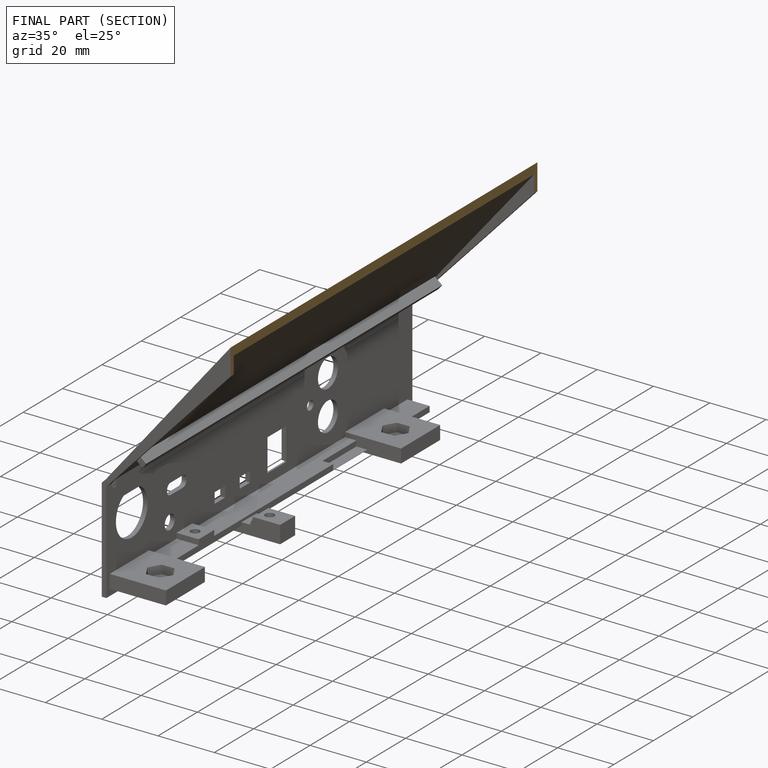
[diagram: finished part — half-section view (interior)]
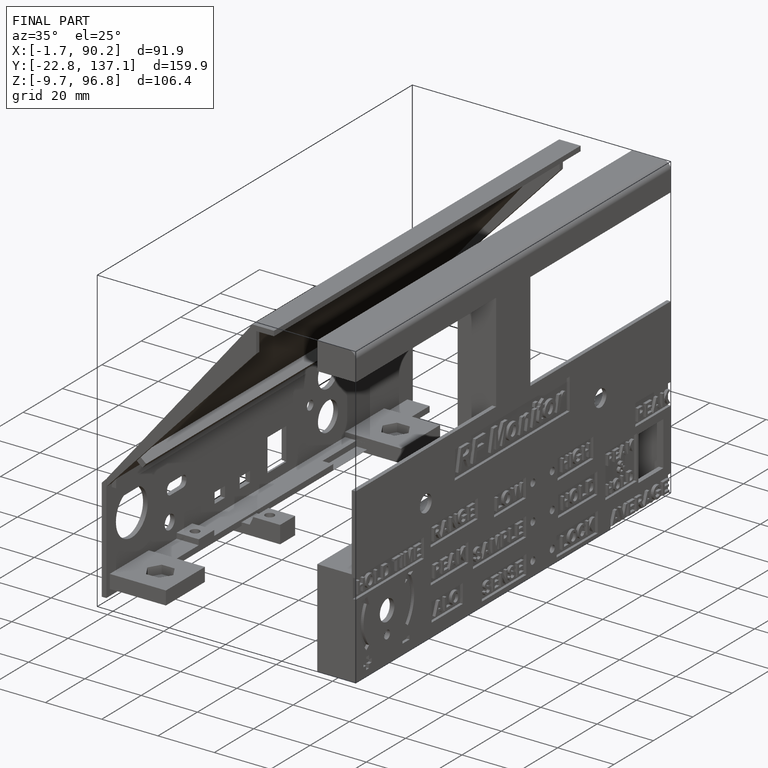
[diagram: finished part — iso view with bounding-box wireframe]
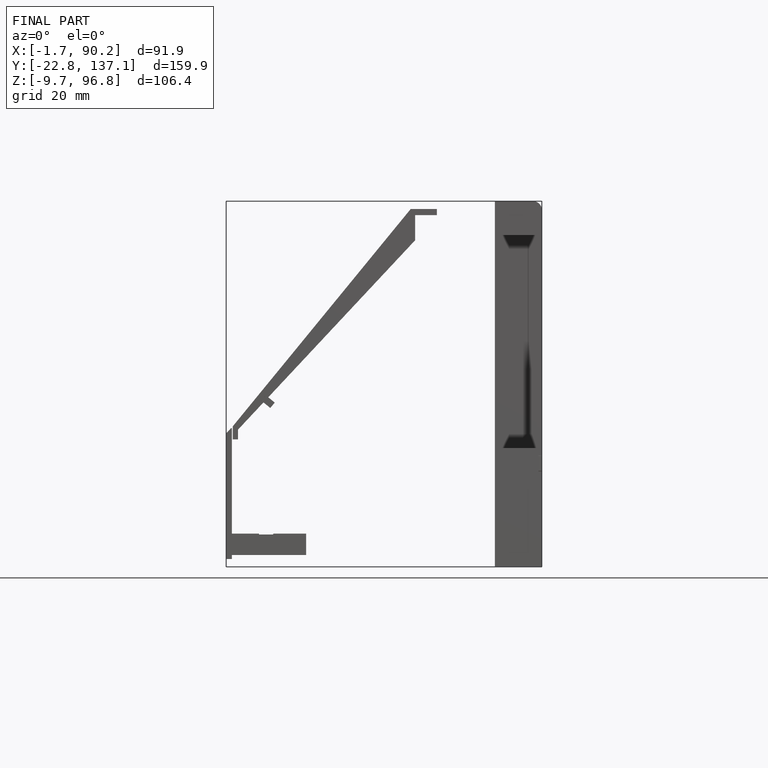
[diagram: finished part — front view with bounding-box wireframe]
